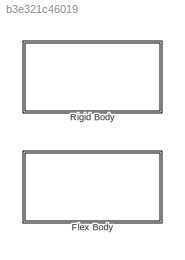
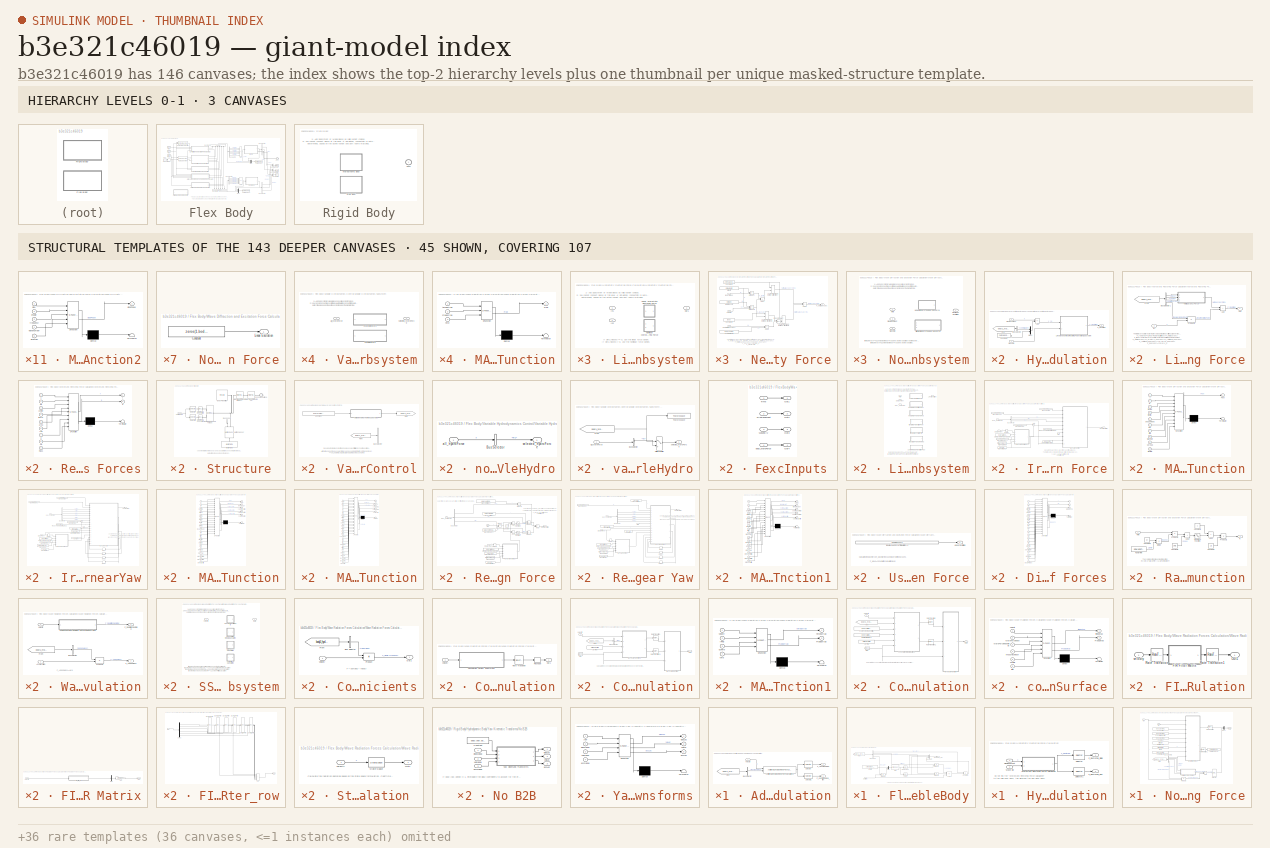
[diagram: thumbnail index - top-2 hierarchy levels (3 canvases) + 45 structural-template representatives of the remaining 143 canvases]
MODEL slx_b3e321c46019
KIND library
CONFIG AbsTol = auto
CONFIG EnableMultiTasking = off
CONFIG FixedStep = auto
CONFIG MaxStep = auto
CONFIG MinStep = auto
CONFIG RelTol = 1e-3
CONFIG SampleTimeConstraint = Unconstrained
CONFIG SolverName = VariableStepAuto
CONFIG StartTime = 0.0
CONFIG StopTime = 10.0
BLOCK [SubSystem] Flex Body
  Ports = [0, 0, 0, 0, 0, 0, 1]
  VariantControl = (default)
BLOCK [Sum] Flex Body/Add
  IconShape = rectangular
  Inputs = +-----
  Ports = [6, 1]
BLOCK [SubSystem] Flex Body/Additional Linear Damping Force Calculation
  Ports = [1, 2]
BLOCK [Reference] Flex Body/Additional Linear Damping Force Calculation/Additional Linear Damping Force Calculation1  REF=$bdroot/Rigid Body/Hydrodynamic Body/Additional Linear Damping Force Calculation
  Ports = [2, 1]
  SourceBlock = $bdroot/Rigid Body/Hydrodynamic Body/Additional Linear Damping Force Calculation
  SourceType = SubSystem
BLOCK [BusSelector] Flex Body/Additional Linear Damping Force Calculation/Bus Selector
  OutputSignals = linearDamping
  Ports = [1, 1]
BLOCK [Outport] Flex Body/Additional Linear Damping Force Calculation/F_LinearDamping
  PortDimensions = 6
BLOCK [Outport] Flex Body/Additional Linear Damping Force Calculation/F_LinearDamping_flex
  Port = 2
  PortDimensions = body.gbmDOF
BLOCK [From] Flex Body/Additional Linear Damping Force Calculation/From
  GotoTag = body1_hydroForce
  TagVisibility = global
BLOCK [Selector] Flex Body/Additional Linear Damping Force Calculation/Selector
  IndexOptions = Index vector (dialog)
  Indices = [1:6]
  InputPortWidth = body.dof
  OutputSizes = 1
  Ports = [1, 1]
BLOCK [Selector] Flex Body/Additional Linear Damping Force Calculation/Selector1
  IndexOptions = Index vector (dialog)
  Indices = [7:body.dofEnd]
  InputPortWidth = body.dof
  OutputSizes = 1
  Ports = [1, 1]
BLOCK [Inport] Flex Body/Additional Linear Damping Force Calculation/Velocity
BLOCK [Reference] Flex Body/B2B Subsystem  REF=$bdroot/Rigid Body/Hydrodynamic Body/B2B Subsystem
  Ports = [2, 2]
  SourceBlock = $bdroot/Rigid Body/Hydrodynamic Body/B2B Subsystem
  SourceType = SubSystem
BLOCK [BusCreator] Flex Body/Bus Creator
  DisplayOption = bar
  InheritFromInputs = on
  Inputs = 6
  NameLocation = right
  Ports = [6, 1]
BLOCK [BusCreator] Flex Body/Bus Creator3
  DisplayOption = bar
  InheritFromInputs = on
  Inputs = 6
  NameLocation = left
  Ports = [6, 1]
BLOCK [BusCreator] Flex Body/Bus Creator4
  DisplayOption = bar
  InheritFromInputs = on
  Inputs = 2
  Ports = [2, 1]
BLOCK [BusCreator] Flex Body/Bus Creator5
  DisplayOption = bar
  InheritFromInputs = on
  Inputs = 2
  Ports = [2, 1]
BLOCK [BusCreator] Flex Body/Bus Creator6
  DisplayOption = bar
  InheritFromInputs = on
  Inputs = 2
  Ports = [2, 1]
BLOCK [BusSelector] Flex Body/Bus Selector1
  OutputSignals = signal1,signal2,signal3,signal4,signal5,signal6
  Ports = [1, 6]
BLOCK [BusSelector] Flex Body/Bus Selector2
  OutputSignals = disp,vel,acc
  Ports = [1, 3]
BLOCK [BusSelector] Flex Body/Bus Selector3
  OutputSignals = signal1,signal2,signal3,signal4,signal5,signal6
  Ports = [1, 6]
BLOCK [BusSelector] Flex Body/Bus Selector4
  OutputSignals = signal1,signal2,signal3
  Ports = [1, 3]
BLOCK [PMIOPort] Flex Body/Conn
  Side = Right
BLOCK [SubSystem] Flex Body/FlexibleBody
  Ports = [1, 1]
BLOCK [Sum] Flex Body/FlexibleBody/Add
  IconShape = rectangular
  Inputs = --+
  Ports = [3, 1]
BLOCK [BusCreator] Flex Body/FlexibleBody/Bus Creator
  DisplayOption = bar
  InheritFromInputs = on
  Inputs = 3
  Ports = [3, 1]
BLOCK [BusSelector] Flex Body/FlexibleBody/Bus Selector
  OutputSignals = gbm.mass_ff_inv,gbm.stiffness,gbm.damping,gbm.mass_ff_inv
  Ports = [1, 4]
BLOCK [Inport] Flex Body/FlexibleBody/Excitation
BLOCK [From] Flex Body/FlexibleBody/From
  GotoTag = body1_hydroForce
  TagVisibility = global
BLOCK [StateSpace] Flex Body/FlexibleBody/GBM
  A = body.hydroForce.hf1.gbm.state_space.A
  B = body.hydroForce.hf1.gbm.state_space.B
  C = body.hydroForce.hf1.gbm.state_space.C
  D = body.hydroForce.hf1.gbm.state_space.D
  InitialCondition = 0
  Ports = [1, 1]
BLOCK [Mux] Flex Body/FlexibleBody/Mux
  DisplayOption = bar
  Inputs = 2
  Ports = [2, 1]
BLOCK [Product] Flex Body/FlexibleBody/Product1
  Multiplication = Matrix(*)
  Ports = [2, 1]
BLOCK [Product] Flex Body/FlexibleBody/Product2
  Multiplication = Matrix(*)
  Ports = [2, 1]
BLOCK [Product] Flex Body/FlexibleBody/Product4
  Multiplication = Matrix(*)
  Ports = [2, 1]
BLOCK [Outport] Flex Body/FlexibleBody/Response_Flex
BLOCK [Product] Flex Body/FlexibleBody/acceleration
  Multiplication = Matrix(*)
  Ports = [2, 1]
BLOCK [Selector] Flex Body/FlexibleBody/displacement
  IndexOptions = Index vector (dialog)
  Indices = [1:body.gbmDOF]
  InputPortWidth = body.gbmDOF*2
  OutputSizes = 1
  Ports = [1, 1]
BLOCK [Constant] Flex Body/FlexibleBody/unit matrix
  Value = zeros(body.gbmDOF,1)
BLOCK [Selector] Flex Body/FlexibleBody/velocity
  IndexOptions = Index vector (dialog)
  Indices = [body.gbmDOF+1:2*body.gbmDOF]
  InputPortWidth = 2*body.gbmDOF
  OutputSizes = 1
  Ports = [1, 1]
BLOCK [From] Flex Body/From
  GotoTag = disp1
  TagVisibility = global
BLOCK [From] Flex Body/From1
  GotoTag = vel1
  TagVisibility = global
BLOCK [From] Flex Body/From2
  GotoTag = acc1
  TagVisibility = global
BLOCK [Goto] Flex Body/Goto
  GotoTag = disp1
  TagVisibility = global
BLOCK [Goto] Flex Body/Goto1
  GotoTag = vel1
  TagVisibility = global
BLOCK [Goto] Flex Body/Goto2
  GotoTag = acc1
  TagVisibility = global
BLOCK [SubSystem] Flex Body/Hydrostatic Restoring Force Calculation
  Ports = [2, 2]
BLOCK [Inport] Flex Body/Hydrostatic Restoring Force Calculation/Displacement
  NameLocation = top
BLOCK [Outport] Flex Body/Hydrostatic Restoring Force Calculation/F_Restoring_Flex
  Port = 2
  PortDimensions = body.gbmDOF
BLOCK [Outport] Flex Body/Hydrostatic Restoring Force Calculation/F_Restoring_Rigid
  NameLocation = top
  PortDimensions = 6
BLOCK [SubSystem] Flex Body/Hydrostatic Restoring Force Calculation/Hydrostatic Restoring Force Calculation
  Ports = [2, 1]
BLOCK [Sum] Flex Body/Hydrostatic Restoring Force Calculation/Hydrostatic Restoring Force Calculation/Add
  IconShape = rectangular
  Inputs = +-
  Ports = [2, 1]
BLOCK [BusSelector] Flex Body/Hydrostatic Restoring Force Calculation/Hydrostatic Restoring Force Calculation/Bus Selector
  OutputSignals = centerGravity
  Ports = [1, 1]
BLOCK [Constant] Flex Body/Hydrostatic Restoring Force Calculation/Hydrostatic Restoring Force Calculation/Constant1
  Value = zeros(1,body.dof-3)
BLOCK [Inport] Flex Body/Hydrostatic Restoring Force Calculation/Hydrostatic Restoring Force Calculation/Displacement
BLOCK [Outport] Flex Body/Hydrostatic Restoring Force Calculation/Hydrostatic Restoring Force Calculation/F_Restoring
BLOCK [From] Flex Body/Hydrostatic Restoring Force Calculation/Hydrostatic Restoring Force Calculation/From
  GotoTag = body1_hydroForce
  TagVisibility = global
BLOCK [SubSystem] Flex Body/Hydrostatic Restoring Force Calculation/Hydrostatic Restoring Force Calculation/Linear and Nonlinear Restoring Force Variant Subsystem
  Ports = [2, 1]
  Variant = on
BLOCK [Inport] Flex Body/Hydrostatic Restoring Force Calculation/Hydrostatic Restoring Force Calculation/Linear and Nonlinear Restoring Force Variant Subsystem/In1
BLOCK [Inport] Flex Body/Hydrostatic Restoring Force Calculation/Hydrostatic Restoring Force Calculation/Linear and Nonlinear Restoring Force Variant Subsystem/In2
  Port = 2
BLOCK [SubSystem] Flex Body/Hydrostatic Restoring Force Calculation/Hydrostatic Restoring Force Calculation/Linear and Nonlinear Restoring Force Variant Subsystem/Linear Hydrostatic Restoring Force
  Ports = [1, 1]
  VariantControl = sv_b1_linearHydro
BLOCK [Sum] Flex Body/Hydrostatic Restoring Force Calculation/Hydrostatic Restoring Force Calculation/Linear and Nonlinear Restoring Force Variant Subsystem/Linear Hydrostatic Restoring Force/Add
  IconShape = rectangular
  Ports = [2, 1]
BLOCK [BusSelector] Flex Body/Hydrostatic Restoring Force Calculation/Hydrostatic Restoring Force Calculation/Linear and Nonlinear Restoring Force Variant Subsystem/Linear Hydrostatic Restoring Force/Bus Selector1
  OutputSignals = mass,volume,centerBuoyancy,linearHydroRestCoef
  Ports = [1, 4]
BLOCK [From] Flex Body/Hydrostatic Restoring Force Calculation/Hydrostatic Restoring Force Calculation/Linear and Nonlinear Restoring Force Variant Subsystem/Linear Hydrostatic Restoring Force/From
  GotoTag = body1_hydroForce
  TagVisibility = global
BLOCK [Inport] Flex Body/Hydrostatic Restoring Force Calculation/Hydrostatic Restoring Force Calculation/Linear and Nonlinear Restoring Force Variant Subsystem/Linear Hydrostatic Restoring Force/In1
BLOCK [SubSystem] Flex Body/Hydrostatic Restoring Force Calculation/Hydrostatic Restoring Force Calculation/Linear and Nonlinear Restoring Force Variant Subsystem/Linear Hydrostatic Restoring Force/Net Buoyancy Force
  Ports = [3, 1]
BLOCK [Sum] Flex Body/Hydrostatic Restoring Force Calculation/Hydrostatic Restoring Force Calculation/Linear and Nonlinear Restoring Force Variant Subsystem/Linear Hydrostatic Restoring Force/Net Buoyancy Force/Add1
  IconShape = rectangular
  Inputs = +-
  Ports = [2, 1]
BLOCK [Sum] Flex Body/Hydrostatic Restoring Force Calculation/Hydrostatic Restoring Force Calculation/Linear and Nonlinear Restoring Force Variant Subsystem/Linear Hydrostatic Restoring Force/Net Buoyancy Force/Add2
  IconShape = rectangular
  Ports = [2, 1]
BLOCK [Sum] Flex Body/Hydrostatic Restoring Force Calculation/Hydrostatic Restoring Force Calculation/Linear and Nonlinear Restoring Force Variant Subsystem/Linear Hydrostatic Restoring Force/Net Buoyancy Force/Add3
  IconShape = rectangular
  Inputs = +-
  Ports = [2, 1]
BLOCK [Assignment] Flex Body/Hydrostatic Restoring Force Calculation/Hydrostatic Restoring Force Calculation/Linear and Nonlinear Restoring Force Variant Subsystem/Linear Hydrostatic Restoring Force/Net Buoyancy Force/Assignment (Add Net Bouyancy Force to Z-Direction)
  IndexOptions = Index vector (dialog)
  Indices = 3
  OutputSizes = 1
  Ports = [2, 1]
BLOCK [Assignment] Flex Body/Hydrostatic Restoring Force Calculation/Hydrostatic Restoring Force Calculation/Linear and Nonlinear Restoring Force Variant Subsystem/Linear Hydrostatic Restoring Force/Net Buoyancy Force/Assignment (Add Net Bouyancy Force to Z-Direction)1
  IndexOptions = Index vector (dialog)
  Indices = 3
  OutputSizes = 1
  Ports = [2, 1]
BLOCK [Assignment] Flex Body/Hydrostatic Restoring Force Calculation/Hydrostatic Restoring Force Calculation/Linear and Nonlinear Restoring Force Variant Subsystem/Linear Hydrostatic Restoring Force/Net Buoyancy Force/Assignment (Add Net Bouyancy Force to Z-Direction)2
  IndexOptions = Index vector (dialog)
  Indices = 4:6
  OutputSizes = 1
  Ports = [2, 1]
BLOCK [Inport] Flex Body/Hydrostatic Restoring Force Calculation/Hydrostatic Restoring Force Calculation/Linear and Nonlinear Restoring Force Variant Subsystem/Linear Hydrostatic Restoring Force/Net Buoyancy Force/Body Mass
BLOCK [Inport] Flex Body/Hydrostatic Restoring Force Calculation/Hydrostatic Restoring Force Calculation/Linear and Nonlinear Restoring Force Variant Subsystem/Linear Hydrostatic Restoring Force/Net Buoyancy Force/Center of Buoyancy
  Port = 3
BLOCK [Constant] Flex Body/Hydrostatic Restoring Force Calculation/Hydrostatic Restoring Force Calculation/Linear and Nonlinear Restoring Force Variant Subsystem/Linear Hydrostatic Restoring Force/Net Buoyancy Force/Center of Gravity
  Value = body.centerGravity
BLOCK [Constant] Flex Body/Hydrostatic Restoring Force Calculation/Hydrostatic Restoring Force Calculation/Linear and Nonlinear Restoring Force Variant Subsystem/Linear Hydrostatic Restoring Force/Net Buoyancy Force/Constant1
  Value = zeros(1,body.dof)
BLOCK [Constant] Flex Body/Hydrostatic Restoring Force Calculation/Hydrostatic Restoring Force Calculation/Linear and Nonlinear Restoring Force Variant Subsystem/Linear Hydrostatic Restoring Force/Net Buoyancy Force/Constant2
  Value = [0 0 0]
BLOCK [Reference] Flex Body/Hydrostatic Restoring Force Calculation/Hydrostatic Restoring Force Calculation/Linear and Nonlinear Restoring Force Variant Subsystem/Linear Hydrostatic Restoring Force/Net Buoyancy Force/Cross Product  REF=vrlib/Utilities/Cross Product
  Ports = [2, 1]
  SourceBlock = vrlib/Utilities/Cross Product
  SourceType = Cross Product
BLOCK [Outport] Flex Body/Hydrostatic Restoring Force Calculation/Hydrostatic Restoring Force Calculation/Linear and Nonlinear Restoring Force Variant Subsystem/Linear Hydrostatic Restoring Force/Net Buoyancy Force/F_NetBuoyancy
BLOCK [Constant] Flex Body/Hydrostatic Restoring Force Calculation/Hydrostatic Restoring Force Calculation/Linear and Nonlinear Restoring Force Variant Subsystem/Linear Hydrostatic Restoring Force/Net Buoyancy Force/Gravity
  Value = simu.gravity
BLOCK [Product] Flex Body/Hydrostatic Restoring Force Calculation/Hydrostatic Restoring Force Calculation/Linear and Nonlinear Restoring Force Variant Subsystem/Linear Hydrostatic Restoring Force/Net Buoyancy Force/Product
  Ports = [2, 1]
BLOCK [Product] Flex Body/Hydrostatic Restoring Force Calculation/Hydrostatic Restoring Force Calculation/Linear and Nonlinear Restoring Force Variant Subsystem/Linear Hydrostatic Restoring Force/Net Buoyancy Force/Product1
  Inputs = 3
  Ports = [3, 1]
BLOCK [Inport] Flex Body/Hydrostatic Restoring Force Calculation/Hydrostatic Restoring Force Calculation/Linear and Nonlinear Restoring Force Variant Subsystem/Linear Hydrostatic Restoring Force/Net Buoyancy Force/Volume
  Port = 2
BLOCK [Constant] Flex Body/Hydrostatic Restoring Force Calculation/Hydrostatic Restoring Force Calculation/Linear and Nonlinear Restoring Force Variant Subsystem/Linear Hydrostatic Restoring Force/Net Buoyancy Force/Water Density
  Value = simu.rho
BLOCK [Outport] Flex Body/Hydrostatic Restoring Force Calculation/Hydrostatic Restoring Force Calculation/Linear and Nonlinear Restoring Force Variant Subsystem/Linear Hydrostatic Restoring Force/Out1
BLOCK [Product] Flex Body/Hydrostatic Restoring Force Calculation/Hydrostatic Restoring Force Calculation/Linear and Nonlinear Restoring Force Variant Subsystem/Linear Hydrostatic Restoring Force/Product2
  Multiplication = Matrix(*)
  Ports = [2, 1]
BLOCK [SubSystem] Flex Body/Hydrostatic Restoring Force Calculation/Hydrostatic Restoring Force Calculation/Linear and Nonlinear Restoring Force Variant Subsystem/Nonlinear Hydrostatic Restoring Force
  Ports = [2, 1]
  VariantControl = sv_b1_nonlinearHydro
BLOCK [Sum] Flex Body/Hydrostatic Restoring Force Calculation/Hydrostatic Restoring Force Calculation/Linear and Nonlinear Restoring Force Variant Subsystem/Nonlinear Hydrostatic Restoring Force/Add
  IconShape = rectangular
  Ports = [2, 1]
BLOCK [BusSelector] Flex Body/Hydrostatic Restoring Force Calculation/Hydrostatic Restoring Force Calculation/Linear and Nonlinear Restoring Force Variant Subsystem/Nonlinear Hydrostatic Restoring Force/Bus Selector1
  OutputSignals = storage.mass,volume,centerBuoyancy,linearHydroRestCoef
  Ports = [1, 4]
BLOCK [Constant] Flex Body/Hydrostatic Restoring Force Calculation/Hydrostatic Restoring Force Calculation/Linear and Nonlinear Restoring Force Variant Subsystem/Nonlinear Hydrostatic Restoring Force/Center of Gravity
  Value = body.centerGravity
BLOCK [From] Flex Body/Hydrostatic Restoring Force Calculation/Hydrostatic Restoring Force Calculation/Linear and Nonlinear Restoring Force Variant Subsystem/Nonlinear Hydrostatic Restoring Force/From
  GotoTag = body1_hydroForce
  TagVisibility = global
BLOCK [Constant] Flex Body/Hydrostatic Restoring Force Calculation/Hydrostatic Restoring Force Calculation/Linear and Nonlinear Restoring Force Variant Subsystem/Nonlinear Hydrostatic Restoring Force/Gravity
  Value = simu.gravity
BLOCK [Inport] Flex Body/Hydrostatic Restoring Force Calculation/Hydrostatic Restoring Force Calculation/Linear and Nonlinear Restoring Force Variant Subsystem/Nonlinear Hydrostatic Restoring Force/In1
BLOCK [Inport] Flex Body/Hydrostatic Restoring Force Calculation/Hydrostatic Restoring Force Calculation/Linear and Nonlinear Restoring Force Variant Subsystem/Nonlinear Hydrostatic Restoring Force/In2
  Port = 2
BLOCK [Mux] Flex Body/Hydrostatic Restoring Force Calculation/Hydrostatic Restoring Force Calculation/Linear and Nonlinear Restoring Force Variant Subsystem/Nonlinear Hydrostatic Restoring Force/Mux1
  DisplayOption = bar
  Inputs = 2
  Ports = [2, 1]
BLOCK [SubSystem] Flex Body/Hydrostatic Restoring Force Calculation/Hydrostatic Restoring Force Calculation/Linear and Nonlinear Restoring Force Variant Subsystem/Nonlinear Hydrostatic Restoring Force/Net Buoyancy Force
  Ports = [3, 1]
BLOCK [Sum] Flex Body/Hydrostatic Restoring Force Calculation/Hydrostatic Restoring Force Calculation/Linear and Nonlinear Restoring Force Variant Subsystem/Nonlinear Hydrostatic Restoring Force/Net Buoyancy Force/Add1
  IconShape = rectangular
  Inputs = +-
  Ports = [2, 1]
BLOCK [Sum] Flex Body/Hydrostatic Restoring Force Calculation/Hydrostatic Restoring Force Calculation/Linear and Nonlinear Restoring Force Variant Subsystem/Nonlinear Hydrostatic Restoring Force/Net Buoyancy Force/Add2
  IconShape = rectangular
  Ports = [2, 1]
BLOCK [Sum] Flex Body/Hydrostatic Restoring Force Calculation/Hydrostatic Restoring Force Calculation/Linear and Nonlinear Restoring Force Variant Subsystem/Nonlinear Hydrostatic Restoring Force/Net Buoyancy Force/Add3
  IconShape = rectangular
  Inputs = +-
  Ports = [2, 1]
BLOCK [Assignment] Flex Body/Hydrostatic Restoring Force Calculation/Hydrostatic Restoring Force Calculation/Linear and Nonlinear Restoring Force Variant Subsystem/Nonlinear Hydrostatic Restoring Force/Net Buoyancy Force/Assignment (Add Net Bouyancy Force to Z-Direction)
  IndexOptions = Index vector (dialog)
  Indices = 3
  OutputSizes = 1
  Ports = [2, 1]
BLOCK [Assignment] Flex Body/Hydrostatic Restoring Force Calculation/Hydrostatic Restoring Force Calculation/Linear and Nonlinear Restoring Force Variant Subsystem/Nonlinear Hydrostatic Restoring Force/Net Buoyancy Force/Assignment (Add Net Bouyancy Force to Z-Direction)1
  IndexOptions = Index vector (dialog)
  Indices = 3
  OutputSizes = 1
  Ports = [2, 1]
BLOCK [Assignment] Flex Body/Hydrostatic Restoring Force Calculation/Hydrostatic Restoring Force Calculation/Linear and Nonlinear Restoring Force Variant Subsystem/Nonlinear Hydrostatic Restoring Force/Net Buoyancy Force/Assignment (Add Net Bouyancy Force to Z-Direction)2
  IndexOptions = Index vector (dialog)
  Indices = 4:6
  OutputSizes = 1
  Ports = [2, 1]
BLOCK [Inport] Flex Body/Hydrostatic Restoring Force Calculation/Hydrostatic Restoring Force Calculation/Linear and Nonlinear Restoring Force Variant Subsystem/Nonlinear Hydrostatic Restoring Force/Net Buoyancy Force/Body Mass
BLOCK [Inport] Flex Body/Hydrostatic Restoring Force Calculation/Hydrostatic Restoring Force Calculation/Linear and Nonlinear Restoring Force Variant Subsystem/Nonlinear Hydrostatic Restoring Force/Net Buoyancy Force/Center of Buoyancy
  Port = 3
BLOCK [Constant] Flex Body/Hydrostatic Restoring Force Calculation/Hydrostatic Restoring Force Calculation/Linear and Nonlinear Restoring Force Variant Subsystem/Nonlinear Hydrostatic Restoring Force/Net Buoyancy Force/Center of Gravity
  Value = body.centerGravity
BLOCK [Constant] Flex Body/Hydrostatic Restoring Force Calculation/Hydrostatic Restoring Force Calculation/Linear and Nonlinear Restoring Force Variant Subsystem/Nonlinear Hydrostatic Restoring Force/Net Buoyancy Force/Constant1
  Value = zeros(1,body.dof)
BLOCK [Constant] Flex Body/Hydrostatic Restoring Force Calculation/Hydrostatic Restoring Force Calculation/Linear and Nonlinear Restoring Force Variant Subsystem/Nonlinear Hydrostatic Restoring Force/Net Buoyancy Force/Constant2
  Value = [0 0 0]
BLOCK [Reference] Flex Body/Hydrostatic Restoring Force Calculation/Hydrostatic Restoring Force Calculation/Linear and Nonlinear Restoring Force Variant Subsystem/Nonlinear Hydrostatic Restoring Force/Net Buoyancy Force/Cross Product  REF=vrlib/Utilities/Cross Product
  Ports = [2, 1]
  SourceBlock = vrlib/Utilities/Cross Product
  SourceType = Cross Product
BLOCK [Outport] Flex Body/Hydrostatic Restoring Force Calculation/Hydrostatic Restoring Force Calculation/Linear and Nonlinear Restoring Force Variant Subsystem/Nonlinear Hydrostatic Restoring Force/Net Buoyancy Force/F_NetBuoyancy
BLOCK [Constant] Flex Body/Hydrostatic Restoring Force Calculation/Hydrostatic Restoring Force Calculation/Linear and Nonlinear Restoring Force Variant Subsystem/Nonlinear Hydrostatic Restoring Force/Net Buoyancy Force/Gravity
  Value = simu.gravity
BLOCK [Product] Flex Body/Hydrostatic Restoring Force Calculation/Hydrostatic Restoring Force Calculation/Linear and Nonlinear Restoring Force Variant Subsystem/Nonlinear Hydrostatic Restoring Force/Net Buoyancy Force/Product
  Ports = [2, 1]
BLOCK [Product] Flex Body/Hydrostatic Restoring Force Calculation/Hydrostatic Restoring Force Calculation/Linear and Nonlinear Restoring Force Variant Subsystem/Nonlinear Hydrostatic Restoring Force/Net Buoyancy Force/Product1
  Inputs = 3
  Ports = [3, 1]
BLOCK [Inport] Flex Body/Hydrostatic Restoring Force Calculation/Hydrostatic Restoring Force Calculation/Linear and Nonlinear Restoring Force Variant Subsystem/Nonlinear Hydrostatic Restoring Force/Net Buoyancy Force/Volume
  Port = 2
BLOCK [Constant] Flex Body/Hydrostatic Restoring Force Calculation/Hydrostatic Restoring Force Calculation/Linear and Nonlinear Restoring Force Variant Subsystem/Nonlinear Hydrostatic Restoring Force/Net Buoyancy Force/Water Density
  Value = simu.rho
BLOCK [Outport] Flex Body/Hydrostatic Restoring Force Calculation/Hydrostatic Restoring Force Calculation/Linear and Nonlinear Restoring Force Variant Subsystem/Nonlinear Hydrostatic Restoring Force/Out1
BLOCK [Product] Flex Body/Hydrostatic Restoring Force Calculation/Hydrostatic Restoring Force Calculation/Linear and Nonlinear Restoring Force Variant Subsystem/Nonlinear Hydrostatic Restoring Force/Product2
  Multiplication = Matrix(*)
  Ports = [2, 1]
BLOCK [RateTransition] Flex Body/Hydrostatic Restoring Force Calculation/Hydrostatic Restoring Force Calculation/Linear and Nonlinear Restoring Force Variant Subsystem/Nonlinear Hydrostatic Restoring Force/Rate Transition
BLOCK [RateTransition] Flex Body/Hydrostatic Restoring Force Calculation/Hydrostatic Restoring Force Calculation/Linear and Nonlinear Restoring Force Variant Subsystem/Nonlinear Hydrostatic Restoring Force/Rate Transition1
BLOCK [SubSystem] Flex Body/Hydrostatic Restoring Force Calculation/Hydrostatic Restoring Force Calculation/Linear and Nonlinear Restoring Force Variant Subsystem/Nonlinear Hydrostatic Restoring Force/Restoring Forces
  ErrorFcn = Stateflow.Translate.translate
  PermitHierarchicalResolution = ExplicitOnly
  Ports = [9, 2]
  SFBlockType = MATLAB Function
  SystemSampleTime = simu.nonlinearDt
  TreatAsAtomicUnit = on
BLOCK [Demux] Flex Body/Hydrostatic Restoring Force Calculation/Hydrostatic Restoring Force Calculation/Linear and Nonlinear Restoring Force Variant Subsystem/Nonlinear Hydrostatic Restoring Force/Restoring Forces/ Demux 
  Outputs = 1
  Ports = [1, 1]
BLOCK [S-Function] Flex Body/Hydrostatic Restoring Force Calculation/Hydrostatic Restoring Force Calculation/Linear and Nonlinear Restoring Force Variant Subsystem/Nonlinear Hydrostatic Restoring Force/Restoring Forces/ SFunction 
  EnableBusSupport = off
  FunctionName = sf_sfun
  PortCounts = [9 3]
  Ports = [9, 3]
  SFcnIsStateOwnerBlock = off
  SFunctionDeploymentMode = off
  Tag = Stateflow S-Function 2
BLOCK [Terminator] Flex Body/Hydrostatic Restoring Force Calculation/Hydrostatic Restoring Force Calculation/Linear and Nonlinear Restoring Force Variant Subsystem/Nonlinear Hydrostatic Restoring Force/Restoring Forces/ Terminator 
BLOCK [Inport] Flex Body/Hydrostatic Restoring Force Calculation/Hydrostatic Restoring Force Calculation/Linear and Nonlinear Restoring Force Variant Subsystem/Nonlinear Hydrostatic Restoring Force/Restoring Forces/area
  Port = 5
BLOCK [Inport] Flex Body/Hydrostatic Restoring Force Calculation/Hydrostatic Restoring Force Calculation/Linear and Nonlinear Restoring Force Variant Subsystem/Nonlinear Hydrostatic Restoring Force/Restoring Forces/center
  Port = 3
BLOCK [Inport] Flex Body/Hydrostatic Restoring Force Calculation/Hydrostatic Restoring Force Calculation/Linear and Nonlinear Restoring Force Variant Subsystem/Nonlinear Hydrostatic Restoring Force/Restoring Forces/cg
  Port = 8
BLOCK [Inport] Flex Body/Hydrostatic Restoring Force Calculation/Hydrostatic Restoring Force Calculation/Linear and Nonlinear Restoring Force Variant Subsystem/Nonlinear Hydrostatic Restoring Force/Restoring Forces/elv
  Port = 2
BLOCK [Outport] Flex Body/Hydrostatic Restoring Force Calculation/Hydrostatic Restoring Force Calculation/Linear and Nonlinear Restoring Force Variant Subsystem/Nonlinear Hydrostatic Restoring Force/Restoring Forces/f
BLOCK [Inport] Flex Body/Hydrostatic Restoring Force Calculation/Hydrostatic Restoring Force Calculation/Linear and Nonlinear Restoring Force Variant Subsystem/Nonlinear Hydrostatic Restoring Force/Restoring Forces/g
  Port = 7
BLOCK [Inport] Flex Body/Hydrostatic Restoring Force Calculation/Hydrostatic Restoring Force Calculation/Linear and Nonlinear Restoring Force Variant Subsystem/Nonlinear Hydrostatic Restoring Force/Restoring Forces/mass
  Port = 9
BLOCK [Outport] Flex Body/Hydrostatic Restoring Force Calculation/Hydrostatic Restoring Force Calculation/Linear and Nonlinear Restoring Force Variant Subsystem/Nonlinear Hydrostatic Restoring Force/Restoring Forces/p
  Port = 2
BLOCK [Inport] Flex Body/Hydrostatic Restoring Force Calculation/Hydrostatic Restoring Force Calculation/Linear and Nonlinear Restoring Force Variant Subsystem/Nonlinear Hydrostatic Restoring Force/Restoring Forces/rho
  Port = 6
BLOCK [Inport] Flex Body/Hydrostatic Restoring Force Calculation/Hydrostatic Restoring Force Calculation/Linear and Nonlinear Restoring Force Variant Subsystem/Nonlinear Hydrostatic Restoring Force/Restoring Forces/tnorm
  Port = 4
BLOCK [Inport] Flex Body/Hydrostatic Restoring Force Calculation/Hydrostatic Restoring Force Calculation/Linear and Nonlinear Restoring Force Variant Subsystem/Nonlinear Hydrostatic Restoring Force/Restoring Forces/x
BLOCK [Constant] Flex Body/Hydrostatic Restoring Force Calculation/Hydrostatic Restoring Force Calculation/Linear and Nonlinear Restoring Force Variant Subsystem/Nonlinear Hydrostatic Restoring Force/STL areas
  Value = body.geometry.area
BLOCK [Constant] Flex Body/Hydrostatic Restoring Force Calculation/Hydrostatic Restoring Force Calculation/Linear and Nonlinear Restoring Force Variant Subsystem/Nonlinear Hydrostatic Restoring Force/STL centers
  Value = body.geometry.center
BLOCK [Constant] Flex Body/Hydrostatic Restoring Force Calculation/Hydrostatic Restoring Force Calculation/Linear and Nonlinear Restoring Force Variant Subsystem/Nonlinear Hydrostatic Restoring Force/STL normal vectors
  Value = body.geometry.norm
BLOCK [Selector] Flex Body/Hydrostatic Restoring Force Calculation/Hydrostatic Restoring Force Calculation/Linear and Nonlinear Restoring Force Variant Subsystem/Nonlinear Hydrostatic Restoring Force/Selector
  IndexOptions = Index vector (dialog)
  Indices = [7:body.dofEnd]
  InputPortWidth = body.dof
  OutputSizes = 1
  Ports = [1, 1]
BLOCK [ToWorkspace] Flex Body/Hydrostatic Restoring Force Calculation/Hydrostatic Restoring Force Calculation/Linear and Nonlinear Restoring Force Variant Subsystem/Nonlinear Hydrostatic Restoring Force/To Workspace1
  Decimation = round(simu.dtOut/simu.dt,0)
  MaxDataPoints = inf
  Ports = [1]
  SampleTime = -1
  SaveFormat = Structure With Time
  VariableName = body1_hspressure_out
BLOCK [Constant] Flex Body/Hydrostatic Restoring Force Calculation/Hydrostatic Restoring Force Calculation/Linear and Nonlinear Restoring Force Variant Subsystem/Nonlinear Hydrostatic Restoring Force/Water Density
  Value = simu.rho
BLOCK [Outport] Flex Body/Hydrostatic Restoring Force Calculation/Hydrostatic Restoring Force Calculation/Linear and Nonlinear Restoring Force Variant Subsystem/Out1
BLOCK [Mux] Flex Body/Hydrostatic Restoring Force Calculation/Hydrostatic Restoring Force Calculation/Mux1
  DisplayOption = bar
  Inputs = 2
  Ports = [2, 1]
BLOCK [Inport] Flex Body/Hydrostatic Restoring Force Calculation/Hydrostatic Restoring Force Calculation/Wave Elv
  Port = 2
BLOCK [Selector] Flex Body/Hydrostatic Restoring Force Calculation/Selector
  IndexOptions = Index vector (dialog)
  Indices = [1:6]
  InputPortWidth = body.dof
  OutputSizes = 1
  Ports = [1, 1]
BLOCK [Selector] Flex Body/Hydrostatic Restoring Force Calculation/Selector1
  IndexOptions = Index vector (dialog)
  Indices = [7:body.dofEnd]
  InputPortWidth = body.dof
  OutputSizes = 1
  Ports = [1, 1]
BLOCK [Inport] Flex Body/Hydrostatic Restoring Force Calculation/Wave Elv
  Port = 2
BLOCK [SubSystem] Flex Body/Morrison Element and Viscous Damping Force Calculation
  Ports = [4, 2]
BLOCK [Inport] Flex Body/Morrison Element and Viscous Damping Force Calculation/Acceleration
  Port = 2
BLOCK [BusSelector] Flex Body/Morrison Element and Viscous Damping Force Calculation/Bus Selector
  OutputSignals = quadDrag
  Ports = [1, 1]
BLOCK [Inport] Flex Body/Morrison Element and Viscous Damping Force Calculation/Displacement
  NameLocation = top
BLOCK [Outport] Flex Body/Morrison Element and Viscous Damping Force Calculation/F_FlexMorrisonAndViscous 
  Port = 2
  PortDimensions = body.gbmDOF
BLOCK [Outport] Flex Body/Morrison Element and Viscous Damping Force Calculation/F_MorrisonAndViscous
  PortDimensions = 6
BLOCK [From] Flex Body/Morrison Element and Viscous Damping Force Calculation/From
  GotoTag = body1_hydroForce
  TagVisibility = global
BLOCK [Reference] Flex Body/Morrison Element and Viscous Damping Force Calculation/Morison Element and Viscous Damping Force Calculation  REF=$bdroot/Rigid Body/Hydrodynamic Body/Morison Element and Viscous Damping Force Calculation
  Ports = [5, 1]
  SourceBlock = $bdroot/Rigid Body/Hydrodynamic Body/Morison Element and Viscous Damping Force Calculation
  SourceType = SubSystem
BLOCK [Selector] Flex Body/Morrison Element and Viscous Damping Force Calculation/Selector
  IndexOptions = Index vector (dialog)
  Indices = [1:6]
  InputPortWidth = body.dof
  OutputSizes = 1
  Ports = [1, 1]
BLOCK [Selector] Flex Body/Morrison Element and Viscous Damping Force Calculation/Selector1
  IndexOptions = Index vector (dialog)
  Indices = [7:body.dofEnd]
  InputPortWidth = body.dof
  OutputSizes = 1
  Ports = [1, 1]
BLOCK [Inport] Flex Body/Morrison Element and Viscous Damping Force Calculation/Time
  Port = 4
BLOCK [Inport] Flex Body/Morrison Element and Viscous Damping Force Calculation/Velocity
  Port = 3
BLOCK [Mux] Flex Body/Mux
  DisplayOption = bar
  Inputs = 3
  Ports = [3, 1]
BLOCK [Mux] Flex Body/Mux1
  DisplayOption = bar
  Inputs = 3
  Ports = [3, 1]
BLOCK [Reference] Flex Body/Nonlinear Wave Elevation  REF=$bdroot/Rigid Body/Hydrodynamic Body/Nonlinear Wave Elevation
  Ports = [2, 1]
  SourceBlock = $bdroot/Rigid Body/Hydrodynamic Body/Nonlinear Wave Elevation
  SourceType = SubSystem
BLOCK [SubSystem] Flex Body/Structure
  Ports = [1, 1, 0, 0, 0, 0, 1]
BLOCK [Reference] Flex Body/Structure/Body Properties  REF=sm_lib/Body Elements/File Solid
  Ports = [0, 0, 0, 0, 0, 0, 1]
  SourceBlock = sm_lib/Body Elements/File Solid
  SourceType = File Solid
BLOCK [PMIOPort] Flex Body/Structure/Conn Free Surface
  Side = Right
BLOCK [Reference] Flex Body/Structure/External Force and Torque  REF=sm_lib/Forces and
Torques/External Force
and Torque
  Ports = [0, 0, 0, 0, 0, 2, 1]
  SourceBlock = sm_lib/Forces and\nTorques/External Force\nand Torque
  SourceType = External Force\nand Torque
BLOCK [Reference] Flex Body/Structure/Motion Sensor  REF=$bdroot/Rigid Body/Hydrodynamic Body/Structure/Motion Sensor
  NameLocation = left
  Ports = [0, 1, 0, 0, 0, 1, 1]
  SourceBlock = $bdroot/Rigid Body/Hydrodynamic Body/Structure/Motion Sensor
  SourceType = SubSystem
BLOCK [Outport] Flex Body/Structure/Response
  NameLocation = left
BLOCK [Reference] Flex Body/Structure/Rigid Transform (Setup CG)  REF=sm_lib/Frames and
Transforms/Rigid
Transform
  Ports = [0, 0, 0, 0, 0, 1, 1]
  SourceBlock = sm_lib/Frames and\nTransforms/Rigid\nTransform
  SourceType = Rigid\nTransform
BLOCK [Reference] Flex Body/Structure/Rigid Transform (Setup Initial Disp)  REF=sm_lib/Frames and
Transforms/Rigid
Transform
  Ports = [0, 0, 0, 0, 0, 1, 1]
  SourceBlock = sm_lib/Frames and\nTransforms/Rigid\nTransform
  SourceType = Rigid\nTransform
BLOCK [Selector] Flex Body/Structure/Selector
  IndexOptions = Index vector (dialog)
  Indices = [1:3]
  InputPortWidth = 6
  OutputSizes = 1
  Ports = [1, 1]
BLOCK [Selector] Flex Body/Structure/Selector1
  IndexOptions = Index vector (dialog)
  Indices = [4:6]
  InputPortWidth = 6
  OutputSizes = 1
  Ports = [1, 1]
BLOCK [Reference] Flex Body/Structure/Simulink-PS Converter1  REF=nesl_utility/Simulink-PS
Converter
  Ports = [1, 0, 0, 0, 0, 0, 1]
  SourceBlock = nesl_utility/Simulink-PS\nConverter
  SourceType = Simulink-PS\nConverter
BLOCK [Reference] Flex Body/Structure/Simulink-PS Converter2  REF=nesl_utility/Simulink-PS
Converter
  Ports = [1, 0, 0, 0, 0, 0, 1]
  SourceBlock = nesl_utility/Simulink-PS\nConverter
  SourceType = Simulink-PS\nConverter
BLOCK [Inport] Flex Body/Structure/Total Force
BLOCK [Reference] Flex Body/Structure/World Frame  REF=sm_lib/Frames and
Transforms/World Frame
  NameLocation = right
  Ports = [0, 0, 0, 0, 0, 0, 1]
  SourceBlock = sm_lib/Frames and\nTransforms/World Frame
  SourceType = World Frame
BLOCK [Sum] Flex Body/Sum
  IconShape = rectangular
  Inputs = +-----
  Ports = [6, 1]
BLOCK [From] Flex Body/Time
  GotoTag = Clock
  TagVisibility = global
BLOCK [ToWorkspace] Flex Body/To Workspace
  MaxDataPoints = inf
  Ports = [1]
  SampleTime = simu.dtOut
  SaveFormat = Structure With Time
  VariableName = body1_out
BLOCK [ToWorkspace] Flex Body/To Workspace1
  MaxDataPoints = inf
  Ports = [1]
  SampleTime = simu.dtOut
  SaveFormat = Structure With Time
  VariableName = Flex_out
BLOCK [TransportDelay] Flex Body/Transport Delay
  DelayTime = 10e-8
  Ports = [1, 1]
BLOCK [SubSystem] Flex Body/Variable Hydrodynamics Control
  Ports = []
BLOCK [BusSelector] Flex Body/Variable Hydrodynamics Control/Bus Selector
  Commented = on
  OutputSignals = linearHydroRestCoef,storage,quadDrag,linearDamping,fExt,fExt.re,fExt.im,fExt.md,fAddedMass,fDamping,irkb,storage.mass,storage.inertia,storage.inertiaProducts,storage.fAddedMass,userDefinedFe,totDOF,fExt.dofGrd,fExt.dirGrd,fExt.wGrd,fExt.fEHRE,fExt.fEHIM,fExt.fEHMD
  Ports = [1, 23]
BLOCK [Constant] Flex Body/Variable Hydrodynamics Control/Constant
  OutDataTypeStr = Bus: bus_body1_hydroForce
  Value = body.hydroForce
  VectorParams1D = off
BLOCK [From] Flex Body/Variable Hydrodynamics Control/From
  Commented = on
  GotoTag = body1_hydroForce
BLOCK [Goto] Flex Body/Variable Hydrodynamics Control/Goto
  GotoTag = body1_hydroForce
  TagVisibility = global
BLOCK [SubSystem] Flex Body/Variable Hydrodynamics Control/Variable Hydrodynamics Subsystem
  Ports = [1, 1]
  Variant = on
  VariantControl = sv_b1_variableHydro
BLOCK [Inport] Flex Body/Variable Hydrodynamics Control/Variable Hydrodynamics Subsystem/all_hydroForce
BLOCK [SubSystem] Flex Body/Variable Hydrodynamics Control/Variable Hydrodynamics Subsystem/noVariableHydro
  Ports = [1, 1]
  VariantControl = sv_b1_noVariableHydro
BLOCK [BusSelector] Flex Body/Variable Hydrodynamics Control/Variable Hydrodynamics Subsystem/noVariableHydro/Bus Selector
  OutputSignals = hf1
  Ports = [1, 1]
BLOCK [Inport] Flex Body/Variable Hydrodynamics Control/Variable Hydrodynamics Subsystem/noVariableHydro/all_hydroForce
BLOCK [Outport] Flex Body/Variable Hydrodynamics Control/Variable Hydrodynamics Subsystem/noVariableHydro/selected_hydroForce
BLOCK [Outport] Flex Body/Variable Hydrodynamics Control/Variable Hydrodynamics Subsystem/selected_hydroForce
BLOCK [SubSystem] Flex Body/Variable Hydrodynamics Control/Variable Hydrodynamics Subsystem/variableHydro
  Ports = [1, 1]
  VariantControl = sv_b1_variableHydro
BLOCK [BusSelector] Flex Body/Variable Hydrodynamics Control/Variable Hydrodynamics Subsystem/variableHydro/Bus Selector
  OutputSignals = hf1
  Ports = [1, 1]
BLOCK [From] Flex Body/Variable Hydrodynamics Control/Variable Hydrodynamics Subsystem/variableHydro/From
  GotoTag = body1_hydroForceIndex
BLOCK [MultiPortSwitch] Flex Body/Variable Hydrodynamics Control/Variable Hydrodynamics Subsystem/variableHydro/Multiport Switch
  DataPortForDefault = Additional data port
  DiagnosticForDefault = Warning
  InputSameDT = off
  Inputs = 1
  LockScale = on
  OutDataTypeStr = Inherit: Same as first data input
  Ports = [2, 1]
  RndMeth = Round
  SaturateOnIntegerOverflow = off
BLOCK [ToWorkspace] Flex Body/Variable Hydrodynamics Control/Variable Hydrodynamics Subsystem/variableHydro/To Workspace
  MaxDataPoints = inf
  Ports = [1]
  SampleTime = simu.dtOut
  SaveFormat = Structure With Time
  VariableName = body1_hydroForceIndex
BLOCK [Inport] Flex Body/Variable Hydrodynamics Control/Variable Hydrodynamics Subsystem/variableHydro/all_hydroForce
BLOCK [Outport] Flex Body/Variable Hydrodynamics Control/Variable Hydrodynamics Subsystem/variableHydro/selected_hydroForce
BLOCK [SubSystem] Flex Body/Wave Diffraction and Excitation Force Calculation
  Ports = [3, 2]
BLOCK [Inport] Flex Body/Wave Diffraction and Excitation Force Calculation/Displacement
  Port = 2
BLOCK [Outport] Flex Body/Wave Diffraction and Excitation Force Calculation/F_Excitation_Flex
  Port = 2
  PortDimensions = body.gbmDOF
BLOCK [Outport] Flex Body/Wave Diffraction and Excitation Force Calculation/F_Excitation_Rigid
  NameLocation = top
  PortDimensions = 6
  VarSizeSig = No
BLOCK [Selector] Flex Body/Wave Diffraction and Excitation Force Calculation/Selector
  IndexOptions = Index vector (dialog)
  Indices = [1:6]
  InputPortWidth = body.dof
  OutputSizes = 1
  Ports = [1, 1]
BLOCK [Selector] Flex Body/Wave Diffraction and Excitation Force Calculation/Selector1
  IndexOptions = Index vector (dialog)
  Indices = [7:body.dofEnd]
  InputPortWidth = body.dof
  OutputSizes = 1
  Ports = [1, 1]
BLOCK [Inport] Flex Body/Wave Diffraction and Excitation Force Calculation/Time
BLOCK [SubSystem] Flex Body/Wave Diffraction and Excitation Force Calculation/Wave Diffraction and Excitation Force Calculation
  Ports = [3, 1]
BLOCK [Sum] Flex Body/Wave Diffraction and Excitation Force Calculation/Wave Diffraction and Excitation Force Calculation/Add
  IconShape = rectangular
  Ports = [2, 1]
BLOCK [Constant] Flex Body/Wave Diffraction and Excitation Force Calculation/Wave Diffraction and Excitation Force Calculation/Constant
BLOCK [Inport] Flex Body/Wave Diffraction and Excitation Force Calculation/Wave Diffraction and Excitation Force Calculation/Displacement
  Port = 2
BLOCK [Outport] Flex Body/Wave Diffraction and Excitation Force Calculation/Wave Diffraction and Excitation Force Calculation/F_Excitation
  PortDimensions = body.dof
  VarSizeSig = No
BLOCK [SubSystem] Flex Body/Wave Diffraction and Excitation Force Calculation/Wave Diffraction and Excitation Force Calculation/FexcInputs
  Ports = [4, 4]
BLOCK [Inport] Flex Body/Wave Diffraction and Excitation Force Calculation/Wave Diffraction and Excitation Force Calculation/FexcInputs/Displacement
  Port = 2
BLOCK [Outport] Flex Body/Wave Diffraction and Excitation Force Calculation/Wave Diffraction and Excitation Force Calculation/FexcInputs/Out1
BLOCK [Outport] Flex Body/Wave Diffraction and Excitation Force Calculation/Wave Diffraction and Excitation Force Calculation/FexcInputs/Out2
  Port = 2
BLOCK [Outport] Flex Body/Wave Diffraction and Excitation Force Calculation/Wave Diffraction and Excitation Force Calculation/FexcInputs/Out3
  Port = 3
BLOCK [Outport] Flex Body/Wave Diffraction and Excitation Force Calculation/Wave Diffraction and Excitation Force Calculation/FexcInputs/Out4
  Port = 4
BLOCK [Inport] Flex Body/Wave Diffraction and Excitation Force Calculation/Wave Diffraction and Excitation Force Calculation/FexcInputs/Time
BLOCK [Inport] Flex Body/Wave Diffraction and Excitation Force Calculation/Wave Diffraction and Excitation Force Calculation/FexcInputs/WaveElv
  Port = 3
BLOCK [Inport] Flex Body/Wave Diffraction and Excitation Force Calculation/Wave Diffraction and Excitation Force Calculation/FexcInputs/body_hydroForce
  Port = 4
BLOCK [From] Flex Body/Wave Diffraction and Excitation Force Calculation/Wave Diffraction and Excitation Force Calculation/From
  GotoTag = body1_hydroForce
  TagVisibility = global
BLOCK [RelationalOperator] Flex Body/Wave Diffraction and Excitation Force Calculation/Wave Diffraction and Excitation Force Calculation/Less Than
  InputSameDT = off
  Operator = <
  OutDataTypeStr = boolean
  Ports = [2, 1]
  RndMeth = Simplest
BLOCK [SubSystem] Flex Body/Wave Diffraction and Excitation Force Calculation/Wave Diffraction and Excitation Force Calculation/Linear Wave Excitation Force Variant Subsystem
  Ports = [3, 1]
  Variant = on
BLOCK [Inport] Flex Body/Wave Diffraction and Excitation Force Calculation/Wave Diffraction and Excitation Force Calculation/Linear Wave Excitation Force Variant Subsystem/Displacement
  Port = 2
BLOCK [SubSystem] Flex Body/Wave Diffraction and Excitation Force Calculation/Wave Diffraction and Excitation Force Calculation/Linear Wave Excitation Force Variant Subsystem/Irregular Wave Excitation Force
  Ports = [3, 1]
  VariantControl = sv_irregularWaves_b1
BLOCK [BusSelector] Flex Body/Wave Diffraction and Excitation Force Calculation/Wave Diffraction and Excitation Force Calculation/Linear Wave Excitation Force Variant Subsystem/Irregular Wave Excitation Force/Bus Selector
  OutputSignals = fExt.re,fExt.im,fExt.md
  Ports = [1, 3]
BLOCK [Inport] Flex Body/Wave Diffraction and Excitation Force Calculation/Wave Diffraction and Excitation Force Calculation/Linear Wave Excitation Force Variant Subsystem/Irregular Wave Excitation Force/Displacement
  Port = 2
BLOCK [Constant] Flex Body/Wave Diffraction and Excitation Force Calculation/Wave Diffraction and Excitation Force Calculation/Linear Wave Excitation Force Variant Subsystem/Irregular Wave Excitation Force/Displacement Phase Enable1
  Value = body.largeXYDisplacement.option
BLOCK [Constant] Flex Body/Wave Diffraction and Excitation Force Calculation/Wave Diffraction and Excitation Force Calculation/Linear Wave Excitation Force Variant Subsystem/Irregular Wave Excitation Force/Frequency Spacing Delta Omega
  Value = Nwave.dOmega
  VectorParams1D = off
BLOCK [Outport] Flex Body/Wave Diffraction and Excitation Force Calculation/Wave Diffraction and Excitation Force Calculation/Linear Wave Excitation Force Variant Subsystem/Irregular Wave Excitation Force/Linear Excitation
BLOCK [SubSystem] Flex Body/Wave Diffraction and Excitation Force Calculation/Wave Diffraction and Excitation Force Calculation/Linear Wave Excitation Force Variant Subsystem/Irregular Wave Excitation Force/MATLAB Function
  ErrorFcn = Stateflow.Translate.translate
  PermitHierarchicalResolution = ExplicitOnly
  Ports = [10, 1]
  SFBlockType = MATLAB Function
  TreatAsAtomicUnit = on
BLOCK [Demux] Flex Body/Wave Diffraction and Excitation Force Calculation/Wave Diffraction and Excitation Force Calculation/Linear Wave Excitation Force Variant Subsystem/Irregular Wave Excitation Force/MATLAB Function/ Demux 
  Outputs = 1
  Ports = [1, 1]
BLOCK [S-Function] Flex Body/Wave Diffraction and Excitation Force Calculation/Wave Diffraction and Excitation Force Calculation/Linear Wave Excitation Force Variant Subsystem/Irregular Wave Excitation Force/MATLAB Function/ SFunction 
  EnableBusSupport = off
  FunctionName = sf_sfun
  PortCounts = [10 2]
  Ports = [10, 2]
  SFcnIsStateOwnerBlock = off
  SFunctionDeploymentMode = off
  Tag = Stateflow S-Function 36
BLOCK [Terminator] Flex Body/Wave Diffraction and Excitation Force Calculation/Wave Diffraction and Excitation Force Calculation/Linear Wave Excitation Force Variant Subsystem/Irregular Wave Excitation Force/MATLAB Function/ Terminator 
BLOCK [Inport] Flex Body/Wave Diffraction and Excitation Force Calculation/Wave Diffraction and Excitation Force Calculation/Linear Wave Excitation Force Variant Subsystem/Irregular Wave Excitation Force/MATLAB Function/A
BLOCK [Outport] Flex Body/Wave Diffraction and Excitation Force Calculation/Wave Diffraction and Excitation Force Calculation/Linear Wave Excitation Force Variant Subsystem/Irregular Wave Excitation Force/MATLAB Function/Fext
BLOCK [Inport] Flex Body/Wave Diffraction and Excitation Force Calculation/Wave Diffraction and Excitation Force Calculation/Linear Wave Excitation Force Variant Subsystem/Irregular Wave Excitation Force/MATLAB Function/WaveDir
  Port = 8
BLOCK [Inport] Flex Body/Wave Diffraction and Excitation Force Calculation/Wave Diffraction and Excitation Force Calculation/Linear Wave Excitation Force Variant Subsystem/Irregular Wave Excitation Force/MATLAB Function/dw
  Port = 6
BLOCK [Inport] Flex Body/Wave Diffraction and Excitation Force Calculation/Wave Diffraction and Excitation Force Calculation/Linear Wave Excitation Force Variant Subsystem/Irregular Wave Excitation Force/MATLAB Function/fExtIM
  Port = 4
BLOCK [Inport] Flex Body/Wave Diffraction and Excitation Force Calculation/Wave Diffraction and Excitation Force Calculation/Linear Wave Excitation Force Variant Subsystem/Irregular Wave Excitation Force/MATLAB Function/fExtMD
  Port = 10
BLOCK [Inport] Flex Body/Wave Diffraction and Excitation Force Calculation/Wave Diffraction and Excitation Force Calculation/Linear Wave Excitation Force Variant Subsystem/Irregular Wave Excitation Force/MATLAB Function/fExtRE
  Port = 3
BLOCK [Inport] Flex Body/Wave Diffraction and Excitation Force Calculation/Wave Diffraction and Excitation Force Calculation/Linear Wave Excitation Force Variant Subsystem/Irregular Wave Excitation Force/MATLAB Function/phaseRand
  Port = 5
BLOCK [Inport] Flex Body/Wave Diffraction and Excitation Force Calculation/Wave Diffraction and Excitation Force Calculation/Linear Wave Excitation Force Variant Subsystem/Irregular Wave Excitation Force/MATLAB Function/spread
  Port = 9
BLOCK [Inport] Flex Body/Wave Diffraction and Excitation Force Calculation/Wave Diffraction and Excitation Force Calculation/Linear Wave Excitation Force Variant Subsystem/Irregular Wave Excitation Force/MATLAB Function/time
  Port = 7
BLOCK [Inport] Flex Body/Wave Diffraction and Excitation Force Calculation/Wave Diffraction and Excitation Force Calculation/Linear Wave Excitation Force Variant Subsystem/Irregular Wave Excitation Force/MATLAB Function/w
  Port = 2
BLOCK [SubSystem] Flex Body/Wave Diffraction and Excitation Force Calculation/Wave Diffraction and Excitation Force Calculation/Linear Wave Excitation Force Variant Subsystem/Irregular Wave Excitation Force/MATLAB Function2
  ErrorFcn = Stateflow.Translate.translate
  PermitHierarchicalResolution = ExplicitOnly
  Ports = [5, 1]
  SFBlockType = MATLAB Function
  TreatAsAtomicUnit = on
BLOCK [Demux] Flex Body/Wave Diffraction and Excitation Force Calculation/Wave Diffraction and Excitation Force Calculation/Linear Wave Excitation Force Variant Subsystem/Irregular Wave Excitation Force/MATLAB Function2/ Demux 
  Outputs = 1
  Ports = [1, 1]
BLOCK [S-Function] Flex Body/Wave Diffraction and Excitation Force Calculation/Wave Diffraction and Excitation Force Calculation/Linear Wave Excitation Force Variant Subsystem/Irregular Wave Excitation Force/MATLAB Function2/ SFunction 
  EnableBusSupport = off
  FunctionName = sf_sfun
  PortCounts = [5 2]
  Ports = [5, 2]
  SFcnIsStateOwnerBlock = off
  SFunctionDeploymentMode = off
  Tag = Stateflow S-Function 37
BLOCK [Terminator] Flex Body/Wave Diffraction and Excitation Force Calculation/Wave Diffraction and Excitation Force Calculation/Linear Wave Excitation Force Variant Subsystem/Irregular Wave Excitation Force/MATLAB Function2/ Terminator 
BLOCK [Inport] Flex Body/Wave Diffraction and Excitation Force Calculation/Wave Diffraction and Excitation Force Calculation/Linear Wave Excitation Force Variant Subsystem/Irregular Wave Excitation Force/MATLAB Function2/direction
  Port = 5
BLOCK [Inport] Flex Body/Wave Diffraction and Excitation Force Calculation/Wave Diffraction and Excitation Force Calculation/Linear Wave Excitation Force Variant Subsystem/Irregular Wave Excitation Force/MATLAB Function2/disp
BLOCK [Outport] Flex Body/Wave Diffraction and Excitation Force Calculation/Wave Diffraction and Excitation Force Calculation/Linear Wave Excitation Force Variant Subsystem/Irregular Wave Excitation Force/MATLAB Function2/dispPhase
BLOCK [Inport] Flex Body/Wave Diffraction and Excitation Force Calculation/Wave Diffraction and Excitation Force Calculation/Linear Wave Excitation Force Variant Subsystem/Irregular Wave Excitation Force/MATLAB Function2/enable
  Port = 2
BLOCK [Inport] Flex Body/Wave Diffraction and Excitation Force Calculation/Wave Diffraction and Excitation Force Calculation/Linear Wave Excitation Force Variant Subsystem/Irregular Wave Excitation Force/MATLAB Function2/frequency
  Port = 3
BLOCK [Inport] Flex Body/Wave Diffraction and Excitation Force Calculation/Wave Diffraction and Excitation Force Calculation/Linear Wave Excitation Force Variant Subsystem/Irregular Wave Excitation Force/MATLAB Function2/wavenumber
  Port = 4
BLOCK [Constant] Flex Body/Wave Diffraction and Excitation Force Calculation/Wave Diffraction and Excitation Force Calculation/Linear Wave Excitation Force Variant Subsystem/Irregular Wave Excitation Force/Random Phase
  Value = Nwave.phase
  VectorParams1D = off
BLOCK [Selector] Flex Body/Wave Diffraction and Excitation Force Calculation/Wave Diffraction and Excitation Force Calculation/Linear Wave Excitation Force Variant Subsystem/Irregular Wave Excitation Force/Selector
  IndexOptions = Index vector (dialog)
  Indices = [1 2]
  OutputSizes = 1
  Ports = [1, 1]
BLOCK [Sum] Flex Body/Wave Diffraction and Excitation Force Calculation/Wave Diffraction and Excitation Force Calculation/Linear Wave Excitation Force Variant Subsystem/Irregular Wave Excitation Force/Sum
  Inputs = |++
  Ports = [2, 1]
BLOCK [Inport] Flex Body/Wave Diffraction and Excitation Force Calculation/Wave Diffraction and Excitation Force Calculation/Linear Wave Excitation Force Variant Subsystem/Irregular Wave Excitation Force/Time
BLOCK [Constant] Flex Body/Wave Diffraction and Excitation Force Calculation/Wave Diffraction and Excitation Force Calculation/Linear Wave Excitation Force Variant Subsystem/Irregular Wave Excitation Force/Wave Frequency
  Value = Nwave.omega
  VectorParams1D = off
BLOCK [Constant] Flex Body/Wave Diffraction and Excitation Force Calculation/Wave Diffraction and Excitation Force Calculation/Linear Wave Excitation Force Variant Subsystem/Irregular Wave Excitation Force/Wave Frequency1
  Value = Nwave.omega
  VectorParams1D = off
BLOCK [Constant] Flex Body/Wave Diffraction and Excitation Force Calculation/Wave Diffraction and Excitation Force Calculation/Linear Wave Excitation Force Variant Subsystem/Irregular Wave Excitation Force/Wave Number1
  Value = Nwave.wavenumber
BLOCK [Constant] Flex Body/Wave Diffraction and Excitation Force Calculation/Wave Diffraction and Excitation Force Calculation/Linear Wave Excitation Force Variant Subsystem/Irregular Wave Excitation Force/Wave Spectrum
  Value = Nwave.amplitude
  VectorParams1D = off
BLOCK [Constant] Flex Body/Wave Diffraction and Excitation Force Calculation/Wave Diffraction and Excitation Force Calculation/Linear Wave Excitation Force Variant Subsystem/Irregular Wave Excitation Force/Wave direction spread
  Value = Nwave.spread
  VectorParams1D = off
BLOCK [Constant] Flex Body/Wave Diffraction and Excitation Force Calculation/Wave Diffraction and Excitation Force Calculation/Linear Wave Excitation Force Variant Subsystem/Irregular Wave Excitation Force/Wave direction1
  Value = Nwave.direction
  VectorParams1D = off
BLOCK [Inport] Flex Body/Wave Diffraction and Excitation Force Calculation/Wave Diffraction and Excitation Force Calculation/Linear Wave Excitation Force Variant Subsystem/Irregular Wave Excitation Force/body_hydroForce
  Port = 3
BLOCK [SubSystem] Flex Body/Wave Diffraction and Excitation Force Calculation/Wave Diffraction and Excitation Force Calculation/Linear Wave Excitation Force Variant Subsystem/Irregular Wave Full Direction
  Ports = [3, 1]
  VariantControl = sv_fullDirIrregularWaves_b1
BLOCK [BusSelector] Flex Body/Wave Diffraction and Excitation Force Calculation/Wave Diffraction and Excitation Force Calculation/Linear Wave Excitation Force Variant Subsystem/Irregular Wave Full Direction/Bus Selector
  OutputSignals = fExt.dofGrd,fExt.dirGrd,fExt.wGrd,fExt.qDofGrd,fExt.qWGrd,fExt.fEHRE,fExt.fEHIM,fExt.fEHMD
  Ports = [1, 8]
BLOCK [Constant] Flex Body/Wave Diffraction and Excitation Force Calculation/Wave Diffraction and Excitation Force Calculation/Linear Wave Excitation Force Variant Subsystem/Irregular Wave Full Direction/Constant
  Value = body.yaw.threshold
BLOCK [Constant] Flex Body/Wave Diffraction and Excitation Force Calculation/Wave Diffraction and Excitation Force Calculation/Linear Wave Excitation Force Variant Subsystem/Irregular Wave Full Direction/Constant1
  Value = body.yaw.option
BLOCK [Inport] Flex Body/Wave Diffraction and Excitation Force Calculation/Wave Diffraction and Excitation Force Calculation/Linear Wave Excitation Force Variant Subsystem/Irregular Wave Full Direction/Displacement
  Port = 2
BLOCK [Constant] Flex Body/Wave Diffraction and Excitation Force Calculation/Wave Diffraction and Excitation Force Calculation/Linear Wave Excitation Force Variant Subsystem/Irregular Wave Full Direction/Displacement Phase Enable1
  Value = body.largeXYDisplacement.option
BLOCK [Constant] Flex Body/Wave Diffraction and Excitation Force Calculation/Wave Diffraction and Excitation Force Calculation/Linear Wave Excitation Force Variant Subsystem/Irregular Wave Full Direction/Frequency Spacing Delta Omega
  Value = Nwave.dOmega
  VectorParams1D = off
BLOCK [Outport] Flex Body/Wave Diffraction and Excitation Force Calculation/Wave Diffraction and Excitation Force Calculation/Linear Wave Excitation Force Variant Subsystem/Irregular Wave Full Direction/Linear Excitation
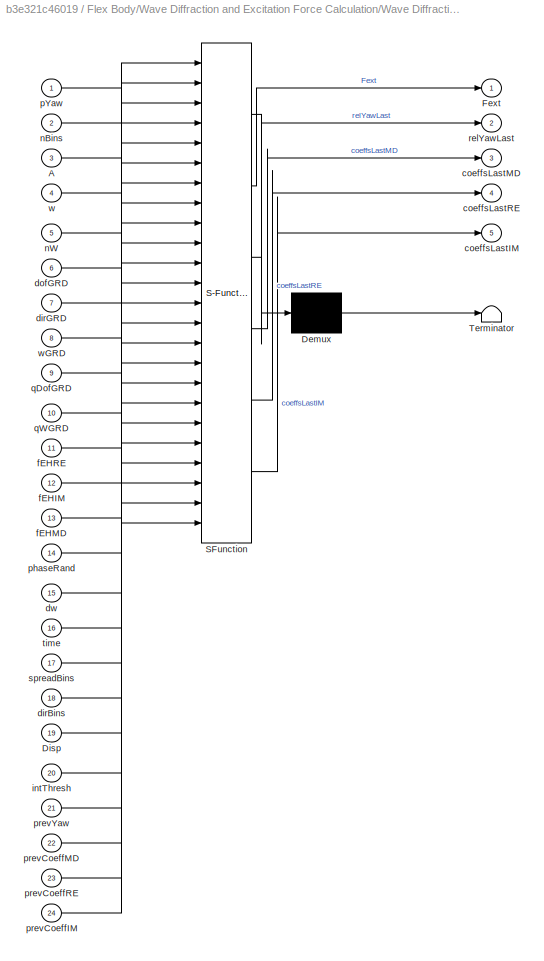
BLOCK [SubSystem] Flex Body/Wave Diffraction and Excitation Force Calculation/Wave Diffraction and Excitation Force Calculation/Linear Wave Excitation Force Variant Subsystem/Irregular Wave Full Direction/MATLAB Function
  ErrorFcn = Stateflow.Translate.translate
  PermitHierarchicalResolution = ExplicitOnly
  Ports = [24, 5]
  SFBlockType = MATLAB Function
  TreatAsAtomicUnit = on
BLOCK [Demux] Flex Body/Wave Diffraction and Excitation Force Calculation/Wave Diffraction and Excitation Force Calculation/Linear Wave Excitation Force Variant Subsystem/Irregular Wave Full Direction/MATLAB Function/ Demux 
  Outputs = 1
  Ports = [1, 1]
BLOCK [S-Function] Flex Body/Wave Diffraction and Excitation Force Calculation/Wave Diffraction and Excitation Force Calculation/Linear Wave Excitation Force Variant Subsystem/Irregular Wave Full Direction/MATLAB Function/ SFunction 
  EnableBusSupport = off
  FunctionName = sf_sfun
  PortCounts = [24 6]
  Ports = [24, 6]
  SFcnIsStateOwnerBlock = off
  SFunctionDeploymentMode = off
  Tag = Stateflow S-Function 32
BLOCK [Terminator] Flex Body/Wave Diffraction and Excitation Force Calculation/Wave Diffraction and Excitation Force Calculation/Linear Wave Excitation Force Variant Subsystem/Irregular Wave Full Direction/MATLAB Function/ Terminator 
BLOCK [Inport] Flex Body/Wave Diffraction and Excitation Force Calculation/Wave Diffraction and Excitation Force Calculation/Linear Wave Excitation Force Variant Subsystem/Irregular Wave Full Direction/MATLAB Function/A
  Port = 3
BLOCK [Inport] Flex Body/Wave Diffraction and Excitation Force Calculation/Wave Diffraction and Excitation Force Calculation/Linear Wave Excitation Force Variant Subsystem/Irregular Wave Full Direction/MATLAB Function/Disp
  Port = 19
BLOCK [Outport] Flex Body/Wave Diffraction and Excitation Force Calculation/Wave Diffraction and Excitation Force Calculation/Linear Wave Excitation Force Variant Subsystem/Irregular Wave Full Direction/MATLAB Function/Fext
BLOCK [Outport] Flex Body/Wave Diffraction and Excitation Force Calculation/Wave Diffraction and Excitation Force Calculation/Linear Wave Excitation Force Variant Subsystem/Irregular Wave Full Direction/MATLAB Function/coeffsLastIM
  Port = 5
BLOCK [Outport] Flex Body/Wave Diffraction and Excitation Force Calculation/Wave Diffraction and Excitation Force Calculation/Linear Wave Excitation Force Variant Subsystem/Irregular Wave Full Direction/MATLAB Function/coeffsLastMD
  Port = 3
BLOCK [Outport] Flex Body/Wave Diffraction and Excitation Force Calculation/Wave Diffraction and Excitation Force Calculation/Linear Wave Excitation Force Variant Subsystem/Irregular Wave Full Direction/MATLAB Function/coeffsLastRE
  Port = 4
BLOCK [Inport] Flex Body/Wave Diffraction and Excitation Force Calculation/Wave Diffraction and Excitation Force Calculation/Linear Wave Excitation Force Variant Subsystem/Irregular Wave Full Direction/MATLAB Function/dirBins
  Port = 18
BLOCK [Inport] Flex Body/Wave Diffraction and Excitation Force Calculation/Wave Diffraction and Excitation Force Calculation/Linear Wave Excitation Force Variant Subsystem/Irregular Wave Full Direction/MATLAB Function/dirGRD
  Port = 7
BLOCK [Inport] Flex Body/Wave Diffraction and Excitation Force Calculation/Wave Diffraction and Excitation Force Calculation/Linear Wave Excitation Force Variant Subsystem/Irregular Wave Full Direction/MATLAB Function/dofGRD
  Port = 6
BLOCK [Inport] Flex Body/Wave Diffraction and Excitation Force Calculation/Wave Diffraction and Excitation Force Calculation/Linear Wave Excitation Force Variant Subsystem/Irregular Wave Full Direction/MATLAB Function/dw
  Port = 15
BLOCK [Inport] Flex Body/Wave Diffraction and Excitation Force Calculation/Wave Diffraction and Excitation Force Calculation/Linear Wave Excitation Force Variant Subsystem/Irregular Wave Full Direction/MATLAB Function/fEHIM
  Port = 12
BLOCK [Inport] Flex Body/Wave Diffraction and Excitation Force Calculation/Wave Diffraction and Excitation Force Calculation/Linear Wave Excitation Force Variant Subsystem/Irregular Wave Full Direction/MATLAB Function/fEHMD
  Port = 13
BLOCK [Inport] Flex Body/Wave Diffraction and Excitation Force Calculation/Wave Diffraction and Excitation Force Calculation/Linear Wave Excitation Force Variant Subsystem/Irregular Wave Full Direction/MATLAB Function/fEHRE
  Port = 11
BLOCK [Inport] Flex Body/Wave Diffraction and Excitation Force Calculation/Wave Diffraction and Excitation Force Calculation/Linear Wave Excitation Force Variant Subsystem/Irregular Wave Full Direction/MATLAB Function/intThresh
  Port = 20
BLOCK [Inport] Flex Body/Wave Diffraction and Excitation Force Calculation/Wave Diffraction and Excitation Force Calculation/Linear Wave Excitation Force Variant Subsystem/Irregular Wave Full Direction/MATLAB Function/nBins
  Port = 2
BLOCK [Inport] Flex Body/Wave Diffraction and Excitation Force Calculation/Wave Diffraction and Excitation Force Calculation/Linear Wave Excitation Force Variant Subsystem/Irregular Wave Full Direction/MATLAB Function/nW
  Port = 5
BLOCK [Inport] Flex Body/Wave Diffraction and Excitation Force Calculation/Wave Diffraction and Excitation Force Calculation/Linear Wave Excitation Force Variant Subsystem/Irregular Wave Full Direction/MATLAB Function/pYaw
BLOCK [Inport] Flex Body/Wave Diffraction and Excitation Force Calculation/Wave Diffraction and Excitation Force Calculation/Linear Wave Excitation Force Variant Subsystem/Irregular Wave Full Direction/MATLAB Function/phaseRand
  Port = 14
BLOCK [Inport] Flex Body/Wave Diffraction and Excitation Force Calculation/Wave Diffraction and Excitation Force Calculation/Linear Wave Excitation Force Variant Subsystem/Irregular Wave Full Direction/MATLAB Function/prevCoeffIM
  Port = 24
BLOCK [Inport] Flex Body/Wave Diffraction and Excitation Force Calculation/Wave Diffraction and Excitation Force Calculation/Linear Wave Excitation Force Variant Subsystem/Irregular Wave Full Direction/MATLAB Function/prevCoeffMD
  Port = 22
BLOCK [Inport] Flex Body/Wave Diffraction and Excitation Force Calculation/Wave Diffraction and Excitation Force Calculation/Linear Wave Excitation Force Variant Subsystem/Irregular Wave Full Direction/MATLAB Function/prevCoeffRE
  Port = 23
BLOCK [Inport] Flex Body/Wave Diffraction and Excitation Force Calculation/Wave Diffraction and Excitation Force Calculation/Linear Wave Excitation Force Variant Subsystem/Irregular Wave Full Direction/MATLAB Function/prevYaw
  Port = 21
BLOCK [Inport] Flex Body/Wave Diffraction and Excitation Force Calculation/Wave Diffraction and Excitation Force Calculation/Linear Wave Excitation Force Variant Subsystem/Irregular Wave Full Direction/MATLAB Function/qDofGRD
  Port = 9
BLOCK [Inport] Flex Body/Wave Diffraction and Excitation Force Calculation/Wave Diffraction and Excitation Force Calculation/Linear Wave Excitation Force Variant Subsystem/Irregular Wave Full Direction/MATLAB Function/qWGRD
  Port = 10
BLOCK [Outport] Flex Body/Wave Diffraction and Excitation Force Calculation/Wave Diffraction and Excitation Force Calculation/Linear Wave Excitation Force Variant Subsystem/Irregular Wave Full Direction/MATLAB Function/relYawLast
  Port = 2
BLOCK [Inport] Flex Body/Wave Diffraction and Excitation Force Calculation/Wave Diffraction and Excitation Force Calculation/Linear Wave Excitation Force Variant Subsystem/Irregular Wave Full Direction/MATLAB Function/spreadBins
  Port = 17
BLOCK [Inport] Flex Body/Wave Diffraction and Excitation Force Calculation/Wave Diffraction and Excitation Force Calculation/Linear Wave Excitation Force Variant Subsystem/Irregular Wave Full Direction/MATLAB Function/time
  Port = 16
BLOCK [Inport] Flex Body/Wave Diffraction and Excitation Force Calculation/Wave Diffraction and Excitation Force Calculation/Linear Wave Excitation Force Variant Subsystem/Irregular Wave Full Direction/MATLAB Function/w
  Port = 4
BLOCK [Inport] Flex Body/Wave Diffraction and Excitation Force Calculation/Wave Diffraction and Excitation Force Calculation/Linear Wave Excitation Force Variant Subsystem/Irregular Wave Full Direction/MATLAB Function/wGRD
  Port = 8
BLOCK [SubSystem] Flex Body/Wave Diffraction and Excitation Force Calculation/Wave Diffraction and Excitation Force Calculation/Linear Wave Excitation Force Variant Subsystem/Irregular Wave Full Direction/MATLAB Function1
  ErrorFcn = Stateflow.Translate.translate
  PermitHierarchicalResolution = ExplicitOnly
  Ports = [5, 1]
  SFBlockType = MATLAB Function
  TreatAsAtomicUnit = on
BLOCK [Demux] Flex Body/Wave Diffraction and Excitation Force Calculation/Wave Diffraction and Excitation Force Calculation/Linear Wave Excitation Force Variant Subsystem/Irregular Wave Full Direction/MATLAB Function1/ Demux 
  Outputs = 1
  Ports = [1, 1]
BLOCK [S-Function] Flex Body/Wave Diffraction and Excitation Force Calculation/Wave Diffraction and Excitation Force Calculation/Linear Wave Excitation Force Variant Subsystem/Irregular Wave Full Direction/MATLAB Function1/ SFunction 
  EnableBusSupport = off
  FunctionName = sf_sfun
  PortCounts = [5 2]
  Ports = [5, 2]
  SFcnIsStateOwnerBlock = off
  SFunctionDeploymentMode = off
  Tag = Stateflow S-Function 33
BLOCK [Terminator] Flex Body/Wave Diffraction and Excitation Force Calculation/Wave Diffraction and Excitation Force Calculation/Linear Wave Excitation Force Variant Subsystem/Irregular Wave Full Direction/MATLAB Function1/ Terminator 
BLOCK [Inport] Flex Body/Wave Diffraction and Excitation Force Calculation/Wave Diffraction and Excitation Force Calculation/Linear Wave Excitation Force Variant Subsystem/Irregular Wave Full Direction/MATLAB Function1/disp
BLOCK [Outport] Flex Body/Wave Diffraction and Excitation Force Calculation/Wave Diffraction and Excitation Force Calculation/Linear Wave Excitation Force Variant Subsystem/Irregular Wave Full Direction/MATLAB Function1/dispPhase
BLOCK [Inport] Flex Body/Wave Diffraction and Excitation Force Calculation/Wave Diffraction and Excitation Force Calculation/Linear Wave Excitation Force Variant Subsystem/Irregular Wave Full Direction/MATLAB Function1/enable
  Port = 2
BLOCK [Inport] Flex Body/Wave Diffraction and Excitation Force Calculation/Wave Diffraction and Excitation Force Calculation/Linear Wave Excitation Force Variant Subsystem/Irregular Wave Full Direction/MATLAB Function1/frequency
  Port = 3
BLOCK [Inport] Flex Body/Wave Diffraction and Excitation Force Calculation/Wave Diffraction and Excitation Force Calculation/Linear Wave Excitation Force Variant Subsystem/Irregular Wave Full Direction/MATLAB Function1/nBins
  Port = 5
BLOCK [Inport] Flex Body/Wave Diffraction and Excitation Force Calculation/Wave Diffraction and Excitation Force Calculation/Linear Wave Excitation Force Variant Subsystem/Irregular Wave Full Direction/MATLAB Function1/wavenumber
  Port = 4
BLOCK [Memory] Flex Body/Wave Diffraction and Excitation Force Calculation/Wave Diffraction and Excitation Force Calculation/Linear Wave Excitation Force Variant Subsystem/Irregular Wave Full Direction/Memory
  InheritSampleTime = on
  LinearizeAsDelay = on
BLOCK [Memory] Flex Body/Wave Diffraction and Excitation Force Calculation/Wave Diffraction and Excitation Force Calculation/Linear Wave Excitation Force Variant Subsystem/Irregular Wave Full Direction/Memory1
  InheritSampleTime = on
  LinearizeAsDelay = on
BLOCK [Memory] Flex Body/Wave Diffraction and Excitation Force Calculation/Wave Diffraction and Excitation Force Calculation/Linear Wave Excitation Force Variant Subsystem/Irregular Wave Full Direction/Memory2
  InheritSampleTime = on
  LinearizeAsDelay = on
BLOCK [Memory] Flex Body/Wave Diffraction and Excitation Force Calculation/Wave Diffraction and Excitation Force Calculation/Linear Wave Excitation Force Variant Subsystem/Irregular Wave Full Direction/Memory3
  InheritSampleTime = on
  LinearizeAsDelay = on
BLOCK [Constant] Flex Body/Wave Diffraction and Excitation Force Calculation/Wave Diffraction and Excitation Force Calculation/Linear Wave Excitation Force Variant Subsystem/Irregular Wave Full Direction/Random Phase
  Value = Nwave.phase
  VectorParams1D = off
BLOCK [Selector] Flex Body/Wave Diffraction and Excitation Force Calculation/Wave Diffraction and Excitation Force Calculation/Linear Wave Excitation Force Variant Subsystem/Irregular Wave Full Direction/Selector
  IndexOptions = Index vector (dialog)
  Indices = [1 2]
  OutputSizes = 1
  Ports = [1, 1]
BLOCK [Selector] Flex Body/Wave Diffraction and Excitation Force Calculation/Wave Diffraction and Excitation Force Calculation/Linear Wave Excitation Force Variant Subsystem/Irregular Wave Full Direction/Selector1
  IndexOptions = Index vector (dialog)
  Indices = 1:6
  OutputSizes = 1
  Ports = [1, 1]
BLOCK [Sum] Flex Body/Wave Diffraction and Excitation Force Calculation/Wave Diffraction and Excitation Force Calculation/Linear Wave Excitation Force Variant Subsystem/Irregular Wave Full Direction/Sum
  Inputs = |++
  Ports = [2, 1]
BLOCK [Inport] Flex Body/Wave Diffraction and Excitation Force Calculation/Wave Diffraction and Excitation Force Calculation/Linear Wave Excitation Force Variant Subsystem/Irregular Wave Full Direction/Time
BLOCK [Math] Flex Body/Wave Diffraction and Excitation Force Calculation/Wave Diffraction and Excitation Force Calculation/Linear Wave Excitation Force Variant Subsystem/Irregular Wave Full Direction/Transpose1
  Operator = transpose
  Ports = [1, 1]
BLOCK [Constant] Flex Body/Wave Diffraction and Excitation Force Calculation/Wave Diffraction and Excitation Force Calculation/Linear Wave Excitation Force Variant Subsystem/Irregular Wave Full Direction/Wave Frequency
  Value = Nwave.omega
  VectorParams1D = off
BLOCK [Constant] Flex Body/Wave Diffraction and Excitation Force Calculation/Wave Diffraction and Excitation Force Calculation/Linear Wave Excitation Force Variant Subsystem/Irregular Wave Full Direction/Wave Frequency1
  Value = Nwave.omega
  VectorParams1D = off
BLOCK [Constant] Flex Body/Wave Diffraction and Excitation Force Calculation/Wave Diffraction and Excitation Force Calculation/Linear Wave Excitation Force Variant Subsystem/Irregular Wave Full Direction/Wave Frequency2
  Value = Nwave.freqDepDirection.nBins
  VectorParams1D = off
BLOCK [Constant] Flex Body/Wave Diffraction and Excitation Force Calculation/Wave Diffraction and Excitation Force Calculation/Linear Wave Excitation Force Variant Subsystem/Irregular Wave Full Direction/Wave Frequency3
  Value = length(Nwave.omega)
  VectorParams1D = off
BLOCK [Constant] Flex Body/Wave Diffraction and Excitation Force Calculation/Wave Diffraction and Excitation Force Calculation/Linear Wave Excitation Force Variant Subsystem/Irregular Wave Full Direction/Wave Number1
  Value = Nwave.wavenumber
BLOCK [Constant] Flex Body/Wave Diffraction and Excitation Force Calculation/Wave Diffraction and Excitation Force Calculation/Linear Wave Excitation Force Variant Subsystem/Irregular Wave Full Direction/Wave Spectrum
  Value = Nwave.amplitude
  VectorParams1D = off
BLOCK [Constant] Flex Body/Wave Diffraction and Excitation Force Calculation/Wave Diffraction and Excitation Force Calculation/Linear Wave Excitation Force Variant Subsystem/Irregular Wave Full Direction/Wave direction spread
  Value = Nwave.freqDepDirection.spreadWeights
  VectorParams1D = off
BLOCK [Constant] Flex Body/Wave Diffraction and Excitation Force Calculation/Wave Diffraction and Excitation Force Calculation/Linear Wave Excitation Force Variant Subsystem/Irregular Wave Full Direction/Wave direction spread1
  Value = Nwave.freqDepDirection.dirBins
  VectorParams1D = off
BLOCK [Constant] Flex Body/Wave Diffraction and Excitation Force Calculation/Wave Diffraction and Excitation Force Calculation/Linear Wave Excitation Force Variant Subsystem/Irregular Wave Full Direction/Wave direction1
  Value = Nwave.freqDepDirection.dirBins(1,:)
  VectorParams1D = off
BLOCK [Inport] Flex Body/Wave Diffraction and Excitation Force Calculation/Wave Diffraction and Excitation Force Calculation/Linear Wave Excitation Force Variant Subsystem/Irregular Wave Full Direction/body_hydroForce
  Port = 3
BLOCK [SubSystem] Flex Body/Wave Diffraction and Excitation Force Calculation/Wave Diffraction and Excitation Force Calculation/Linear Wave Excitation Force Variant Subsystem/Irregular Wave NonLinearYaw
  Ports = [3, 1]
  VariantControl = sv_irregularWavesYaw_b1
BLOCK [BusSelector] Flex Body/Wave Diffraction and Excitation Force Calculation/Wave Diffraction and Excitation Force Calculation/Linear Wave Excitation Force Variant Subsystem/Irregular Wave NonLinearYaw/Bus Selector
  OutputSignals = fExt.dofGrd,fExt.dirGrd,fExt.wGrd,fExt.fEHRE,fExt.fEHIM,fExt.fEHMD
  Ports = [1, 6]
BLOCK [Constant] Flex Body/Wave Diffraction and Excitation Force Calculation/Wave Diffraction and Excitation Force Calculation/Linear Wave Excitation Force Variant Subsystem/Irregular Wave NonLinearYaw/Constant
  Value = body.yaw.threshold
BLOCK [Inport] Flex Body/Wave Diffraction and Excitation Force Calculation/Wave Diffraction and Excitation Force Calculation/Linear Wave Excitation Force Variant Subsystem/Irregular Wave NonLinearYaw/Displacement
  Port = 2
BLOCK [Constant] Flex Body/Wave Diffraction and Excitation Force Calculation/Wave Diffraction and Excitation Force Calculation/Linear Wave Excitation Force Variant Subsystem/Irregular Wave NonLinearYaw/Displacement Phase Enable1
  Value = body.largeXYDisplacement.option
BLOCK [Constant] Flex Body/Wave Diffraction and Excitation Force Calculation/Wave Diffraction and Excitation Force Calculation/Linear Wave Excitation Force Variant Subsystem/Irregular Wave NonLinearYaw/Frequency Spacing Delta Omega
  Value = Nwave.dOmega
  VectorParams1D = off
BLOCK [Outport] Flex Body/Wave Diffraction and Excitation Force Calculation/Wave Diffraction and Excitation Force Calculation/Linear Wave Excitation Force Variant Subsystem/Irregular Wave NonLinearYaw/Linear Excitation
BLOCK [SubSystem] Flex Body/Wave Diffraction and Excitation Force Calculation/Wave Diffraction and Excitation Force Calculation/Linear Wave Excitation Force Variant Subsystem/Irregular Wave NonLinearYaw/MATLAB Function
  ErrorFcn = Stateflow.Translate.translate
  PermitHierarchicalResolution = ExplicitOnly
  Ports = [19, 5]
  SFBlockType = MATLAB Function
  TreatAsAtomicUnit = on
BLOCK [Demux] Flex Body/Wave Diffraction and Excitation Force Calculation/Wave Diffraction and Excitation Force Calculation/Linear Wave Excitation Force Variant Subsystem/Irregular Wave NonLinearYaw/MATLAB Function/ Demux 
  Outputs = 1
  Ports = [1, 1]
BLOCK [S-Function] Flex Body/Wave Diffraction and Excitation Force Calculation/Wave Diffraction and Excitation Force Calculation/Linear Wave Excitation Force Variant Subsystem/Irregular Wave NonLinearYaw/MATLAB Function/ SFunction 
  EnableBusSupport = off
  FunctionName = sf_sfun
  PortCounts = [19 6]
  Ports = [19, 6]
  SFcnIsStateOwnerBlock = off
  SFunctionDeploymentMode = off
  Tag = Stateflow S-Function 38
BLOCK [Terminator] Flex Body/Wave Diffraction and Excitation Force Calculation/Wave Diffraction and Excitation Force Calculation/Linear Wave Excitation Force Variant Subsystem/Irregular Wave NonLinearYaw/MATLAB Function/ Terminator 
BLOCK [Inport] Flex Body/Wave Diffraction and Excitation Force Calculation/Wave Diffraction and Excitation Force Calculation/Linear Wave Excitation Force Variant Subsystem/Irregular Wave NonLinearYaw/MATLAB Function/A
BLOCK [Inport] Flex Body/Wave Diffraction and Excitation Force Calculation/Wave Diffraction and Excitation Force Calculation/Linear Wave Excitation Force Variant Subsystem/Irregular Wave NonLinearYaw/MATLAB Function/Disp
  Port = 14
BLOCK [Outport] Flex Body/Wave Diffraction and Excitation Force Calculation/Wave Diffraction and Excitation Force Calculation/Linear Wave Excitation Force Variant Subsystem/Irregular Wave NonLinearYaw/MATLAB Function/Fext
BLOCK [Outport] Flex Body/Wave Diffraction and Excitation Force Calculation/Wave Diffraction and Excitation Force Calculation/Linear Wave Excitation Force Variant Subsystem/Irregular Wave NonLinearYaw/MATLAB Function/coeffsLastIM
  Port = 5
BLOCK [Outport] Flex Body/Wave Diffraction and Excitation Force Calculation/Wave Diffraction and Excitation Force Calculation/Linear Wave Excitation Force Variant Subsystem/Irregular Wave NonLinearYaw/MATLAB Function/coeffsLastMD
  Port = 3
BLOCK [Outport] Flex Body/Wave Diffraction and Excitation Force Calculation/Wave Diffraction and Excitation Force Calculation/Linear Wave Excitation Force Variant Subsystem/Irregular Wave NonLinearYaw/MATLAB Function/coeffsLastRE
  Port = 4
BLOCK [Inport] Flex Body/Wave Diffraction and Excitation Force Calculation/Wave Diffraction and Excitation Force Calculation/Linear Wave Excitation Force Variant Subsystem/Irregular Wave NonLinearYaw/MATLAB Function/dirGRD
  Port = 4
BLOCK [Inport] Flex Body/Wave Diffraction and Excitation Force Calculation/Wave Diffraction and Excitation Force Calculation/Linear Wave Excitation Force Variant Subsystem/Irregular Wave NonLinearYaw/MATLAB Function/direction
  Port = 12
BLOCK [Inport] Flex Body/Wave Diffraction and Excitation Force Calculation/Wave Diffraction and Excitation Force Calculation/Linear Wave Excitation Force Variant Subsystem/Irregular Wave NonLinearYaw/MATLAB Function/dofGRD
  Port = 3
BLOCK [Inport] Flex Body/Wave Diffraction and Excitation Force Calculation/Wave Diffraction and Excitation Force Calculation/Linear Wave Excitation Force Variant Subsystem/Irregular Wave NonLinearYaw/MATLAB Function/dw
  Port = 10
BLOCK [Inport] Flex Body/Wave Diffraction and Excitation Force Calculation/Wave Diffraction and Excitation Force Calculation/Linear Wave Excitation Force Variant Subsystem/Irregular Wave NonLinearYaw/MATLAB Function/fEHIM
  Port = 7
BLOCK [Inport] Flex Body/Wave Diffraction and Excitation Force Calculation/Wave Diffraction and Excitation Force Calculation/Linear Wave Excitation Force Variant Subsystem/Irregular Wave NonLinearYaw/MATLAB Function/fEHMD
  Port = 8
BLOCK [Inport] Flex Body/Wave Diffraction and Excitation Force Calculation/Wave Diffraction and Excitation Force Calculation/Linear Wave Excitation Force Variant Subsystem/Irregular Wave NonLinearYaw/MATLAB Function/fEHRE
  Port = 6
BLOCK [Inport] Flex Body/Wave Diffraction and Excitation Force Calculation/Wave Diffraction and Excitation Force Calculation/Linear Wave Excitation Force Variant Subsystem/Irregular Wave NonLinearYaw/MATLAB Function/intThresh
  Port = 15
BLOCK [Inport] Flex Body/Wave Diffraction and Excitation Force Calculation/Wave Diffraction and Excitation Force Calculation/Linear Wave Excitation Force Variant Subsystem/Irregular Wave NonLinearYaw/MATLAB Function/phaseRand
  Port = 9
BLOCK [Inport] Flex Body/Wave Diffraction and Excitation Force Calculation/Wave Diffraction and Excitation Force Calculation/Linear Wave Excitation Force Variant Subsystem/Irregular Wave NonLinearYaw/MATLAB Function/prevCoeffIM
  Port = 19
BLOCK [Inport] Flex Body/Wave Diffraction and Excitation Force Calculation/Wave Diffraction and Excitation Force Calculation/Linear Wave Excitation Force Variant Subsystem/Irregular Wave NonLinearYaw/MATLAB Function/prevCoeffMD
  Port = 17
BLOCK [Inport] Flex Body/Wave Diffraction and Excitation Force Calculation/Wave Diffraction and Excitation Force Calculation/Linear Wave Excitation Force Variant Subsystem/Irregular Wave NonLinearYaw/MATLAB Function/prevCoeffRE
  Port = 18
BLOCK [Inport] Flex Body/Wave Diffraction and Excitation Force Calculation/Wave Diffraction and Excitation Force Calculation/Linear Wave Excitation Force Variant Subsystem/Irregular Wave NonLinearYaw/MATLAB Function/prevYaw
  Port = 16
BLOCK [Outport] Flex Body/Wave Diffraction and Excitation Force Calculation/Wave Diffraction and Excitation Force Calculation/Linear Wave Excitation Force Variant Subsystem/Irregular Wave NonLinearYaw/MATLAB Function/relYawLast
  Port = 2
BLOCK [Inport] Flex Body/Wave Diffraction and Excitation Force Calculation/Wave Diffraction and Excitation Force Calculation/Linear Wave Excitation Force Variant Subsystem/Irregular Wave NonLinearYaw/MATLAB Function/spread
  Port = 13
BLOCK [Inport] Flex Body/Wave Diffraction and Excitation Force Calculation/Wave Diffraction and Excitation Force Calculation/Linear Wave Excitation Force Variant Subsystem/Irregular Wave NonLinearYaw/MATLAB Function/time
  Port = 11
BLOCK [Inport] Flex Body/Wave Diffraction and Excitation Force Calculation/Wave Diffraction and Excitation Force Calculation/Linear Wave Excitation Force Variant Subsystem/Irregular Wave NonLinearYaw/MATLAB Function/w
  Port = 2
BLOCK [Inport] Flex Body/Wave Diffraction and Excitation Force Calculation/Wave Diffraction and Excitation Force Calculation/Linear Wave Excitation Force Variant Subsystem/Irregular Wave NonLinearYaw/MATLAB Function/wGRD
  Port = 5
BLOCK [SubSystem] Flex Body/Wave Diffraction and Excitation Force Calculation/Wave Diffraction and Excitation Force Calculation/Linear Wave Excitation Force Variant Subsystem/Irregular Wave NonLinearYaw/MATLAB Function1
  ErrorFcn = Stateflow.Translate.translate
  PermitHierarchicalResolution = ExplicitOnly
  Ports = [5, 1]
  SFBlockType = MATLAB Function
  TreatAsAtomicUnit = on
BLOCK [Demux] Flex Body/Wave Diffraction and Excitation Force Calculation/Wave Diffraction and Excitation Force Calculation/Linear Wave Excitation Force Variant Subsystem/Irregular Wave NonLinearYaw/MATLAB Function1/ Demux 
  Outputs = 1
  Ports = [1, 1]
BLOCK [S-Function] Flex Body/Wave Diffraction and Excitation Force Calculation/Wave Diffraction and Excitation Force Calculation/Linear Wave Excitation Force Variant Subsystem/Irregular Wave NonLinearYaw/MATLAB Function1/ SFunction 
  EnableBusSupport = off
  FunctionName = sf_sfun
  PortCounts = [5 2]
  Ports = [5, 2]
  SFcnIsStateOwnerBlock = off
  SFunctionDeploymentMode = off
  Tag = Stateflow S-Function 39
BLOCK [Terminator] Flex Body/Wave Diffraction and Excitation Force Calculation/Wave Diffraction and Excitation Force Calculation/Linear Wave Excitation Force Variant Subsystem/Irregular Wave NonLinearYaw/MATLAB Function1/ Terminator 
BLOCK [Inport] Flex Body/Wave Diffraction and Excitation Force Calculation/Wave Diffraction and Excitation Force Calculation/Linear Wave Excitation Force Variant Subsystem/Irregular Wave NonLinearYaw/MATLAB Function1/direction
  Port = 5
BLOCK [Inport] Flex Body/Wave Diffraction and Excitation Force Calculation/Wave Diffraction and Excitation Force Calculation/Linear Wave Excitation Force Variant Subsystem/Irregular Wave NonLinearYaw/MATLAB Function1/disp
BLOCK [Outport] Flex Body/Wave Diffraction and Excitation Force Calculation/Wave Diffraction and Excitation Force Calculation/Linear Wave Excitation Force Variant Subsystem/Irregular Wave NonLinearYaw/MATLAB Function1/dispPhase
BLOCK [Inport] Flex Body/Wave Diffraction and Excitation Force Calculation/Wave Diffraction and Excitation Force Calculation/Linear Wave Excitation Force Variant Subsystem/Irregular Wave NonLinearYaw/MATLAB Function1/enable
  Port = 2
BLOCK [Inport] Flex Body/Wave Diffraction and Excitation Force Calculation/Wave Diffraction and Excitation Force Calculation/Linear Wave Excitation Force Variant Subsystem/Irregular Wave NonLinearYaw/MATLAB Function1/frequency
  Port = 3
BLOCK [Inport] Flex Body/Wave Diffraction and Excitation Force Calculation/Wave Diffraction and Excitation Force Calculation/Linear Wave Excitation Force Variant Subsystem/Irregular Wave NonLinearYaw/MATLAB Function1/wavenumber
  Port = 4
BLOCK [Memory] Flex Body/Wave Diffraction and Excitation Force Calculation/Wave Diffraction and Excitation Force Calculation/Linear Wave Excitation Force Variant Subsystem/Irregular Wave NonLinearYaw/Memory
  InheritSampleTime = on
  LinearizeAsDelay = on
BLOCK [Memory] Flex Body/Wave Diffraction and Excitation Force Calculation/Wave Diffraction and Excitation Force Calculation/Linear Wave Excitation Force Variant Subsystem/Irregular Wave NonLinearYaw/Memory1
  InheritSampleTime = on
  LinearizeAsDelay = on
BLOCK [Memory] Flex Body/Wave Diffraction and Excitation Force Calculation/Wave Diffraction and Excitation Force Calculation/Linear Wave Excitation Force Variant Subsystem/Irregular Wave NonLinearYaw/Memory2
  InheritSampleTime = on
  LinearizeAsDelay = on
BLOCK [Memory] Flex Body/Wave Diffraction and Excitation Force Calculation/Wave Diffraction and Excitation Force Calculation/Linear Wave Excitation Force Variant Subsystem/Irregular Wave NonLinearYaw/Memory3
  InheritSampleTime = on
  LinearizeAsDelay = on
BLOCK [Constant] Flex Body/Wave Diffraction and Excitation Force Calculation/Wave Diffraction and Excitation Force Calculation/Linear Wave Excitation Force Variant Subsystem/Irregular Wave NonLinearYaw/Random Phase
  Value = Nwave.phase
  VectorParams1D = off
BLOCK [Selector] Flex Body/Wave Diffraction and Excitation Force Calculation/Wave Diffraction and Excitation Force Calculation/Linear Wave Excitation Force Variant Subsystem/Irregular Wave NonLinearYaw/Selector
  IndexOptions = Index vector (dialog)
  Indices = [1 2]
  OutputSizes = 1
  Ports = [1, 1]
BLOCK [Sum] Flex Body/Wave Diffraction and Excitation Force Calculation/Wave Diffraction and Excitation Force Calculation/Linear Wave Excitation Force Variant Subsystem/Irregular Wave NonLinearYaw/Sum
  Inputs = |++
  Ports = [2, 1]
BLOCK [Inport] Flex Body/Wave Diffraction and Excitation Force Calculation/Wave Diffraction and Excitation Force Calculation/Linear Wave Excitation Force Variant Subsystem/Irregular Wave NonLinearYaw/Time
BLOCK [Constant] Flex Body/Wave Diffraction and Excitation Force Calculation/Wave Diffraction and Excitation Force Calculation/Linear Wave Excitation Force Variant Subsystem/Irregular Wave NonLinearYaw/Wave Frequency
  Value = Nwave.omega
  VectorParams1D = off
BLOCK [Constant] Flex Body/Wave Diffraction and Excitation Force Calculation/Wave Diffraction and Excitation Force Calculation/Linear Wave Excitation Force Variant Subsystem/Irregular Wave NonLinearYaw/Wave Frequency1
  Value = Nwave.omega
  VectorParams1D = off
BLOCK [Constant] Flex Body/Wave Diffraction and Excitation Force Calculation/Wave Diffraction and Excitation Force Calculation/Linear Wave Excitation Force Variant Subsystem/Irregular Wave NonLinearYaw/Wave Number1
  Value = Nwave.wavenumber
BLOCK [Constant] Flex Body/Wave Diffraction and Excitation Force Calculation/Wave Diffraction and Excitation Force Calculation/Linear Wave Excitation Force Variant Subsystem/Irregular Wave NonLinearYaw/Wave Spectrum
  Value = Nwave.amplitude
  VectorParams1D = off
BLOCK [Constant] Flex Body/Wave Diffraction and Excitation Force Calculation/Wave Diffraction and Excitation Force Calculation/Linear Wave Excitation Force Variant Subsystem/Irregular Wave NonLinearYaw/Wave direction
  Value = wrapTo180(Nwave.direction)
  VectorParams1D = off
BLOCK [Constant] Flex Body/Wave Diffraction and Excitation Force Calculation/Wave Diffraction and Excitation Force Calculation/Linear Wave Excitation Force Variant Subsystem/Irregular Wave NonLinearYaw/Wave direction spread
  Value = Nwave.spread
  VectorParams1D = off
BLOCK [Constant] Flex Body/Wave Diffraction and Excitation Force Calculation/Wave Diffraction and Excitation Force Calculation/Linear Wave Excitation Force Variant Subsystem/Irregular Wave NonLinearYaw/Wave direction1
  Value = Nwave.direction
  VectorParams1D = off
BLOCK [Inport] Flex Body/Wave Diffraction and Excitation Force Calculation/Wave Diffraction and Excitation Force Calculation/Linear Wave Excitation Force Variant Subsystem/Irregular Wave NonLinearYaw/body_hydroForce
  Port = 3
BLOCK [Outport] Flex Body/Wave Diffraction and Excitation Force Calculation/Wave Diffraction and Excitation Force Calculation/Linear Wave Excitation Force Variant Subsystem/Linear Excitation
BLOCK [SubSystem] Flex Body/Wave Diffraction and Excitation Force Calculation/Wave Diffraction and Excitation Force Calculation/Linear Wave Excitation Force Variant Subsystem/No Wave Excitation Force
  Ports = [0, 1]
  VariantControl = sv_noWave
BLOCK [Constant] Flex Body/Wave Diffraction and Excitation Force Calculation/Wave Diffraction and Excitation Force Calculation/Linear Wave Excitation Force Variant Subsystem/No Wave Excitation Force/Constant
  Value = zeros(1,body.dof)
BLOCK [Outport] Flex Body/Wave Diffraction and Excitation Force Calculation/Wave Diffraction and Excitation Force Calculation/Linear Wave Excitation Force Variant Subsystem/No Wave Excitation Force/Linear Excitation
BLOCK [SubSystem] Flex Body/Wave Diffraction and Excitation Force Calculation/Wave Diffraction and Excitation Force Calculation/Linear Wave Excitation Force Variant Subsystem/Regular Wave Excitation Force
  Ports = [3, 1]
  VariantControl = sv_regularWaves_b1
BLOCK [Sum] Flex Body/Wave Diffraction and Excitation Force Calculation/Wave Diffraction and Excitation Force Calculation/Linear Wave Excitation Force Variant Subsystem/Regular Wave Excitation Force/Add
  IconShape = rectangular
  Inputs = +++
  Ports = [3, 1]
BLOCK [Sum] Flex Body/Wave Diffraction and Excitation Force Calculation/Wave Diffraction and Excitation Force Calculation/Linear Wave Excitation Force Variant Subsystem/Regular Wave Excitation Force/Add1
  IconShape = rectangular
  Inputs = ++-
  Ports = [3, 1]
BLOCK [Sum] Flex Body/Wave Diffraction and Excitation Force Calculation/Wave Diffraction and Excitation Force Calculation/Linear Wave Excitation Force Variant Subsystem/Regular Wave Excitation Force/Add2
  IconShape = rectangular
  Ports = [2, 1]
BLOCK [BusSelector] Flex Body/Wave Diffraction and Excitation Force Calculation/Wave Diffraction and Excitation Force Calculation/Linear Wave Excitation Force Variant Subsystem/Regular Wave Excitation Force/Bus Selector
  OutputSignals = fExt.md,fExt.re,fExt.im
  Ports = [1, 3]
BLOCK [Constant] Flex Body/Wave Diffraction and Excitation Force Calculation/Wave Diffraction and Excitation Force Calculation/Linear Wave Excitation Force Variant Subsystem/Regular Wave Excitation Force/Constant
  Value = pi/2
BLOCK [Inport] Flex Body/Wave Diffraction and Excitation Force Calculation/Wave Diffraction and Excitation Force Calculation/Linear Wave Excitation Force Variant Subsystem/Regular Wave Excitation Force/Displacement
  Port = 2
BLOCK [Constant] Flex Body/Wave Diffraction and Excitation Force Calculation/Wave Diffraction and Excitation Force Calculation/Linear Wave Excitation Force Variant Subsystem/Regular Wave Excitation Force/Displacement Phase Enable1
  Value = body.largeXYDisplacement.option
BLOCK [Outport] Flex Body/Wave Diffraction and Excitation Force Calculation/Wave Diffraction and Excitation Force Calculation/Linear Wave Excitation Force Variant Subsystem/Regular Wave Excitation Force/Linear Excitation
BLOCK [SubSystem] Flex Body/Wave Diffraction and Excitation Force Calculation/Wave Diffraction and Excitation Force Calculation/Linear Wave Excitation Force Variant Subsystem/Regular Wave Excitation Force/MATLAB Function1
  ErrorFcn = Stateflow.Translate.translate
  PermitHierarchicalResolution = ExplicitOnly
  Ports = [5, 1]
  SFBlockType = MATLAB Function
  TreatAsAtomicUnit = on
BLOCK [Demux] Flex Body/Wave Diffraction and Excitation Force Calculation/Wave Diffraction and Excitation Force Calculation/Linear Wave Excitation Force Variant Subsystem/Regular Wave Excitation Force/MATLAB Function1/ Demux 
  Outputs = 1
  Ports = [1, 1]
BLOCK [S-Function] Flex Body/Wave Diffraction and Excitation Force Calculation/Wave Diffraction and Excitation Force Calculation/Linear Wave Excitation Force Variant Subsystem/Regular Wave Excitation Force/MATLAB Function1/ SFunction 
  EnableBusSupport = off
  FunctionName = sf_sfun
  PortCounts = [5 2]
  Ports = [5, 2]
  SFcnIsStateOwnerBlock = off
  SFunctionDeploymentMode = off
  Tag = Stateflow S-Function 17
BLOCK [Terminator] Flex Body/Wave Diffraction and Excitation Force Calculation/Wave Diffraction and Excitation Force Calculation/Linear Wave Excitation Force Variant Subsystem/Regular Wave Excitation Force/MATLAB Function1/ Terminator 
BLOCK [Inport] Flex Body/Wave Diffraction and Excitation Force Calculation/Wave Diffraction and Excitation Force Calculation/Linear Wave Excitation Force Variant Subsystem/Regular Wave Excitation Force/MATLAB Function1/direction
  Port = 5
BLOCK [Inport] Flex Body/Wave Diffraction and Excitation Force Calculation/Wave Diffraction and Excitation Force Calculation/Linear Wave Excitation Force Variant Subsystem/Regular Wave Excitation Force/MATLAB Function1/disp
BLOCK [Outport] Flex Body/Wave Diffraction and Excitation Force Calculation/Wave Diffraction and Excitation Force Calculation/Linear Wave Excitation Force Variant Subsystem/Regular Wave Excitation Force/MATLAB Function1/dispPhase
BLOCK [Inport] Flex Body/Wave Diffraction and Excitation Force Calculation/Wave Diffraction and Excitation Force Calculation/Linear Wave Excitation Force Variant Subsystem/Regular Wave Excitation Force/MATLAB Function1/enable
  Port = 2
BLOCK [Inport] Flex Body/Wave Diffraction and Excitation Force Calculation/Wave Diffraction and Excitation Force Calculation/Linear Wave Excitation Force Variant Subsystem/Regular Wave Excitation Force/MATLAB Function1/frequency
  Port = 3
BLOCK [Inport] Flex Body/Wave Diffraction and Excitation Force Calculation/Wave Diffraction and Excitation Force Calculation/Linear Wave Excitation Force Variant Subsystem/Regular Wave Excitation Force/MATLAB Function1/wavenumber
  Port = 4
BLOCK [Product] Flex Body/Wave Diffraction and Excitation Force Calculation/Wave Diffraction and Excitation Force Calculation/Linear Wave Excitation Force Variant Subsystem/Regular Wave Excitation Force/Product
  Ports = [2, 1]
BLOCK [Product] Flex Body/Wave Diffraction and Excitation Force Calculation/Wave Diffraction and Excitation Force Calculation/Linear Wave Excitation Force Variant Subsystem/Regular Wave Excitation Force/Product1
  Inputs = 3
  Ports = [3, 1]
BLOCK [Product] Flex Body/Wave Diffraction and Excitation Force Calculation/Wave Diffraction and Excitation Force Calculation/Linear Wave Excitation Force Variant Subsystem/Regular Wave Excitation Force/Product2
  Inputs = 3
  Ports = [3, 1]
BLOCK [Product] Flex Body/Wave Diffraction and Excitation Force Calculation/Wave Diffraction and Excitation Force Calculation/Linear Wave Excitation Force Variant Subsystem/Regular Wave Excitation Force/Product3
  Ports = [2, 1]
BLOCK [Selector] Flex Body/Wave Diffraction and Excitation Force Calculation/Wave Diffraction and Excitation Force Calculation/Linear Wave Excitation Force Variant Subsystem/Regular Wave Excitation Force/Selector
  IndexOptions = Index vector (dialog)
  Indices = [1 2]
  OutputSizes = 1
  Ports = [1, 1]
BLOCK [Sin] Flex Body/Wave Diffraction and Excitation Force Calculation/Wave Diffraction and Excitation Force Calculation/Linear Wave Excitation Force Variant Subsystem/Regular Wave Excitation Force/Sine Wave Function
  Ports = [1, 1]
  SampleTime = 0
  TimeSource = Use external signal
BLOCK [Sin] Flex Body/Wave Diffraction and Excitation Force Calculation/Wave Diffraction and Excitation Force Calculation/Linear Wave Excitation Force Variant Subsystem/Regular Wave Excitation Force/Sine Wave Function1
  Ports = [1, 1]
  SampleTime = 0
  TimeSource = Use external signal
BLOCK [Inport] Flex Body/Wave Diffraction and Excitation Force Calculation/Wave Diffraction and Excitation Force Calculation/Linear Wave Excitation Force Variant Subsystem/Regular Wave Excitation Force/Time
BLOCK [Constant] Flex Body/Wave Diffraction and Excitation Force Calculation/Wave Diffraction and Excitation Force Calculation/Linear Wave Excitation Force Variant Subsystem/Regular Wave Excitation Force/Wave Amplitude
  Value = Nwave.amplitude(1,:)
BLOCK [Constant] Flex Body/Wave Diffraction and Excitation Force Calculation/Wave Diffraction and Excitation Force Calculation/Linear Wave Excitation Force Variant Subsystem/Regular Wave Excitation Force/Wave Amplitude1
  Value = Nwave.amplitude(1,:).*Nwave.amplitude(1,:)
BLOCK [Constant] Flex Body/Wave Diffraction and Excitation Force Calculation/Wave Diffraction and Excitation Force Calculation/Linear Wave Excitation Force Variant Subsystem/Regular Wave Excitation Force/Wave Frequency
  Value = Nwave.omega(1,:)
BLOCK [Constant] Flex Body/Wave Diffraction and Excitation Force Calculation/Wave Diffraction and Excitation Force Calculation/Linear Wave Excitation Force Variant Subsystem/Regular Wave Excitation Force/Wave Frequency1
  Value = Nwave.omega
  VectorParams1D = off
BLOCK [Constant] Flex Body/Wave Diffraction and Excitation Force Calculation/Wave Diffraction and Excitation Force Calculation/Linear Wave Excitation Force Variant Subsystem/Regular Wave Excitation Force/Wave Number
  Value = Nwave.wavenumber
BLOCK [Constant] Flex Body/Wave Diffraction and Excitation Force Calculation/Wave Diffraction and Excitation Force Calculation/Linear Wave Excitation Force Variant Subsystem/Regular Wave Excitation Force/Wave direction
  Value = Nwave.direction
  VectorParams1D = off
BLOCK [Inport] Flex Body/Wave Diffraction and Excitation Force Calculation/Wave Diffraction and Excitation Force Calculation/Linear Wave Excitation Force Variant Subsystem/Regular Wave Excitation Force/body_hydroForce
  Port = 3
BLOCK [SubSystem] Flex Body/Wave Diffraction and Excitation Force Calculation/Wave Diffraction and Excitation Force Calculation/Linear Wave Excitation Force Variant Subsystem/Regular Wave NonLinear Yaw
  Ports = [3, 1]
  VariantControl = sv_regularWavesYaw_b1
BLOCK [BusSelector] Flex Body/Wave Diffraction and Excitation Force Calculation/Wave Diffraction and Excitation Force Calculation/Linear Wave Excitation Force Variant Subsystem/Regular Wave NonLinear Yaw/Bus Selector
  OutputSignals = fExt.dofGrd,fExt.dirGrd,fExt.fEHRE,fExt.fEHIM,fExt.fEHMD
  Ports = [1, 5]
BLOCK [Constant] Flex Body/Wave Diffraction and Excitation Force Calculation/Wave Diffraction and Excitation Force Calculation/Linear Wave Excitation Force Variant Subsystem/Regular Wave NonLinear Yaw/Constant
  Value = body.yaw.threshold
BLOCK [Inport] Flex Body/Wave Diffraction and Excitation Force Calculation/Wave Diffraction and Excitation Force Calculation/Linear Wave Excitation Force Variant Subsystem/Regular Wave NonLinear Yaw/Displacement
  Port = 2
BLOCK [Constant] Flex Body/Wave Diffraction and Excitation Force Calculation/Wave Diffraction and Excitation Force Calculation/Linear Wave Excitation Force Variant Subsystem/Regular Wave NonLinear Yaw/Displacement Phase Enable1
  Value = body.largeXYDisplacement.option
BLOCK [Outport] Flex Body/Wave Diffraction and Excitation Force Calculation/Wave Diffraction and Excitation Force Calculation/Linear Wave Excitation Force Variant Subsystem/Regular Wave NonLinear Yaw/Linear Excitation
BLOCK [SubSystem] Flex Body/Wave Diffraction and Excitation Force Calculation/Wave Diffraction and Excitation Force Calculation/Linear Wave Excitation Force Variant Subsystem/Regular Wave NonLinear Yaw/MATLAB Function1
  ErrorFcn = Stateflow.Translate.translate
  PermitHierarchicalResolution = ExplicitOnly
  Ports = [16, 5]
  SFBlockType = MATLAB Function
  TreatAsAtomicUnit = on
BLOCK [Demux] Flex Body/Wave Diffraction and Excitation Force Calculation/Wave Diffraction and Excitation Force Calculation/Linear Wave Excitation Force Variant Subsystem/Regular Wave NonLinear Yaw/MATLAB Function1/ Demux 
  Outputs = 1
  Ports = [1, 1]
BLOCK [S-Function] Flex Body/Wave Diffraction and Excitation Force Calculation/Wave Diffraction and Excitation Force Calculation/Linear Wave Excitation Force Variant Subsystem/Regular Wave NonLinear Yaw/MATLAB Function1/ SFunction 
  EnableBusSupport = off
  FunctionName = sf_sfun
  PortCounts = [16 6]
  Ports = [16, 6]
  SFcnIsStateOwnerBlock = off
  SFunctionDeploymentMode = off
  Tag = Stateflow S-Function 34
BLOCK [Terminator] Flex Body/Wave Diffraction and Excitation Force Calculation/Wave Diffraction and Excitation Force Calculation/Linear Wave Excitation Force Variant Subsystem/Regular Wave NonLinear Yaw/MATLAB Function1/ Terminator 
BLOCK [Inport] Flex Body/Wave Diffraction and Excitation Force Calculation/Wave Diffraction and Excitation Force Calculation/Linear Wave Excitation Force Variant Subsystem/Regular Wave NonLinear Yaw/MATLAB Function1/A
BLOCK [Inport] Flex Body/Wave Diffraction and Excitation Force Calculation/Wave Diffraction and Excitation Force Calculation/Linear Wave Excitation Force Variant Subsystem/Regular Wave NonLinear Yaw/MATLAB Function1/Disp
  Port = 10
BLOCK [Outport] Flex Body/Wave Diffraction and Excitation Force Calculation/Wave Diffraction and Excitation Force Calculation/Linear Wave Excitation Force Variant Subsystem/Regular Wave NonLinear Yaw/MATLAB Function1/Fext
BLOCK [Inport] Flex Body/Wave Diffraction and Excitation Force Calculation/Wave Diffraction and Excitation Force Calculation/Linear Wave Excitation Force Variant Subsystem/Regular Wave NonLinear Yaw/MATLAB Function1/WaveDir
  Port = 9
BLOCK [Outport] Flex Body/Wave Diffraction and Excitation Force Calculation/Wave Diffraction and Excitation Force Calculation/Linear Wave Excitation Force Variant Subsystem/Regular Wave NonLinear Yaw/MATLAB Function1/coeffsLastIM
  Port = 5
BLOCK [Outport] Flex Body/Wave Diffraction and Excitation Force Calculation/Wave Diffraction and Excitation Force Calculation/Linear Wave Excitation Force Variant Subsystem/Regular Wave NonLinear Yaw/MATLAB Function1/coeffsLastMD
  Port = 3
BLOCK [Outport] Flex Body/Wave Diffraction and Excitation Force Calculation/Wave Diffraction and Excitation Force Calculation/Linear Wave Excitation Force Variant Subsystem/Regular Wave NonLinear Yaw/MATLAB Function1/coeffsLastRE
  Port = 4
BLOCK [Inport] Flex Body/Wave Diffraction and Excitation Force Calculation/Wave Diffraction and Excitation Force Calculation/Linear Wave Excitation Force Variant Subsystem/Regular Wave NonLinear Yaw/MATLAB Function1/dirGRD
  Port = 4
BLOCK [Inport] Flex Body/Wave Diffraction and Excitation Force Calculation/Wave Diffraction and Excitation Force Calculation/Linear Wave Excitation Force Variant Subsystem/Regular Wave NonLinear Yaw/MATLAB Function1/dofGRD
  Port = 3
BLOCK [Inport] Flex Body/Wave Diffraction and Excitation Force Calculation/Wave Diffraction and Excitation Force Calculation/Linear Wave Excitation Force Variant Subsystem/Regular Wave NonLinear Yaw/MATLAB Function1/fEHIM
  Port = 6
BLOCK [Inport] Flex Body/Wave Diffraction and Excitation Force Calculation/Wave Diffraction and Excitation Force Calculation/Linear Wave Excitation Force Variant Subsystem/Regular Wave NonLinear Yaw/MATLAB Function1/fEHMD
  Port = 7
BLOCK [Inport] Flex Body/Wave Diffraction and Excitation Force Calculation/Wave Diffraction and Excitation Force Calculation/Linear Wave Excitation Force Variant Subsystem/Regular Wave NonLinear Yaw/MATLAB Function1/fEHRE
  Port = 5
BLOCK [Inport] Flex Body/Wave Diffraction and Excitation Force Calculation/Wave Diffraction and Excitation Force Calculation/Linear Wave Excitation Force Variant Subsystem/Regular Wave NonLinear Yaw/MATLAB Function1/intThresh
  Port = 11
BLOCK [Inport] Flex Body/Wave Diffraction and Excitation Force Calculation/Wave Diffraction and Excitation Force Calculation/Linear Wave Excitation Force Variant Subsystem/Regular Wave NonLinear Yaw/MATLAB Function1/phase
  Port = 12
BLOCK [Inport] Flex Body/Wave Diffraction and Excitation Force Calculation/Wave Diffraction and Excitation Force Calculation/Linear Wave Excitation Force Variant Subsystem/Regular Wave NonLinear Yaw/MATLAB Function1/prevCoeffIM
  Port = 16
BLOCK [Inport] Flex Body/Wave Diffraction and Excitation Force Calculation/Wave Diffraction and Excitation Force Calculation/Linear Wave Excitation Force Variant Subsystem/Regular Wave NonLinear Yaw/MATLAB Function1/prevCoeffMD
  Port = 14
BLOCK [Inport] Flex Body/Wave Diffraction and Excitation Force Calculation/Wave Diffraction and Excitation Force Calculation/Linear Wave Excitation Force Variant Subsystem/Regular Wave NonLinear Yaw/MATLAB Function1/prevCoeffRE
  Port = 15
BLOCK [Inport] Flex Body/Wave Diffraction and Excitation Force Calculation/Wave Diffraction and Excitation Force Calculation/Linear Wave Excitation Force Variant Subsystem/Regular Wave NonLinear Yaw/MATLAB Function1/prevYaw
  Port = 13
BLOCK [Outport] Flex Body/Wave Diffraction and Excitation Force Calculation/Wave Diffraction and Excitation Force Calculation/Linear Wave Excitation Force Variant Subsystem/Regular Wave NonLinear Yaw/MATLAB Function1/relYawLast
  Port = 2
BLOCK [Inport] Flex Body/Wave Diffraction and Excitation Force Calculation/Wave Diffraction and Excitation Force Calculation/Linear Wave Excitation Force Variant Subsystem/Regular Wave NonLinear Yaw/MATLAB Function1/time
  Port = 8
BLOCK [Inport] Flex Body/Wave Diffraction and Excitation Force Calculation/Wave Diffraction and Excitation Force Calculation/Linear Wave Excitation Force Variant Subsystem/Regular Wave NonLinear Yaw/MATLAB Function1/w
  Port = 2
BLOCK [SubSystem] Flex Body/Wave Diffraction and Excitation Force Calculation/Wave Diffraction and Excitation Force Calculation/Linear Wave Excitation Force Variant Subsystem/Regular Wave NonLinear Yaw/MATLAB Function3
  ErrorFcn = Stateflow.Translate.translate
  PermitHierarchicalResolution = ExplicitOnly
  Ports = [5, 1]
  SFBlockType = MATLAB Function
  TreatAsAtomicUnit = on
BLOCK [Demux] Flex Body/Wave Diffraction and Excitation Force Calculation/Wave Diffraction and Excitation Force Calculation/Linear Wave Excitation Force Variant Subsystem/Regular Wave NonLinear Yaw/MATLAB Function3/ Demux 
  Outputs = 1
  Ports = [1, 1]
BLOCK [S-Function] Flex Body/Wave Diffraction and Excitation Force Calculation/Wave Diffraction and Excitation Force Calculation/Linear Wave Excitation Force Variant Subsystem/Regular Wave NonLinear Yaw/MATLAB Function3/ SFunction 
  EnableBusSupport = off
  FunctionName = sf_sfun
  PortCounts = [5 2]
  Ports = [5, 2]
  SFcnIsStateOwnerBlock = off
  SFunctionDeploymentMode = off
  Tag = Stateflow S-Function 35
BLOCK [Terminator] Flex Body/Wave Diffraction and Excitation Force Calculation/Wave Diffraction and Excitation Force Calculation/Linear Wave Excitation Force Variant Subsystem/Regular Wave NonLinear Yaw/MATLAB Function3/ Terminator 
BLOCK [Inport] Flex Body/Wave Diffraction and Excitation Force Calculation/Wave Diffraction and Excitation Force Calculation/Linear Wave Excitation Force Variant Subsystem/Regular Wave NonLinear Yaw/MATLAB Function3/direction
  Port = 5
BLOCK [Inport] Flex Body/Wave Diffraction and Excitation Force Calculation/Wave Diffraction and Excitation Force Calculation/Linear Wave Excitation Force Variant Subsystem/Regular Wave NonLinear Yaw/MATLAB Function3/disp
BLOCK [Outport] Flex Body/Wave Diffraction and Excitation Force Calculation/Wave Diffraction and Excitation Force Calculation/Linear Wave Excitation Force Variant Subsystem/Regular Wave NonLinear Yaw/MATLAB Function3/dispPhase
BLOCK [Inport] Flex Body/Wave Diffraction and Excitation Force Calculation/Wave Diffraction and Excitation Force Calculation/Linear Wave Excitation Force Variant Subsystem/Regular Wave NonLinear Yaw/MATLAB Function3/enable
  Port = 2
BLOCK [Inport] Flex Body/Wave Diffraction and Excitation Force Calculation/Wave Diffraction and Excitation Force Calculation/Linear Wave Excitation Force Variant Subsystem/Regular Wave NonLinear Yaw/MATLAB Function3/frequency
  Port = 3
BLOCK [Inport] Flex Body/Wave Diffraction and Excitation Force Calculation/Wave Diffraction and Excitation Force Calculation/Linear Wave Excitation Force Variant Subsystem/Regular Wave NonLinear Yaw/MATLAB Function3/wavenumber
  Port = 4
BLOCK [Memory] Flex Body/Wave Diffraction and Excitation Force Calculation/Wave Diffraction and Excitation Force Calculation/Linear Wave Excitation Force Variant Subsystem/Regular Wave NonLinear Yaw/Memory
  InheritSampleTime = on
  LinearizeAsDelay = on
BLOCK [Memory] Flex Body/Wave Diffraction and Excitation Force Calculation/Wave Diffraction and Excitation Force Calculation/Linear Wave Excitation Force Variant Subsystem/Regular Wave NonLinear Yaw/Memory1
  InheritSampleTime = on
  LinearizeAsDelay = on
BLOCK [Memory] Flex Body/Wave Diffraction and Excitation Force Calculation/Wave Diffraction and Excitation Force Calculation/Linear Wave Excitation Force Variant Subsystem/Regular Wave NonLinear Yaw/Memory2
  InheritSampleTime = on
  LinearizeAsDelay = on
BLOCK [Memory] Flex Body/Wave Diffraction and Excitation Force Calculation/Wave Diffraction and Excitation Force Calculation/Linear Wave Excitation Force Variant Subsystem/Regular Wave NonLinear Yaw/Memory3
  InheritSampleTime = on
  LinearizeAsDelay = on
BLOCK [Selector] Flex Body/Wave Diffraction and Excitation Force Calculation/Wave Diffraction and Excitation Force Calculation/Linear Wave Excitation Force Variant Subsystem/Regular Wave NonLinear Yaw/Selector
  IndexOptions = Index vector (dialog)
  Indices = [1 2]
  OutputSizes = 1
  Ports = [1, 1]
BLOCK [Inport] Flex Body/Wave Diffraction and Excitation Force Calculation/Wave Diffraction and Excitation Force Calculation/Linear Wave Excitation Force Variant Subsystem/Regular Wave NonLinear Yaw/Time
BLOCK [Constant] Flex Body/Wave Diffraction and Excitation Force Calculation/Wave Diffraction and Excitation Force Calculation/Linear Wave Excitation Force Variant Subsystem/Regular Wave NonLinear Yaw/Wave Amplitude
  Value = Nwave.amplitude(1,:)
BLOCK [Constant] Flex Body/Wave Diffraction and Excitation Force Calculation/Wave Diffraction and Excitation Force Calculation/Linear Wave Excitation Force Variant Subsystem/Regular Wave NonLinear Yaw/Wave Frequency
  Value = Nwave.omega(1,:)
BLOCK [Constant] Flex Body/Wave Diffraction and Excitation Force Calculation/Wave Diffraction and Excitation Force Calculation/Linear Wave Excitation Force Variant Subsystem/Regular Wave NonLinear Yaw/Wave Frequency1
  Value = Nwave.omega
  VectorParams1D = off
BLOCK [Constant] Flex Body/Wave Diffraction and Excitation Force Calculation/Wave Diffraction and Excitation Force Calculation/Linear Wave Excitation Force Variant Subsystem/Regular Wave NonLinear Yaw/Wave Number1
  Value = Nwave.wavenumber
BLOCK [Constant] Flex Body/Wave Diffraction and Excitation Force Calculation/Wave Diffraction and Excitation Force Calculation/Linear Wave Excitation Force Variant Subsystem/Regular Wave NonLinear Yaw/Wave direction
  Value = wrapTo180(Nwave.direction)
  VectorParams1D = off
BLOCK [Constant] Flex Body/Wave Diffraction and Excitation Force Calculation/Wave Diffraction and Excitation Force Calculation/Linear Wave Excitation Force Variant Subsystem/Regular Wave NonLinear Yaw/Wave direction1
  Value = Nwave.direction
  VectorParams1D = off
BLOCK [Inport] Flex Body/Wave Diffraction and Excitation Force Calculation/Wave Diffraction and Excitation Force Calculation/Linear Wave Excitation Force Variant Subsystem/Regular Wave NonLinear Yaw/body_hydroForce
  Port = 3
BLOCK [Inport] Flex Body/Wave Diffraction and Excitation Force Calculation/Wave Diffraction and Excitation Force Calculation/Linear Wave Excitation Force Variant Subsystem/Time
BLOCK [SubSystem] Flex Body/Wave Diffraction and Excitation Force Calculation/Wave Diffraction and Excitation Force Calculation/Linear Wave Excitation Force Variant Subsystem/User Defined Wave Excitation Force
  Ports = [0, 1]
  VariantControl = sv_udfWaves
BLOCK [FromWorkspace] Flex Body/Wave Diffraction and Excitation Force Calculation/Wave Diffraction and Excitation Force Calculation/Linear Wave Excitation Force Variant Subsystem/User Defined Wave Excitation Force/InputWaveForceTimeHistory1
  VariableName = [Nwave.waveAmpTime(:,1),body.hydroForce.hf1.userDefinedFe]
BLOCK [Outport] Flex Body/Wave Diffraction and Excitation Force Calculation/Wave Diffraction and Excitation Force Calculation/Linear Wave Excitation Force Variant Subsystem/User Defined Wave Excitation Force/Linear Excitation
BLOCK [Inport] Flex Body/Wave Diffraction and Excitation Force Calculation/Wave Diffraction and Excitation Force Calculation/Linear Wave Excitation Force Variant Subsystem/body_hydroForce
  Port = 3
BLOCK [SubSystem] Flex Body/Wave Diffraction and Excitation Force Calculation/Wave Diffraction and Excitation Force Calculation/Nonlinear FK Force Variant Subsystem
  Ports = [3, 1]
  Variant = on
BLOCK [Inport] Flex Body/Wave Diffraction and Excitation Force Calculation/Wave Diffraction and Excitation Force Calculation/Nonlinear FK Force Variant Subsystem/Displacement
  Port = 2
BLOCK [SubSystem] Flex Body/Wave Diffraction and Excitation Force Calculation/Wave Diffraction and Excitation Force Calculation/Nonlinear FK Force Variant Subsystem/No Nonlinear FroudeKrylov Force
  Ports = [0, 1]
  VariantControl = sv_b1_linearHydro
BLOCK [Constant] Flex Body/Wave Diffraction and Excitation Force Calculation/Wave Diffraction and Excitation Force Calculation/Nonlinear FK Force Variant Subsystem/No Nonlinear FroudeKrylov Force/Constant
  Value = zeros(1,body.dof)
BLOCK [Outport] Flex Body/Wave Diffraction and Excitation Force Calculation/Wave Diffraction and Excitation Force Calculation/Nonlinear FK Force Variant Subsystem/No Nonlinear FroudeKrylov Force/Nonlinear Excitation
BLOCK [Outport] Flex Body/Wave Diffraction and Excitation Force Calculation/Wave Diffraction and Excitation Force Calculation/Nonlinear FK Force Variant Subsystem/Nonlinear Excitation
BLOCK [Inport] Flex Body/Wave Diffraction and Excitation Force Calculation/Wave Diffraction and Excitation Force Calculation/Nonlinear FK Force Variant Subsystem/Time
BLOCK [Inport] Flex Body/Wave Diffraction and Excitation Force Calculation/Wave Diffraction and Excitation Force Calculation/Nonlinear FK Force Variant Subsystem/WaveElv
  Port = 3
BLOCK [SubSystem] Flex Body/Wave Diffraction and Excitation Force Calculation/Wave Diffraction and Excitation Force Calculation/Nonlinear FK Force Variant Subsystem/With Nonlinear FroudeKrylov Force
  Ports = [3, 1]
  SystemSampleTime = simu.nonlinearDt
  TreatAsAtomicUnit = on
  VariantControl = sv_b1_nonlinearHydro
BLOCK [Sum] Flex Body/Wave Diffraction and Excitation Force Calculation/Wave Diffraction and Excitation Force Calculation/Nonlinear FK Force Variant Subsystem/With Nonlinear FroudeKrylov Force/Add
  IconShape = rectangular
  Inputs = +-
  Ports = [2, 1]
BLOCK [Constant] Flex Body/Wave Diffraction and Excitation Force Calculation/Wave Diffraction and Excitation Force Calculation/Nonlinear FK Force Variant Subsystem/With Nonlinear FroudeKrylov Force/Center of Gravity
  Value = body.hydroData.properties.centerGravity
BLOCK [Constant] Flex Body/Wave Diffraction and Excitation Force Calculation/Wave Diffraction and Excitation Force Calculation/Nonlinear FK Force Variant Subsystem/With Nonlinear FroudeKrylov Force/Center of Gravity1
  Value = body.hydroData(1).properties.centerGravity
BLOCK [Constant] Flex Body/Wave Diffraction and Excitation Force Calculation/Wave Diffraction and Excitation Force Calculation/Nonlinear FK Force Variant Subsystem/With Nonlinear FroudeKrylov Force/Constant
  Value = zeros(1,body.dof-body.gbmDOF-3)
BLOCK [Constant] Flex Body/Wave Diffraction and Excitation Force Calculation/Wave Diffraction and Excitation Force Calculation/Nonlinear FK Force Variant Subsystem/With Nonlinear FroudeKrylov Force/Constant1
  Value = zeros(body.gbmDOF,1)
BLOCK [Constant] Flex Body/Wave Diffraction and Excitation Force Calculation/Wave Diffraction and Excitation Force Calculation/Nonlinear FK Force Variant Subsystem/With Nonlinear FroudeKrylov Force/Deep Water Flag
  Value = waves.deepWater
BLOCK [SubSystem] Flex Body/Wave Diffraction and Excitation Force Calculation/Wave Diffraction and Excitation Force Calculation/Nonlinear FK Force Variant Subsystem/With Nonlinear FroudeKrylov Force/Diffraction and Excitation Forces
  ErrorFcn = Stateflow.Translate.translate
  PermitHierarchicalResolution = ExplicitOnly
  Ports = [19, 3]
  SFBlockType = MATLAB Function
  TreatAsAtomicUnit = on
BLOCK [Demux] Flex Body/Wave Diffraction and Excitation Force Calculation/Wave Diffraction and Excitation Force Calculation/Nonlinear FK Force Variant Subsystem/With Nonlinear FroudeKrylov Force/Diffraction and Excitation Forces/ Demux 
  Outputs = 1
  Ports = [1, 1]
BLOCK [S-Function] Flex Body/Wave Diffraction and Excitation Force Calculation/Wave Diffraction and Excitation Force Calculation/Nonlinear FK Force Variant Subsystem/With Nonlinear FroudeKrylov Force/Diffraction and Excitation Forces/ SFunction 
  EnableBusSupport = off
  FunctionName = sf_sfun
  PortCounts = [19 4]
  Ports = [19, 4]
  SFcnIsStateOwnerBlock = off
  SFunctionDeploymentMode = off
  Tag = Stateflow S-Function 22
BLOCK [Terminator] Flex Body/Wave Diffraction and Excitation Force Calculation/Wave Diffraction and Excitation Force Calculation/Nonlinear FK Force Variant Subsystem/With Nonlinear FroudeKrylov Force/Diffraction and Excitation Forces/ Terminator 
BLOCK [Inport] Flex Body/Wave Diffraction and Excitation Force Calculation/Wave Diffraction and Excitation Force Calculation/Nonlinear FK Force Variant Subsystem/With Nonlinear FroudeKrylov Force/Diffraction and Excitation Forces/AH
  Port = 11
BLOCK [Inport] Flex Body/Wave Diffraction and Excitation Force Calculation/Wave Diffraction and Excitation Force Calculation/Nonlinear FK Force Variant Subsystem/With Nonlinear FroudeKrylov Force/Diffraction and Excitation Forces/area
  Port = 7
BLOCK [Inport] Flex Body/Wave Diffraction and Excitation Force Calculation/Wave Diffraction and Excitation Force Calculation/Nonlinear FK Force Variant Subsystem/With Nonlinear FroudeKrylov Force/Diffraction and Excitation Forces/center
  Port = 5
BLOCK [Inport] Flex Body/Wave Diffraction and Excitation Force Calculation/Wave Diffraction and Excitation Force Calculation/Nonlinear FK Force Variant Subsystem/With Nonlinear FroudeKrylov Force/Diffraction and Excitation Forces/cg
  Port = 10
BLOCK [Inport] Flex Body/Wave Diffraction and Excitation Force Calculation/Wave Diffraction and Excitation Force Calculation/Nonlinear FK Force Variant Subsystem/With Nonlinear FroudeKrylov Force/Diffraction and Excitation Forces/deepWater
  Port = 15
BLOCK [Inport] Flex Body/Wave Diffraction and Excitation Force Calculation/Wave Diffraction and Excitation Force Calculation/Nonlinear FK Force Variant Subsystem/With Nonlinear FroudeKrylov Force/Diffraction and Excitation Forces/direction
  Port = 3
BLOCK [Inport] Flex Body/Wave Diffraction and Excitation Force Calculation/Wave Diffraction and Excitation Force Calculation/Nonlinear FK Force Variant Subsystem/With Nonlinear FroudeKrylov Force/Diffraction and Excitation Forces/dw
  Port = 13
BLOCK [Inport] Flex Body/Wave Diffraction and Excitation Force Calculation/Wave Diffraction and Excitation Force Calculation/Nonlinear FK Force Variant Subsystem/With Nonlinear FroudeKrylov Force/Diffraction and Excitation Forces/elv
  Port = 2
BLOCK [Outport] Flex Body/Wave Diffraction and Excitation Force Calculation/Wave Diffraction and Excitation Force Calculation/Nonlinear FK Force Variant Subsystem/With Nonlinear FroudeKrylov Force/Diffraction and Excitation Forces/f
BLOCK [Inport] Flex Body/Wave Diffraction and Excitation Force Calculation/Wave Diffraction and Excitation Force Calculation/Nonlinear FK Force Variant Subsystem/With Nonlinear FroudeKrylov Force/Diffraction and Excitation Forces/g
  Port = 9
BLOCK [Inport] Flex Body/Wave Diffraction and Excitation Force Calculation/Wave Diffraction and Excitation Force Calculation/Nonlinear FK Force Variant Subsystem/With Nonlinear FroudeKrylov Force/Diffraction and Excitation Forces/k
  Port = 16
BLOCK [Inport] Flex Body/Wave Diffraction and Excitation Force Calculation/Wave Diffraction and Excitation Force Calculation/Nonlinear FK Force Variant Subsystem/With Nonlinear FroudeKrylov Force/Diffraction and Excitation Forces/phaseRand
  Port = 19
BLOCK [Inport] Flex Body/Wave Diffraction and Excitation Force Calculation/Wave Diffraction and Excitation Force Calculation/Nonlinear FK Force Variant Subsystem/With Nonlinear FroudeKrylov Force/Diffraction and Excitation Forces/rho
  Port = 8
BLOCK [Inport] Flex Body/Wave Diffraction and Excitation Force Calculation/Wave Diffraction and Excitation Force Calculation/Nonlinear FK Force Variant Subsystem/With Nonlinear FroudeKrylov Force/Diffraction and Excitation Forces/spread
  Port = 4
BLOCK [Inport] Flex Body/Wave Diffraction and Excitation Force Calculation/Wave Diffraction and Excitation Force Calculation/Nonlinear FK Force Variant Subsystem/With Nonlinear FroudeKrylov Force/Diffraction and Excitation Forces/t
  Port = 18
BLOCK [Inport] Flex Body/Wave Diffraction and Excitation Force Calculation/Wave Diffraction and Excitation Force Calculation/Nonlinear FK Force Variant Subsystem/With Nonlinear FroudeKrylov Force/Diffraction and Excitation Forces/tnorm
  Port = 6
BLOCK [Inport] Flex Body/Wave Diffraction and Excitation Force Calculation/Wave Diffraction and Excitation Force Calculation/Nonlinear FK Force Variant Subsystem/With Nonlinear FroudeKrylov Force/Diffraction and Excitation Forces/typeNum
  Port = 17
BLOCK [Inport] Flex Body/Wave Diffraction and Excitation Force Calculation/Wave Diffraction and Excitation Force Calculation/Nonlinear FK Force Variant Subsystem/With Nonlinear FroudeKrylov Force/Diffraction and Excitation Forces/w
  Port = 12
BLOCK [Inport] Flex Body/Wave Diffraction and Excitation Force Calculation/Wave Diffraction and Excitation Force Calculation/Nonlinear FK Force Variant Subsystem/With Nonlinear FroudeKrylov Force/Diffraction and Excitation Forces/wDepth
  Port = 14
BLOCK [Outport] Flex Body/Wave Diffraction and Excitation Force Calculation/Wave Diffraction and Excitation Force Calculation/Nonlinear FK Force Variant Subsystem/With Nonlinear FroudeKrylov Force/Diffraction and Excitation Forces/wp
  Port = 2
BLOCK [Outport] Flex Body/Wave Diffraction and Excitation Force Calculation/Wave Diffraction and Excitation Force Calculation/Nonlinear FK Force Variant Subsystem/With Nonlinear FroudeKrylov Force/Diffraction and Excitation Forces/wpMeanFS
  Port = 3
BLOCK [Inport] Flex Body/Wave Diffraction and Excitation Force Calculation/Wave Diffraction and Excitation Force Calculation/Nonlinear FK Force Variant Subsystem/With Nonlinear FroudeKrylov Force/Diffraction and Excitation Forces/x
BLOCK [Inport] Flex Body/Wave Diffraction and Excitation Force Calculation/Wave Diffraction and Excitation Force Calculation/Nonlinear FK Force Variant Subsystem/With Nonlinear FroudeKrylov Force/Displacement
  Port = 2
BLOCK [Constant] Flex Body/Wave Diffraction and Excitation Force Calculation/Wave Diffraction and Excitation Force Calculation/Nonlinear FK Force Variant Subsystem/With Nonlinear FroudeKrylov Force/Frequency Spacing
  Value = waves.dOmega
BLOCK [Constant] Flex Body/Wave Diffraction and Excitation Force Calculation/Wave Diffraction and Excitation Force Calculation/Nonlinear FK Force Variant Subsystem/With Nonlinear FroudeKrylov Force/Gravity
  Value = simu.gravity
BLOCK [Mux] Flex Body/Wave Diffraction and Excitation Force Calculation/Wave Diffraction and Excitation Force Calculation/Nonlinear FK Force Variant Subsystem/With Nonlinear FroudeKrylov Force/Mux
  DisplayOption = bar
  Inputs = 2
  Ports = [2, 1]
BLOCK [Mux] Flex Body/Wave Diffraction and Excitation Force Calculation/Wave Diffraction and Excitation Force Calculation/Nonlinear FK Force Variant Subsystem/With Nonlinear FroudeKrylov Force/Mux1
  DisplayOption = bar
  Inputs = 2
  Ports = [2, 1]
BLOCK [Outport] Flex Body/Wave Diffraction and Excitation Force Calculation/Wave Diffraction and Excitation Force Calculation/Nonlinear FK Force Variant Subsystem/With Nonlinear FroudeKrylov Force/Nonlinear Excitation
BLOCK [Constant] Flex Body/Wave Diffraction and Excitation Force Calculation/Wave Diffraction and Excitation Force Calculation/Nonlinear FK Force Variant Subsystem/With Nonlinear FroudeKrylov Force/STL Areas
  Value = body.geometry.area
BLOCK [Constant] Flex Body/Wave Diffraction and Excitation Force Calculation/Wave Diffraction and Excitation Force Calculation/Nonlinear FK Force Variant Subsystem/With Nonlinear FroudeKrylov Force/STL Centers
  Value = body.geometry.center
BLOCK [Constant] Flex Body/Wave Diffraction and Excitation Force Calculation/Wave Diffraction and Excitation Force Calculation/Nonlinear FK Force Variant Subsystem/With Nonlinear FroudeKrylov Force/STL Normal Vectors
  Value = body.geometry.norm
BLOCK [Selector] Flex Body/Wave Diffraction and Excitation Force Calculation/Wave Diffraction and Excitation Force Calculation/Nonlinear FK Force Variant Subsystem/With Nonlinear FroudeKrylov Force/Selector
  IndexOptions = Index vector (dialog)
  Indices = [1:6]
  InputPortWidth = body.dof
  OutputSizes = 1
  Ports = [1, 1]
BLOCK [Inport] Flex Body/Wave Diffraction and Excitation Force Calculation/Wave Diffraction and Excitation Force Calculation/Nonlinear FK Force Variant Subsystem/With Nonlinear FroudeKrylov Force/Time
BLOCK [ToWorkspace] Flex Body/Wave Diffraction and Excitation Force Calculation/Wave Diffraction and Excitation Force Calculation/Nonlinear FK Force Variant Subsystem/With Nonlinear FroudeKrylov Force/To Workspace
  Decimation = round(simu.dtOut/simu.dt,0)
  MaxDataPoints = inf
  Ports = [1]
  SampleTime = -1
  SaveFormat = Structure With Time
  VariableName = body1_wavenonlinearpressure_out
BLOCK [ToWorkspace] Flex Body/Wave Diffraction and Excitation Force Calculation/Wave Diffraction and Excitation Force Calculation/Nonlinear FK Force Variant Subsystem/With Nonlinear FroudeKrylov Force/To Workspace1
  Decimation = round(simu.dtOut/simu.dt,0)
  MaxDataPoints = inf
  Ports = [1]
  SampleTime = -1
  SaveFormat = Structure With Time
  VariableName = body1_wavelinearpressure_out
BLOCK [Constant] Flex Body/Wave Diffraction and Excitation Force Calculation/Wave Diffraction and Excitation Force Calculation/Nonlinear FK Force Variant Subsystem/With Nonlinear FroudeKrylov Force/Water Density
  Value = simu.rho
BLOCK [Constant] Flex Body/Wave Diffraction and Excitation Force Calculation/Wave Diffraction and Excitation Force Calculation/Nonlinear FK Force Variant Subsystem/With Nonlinear FroudeKrylov Force/Water Depth
  Value = waves.waterDepth
BLOCK [Constant] Flex Body/Wave Diffraction and Excitation Force Calculation/Wave Diffraction and Excitation Force Calculation/Nonlinear FK Force Variant Subsystem/With Nonlinear FroudeKrylov Force/Wave Amplitude
  Value = waves.amplitude
BLOCK [Constant] Flex Body/Wave Diffraction and Excitation Force Calculation/Wave Diffraction and Excitation Force Calculation/Nonlinear FK Force Variant Subsystem/With Nonlinear FroudeKrylov Force/Wave Direction
  Value = waves.direction
BLOCK [Constant] Flex Body/Wave Diffraction and Excitation Force Calculation/Wave Diffraction and Excitation Force Calculation/Nonlinear FK Force Variant Subsystem/With Nonlinear FroudeKrylov Force/Wave Frequency
  Value = waves.omega
BLOCK [Constant] Flex Body/Wave Diffraction and Excitation Force Calculation/Wave Diffraction and Excitation Force Calculation/Nonlinear FK Force Variant Subsystem/With Nonlinear FroudeKrylov Force/Wave Number
  Value = waves.wavenumber
BLOCK [Constant] Flex Body/Wave Diffraction and Excitation Force Calculation/Wave Diffraction and Excitation Force Calculation/Nonlinear FK Force Variant Subsystem/With Nonlinear FroudeKrylov Force/Wave Random Phase
  Value = waves.phase
BLOCK [Constant] Flex Body/Wave Diffraction and Excitation Force Calculation/Wave Diffraction and Excitation Force Calculation/Nonlinear FK Force Variant Subsystem/With Nonlinear FroudeKrylov Force/Wave Spread
  Value = waves.spread
BLOCK [Constant] Flex Body/Wave Diffraction and Excitation Force Calculation/Wave Diffraction and Excitation Force Calculation/Nonlinear FK Force Variant Subsystem/With Nonlinear FroudeKrylov Force/Wave Type Number
  Value = waves.typeNum
BLOCK [Inport] Flex Body/Wave Diffraction and Excitation Force Calculation/Wave Diffraction and Excitation Force Calculation/Nonlinear FK Force Variant Subsystem/With Nonlinear FroudeKrylov Force/WaveElv
  Port = 3
BLOCK [Product] Flex Body/Wave Diffraction and Excitation Force Calculation/Wave Diffraction and Excitation Force Calculation/Product
  Ports = [2, 1]
BLOCK [Constant] Flex Body/Wave Diffraction and Excitation Force Calculation/Wave Diffraction and Excitation Force Calculation/Ramp Function Time
  Value = simu.rampTime
BLOCK [SubSystem] Flex Body/Wave Diffraction and Excitation Force Calculation/Wave Diffraction and Excitation Force Calculation/Ramp function
  Ports = [1, 1]
BLOCK [Sum] Flex Body/Wave Diffraction and Excitation Force Calculation/Wave Diffraction and Excitation Force Calculation/Ramp function/Add1
  IconShape = rectangular
  Ports = [2, 1]
BLOCK [Sum] Flex Body/Wave Diffraction and Excitation Force Calculation/Wave Diffraction and Excitation Force Calculation/Ramp function/Add2
  IconShape = rectangular
  Ports = [2, 1]
BLOCK [Constant] Flex Body/Wave Diffraction and Excitation Force Calculation/Wave Diffraction and Excitation Force Calculation/Ramp function/Constant1
  Value = 1/2
BLOCK [Constant] Flex Body/Wave Diffraction and Excitation Force Calculation/Wave Diffraction and Excitation Force Calculation/Ramp function/Constant2
BLOCK [Constant] Flex Body/Wave Diffraction and Excitation Force Calculation/Wave Diffraction and Excitation Force Calculation/Ramp function/Constant3
  Value = 3*pi/2
BLOCK [Constant] Flex Body/Wave Diffraction and Excitation Force Calculation/Wave Diffraction and Excitation Force Calculation/Ramp function/Constant4
  Value = pi
BLOCK [Product] Flex Body/Wave Diffraction and Excitation Force Calculation/Wave Diffraction and Excitation Force Calculation/Ramp function/Divide
  Inputs = */
  Ports = [2, 1]
BLOCK [Product] Flex Body/Wave Diffraction and Excitation Force Calculation/Wave Diffraction and Excitation Force Calculation/Ramp function/Product1
  Ports = [2, 1]
BLOCK [Product] Flex Body/Wave Diffraction and Excitation Force Calculation/Wave Diffraction and Excitation Force Calculation/Ramp function/Product2
  Ports = [2, 1]
BLOCK [Outport] Flex Body/Wave Diffraction and Excitation Force Calculation/Wave Diffraction and Excitation Force Calculation/Ramp function/R
BLOCK [Constant] Flex Body/Wave Diffraction and Excitation Force Calculation/Wave Diffraction and Excitation Force Calculation/Ramp function/Ramp Time
  Value = simu.rampTime
BLOCK [Sin] Flex Body/Wave Diffraction and Excitation Force Calculation/Wave Diffraction and Excitation Force Calculation/Ramp function/Sine Wave Function
  Ports = [1, 1]
  SampleTime = 0
  TimeSource = Use external signal
BLOCK [Inport] Flex Body/Wave Diffraction and Excitation Force Calculation/Wave Diffraction and Excitation Force Calculation/Ramp function/Time
BLOCK [Switch] Flex Body/Wave Diffraction and Excitation Force Calculation/Wave Diffraction and Excitation Force Calculation/Switch
  Criteria = u2 ~= 0
  InputSameDT = off
  SaturateOnIntegerOverflow = off
BLOCK [Inport] Flex Body/Wave Diffraction and Excitation Force Calculation/Wave Diffraction and Excitation Force Calculation/Time
BLOCK [Inport] Flex Body/Wave Diffraction and Excitation Force Calculation/Wave Diffraction and Excitation Force Calculation/WaveElv
  Port = 3
BLOCK [Inport] Flex Body/Wave Diffraction and Excitation Force Calculation/WaveElv
  Port = 3
BLOCK [SubSystem] Flex Body/Wave Radiation Forces Calculation
  Ports = [2, 4]
BLOCK [Inport] Flex Body/Wave Radiation Forces Calculation/Acceleration
  Port = 2
BLOCK [Outport] Flex Body/Wave Radiation Forces Calculation/F_AddedMass_Flex
  Port = 4
  PortDimensions = body.gbmDOF
BLOCK [Outport] Flex Body/Wave Radiation Forces Calculation/F_AddedMass_Rigid
  Port = 3
  PortDimensions = 6
BLOCK [Outport] Flex Body/Wave Radiation Forces Calculation/F_RadiationDamping_Flex
  Port = 2
  PortDimensions = body.gbmDOF
BLOCK [Outport] Flex Body/Wave Radiation Forces Calculation/F_RadiationDamping_Rigid
  PortDimensions = 6
BLOCK [Selector] Flex Body/Wave Radiation Forces Calculation/Selector
  IndexOptions = Index vector (dialog)
  Indices = [1:6]
  InputPortWidth = body.dof
  OutputSizes = 1
  Ports = [1, 1]
BLOCK [Selector] Flex Body/Wave Radiation Forces Calculation/Selector1
  IndexOptions = Index vector (dialog)
  Indices = [7:body.dofEnd]
  InputPortWidth = body.dof
  OutputSizes = 1
  Ports = [1, 1]
BLOCK [Selector] Flex Body/Wave Radiation Forces Calculation/Selector2
  IndexOptions = Index vector (dialog)
  Indices = [1:6]
  InputPortWidth = body.dof
  OutputSizes = 1
  Ports = [1, 1]
BLOCK [Selector] Flex Body/Wave Radiation Forces Calculation/Selector3
  IndexOptions = Index vector (dialog)
  Indices = [7:body.dofEnd]
  InputPortWidth = body.dof
  OutputSizes = 1
  Ports = [1, 1]
BLOCK [Inport] Flex Body/Wave Radiation Forces Calculation/Velocity
BLOCK [SubSystem] Flex Body/Wave Radiation Forces Calculation/Wave Radiation Forces Calculation
  AncestorBlock = WECSim_Lib_Body_Elements/Rigid Body/Hydrodynamic Body/Wave Radiation Forces Calculation
  Ports = [2, 2]
BLOCK [Inport] Flex Body/Wave Radiation Forces Calculation/Wave Radiation Forces Calculation/Acceleration
  Port = 2
BLOCK [BusSelector] Flex Body/Wave Radiation Forces Calculation/Wave Radiation Forces Calculation/Bus Selector
  OutputSignals = fAddedMass
  Ports = [1, 1]
BLOCK [Outport] Flex Body/Wave Radiation Forces Calculation/Wave Radiation Forces Calculation/F_AddedMass
  Port = 2
BLOCK [Outport] Flex Body/Wave Radiation Forces Calculation/Wave Radiation Forces Calculation/F_RadiationDamping
BLOCK [From] Flex Body/Wave Radiation Forces Calculation/Wave Radiation Forces Calculation/From
  GotoTag = body1_hydroForce
  TagVisibility = global
BLOCK [Product] Flex Body/Wave Radiation Forces Calculation/Wave Radiation Forces Calculation/Product1
  Multiplication = Matrix(*)
  Ports = [2, 1]
BLOCK [SubSystem] Flex Body/Wave Radiation Forces Calculation/Wave Radiation Forces Calculation/SS CI and Constant-Damping-CoeVariant Subsystem
  Ports = [1, 1]
  Variant = on
BLOCK [SubSystem] Flex Body/Wave Radiation Forces Calculation/Wave Radiation Forces Calculation/SS CI and Constant-Damping-CoeVariant Subsystem/Constant Coefficients
  Ports = [1, 1]
  VariantControl = sv_constantCoeff
BLOCK [BusSelector] Flex Body/Wave Radiation Forces Calculation/Wave Radiation Forces Calculation/SS CI and Constant-Damping-CoeVariant Subsystem/Constant Coefficients/Bus Selector
  OutputSignals = fDamping
  Ports = [1, 1]
BLOCK [From] Flex Body/Wave Radiation Forces Calculation/Wave Radiation Forces Calculation/SS CI and Constant-Damping-CoeVariant Subsystem/Constant Coefficients/From
  GotoTag = body1_hydroForce
  TagVisibility = global
BLOCK [Outport] Flex Body/Wave Radiation Forces Calculation/Wave Radiation Forces Calculation/SS CI and Constant-Damping-CoeVariant Subsystem/Constant Coefficients/Out1
BLOCK [Product] Flex Body/Wave Radiation Forces Calculation/Wave Radiation Forces Calculation/SS CI and Constant-Damping-CoeVariant Subsystem/Constant Coefficients/Product
  Multiplication = Matrix(*)
  Ports = [2, 1]
BLOCK [Inport] Flex Body/Wave Radiation Forces Calculation/Wave Radiation Forces Calculation/SS CI and Constant-Damping-CoeVariant Subsystem/Constant Coefficients/velocity
BLOCK [SubSystem] Flex Body/Wave Radiation Forces Calculation/Wave Radiation Forces Calculation/SS CI and Constant-Damping-CoeVariant Subsystem/Convolution Integral Calculation
  Ports = [1, 1]
  VariantControl = sv_convolution
BLOCK [SubSystem] Flex Body/Wave Radiation Forces Calculation/Wave Radiation Forces Calculation/SS CI and Constant-Damping-CoeVariant Subsystem/Convolution Integral Calculation/Convolution Variant Subsystem
  Ports = [1, 1]
  Variant = on
  VariantControl = Subsystem
BLOCK [SubSystem] Flex Body/Wave Radiation Forces Calculation/Wave Radiation Forces Calculation/SS CI and Constant-Damping-CoeVariant Subsystem/Convolution Integral Calculation/Convolution Variant Subsystem/Convolution Integral Calculation
  Ports = [1, 1]
  VariantControl = sv_b1_noVariableHydro
BLOCK [BusSelector] Flex Body/Wave Radiation Forces Calculation/Wave Radiation Forces Calculation/SS CI and Constant-Damping-CoeVariant Subsystem/Convolution Integral Calculation/Convolution Variant Subsystem/Convolution Integral Calculation/Bus Selector
  OutputSignals = irkb
  Ports = [1, 1]
BLOCK [Outport] Flex Body/Wave Radiation Forces Calculation/Wave Radiation Forces Calculation/SS CI and Constant-Damping-CoeVariant Subsystem/Convolution Integral Calculation/Convolution Variant Subsystem/Convolution Integral Calculation/Frad
BLOCK [From] Flex Body/Wave Radiation Forces Calculation/Wave Radiation Forces Calculation/SS CI and Constant-Damping-CoeVariant Subsystem/Convolution Integral Calculation/Convolution Variant Subsystem/Convolution Integral Calculation/From
  GotoTag = body1_hydroForce
  TagVisibility = global
BLOCK [SubSystem] Flex Body/Wave Radiation Forces Calculation/Wave Radiation Forces Calculation/SS CI and Constant-Damping-CoeVariant Subsystem/Convolution Integral Calculation/Convolution Variant Subsystem/Convolution Integral Calculation/MATLAB Function
  ErrorFcn = Stateflow.Translate.translate
  PermitHierarchicalResolution = ExplicitOnly
  Ports = [3, 1]
  SFBlockType = MATLAB Function
  TreatAsAtomicUnit = on
BLOCK [Demux] Flex Body/Wave Radiation Forces Calculation/Wave Radiation Forces Calculation/SS CI and Constant-Damping-CoeVariant Subsystem/Convolution Integral Calculation/Convolution Variant Subsystem/Convolution Integral Calculation/MATLAB Function/ Demux 
  Outputs = 1
  Ports = [1, 1]
BLOCK [S-Function] Flex Body/Wave Radiation Forces Calculation/Wave Radiation Forces Calculation/SS CI and Constant-Damping-CoeVariant Subsystem/Convolution Integral Calculation/Convolution Variant Subsystem/Convolution Integral Calculation/MATLAB Function/ SFunction 
  EnableBusSupport = off
  FunctionName = sf_sfun
  PortCounts = [3 2]
  Ports = [3, 2]
  SFcnIsStateOwnerBlock = off
  SFunctionDeploymentMode = off
  Tag = Stateflow S-Function 11
BLOCK [Terminator] Flex Body/Wave Radiation Forces Calculation/Wave Radiation Forces Calculation/SS CI and Constant-Damping-CoeVariant Subsystem/Convolution Integral Calculation/Convolution Variant Subsystem/Convolution Integral Calculation/MATLAB Function/ Terminator 
BLOCK [Outport] Flex Body/Wave Radiation Forces Calculation/Wave Radiation Forces Calculation/SS CI and Constant-Damping-CoeVariant Subsystem/Convolution Integral Calculation/Convolution Variant Subsystem/Convolution Integral Calculation/MATLAB Function/Frad
BLOCK [Inport] Flex Body/Wave Radiation Forces Calculation/Wave Radiation Forces Calculation/SS CI and Constant-Damping-CoeVariant Subsystem/Convolution Integral Calculation/Convolution Variant Subsystem/Convolution Integral Calculation/MATLAB Function/FradExtrap
  Port = 2
BLOCK [Inport] Flex Body/Wave Radiation Forces Calculation/Wave Radiation Forces Calculation/SS CI and Constant-Damping-CoeVariant Subsystem/Convolution Integral Calculation/Convolution Variant Subsystem/Convolution Integral Calculation/MATLAB Function/time
  Port = 3
BLOCK [Inport] Flex Body/Wave Radiation Forces Calculation/Wave Radiation Forces Calculation/SS CI and Constant-Damping-CoeVariant Subsystem/Convolution Integral Calculation/Convolution Variant Subsystem/Convolution Integral Calculation/MATLAB Function/timeExtrap
BLOCK [SubSystem] Flex Body/Wave Radiation Forces Calculation/Wave Radiation Forces Calculation/SS CI and Constant-Damping-CoeVariant Subsystem/Convolution Integral Calculation/Convolution Variant Subsystem/Convolution Integral Calculation/MATLAB Function1
  ErrorFcn = Stateflow.Translate.translate
  PermitHierarchicalResolution = ExplicitOnly
  Ports = [4, 2]
  SFBlockType = MATLAB Function
  SystemSampleTime = simu.cicDt
  TreatAsAtomicUnit = on
BLOCK [Demux] Flex Body/Wave Radiation Forces Calculation/Wave Radiation Forces Calculation/SS CI and Constant-Damping-CoeVariant Subsystem/Convolution Integral Calculation/Convolution Variant Subsystem/Convolution Integral Calculation/MATLAB Function1/ Demux 
  Outputs = 1
  Ports = [1, 1]
BLOCK [S-Function] Flex Body/Wave Radiation Forces Calculation/Wave Radiation Forces Calculation/SS CI and Constant-Damping-CoeVariant Subsystem/Convolution Integral Calculation/Convolution Variant Subsystem/Convolution Integral Calculation/MATLAB Function1/ SFunction 
  EnableBusSupport = off
  FunctionName = sf_sfun
  PortCounts = [4 3]
  Ports = [4, 3]
  SFcnIsStateOwnerBlock = off
  SFunctionDeploymentMode = off
  Tag = Stateflow S-Function 25
BLOCK [Terminator] Flex Body/Wave Radiation Forces Calculation/Wave Radiation Forces Calculation/SS CI and Constant-Damping-CoeVariant Subsystem/Convolution Integral Calculation/Convolution Variant Subsystem/Convolution Integral Calculation/MATLAB Function1/ Terminator 
BLOCK [Outport] Flex Body/Wave Radiation Forces Calculation/Wave Radiation Forces Calculation/SS CI and Constant-Damping-CoeVariant Subsystem/Convolution Integral Calculation/Convolution Variant Subsystem/Convolution Integral Calculation/MATLAB Function1/FradExtrap
  Port = 2
BLOCK [Inport] Flex Body/Wave Radiation Forces Calculation/Wave Radiation Forces Calculation/SS CI and Constant-Damping-CoeVariant Subsystem/Convolution Integral Calculation/Convolution Variant Subsystem/Convolution Integral Calculation/MATLAB Function1/IRKB
  Port = 2
BLOCK [Inport] Flex Body/Wave Radiation Forces Calculation/Wave Radiation Forces Calculation/SS CI and Constant-Damping-CoeVariant Subsystem/Convolution Integral Calculation/Convolution Variant Subsystem/Convolution Integral Calculation/MATLAB Function1/cicTime
  Port = 3
BLOCK [Inport] Flex Body/Wave Radiation Forces Calculation/Wave Radiation Forces Calculation/SS CI and Constant-Damping-CoeVariant Subsystem/Convolution Integral Calculation/Convolution Variant Subsystem/Convolution Integral Calculation/MATLAB Function1/time
  Port = 4
BLOCK [Outport] Flex Body/Wave Radiation Forces Calculation/Wave Radiation Forces Calculation/SS CI and Constant-Damping-CoeVariant Subsystem/Convolution Integral Calculation/Convolution Variant Subsystem/Convolution Integral Calculation/MATLAB Function1/timeExtrap
BLOCK [Inport] Flex Body/Wave Radiation Forces Calculation/Wave Radiation Forces Calculation/SS CI and Constant-Damping-CoeVariant Subsystem/Convolution Integral Calculation/Convolution Variant Subsystem/Convolution Integral Calculation/MATLAB Function1/velocity
BLOCK [RateTransition] Flex Body/Wave Radiation Forces Calculation/Wave Radiation Forces Calculation/SS CI and Constant-Damping-CoeVariant Subsystem/Convolution Integral Calculation/Convolution Variant Subsystem/Convolution Integral Calculation/Rate Transition
  InitialCondition = simu.cicDt*[-1 -2 -3]
BLOCK [RateTransition] Flex Body/Wave Radiation Forces Calculation/Wave Radiation Forces Calculation/SS CI and Constant-Damping-CoeVariant Subsystem/Convolution Integral Calculation/Convolution Variant Subsystem/Convolution Integral Calculation/Rate Transition1
BLOCK [From] Flex Body/Wave Radiation Forces Calculation/Wave Radiation Forces Calculation/SS CI and Constant-Damping-CoeVariant Subsystem/Convolution Integral Calculation/Convolution Variant Subsystem/Convolution Integral Calculation/Time
  GotoTag = Clock
  TagVisibility = global
BLOCK [Constant] Flex Body/Wave Radiation Forces Calculation/Wave Radiation Forces Calculation/SS CI and Constant-Damping-CoeVariant Subsystem/Convolution Integral Calculation/Convolution Variant Subsystem/Convolution Integral Calculation/cicTime
  Value = simu.cicTime
BLOCK [Inport] Flex Body/Wave Radiation Forces Calculation/Wave Radiation Forces Calculation/SS CI and Constant-Damping-CoeVariant Subsystem/Convolution Integral Calculation/Convolution Variant Subsystem/Convolution Integral Calculation/velocity
BLOCK [SubSystem] Flex Body/Wave Radiation Forces Calculation/Wave Radiation Forces Calculation/SS CI and Constant-Damping-CoeVariant Subsystem/Convolution Integral Calculation/Convolution Variant Subsystem/Convolution Integral Surface Calculation
  Ports = [1, 1]
  VariantControl = sv_b1_variableHydro
BLOCK [Outport] Flex Body/Wave Radiation Forces Calculation/Wave Radiation Forces Calculation/SS CI and Constant-Damping-CoeVariant Subsystem/Convolution Integral Calculation/Convolution Variant Subsystem/Convolution Integral Surface Calculation/Frad
BLOCK [From] Flex Body/Wave Radiation Forces Calculation/Wave Radiation Forces Calculation/SS CI and Constant-Damping-CoeVariant Subsystem/Convolution Integral Calculation/Convolution Variant Subsystem/Convolution Integral Surface Calculation/From
  GotoTag = body1_hydroForce
  TagVisibility = global
BLOCK [SubSystem] Flex Body/Wave Radiation Forces Calculation/Wave Radiation Forces Calculation/SS CI and Constant-Damping-CoeVariant Subsystem/Convolution Integral Calculation/Convolution Variant Subsystem/Convolution Integral Surface Calculation/MATLAB Function
  ErrorFcn = Stateflow.Translate.translate
  PermitHierarchicalResolution = ExplicitOnly
  Ports = [3, 1]
  SFBlockType = MATLAB Function
  TreatAsAtomicUnit = on
BLOCK [Demux] Flex Body/Wave Radiation Forces Calculation/Wave Radiation Forces Calculation/SS CI and Constant-Damping-CoeVariant Subsystem/Convolution Integral Calculation/Convolution Variant Subsystem/Convolution Integral Surface Calculation/MATLAB Function/ Demux 
  Outputs = 1
  Ports = [1, 1]
BLOCK [S-Function] Flex Body/Wave Radiation Forces Calculation/Wave Radiation Forces Calculation/SS CI and Constant-Damping-CoeVariant Subsystem/Convolution Integral Calculation/Convolution Variant Subsystem/Convolution Integral Surface Calculation/MATLAB Function/ SFunction 
  EnableBusSupport = off
  FunctionName = sf_sfun
  PortCounts = [3 2]
  Ports = [3, 2]
  SFcnIsStateOwnerBlock = off
  SFunctionDeploymentMode = off
  Tag = Stateflow S-Function 26
BLOCK [Terminator] Flex Body/Wave Radiation Forces Calculation/Wave Radiation Forces Calculation/SS CI and Constant-Damping-CoeVariant Subsystem/Convolution Integral Calculation/Convolution Variant Subsystem/Convolution Integral Surface Calculation/MATLAB Function/ Terminator 
BLOCK [Outport] Flex Body/Wave Radiation Forces Calculation/Wave Radiation Forces Calculation/SS CI and Constant-Damping-CoeVariant Subsystem/Convolution Integral Calculation/Convolution Variant Subsystem/Convolution Integral Surface Calculation/MATLAB Function/Frad
BLOCK [Inport] Flex Body/Wave Radiation Forces Calculation/Wave Radiation Forces Calculation/SS CI and Constant-Damping-CoeVariant Subsystem/Convolution Integral Calculation/Convolution Variant Subsystem/Convolution Integral Surface Calculation/MATLAB Function/FradExtrap
  Port = 2
BLOCK [Inport] Flex Body/Wave Radiation Forces Calculation/Wave Radiation Forces Calculation/SS CI and Constant-Damping-CoeVariant Subsystem/Convolution Integral Calculation/Convolution Variant Subsystem/Convolution Integral Surface Calculation/MATLAB Function/time
  Port = 3
BLOCK [Inport] Flex Body/Wave Radiation Forces Calculation/Wave Radiation Forces Calculation/SS CI and Constant-Damping-CoeVariant Subsystem/Convolution Integral Calculation/Convolution Variant Subsystem/Convolution Integral Surface Calculation/MATLAB Function/timeExtrap
BLOCK [RateTransition] Flex Body/Wave Radiation Forces Calculation/Wave Radiation Forces Calculation/SS CI and Constant-Damping-CoeVariant Subsystem/Convolution Integral Calculation/Convolution Variant Subsystem/Convolution Integral Surface Calculation/Rate Transition
  InitialCondition = simu.cicDt*[-1 -2 -3]
BLOCK [RateTransition] Flex Body/Wave Radiation Forces Calculation/Wave Radiation Forces Calculation/SS CI and Constant-Damping-CoeVariant Subsystem/Convolution Integral Calculation/Convolution Variant Subsystem/Convolution Integral Surface Calculation/Rate Transition1
BLOCK [From] Flex Body/Wave Radiation Forces Calculation/Wave Radiation Forces Calculation/SS CI and Constant-Damping-CoeVariant Subsystem/Convolution Integral Calculation/Convolution Variant Subsystem/Convolution Integral Surface Calculation/Time
  GotoTag = Clock
  TagVisibility = global
BLOCK [Constant] Flex Body/Wave Radiation Forces Calculation/Wave Radiation Forces Calculation/SS CI and Constant-Damping-CoeVariant Subsystem/Convolution Integral Calculation/Convolution Variant Subsystem/Convolution Integral Surface Calculation/cicTime
  Value = simu.cicTime
BLOCK [SubSystem] Flex Body/Wave Radiation Forces Calculation/Wave Radiation Forces Calculation/SS CI and Constant-Damping-CoeVariant Subsystem/Convolution Integral Calculation/Convolution Variant Subsystem/Convolution Integral Surface Calculation/convolutionIntegralSurface
  ErrorFcn = Stateflow.Translate.translate
  PermitHierarchicalResolution = ExplicitOnly
  Ports = [6, 2]
  SFBlockType = MATLAB Function
  SystemSampleTime = simu.cicDt
  TreatAsAtomicUnit = on
BLOCK [Demux] Flex Body/Wave Radiation Forces Calculation/Wave Radiation Forces Calculation/SS CI and Constant-Damping-CoeVariant Subsystem/Convolution Integral Calculation/Convolution Variant Subsystem/Convolution Integral Surface Calculation/convolutionIntegralSurface/ Demux 
  Outputs = 1
  Ports = [1, 1]
BLOCK [S-Function] Flex Body/Wave Radiation Forces Calculation/Wave Radiation Forces Calculation/SS CI and Constant-Damping-CoeVariant Subsystem/Convolution Integral Calculation/Convolution Variant Subsystem/Convolution Integral Surface Calculation/convolutionIntegralSurface/ SFunction 
  EnableBusSupport = off
  FunctionName = sf_sfun
  PortCounts = [6 3]
  Ports = [6, 3]
  SFcnIsStateOwnerBlock = off
  SFunctionDeploymentMode = off
  Tag = Stateflow S-Function 27
BLOCK [Terminator] Flex Body/Wave Radiation Forces Calculation/Wave Radiation Forces Calculation/SS CI and Constant-Damping-CoeVariant Subsystem/Convolution Integral Calculation/Convolution Variant Subsystem/Convolution Integral Surface Calculation/convolutionIntegralSurface/ Terminator 
BLOCK [Outport] Flex Body/Wave Radiation Forces Calculation/Wave Radiation Forces Calculation/SS CI and Constant-Damping-CoeVariant Subsystem/Convolution Integral Calculation/Convolution Variant Subsystem/Convolution Integral Surface Calculation/convolutionIntegralSurface/FradExtrap
  Port = 2
BLOCK [Inport] Flex Body/Wave Radiation Forces Calculation/Wave Radiation Forces Calculation/SS CI and Constant-Damping-CoeVariant Subsystem/Convolution Integral Calculation/Convolution Variant Subsystem/Convolution Integral Surface Calculation/convolutionIntegralSurface/cicTime
  Port = 5
BLOCK [Inport] Flex Body/Wave Radiation Forces Calculation/Wave Radiation Forces Calculation/SS CI and Constant-Damping-CoeVariant Subsystem/Convolution Integral Calculation/Convolution Variant Subsystem/Convolution Integral Surface Calculation/convolutionIntegralSurface/hydroForceIndex
  Port = 2
BLOCK [Inport] Flex Body/Wave Radiation Forces Calculation/Wave Radiation Forces Calculation/SS CI and Constant-Damping-CoeVariant Subsystem/Convolution Integral Calculation/Convolution Variant Subsystem/Convolution Integral Surface Calculation/convolutionIntegralSurface/hydroForceIndexInitial
  Port = 3
BLOCK [Inport] Flex Body/Wave Radiation Forces Calculation/Wave Radiation Forces Calculation/SS CI and Constant-Damping-CoeVariant Subsystem/Convolution Integral Calculation/Convolution Variant Subsystem/Convolution Integral Surface Calculation/convolutionIntegralSurface/irkbSurfaceInput
  Port = 4
BLOCK [Inport] Flex Body/Wave Radiation Forces Calculation/Wave Radiation Forces Calculation/SS CI and Constant-Damping-CoeVariant Subsystem/Convolution Integral Calculation/Convolution Variant Subsystem/Convolution Integral Surface Calculation/convolutionIntegralSurface/time
  Port = 6
BLOCK [Outport] Flex Body/Wave Radiation Forces Calculation/Wave Radiation Forces Calculation/SS CI and Constant-Damping-CoeVariant Subsystem/Convolution Integral Calculation/Convolution Variant Subsystem/Convolution Integral Surface Calculation/convolutionIntegralSurface/timeExtrap
BLOCK [Inport] Flex Body/Wave Radiation Forces Calculation/Wave Radiation Forces Calculation/SS CI and Constant-Damping-CoeVariant Subsystem/Convolution Integral Calculation/Convolution Variant Subsystem/Convolution Integral Surface Calculation/convolutionIntegralSurface/velocity
BLOCK [Constant] Flex Body/Wave Radiation Forces Calculation/Wave Radiation Forces Calculation/SS CI and Constant-Damping-CoeVariant Subsystem/Convolution Integral Calculation/Convolution Variant Subsystem/Convolution Integral Surface Calculation/hydroForceIndexInitial
  Value = body.variableHydro.hydroForceIndexInitial
BLOCK [Constant] Flex Body/Wave Radiation Forces Calculation/Wave Radiation Forces Calculation/SS CI and Constant-Damping-CoeVariant Subsystem/Convolution Integral Calculation/Convolution Variant Subsystem/Convolution Integral Surface Calculation/radiationIrfSurface
  Value = body.variableHydro.radiationIrfSurface
BLOCK [Inport] Flex Body/Wave Radiation Forces Calculation/Wave Radiation Forces Calculation/SS CI and Constant-Damping-CoeVariant Subsystem/Convolution Integral Calculation/Convolution Variant Subsystem/Convolution Integral Surface Calculation/velocity
BLOCK [Outport] Flex Body/Wave Radiation Forces Calculation/Wave Radiation Forces Calculation/SS CI and Constant-Damping-CoeVariant Subsystem/Convolution Integral Calculation/Convolution Variant Subsystem/Frad
BLOCK [Inport] Flex Body/Wave Radiation Forces Calculation/Wave Radiation Forces Calculation/SS CI and Constant-Damping-CoeVariant Subsystem/Convolution Integral Calculation/Convolution Variant Subsystem/velocity
BLOCK [Outport] Flex Body/Wave Radiation Forces Calculation/Wave Radiation Forces Calculation/SS CI and Constant-Damping-CoeVariant Subsystem/Convolution Integral Calculation/Out1
BLOCK [RateTransition] Flex Body/Wave Radiation Forces Calculation/Wave Radiation Forces Calculation/SS CI and Constant-Damping-CoeVariant Subsystem/Convolution Integral Calculation/Rate Transition
BLOCK [Reshape] Flex Body/Wave Radiation Forces Calculation/Wave Radiation Forces Calculation/SS CI and Constant-Damping-CoeVariant Subsystem/Convolution Integral Calculation/Reshape
  Ports = [1, 1]
BLOCK [Inport] Flex Body/Wave Radiation Forces Calculation/Wave Radiation Forces Calculation/SS CI and Constant-Damping-CoeVariant Subsystem/Convolution Integral Calculation/velocity
BLOCK [SubSystem] Flex Body/Wave Radiation Forces Calculation/Wave Radiation Forces Calculation/SS CI and Constant-Damping-CoeVariant Subsystem/FIR Filter Calculation
  Ports = [1, 1]
  VariantControl = sv_FIR
BLOCK [SubSystem] Flex Body/Wave Radiation Forces Calculation/Wave Radiation Forces Calculation/SS CI and Constant-Damping-CoeVariant Subsystem/FIR Filter Calculation/FIR Filter Matrix
  Ports = [1, 1]
BLOCK [SubSystem] Flex Body/Wave Radiation Forces Calculation/Wave Radiation Forces Calculation/SS CI and Constant-Damping-CoeVariant Subsystem/FIR Filter Calculation/FIR Filter Matrix/FIR_filter_row
  Ports = [1, 1]
BLOCK [Sum] Flex Body/Wave Radiation Forces Calculation/Wave Radiation Forces Calculation/SS CI and Constant-Damping-CoeVariant Subsystem/FIR Filter Calculation/FIR Filter Matrix/FIR_filter_row/Add
  IconShape = rectangular
  Inputs = ++++++
  Ports = [6, 1]
BLOCK [Demux] Flex Body/Wave Radiation Forces Calculation/Wave Radiation Forces Calculation/SS CI and Constant-Damping-CoeVariant Subsystem/FIR Filter Calculation/FIR Filter Matrix/FIR_filter_row/Demux
  AttributesFormatString = %<Outputs>
  Outputs = 6
  Ports = [1, 6]
BLOCK [DiscreteFir] Flex Body/Wave Radiation Forces Calculation/Wave Radiation Forces Calculation/SS CI and Constant-Damping-CoeVariant Subsystem/FIR Filter Calculation/FIR Filter Matrix/FIR_filter_row/Discrete FIR Filter
  Coefficients = transpose(squeeze(body.hydroForce.hf1.irkb(:,1,1)))
  InputPortMap = u0
  OutputPortMap = o0
  Ports = [1, 1]
BLOCK [DiscreteFir] Flex Body/Wave Radiation Forces Calculation/Wave Radiation Forces Calculation/SS CI and Constant-Damping-CoeVariant Subsystem/FIR Filter Calculation/FIR Filter Matrix/FIR_filter_row/Discrete FIR Filter 2
  Coefficients = transpose(squeeze(body.hydroForce.hf1.irkb(:,1,2)))
  InputPortMap = u0
  OutputPortMap = o0
  Ports = [1, 1]
BLOCK [DiscreteFir] Flex Body/Wave Radiation Forces Calculation/Wave Radiation Forces Calculation/SS CI and Constant-Damping-CoeVariant Subsystem/FIR Filter Calculation/FIR Filter Matrix/FIR_filter_row/Discrete FIR Filter 3
  Coefficients = transpose(squeeze(body.hydroForce.hf1.irkb(:,1,3)))
  InputPortMap = u0
  OutputPortMap = o0
  Ports = [1, 1]
BLOCK [DiscreteFir] Flex Body/Wave Radiation Forces Calculation/Wave Radiation Forces Calculation/SS CI and Constant-Damping-CoeVariant Subsystem/FIR Filter Calculation/FIR Filter Matrix/FIR_filter_row/Discrete FIR Filter 4
  Coefficients = transpose(squeeze(body.hydroForce.hf1.irkb(:,1,4)))
  InputPortMap = u0
  OutputPortMap = o0
  Ports = [1, 1]
BLOCK [DiscreteFir] Flex Body/Wave Radiation Forces Calculation/Wave Radiation Forces Calculation/SS CI and Constant-Damping-CoeVariant Subsystem/FIR Filter Calculation/FIR Filter Matrix/FIR_filter_row/Discrete FIR Filter 5
  Coefficients = transpose(squeeze(body.hydroForce.hf1.irkb(:,1,5)))
  InputPortMap = u0
  OutputPortMap = o0
  Ports = [1, 1]
BLOCK [DiscreteFir] Flex Body/Wave Radiation Forces Calculation/Wave Radiation Forces Calculation/SS CI and Constant-Damping-CoeVariant Subsystem/FIR Filter Calculation/FIR Filter Matrix/FIR_filter_row/Discrete FIR Filter 6
  Coefficients = transpose(squeeze(body.hydroForce.hf1.irkb(:,1,6)))
  InputPortMap = u0
  OutputPortMap = o0
  Ports = [1, 1]
BLOCK [Inport] Flex Body/Wave Radiation Forces Calculation/Wave Radiation Forces Calculation/SS CI and Constant-Damping-CoeVariant Subsystem/FIR Filter Calculation/FIR Filter Matrix/FIR_filter_row/In1
BLOCK [Outport] Flex Body/Wave Radiation Forces Calculation/Wave Radiation Forces Calculation/SS CI and Constant-Damping-CoeVariant Subsystem/FIR Filter Calculation/FIR Filter Matrix/FIR_filter_row/Out1
BLOCK [Gain] Flex Body/Wave Radiation Forces Calculation/Wave Radiation Forces Calculation/SS CI and Constant-Damping-CoeVariant Subsystem/FIR Filter Calculation/FIR Filter Matrix/Gain
  Gain = simu.cicDt
BLOCK [Mux] Flex Body/Wave Radiation Forces Calculation/Wave Radiation Forces Calculation/SS CI and Constant-Damping-CoeVariant Subsystem/FIR Filter Calculation/FIR Filter Matrix/Mux
  DisplayOption = bar
  Inputs = 1
  Ports = [1, 1]
BLOCK [Outport] Flex Body/Wave Radiation Forces Calculation/Wave Radiation Forces Calculation/SS CI and Constant-Damping-CoeVariant Subsystem/FIR Filter Calculation/FIR Filter Matrix/Out1
BLOCK [Inport] Flex Body/Wave Radiation Forces Calculation/Wave Radiation Forces Calculation/SS CI and Constant-Damping-CoeVariant Subsystem/FIR Filter Calculation/FIR Filter Matrix/velocity
BLOCK [Outport] Flex Body/Wave Radiation Forces Calculation/Wave Radiation Forces Calculation/SS CI and Constant-Damping-CoeVariant Subsystem/FIR Filter Calculation/Out1
BLOCK [RateTransition] Flex Body/Wave Radiation Forces Calculation/Wave Radiation Forces Calculation/SS CI and Constant-Damping-CoeVariant Subsystem/FIR Filter Calculation/Rate Transition
  OutPortSampleTime = simu.cicDt
BLOCK [RateTransition] Flex Body/Wave Radiation Forces Calculation/Wave Radiation Forces Calculation/SS CI and Constant-Damping-CoeVariant Subsystem/FIR Filter Calculation/Rate Transition1
  OutPortSampleTime = simu.cicDt
BLOCK [Inport] Flex Body/Wave Radiation Forces Calculation/Wave Radiation Forces Calculation/SS CI and Constant-Damping-CoeVariant Subsystem/FIR Filter Calculation/velocity
BLOCK [Outport] Flex Body/Wave Radiation Forces Calculation/Wave Radiation Forces Calculation/SS CI and Constant-Damping-CoeVariant Subsystem/Out1
BLOCK [SubSystem] Flex Body/Wave Radiation Forces Calculation/Wave Radiation Forces Calculation/SS CI and Constant-Damping-CoeVariant Subsystem/State-Space Calculation 
  Ports = [1, 1]
  VariantControl = sv_stateSpace
BLOCK [Outport] Flex Body/Wave Radiation Forces Calculation/Wave Radiation Forces Calculation/SS CI and Constant-Damping-CoeVariant Subsystem/State-Space Calculation /Out1
BLOCK [StateSpace] Flex Body/Wave Radiation Forces Calculation/Wave Radiation Forces Calculation/SS CI and Constant-Damping-CoeVariant Subsystem/State-Space Calculation /State-Space
  A = body.hydroForce.hf1.ssRadf.A
  B = body.hydroForce.hf1.ssRadf.B
  C = body.hydroForce.hf1.ssRadf.C
  D = body.hydroForce.hf1.ssRadf.D
  InitialCondition = 0
  Ports = [1, 1]
BLOCK [Inport] Flex Body/Wave Radiation Forces Calculation/Wave Radiation Forces Calculation/SS CI and Constant-Damping-CoeVariant Subsystem/State-Space Calculation /velocity
BLOCK [Inport] Flex Body/Wave Radiation Forces Calculation/Wave Radiation Forces Calculation/SS CI and Constant-Damping-CoeVariant Subsystem/velocity
BLOCK [Inport] Flex Body/Wave Radiation Forces Calculation/Wave Radiation Forces Calculation/Velocity
BLOCK [SubSystem] Rigid Body
  AllowZeroVariantControls = on
  AttributesFormatString = %<body>
  Ports = [0, 0, 0, 0, 0, 0, 1]
  Variant = on
BLOCK [PMIOPort] Rigid Body/Conn
  Side = Right
BLOCK [SubSystem] Rigid Body/Drag Body
  Ports = [0, 0, 0, 0, 0, 0, 1]
  VariantControl = sv_b1_dragBody
BLOCK [Reference] Rigid Body/Drag Body/Additional Linear Damping Force Calculation  REF=$bdroot/Rigid Body/Hydrodynamic Body/Additional Linear Damping Force Calculation
  Ports = [2, 1]
  SourceBlock = $bdroot/Rigid Body/Hydrodynamic Body/Additional Linear Damping Force Calculation
  SourceType = SubSystem
BLOCK [BusCreator] Rigid Body/Drag Body/Bus Creator2
  DisplayOption = bar
  InheritFromInputs = on
  Inputs = 6
  Ports = [6, 1]
BLOCK [BusSelector] Rigid Body/Drag Body/Bus Selector3
  OutputSignals = F_Excitation,F_RadiationDamping,F_AddedMass,F_Restoring,F_MorrisonAndViscous,F_LinearDamping
  Ports = [1, 6]
BLOCK [BusSelector] Rigid Body/Drag Body/Bus Selector4
  OutputSignals = disp,vel,acc
  Ports = [1, 3]
BLOCK [Constant] Rigid Body/Drag Body/Center of Buoyancy
  Value = body.centerBuoyancy
BLOCK [PMIOPort] Rigid Body/Drag Body/Conn
  Side = Right
BLOCK [Constant] Rigid Body/Drag Body/Constant
  Value = [0 0 0 0 0 0]
BLOCK [Constant] Rigid Body/Drag Body/Constant1
  Value = [0 0 0 0 0 0]
BLOCK [Constant] Rigid Body/Drag Body/Constant2
  Value = [0 0 0 0 0 0]
BLOCK [From] Rigid Body/Drag Body/From
  GotoTag = disp1
  TagVisibility = global
BLOCK [From] Rigid Body/Drag Body/From1
  GotoTag = vel1
  TagVisibility = global
BLOCK [From] Rigid Body/Drag Body/From2
  GotoTag = acc1
  TagVisibility = global
BLOCK [Goto] Rigid Body/Drag Body/Goto
  GotoTag = disp1
  TagVisibility = global
BLOCK [Goto] Rigid Body/Drag Body/Goto1
  GotoTag = vel1
  TagVisibility = global
BLOCK [Goto] Rigid Body/Drag Body/Goto2
  GotoTag = acc1
  TagVisibility = global
BLOCK [Constant] Rigid Body/Drag Body/Mass
  Value = body.mass
BLOCK [Reference] Rigid Body/Drag Body/Morison Element and Viscous Damping Force Calculation  REF=$bdroot/Rigid Body/Hydrodynamic Body/Morison Element and Viscous Damping Force Calculation
  Ports = [5, 1]
  SourceBlock = $bdroot/Rigid Body/Hydrodynamic Body/Morison Element and Viscous Damping Force Calculation
  SourceType = SubSystem
BLOCK [Mux] Rigid Body/Drag Body/Mux
  DisplayOption = bar
  Inputs = 3
  Ports = [3, 1]
BLOCK [Reference] Rigid Body/Drag Body/Net Buoyancy Force  REF=$bdroot/Rigid Body/Hydrodynamic Body/Hydrostatic Restoring Force Calculation/Linear and Nonlinear Restoring Force Variant Subsystem/Linear Hydrostatic Restoring Force/Net Buoyancy Force
  Ports = [3, 1]
  SourceBlock = $bdroot/Rigid Body/Hydrodynamic Body/Hydrostatic Restoring Force Calculation/Linear and Nonlinear Restoring Force Variant Subsystem/Linear Hydrostatic Restoring Force/Net Buoyancy Force
  SourceType = SubSystem
BLOCK [SubSystem] Rigid Body/Drag Body/Structure
  Ports = [1, 1, 0, 0, 0, 0, 1]
BLOCK [Reference] Rigid Body/Drag Body/Structure/Body Properties  REF=sm_lib/Body Elements/File Solid
  Ports = [0, 0, 0, 0, 0, 0, 1]
  SourceBlock = sm_lib/Body Elements/File Solid
  SourceType = File Solid
BLOCK [PMIOPort] Rigid Body/Drag Body/Structure/Conn Free Surface
  Side = Right
BLOCK [Reference] Rigid Body/Drag Body/Structure/External Force and Torque  REF=sm_lib/Forces and
Torques/External Force
and Torque
  Ports = [0, 0, 0, 0, 0, 2, 1]
  SourceBlock = sm_lib/Forces and\nTorques/External Force\nand Torque
  SourceType = External Force\nand Torque
BLOCK [Reference] Rigid Body/Drag Body/Structure/Motion Sensor  REF=$bdroot/Rigid Body/Hydrodynamic Body/Structure/Motion Sensor
  NameLocation = left
  Ports = [0, 1, 0, 0, 0, 1, 1]
  SourceBlock = $bdroot/Rigid Body/Hydrodynamic Body/Structure/Motion Sensor
  SourceType = SubSystem
BLOCK [Outport] Rigid Body/Drag Body/Structure/Response
  NameLocation = left
BLOCK [Reference] Rigid Body/Drag Body/Structure/Rigid Transform (Setup CG)  REF=sm_lib/Frames and
Transforms/Rigid
Transform
  Ports = [0, 0, 0, 0, 0, 1, 1]
  SourceBlock = sm_lib/Frames and\nTransforms/Rigid\nTransform
  SourceType = Rigid\nTransform
BLOCK [Reference] Rigid Body/Drag Body/Structure/Rigid Transform (Setup Initial Disp)  REF=sm_lib/Frames and
Transforms/Rigid
Transform
  Ports = [0, 0, 0, 0, 0, 1, 1]
  SourceBlock = sm_lib/Frames and\nTransforms/Rigid\nTransform
  SourceType = Rigid\nTransform
BLOCK [Selector] Rigid Body/Drag Body/Structure/Selector
  IndexOptions = Index vector (dialog)
  Indices = [1:3]
  InputPortWidth = 6
  OutputSizes = 1
  Ports = [1, 1]
BLOCK [Selector] Rigid Body/Drag Body/Structure/Selector1
  IndexOptions = Index vector (dialog)
  Indices = [4:6]
  InputPortWidth = 6
  OutputSizes = 1
  Ports = [1, 1]
BLOCK [Reference] Rigid Body/Drag Body/Structure/Simulink-PS Converter1  REF=nesl_utility/Simulink-PS
Converter
  Ports = [1, 0, 0, 0, 0, 0, 1]
  SourceBlock = nesl_utility/Simulink-PS\nConverter
  SourceType = Simulink-PS\nConverter
BLOCK [Reference] Rigid Body/Drag Body/Structure/Simulink-PS Converter2  REF=nesl_utility/Simulink-PS
Converter
  Ports = [1, 0, 0, 0, 0, 0, 1]
  SourceBlock = nesl_utility/Simulink-PS\nConverter
  SourceType = Simulink-PS\nConverter
BLOCK [Inport] Rigid Body/Drag Body/Structure/Total Force
BLOCK [Reference] Rigid Body/Drag Body/Structure/World Frame  REF=sm_lib/Frames and
Transforms/World Frame
  NameLocation = right
  Ports = [0, 0, 0, 0, 0, 0, 1]
  SourceBlock = sm_lib/Frames and\nTransforms/World Frame
  SourceType = World Frame
BLOCK [Sum] Rigid Body/Drag Body/Sum1
  IconShape = rectangular
  Inputs = +-----
  Ports = [6, 1]
BLOCK [From] Rigid Body/Drag Body/Time
  GotoTag = Clock
  TagVisibility = global
BLOCK [ToWorkspace] Rigid Body/Drag Body/To Workspace
  MaxDataPoints = inf
  Ports = [1]
  SampleTime = simu.dtOut
  SaveFormat = Structure With Time
  VariableName = body1_out
BLOCK [TransportDelay] Rigid Body/Drag Body/Transport Delay
  DelayTime = 10e-8
  Ports = [1, 1]
BLOCK [Constant] Rigid Body/Drag Body/Volume
  Value = body.volume
BLOCK [Constant] Rigid Body/Drag Body/linearDamping
  Value = body.hydroForce.hf1.linearDamping
BLOCK [Constant] Rigid Body/Drag Body/quadDrag
  Value = body.hydroForce.hf1.quadDrag
BLOCK [SubSystem] Rigid Body/Hydrodynamic Body
  Ports = [0, 0, 0, 0, 0, 0, 1]
  VariantControl = sv_b1_hydroBody
BLOCK [SubSystem] Rigid Body/Hydrodynamic Body/Additional Linear Damping Force Calculation
  Ports = [2, 1]
BLOCK [Outport] Rigid Body/Hydrodynamic Body/Additional Linear Damping Force Calculation/F_LinearDamping
BLOCK [Product] Rigid Body/Hydrodynamic Body/Additional Linear Damping Force Calculation/Product1
  Multiplication = Matrix(*)
  Ports = [2, 1]
BLOCK [Inport] Rigid Body/Hydrodynamic Body/Additional Linear Damping Force Calculation/Velocity
BLOCK [Inport] Rigid Body/Hydrodynamic Body/Additional Linear Damping Force Calculation/linearDamping
  Port = 2
BLOCK [SubSystem] Rigid Body/Hydrodynamic Body/B2B Subsystem
  Ports = [2, 2]
  Variant = on
BLOCK [SubSystem] Rigid Body/Hydrodynamic Body/B2B Subsystem/B2B
  Ports = [0, 2]
  VariantControl = sv_B2B
BLOCK [SubSystem] Rigid Body/Hydrodynamic Body/B2B Subsystem/B2B/CrossCoupling
  Ports = [0, 2]
BLOCK [Mux] Rigid Body/Hydrodynamic Body/B2B Subsystem/B2B/CrossCoupling/Mux1
  DisplayOption = bar
  Inputs = 2
  Ports = [2, 1]
BLOCK [Mux] Rigid Body/Hydrodynamic Body/B2B Subsystem/B2B/CrossCoupling/Mux2
  DisplayOption = bar
  Inputs = 2
  Ports = [2, 1]
BLOCK [TransportDelay] Rigid Body/Hydrodynamic Body/B2B Subsystem/B2B/CrossCoupling/Transport Delay1
  DelayTime = 10e-8
  Ports = [1, 1]
BLOCK [TransportDelay] Rigid Body/Hydrodynamic Body/B2B Subsystem/B2B/CrossCoupling/Transport Delay2
  DelayTime = 1e-07
  Ports = [1, 1]
BLOCK [Outport] Rigid Body/Hydrodynamic Body/B2B Subsystem/B2B/CrossCoupling/acc
  Port = 2
BLOCK [From] Rigid Body/Hydrodynamic Body/B2B Subsystem/B2B/CrossCoupling/acc1
  GotoTag = acc1
  TagVisibility = global
BLOCK [From] Rigid Body/Hydrodynamic Body/B2B Subsystem/B2B/CrossCoupling/acc2
  GotoTag = acc2
BLOCK [Outport] Rigid Body/Hydrodynamic Body/B2B Subsystem/B2B/CrossCoupling/vel
BLOCK [From] Rigid Body/Hydrodynamic Body/B2B Subsystem/B2B/CrossCoupling/vel1
  GotoTag = vel1
  TagVisibility = global
BLOCK [From] Rigid Body/Hydrodynamic Body/B2B Subsystem/B2B/CrossCoupling/vel2
  GotoTag = vel2
BLOCK [Outport] Rigid Body/Hydrodynamic Body/B2B Subsystem/B2B/acc
  Port = 2
BLOCK [Outport] Rigid Body/Hydrodynamic Body/B2B Subsystem/B2B/vel
BLOCK [Outport] Rigid Body/Hydrodynamic Body/B2B Subsystem/acc
  Port = 2
BLOCK [Inport] Rigid Body/Hydrodynamic Body/B2B Subsystem/acc_in
  Port = 2
BLOCK [SubSystem] Rigid Body/Hydrodynamic Body/B2B Subsystem/noB2B
  Ports = [2, 2]
  VariantControl = sv_noB2B
BLOCK [Outport] Rigid Body/Hydrodynamic Body/B2B Subsystem/noB2B/acc
  Port = 2
BLOCK [Inport] Rigid Body/Hydrodynamic Body/B2B Subsystem/noB2B/acc_in
  Port = 2
BLOCK [Outport] Rigid Body/Hydrodynamic Body/B2B Subsystem/noB2B/vel
BLOCK [Inport] Rigid Body/Hydrodynamic Body/B2B Subsystem/noB2B/vel_in
BLOCK [Outport] Rigid Body/Hydrodynamic Body/B2B Subsystem/vel
BLOCK [Inport] Rigid Body/Hydrodynamic Body/B2B Subsystem/vel_in
BLOCK [BusCreator] Rigid Body/Hydrodynamic Body/Bus Creator
  DisplayOption = bar
  InheritFromInputs = on
  Inputs = 6
  Ports = [6, 1]
BLOCK [BusSelector] Rigid Body/Hydrodynamic Body/Bus Selector
  OutputSignals = quadDrag,linearDamping
  Ports = [1, 2]
BLOCK [BusSelector] Rigid Body/Hydrodynamic Body/Bus Selector1
  OutputSignals = F_Excitation,F_RadiationDamping,F_AddedMass,F_Restoring,F_MorisonAndViscous,F_LinearDamping
  Ports = [1, 6]
BLOCK [BusSelector] Rigid Body/Hydrodynamic Body/Bus Selector2
  OutputSignals = disp,vel,acc
  Ports = [1, 3]
BLOCK [PMIOPort] Rigid Body/Hydrodynamic Body/Conn
  Side = Right
BLOCK [From] Rigid Body/Hydrodynamic Body/From
  GotoTag = disp1
  TagVisibility = global
BLOCK [From] Rigid Body/Hydrodynamic Body/From1
  GotoTag = vel1
  TagVisibility = global
BLOCK [From] Rigid Body/Hydrodynamic Body/From2
  GotoTag = acc1
  TagVisibility = global
BLOCK [From] Rigid Body/Hydrodynamic Body/From3
  GotoTag = body1_hydroForce
  TagVisibility = global
BLOCK [Goto] Rigid Body/Hydrodynamic Body/Goto
  GotoTag = disp1
  TagVisibility = global
BLOCK [Goto] Rigid Body/Hydrodynamic Body/Goto1
  GotoTag = vel1
  TagVisibility = global
BLOCK [Goto] Rigid Body/Hydrodynamic Body/Goto2
  GotoTag = acc1
  TagVisibility = global
BLOCK [Goto] Rigid Body/Hydrodynamic Body/Goto3
  GotoTag = b1_f_excitation
  TagVisibility = global
BLOCK [Goto] Rigid Body/Hydrodynamic Body/Goto4
  GotoTag = b1_f_total
  TagVisibility = global
BLOCK [SubSystem] Rigid Body/Hydrodynamic Body/Hydrostatic Restoring Force Calculation
  Ports = [2, 1]
BLOCK [Sum] Rigid Body/Hydrodynamic Body/Hydrostatic Restoring Force Calculation/Add
  IconShape = rectangular
  Inputs = +-
  Ports = [2, 1]
BLOCK [BusSelector] Rigid Body/Hydrodynamic Body/Hydrostatic Restoring Force Calculation/Bus Selector
  OutputSignals = centerGravity
  Ports = [1, 1]
BLOCK [Constant] Rigid Body/Hydrodynamic Body/Hydrostatic Restoring Force Calculation/Constant
  Value = zeros(1,body.dof-3)
BLOCK [Inport] Rigid Body/Hydrodynamic Body/Hydrostatic Restoring Force Calculation/Displacement
BLOCK [Outport] Rigid Body/Hydrodynamic Body/Hydrostatic Restoring Force Calculation/F_Restoring
BLOCK [From] Rigid Body/Hydrodynamic Body/Hydrostatic Restoring Force Calculation/From
  GotoTag = body1_hydroForce
  TagVisibility = global
BLOCK [SubSystem] Rigid Body/Hydrodynamic Body/Hydrostatic Restoring Force Calculation/Linear and Nonlinear Restoring Force Variant Subsystem
  Ports = [2, 1]
  Variant = on
BLOCK [Inport] Rigid Body/Hydrodynamic Body/Hydrostatic Restoring Force Calculation/Linear and Nonlinear Restoring Force Variant Subsystem/In1
BLOCK [Inport] Rigid Body/Hydrodynamic Body/Hydrostatic Restoring Force Calculation/Linear and Nonlinear Restoring Force Variant Subsystem/In2
  Port = 2
BLOCK [SubSystem] Rigid Body/Hydrodynamic Body/Hydrostatic Restoring Force Calculation/Linear and Nonlinear Restoring Force Variant Subsystem/Linear Hydrostatic Restoring Force
  Ports = [1, 1]
  VariantControl = sv_b1_linearHydro
BLOCK [Sum] Rigid Body/Hydrodynamic Body/Hydrostatic Restoring Force Calculation/Linear and Nonlinear Restoring Force Variant Subsystem/Linear Hydrostatic Restoring Force/Add
  IconShape = rectangular
  Ports = [2, 1]
BLOCK [BusSelector] Rigid Body/Hydrodynamic Body/Hydrostatic Restoring Force Calculation/Linear and Nonlinear Restoring Force Variant Subsystem/Linear Hydrostatic Restoring Force/Bus Selector
  OutputSignals = mass,volume,centerBuoyancy,linearHydroRestCoef
  Ports = [1, 4]
BLOCK [From] Rigid Body/Hydrodynamic Body/Hydrostatic Restoring Force Calculation/Linear and Nonlinear Restoring Force Variant Subsystem/Linear Hydrostatic Restoring Force/From
  GotoTag = body1_hydroForce
  TagVisibility = global
BLOCK [Inport] Rigid Body/Hydrodynamic Body/Hydrostatic Restoring Force Calculation/Linear and Nonlinear Restoring Force Variant Subsystem/Linear Hydrostatic Restoring Force/In1
BLOCK [SubSystem] Rigid Body/Hydrodynamic Body/Hydrostatic Restoring Force Calculation/Linear and Nonlinear Restoring Force Variant Subsystem/Linear Hydrostatic Restoring Force/Net Buoyancy Force
  Ports = [3, 1]
BLOCK [Sum] Rigid Body/Hydrodynamic Body/Hydrostatic Restoring Force Calculation/Linear and Nonlinear Restoring Force Variant Subsystem/Linear Hydrostatic Restoring Force/Net Buoyancy Force/Add1
  IconShape = rectangular
  Inputs = +-
  Ports = [2, 1]
BLOCK [Sum] Rigid Body/Hydrodynamic Body/Hydrostatic Restoring Force Calculation/Linear and Nonlinear Restoring Force Variant Subsystem/Linear Hydrostatic Restoring Force/Net Buoyancy Force/Add2
  IconShape = rectangular
  Ports = [2, 1]
BLOCK [Sum] Rigid Body/Hydrodynamic Body/Hydrostatic Restoring Force Calculation/Linear and Nonlinear Restoring Force Variant Subsystem/Linear Hydrostatic Restoring Force/Net Buoyancy Force/Add3
  IconShape = rectangular
  Inputs = +-
  Ports = [2, 1]
BLOCK [Assignment] Rigid Body/Hydrodynamic Body/Hydrostatic Restoring Force Calculation/Linear and Nonlinear Restoring Force Variant Subsystem/Linear Hydrostatic Restoring Force/Net Buoyancy Force/Assignment (Add Net Bouyancy Force to Z-Direction)
  IndexOptions = Index vector (dialog)
  Indices = 3
  OutputSizes = 1
  Ports = [2, 1]
BLOCK [Assignment] Rigid Body/Hydrodynamic Body/Hydrostatic Restoring Force Calculation/Linear and Nonlinear Restoring Force Variant Subsystem/Linear Hydrostatic Restoring Force/Net Buoyancy Force/Assignment (Add Net Bouyancy Force to Z-Direction)1
  IndexOptions = Index vector (dialog)
  Indices = 3
  OutputSizes = 1
  Ports = [2, 1]
BLOCK [Assignment] Rigid Body/Hydrodynamic Body/Hydrostatic Restoring Force Calculation/Linear and Nonlinear Restoring Force Variant Subsystem/Linear Hydrostatic Restoring Force/Net Buoyancy Force/Assignment (Add Net Bouyancy Force to Z-Direction)2
  IndexOptions = Index vector (dialog)
  Indices = 4:6
  OutputSizes = 1
  Ports = [2, 1]
BLOCK [Inport] Rigid Body/Hydrodynamic Body/Hydrostatic Restoring Force Calculation/Linear and Nonlinear Restoring Force Variant Subsystem/Linear Hydrostatic Restoring Force/Net Buoyancy Force/Body Mass
BLOCK [Inport] Rigid Body/Hydrodynamic Body/Hydrostatic Restoring Force Calculation/Linear and Nonlinear Restoring Force Variant Subsystem/Linear Hydrostatic Restoring Force/Net Buoyancy Force/Center of Buoyancy
  Port = 3
BLOCK [Constant] Rigid Body/Hydrodynamic Body/Hydrostatic Restoring Force Calculation/Linear and Nonlinear Restoring Force Variant Subsystem/Linear Hydrostatic Restoring Force/Net Buoyancy Force/Center of Gravity
  Value = body.centerGravity
BLOCK [Constant] Rigid Body/Hydrodynamic Body/Hydrostatic Restoring Force Calculation/Linear and Nonlinear Restoring Force Variant Subsystem/Linear Hydrostatic Restoring Force/Net Buoyancy Force/Constant1
  Value = zeros(1,body.dof)
BLOCK [Constant] Rigid Body/Hydrodynamic Body/Hydrostatic Restoring Force Calculation/Linear and Nonlinear Restoring Force Variant Subsystem/Linear Hydrostatic Restoring Force/Net Buoyancy Force/Constant2
  Value = [0 0 0]
BLOCK [Reference] Rigid Body/Hydrodynamic Body/Hydrostatic Restoring Force Calculation/Linear and Nonlinear Restoring Force Variant Subsystem/Linear Hydrostatic Restoring Force/Net Buoyancy Force/Cross Product  REF=vrlib/Utilities/Cross Product
  Ports = [2, 1]
  SourceBlock = vrlib/Utilities/Cross Product
  SourceType = Cross Product
BLOCK [Outport] Rigid Body/Hydrodynamic Body/Hydrostatic Restoring Force Calculation/Linear and Nonlinear Restoring Force Variant Subsystem/Linear Hydrostatic Restoring Force/Net Buoyancy Force/F_NetBuoyancy
BLOCK [Constant] Rigid Body/Hydrodynamic Body/Hydrostatic Restoring Force Calculation/Linear and Nonlinear Restoring Force Variant Subsystem/Linear Hydrostatic Restoring Force/Net Buoyancy Force/Gravity
  Value = simu.gravity
BLOCK [Product] Rigid Body/Hydrodynamic Body/Hydrostatic Restoring Force Calculation/Linear and Nonlinear Restoring Force Variant Subsystem/Linear Hydrostatic Restoring Force/Net Buoyancy Force/Product
  Ports = [2, 1]
BLOCK [Product] Rigid Body/Hydrodynamic Body/Hydrostatic Restoring Force Calculation/Linear and Nonlinear Restoring Force Variant Subsystem/Linear Hydrostatic Restoring Force/Net Buoyancy Force/Product1
  Inputs = 3
  Ports = [3, 1]
BLOCK [Inport] Rigid Body/Hydrodynamic Body/Hydrostatic Restoring Force Calculation/Linear and Nonlinear Restoring Force Variant Subsystem/Linear Hydrostatic Restoring Force/Net Buoyancy Force/Volume
  Port = 2
BLOCK [Constant] Rigid Body/Hydrodynamic Body/Hydrostatic Restoring Force Calculation/Linear and Nonlinear Restoring Force Variant Subsystem/Linear Hydrostatic Restoring Force/Net Buoyancy Force/Water Density
  Value = simu.rho
BLOCK [Outport] Rigid Body/Hydrodynamic Body/Hydrostatic Restoring Force Calculation/Linear and Nonlinear Restoring Force Variant Subsystem/Linear Hydrostatic Restoring Force/Out1
BLOCK [Product] Rigid Body/Hydrodynamic Body/Hydrostatic Restoring Force Calculation/Linear and Nonlinear Restoring Force Variant Subsystem/Linear Hydrostatic Restoring Force/Product2
  Multiplication = Matrix(*)
  Ports = [2, 1]
BLOCK [SubSystem] Rigid Body/Hydrodynamic Body/Hydrostatic Restoring Force Calculation/Linear and Nonlinear Restoring Force Variant Subsystem/Nonlinear Hydrostatic Restoring Force
  Ports = [2, 1]
  VariantControl = sv_b1_nonlinearHydro
BLOCK [BusSelector] Rigid Body/Hydrodynamic Body/Hydrostatic Restoring Force Calculation/Linear and Nonlinear Restoring Force Variant Subsystem/Nonlinear Hydrostatic Restoring Force/Bus Selector
  OutputSignals = mass
  Ports = [1, 1]
BLOCK [Constant] Rigid Body/Hydrodynamic Body/Hydrostatic Restoring Force Calculation/Linear and Nonlinear Restoring Force Variant Subsystem/Nonlinear Hydrostatic Restoring Force/Center of Gravity
  Value = body.centerGravity
BLOCK [From] Rigid Body/Hydrodynamic Body/Hydrostatic Restoring Force Calculation/Linear and Nonlinear Restoring Force Variant Subsystem/Nonlinear Hydrostatic Restoring Force/From
  GotoTag = body1_hydroForce
  TagVisibility = global
BLOCK [Constant] Rigid Body/Hydrodynamic Body/Hydrostatic Restoring Force Calculation/Linear and Nonlinear Restoring Force Variant Subsystem/Nonlinear Hydrostatic Restoring Force/Gravity2
  Value = simu.gravity
BLOCK [Inport] Rigid Body/Hydrodynamic Body/Hydrostatic Restoring Force Calculation/Linear and Nonlinear Restoring Force Variant Subsystem/Nonlinear Hydrostatic Restoring Force/In1
BLOCK [Inport] Rigid Body/Hydrodynamic Body/Hydrostatic Restoring Force Calculation/Linear and Nonlinear Restoring Force Variant Subsystem/Nonlinear Hydrostatic Restoring Force/In2
  Port = 2
BLOCK [Outport] Rigid Body/Hydrodynamic Body/Hydrostatic Restoring Force Calculation/Linear and Nonlinear Restoring Force Variant Subsystem/Nonlinear Hydrostatic Restoring Force/Out1
BLOCK [RateTransition] Rigid Body/Hydrodynamic Body/Hydrostatic Restoring Force Calculation/Linear and Nonlinear Restoring Force Variant Subsystem/Nonlinear Hydrostatic Restoring Force/Rate Transition
BLOCK [RateTransition] Rigid Body/Hydrodynamic Body/Hydrostatic Restoring Force Calculation/Linear and Nonlinear Restoring Force Variant Subsystem/Nonlinear Hydrostatic Restoring Force/Rate Transition1
BLOCK [SubSystem] Rigid Body/Hydrodynamic Body/Hydrostatic Restoring Force Calculation/Linear and Nonlinear Restoring Force Variant Subsystem/Nonlinear Hydrostatic Restoring Force/Restoring Forces
  ErrorFcn = Stateflow.Translate.translate
  PermitHierarchicalResolution = ExplicitOnly
  Ports = [9, 2]
  SFBlockType = MATLAB Function
  SystemSampleTime = simu.nonlinearDt
  TreatAsAtomicUnit = on
BLOCK [Demux] Rigid Body/Hydrodynamic Body/Hydrostatic Restoring Force Calculation/Linear and Nonlinear Restoring Force Variant Subsystem/Nonlinear Hydrostatic Restoring Force/Restoring Forces/ Demux 
  Outputs = 1
  Ports = [1, 1]
BLOCK [S-Function] Rigid Body/Hydrodynamic Body/Hydrostatic Restoring Force Calculation/Linear and Nonlinear Restoring Force Variant Subsystem/Nonlinear Hydrostatic Restoring Force/Restoring Forces/ SFunction 
  EnableBusSupport = off
  FunctionName = sf_sfun
  PortCounts = [9 3]
  Ports = [9, 3]
  SFcnIsStateOwnerBlock = off
  SFunctionDeploymentMode = off
  Tag = Stateflow S-Function 1
BLOCK [Terminator] Rigid Body/Hydrodynamic Body/Hydrostatic Restoring Force Calculation/Linear and Nonlinear Restoring Force Variant Subsystem/Nonlinear Hydrostatic Restoring Force/Restoring Forces/ Terminator 
BLOCK [Inport] Rigid Body/Hydrodynamic Body/Hydrostatic Restoring Force Calculation/Linear and Nonlinear Restoring Force Variant Subsystem/Nonlinear Hydrostatic Restoring Force/Restoring Forces/area
  Port = 5
BLOCK [Inport] Rigid Body/Hydrodynamic Body/Hydrostatic Restoring Force Calculation/Linear and Nonlinear Restoring Force Variant Subsystem/Nonlinear Hydrostatic Restoring Force/Restoring Forces/center
  Port = 3
BLOCK [Inport] Rigid Body/Hydrodynamic Body/Hydrostatic Restoring Force Calculation/Linear and Nonlinear Restoring Force Variant Subsystem/Nonlinear Hydrostatic Restoring Force/Restoring Forces/cg
  Port = 8
BLOCK [Inport] Rigid Body/Hydrodynamic Body/Hydrostatic Restoring Force Calculation/Linear and Nonlinear Restoring Force Variant Subsystem/Nonlinear Hydrostatic Restoring Force/Restoring Forces/elv
  Port = 2
BLOCK [Outport] Rigid Body/Hydrodynamic Body/Hydrostatic Restoring Force Calculation/Linear and Nonlinear Restoring Force Variant Subsystem/Nonlinear Hydrostatic Restoring Force/Restoring Forces/f
BLOCK [Inport] Rigid Body/Hydrodynamic Body/Hydrostatic Restoring Force Calculation/Linear and Nonlinear Restoring Force Variant Subsystem/Nonlinear Hydrostatic Restoring Force/Restoring Forces/g
  Port = 7
BLOCK [Inport] Rigid Body/Hydrodynamic Body/Hydrostatic Restoring Force Calculation/Linear and Nonlinear Restoring Force Variant Subsystem/Nonlinear Hydrostatic Restoring Force/Restoring Forces/mass
  Port = 9
BLOCK [Outport] Rigid Body/Hydrodynamic Body/Hydrostatic Restoring Force Calculation/Linear and Nonlinear Restoring Force Variant Subsystem/Nonlinear Hydrostatic Restoring Force/Restoring Forces/p
  Port = 2
BLOCK [Inport] Rigid Body/Hydrodynamic Body/Hydrostatic Restoring Force Calculation/Linear and Nonlinear Restoring Force Variant Subsystem/Nonlinear Hydrostatic Restoring Force/Restoring Forces/rho
  Port = 6
BLOCK [Inport] Rigid Body/Hydrodynamic Body/Hydrostatic Restoring Force Calculation/Linear and Nonlinear Restoring Force Variant Subsystem/Nonlinear Hydrostatic Restoring Force/Restoring Forces/tnorm
  Port = 4
BLOCK [Inport] Rigid Body/Hydrodynamic Body/Hydrostatic Restoring Force Calculation/Linear and Nonlinear Restoring Force Variant Subsystem/Nonlinear Hydrostatic Restoring Force/Restoring Forces/x
BLOCK [Constant] Rigid Body/Hydrodynamic Body/Hydrostatic Restoring Force Calculation/Linear and Nonlinear Restoring Force Variant Subsystem/Nonlinear Hydrostatic Restoring Force/STL areas
  Value = body.geometry.area
BLOCK [Constant] Rigid Body/Hydrodynamic Body/Hydrostatic Restoring Force Calculation/Linear and Nonlinear Restoring Force Variant Subsystem/Nonlinear Hydrostatic Restoring Force/STL centers
  Value = body.geometry.center
BLOCK [Constant] Rigid Body/Hydrodynamic Body/Hydrostatic Restoring Force Calculation/Linear and Nonlinear Restoring Force Variant Subsystem/Nonlinear Hydrostatic Restoring Force/STL normal vectors
  Value = body.geometry.norm
BLOCK [ToWorkspace] Rigid Body/Hydrodynamic Body/Hydrostatic Restoring Force Calculation/Linear and Nonlinear Restoring Force Variant Subsystem/Nonlinear Hydrostatic Restoring Force/To Workspace1
  Decimation = round(simu.dtOut/simu.dt,0)
  MaxDataPoints = inf
  Ports = [1]
  SampleTime = -1
  SaveFormat = Structure With Time
  VariableName = body1_hspressure_out
BLOCK [Constant] Rigid Body/Hydrodynamic Body/Hydrostatic Restoring Force Calculation/Linear and Nonlinear Restoring Force Variant Subsystem/Nonlinear Hydrostatic Restoring Force/Water Density1
  Value = simu.rho
BLOCK [Outport] Rigid Body/Hydrodynamic Body/Hydrostatic Restoring Force Calculation/Linear and Nonlinear Restoring Force Variant Subsystem/Out1
BLOCK [Mux] Rigid Body/Hydrodynamic Body/Hydrostatic Restoring Force Calculation/Mux
  DisplayOption = bar
  Inputs = 2
  Ports = [2, 1]
BLOCK [Inport] Rigid Body/Hydrodynamic Body/Hydrostatic Restoring Force Calculation/Wave Elv
  Port = 2
BLOCK [SubSystem] Rigid Body/Hydrodynamic Body/Morison Element and Viscous Damping Force Calculation
  Ports = [5, 1]
BLOCK [Abs] Rigid Body/Hydrodynamic Body/Morison Element and Viscous Damping Force Calculation/Abs1
  SaturateOnIntegerOverflow = off
BLOCK [Inport] Rigid Body/Hydrodynamic Body/Morison Element and Viscous Damping Force Calculation/Acceleration
  Port = 2
BLOCK [Inport] Rigid Body/Hydrodynamic Body/Morison Element and Viscous Damping Force Calculation/Displacement
  NameLocation = top
BLOCK [Outport] Rigid Body/Hydrodynamic Body/Morison Element and Viscous Damping Force Calculation/F_MorisonAndViscous
BLOCK [SubSystem] Rigid Body/Hydrodynamic Body/Morison Element and Viscous Damping Force Calculation/Morison Element Variant Subsystem
  Ports = [4, 1]
  Variant = on
BLOCK [SubSystem] Rigid Body/Hydrodynamic Body/Morison Element and Viscous Damping Force Calculation/Morison Element Variant Subsystem/Morison Element Off
  Ports = [0, 1]
  VariantControl = sv_b1_MEOff
BLOCK [Constant] Rigid Body/Hydrodynamic Body/Morison Element and Viscous Damping Force Calculation/Morison Element Variant Subsystem/Morison Element Off/Constant
  Value = zeros(1,body.dof)
BLOCK [Outport] Rigid Body/Hydrodynamic Body/Morison Element and Viscous Damping Force Calculation/Morison Element Variant Subsystem/Morison Element Off/morison_force
BLOCK [SubSystem] Rigid Body/Hydrodynamic Body/Morison Element and Viscous Damping Force Calculation/Morison Element Variant Subsystem/Morison Element On
  Ports = [4, 1]
  Variant = on
  VariantControl = sv_b1_MEOn
BLOCK [SubSystem] Rigid Body/Hydrodynamic Body/Morison Element and Viscous Damping Force Calculation/Morison Element Variant Subsystem/Morison Element On/Irregular Wave Morison Force
  Ports = [4, 1]
  SystemSampleTime = simu.morisonDt
  TreatAsAtomicUnit = on
  VariantControl = sv_irregularWaves_b1
BLOCK [Constant] Rigid Body/Hydrodynamic Body/Morison Element and Viscous Damping Force Calculation/Morison Element Variant Subsystem/Morison Element On/Irregular Wave Morison Force/Area
  Value = body.morisonElement.area
  VectorParams1D = off
BLOCK [Constant] Rigid Body/Hydrodynamic Body/Morison Element and Viscous Damping Force Calculation/Morison Element Variant Subsystem/Morison Element On/Irregular Wave Morison Force/Ca
  Value = body.morisonElement.ca
  VectorParams1D = off
BLOCK [Constant] Rigid Body/Hydrodynamic Body/Morison Element and Viscous Damping Force Calculation/Morison Element Variant Subsystem/Morison Element On/Irregular Wave Morison Force/Cd
  Value = body.morisonElement.cd
  VectorParams1D = off
BLOCK [Constant] Rigid Body/Hydrodynamic Body/Morison Element and Viscous Damping Force Calculation/Morison Element Variant Subsystem/Morison Element On/Irregular Wave Morison Force/Current Depth
  Value = waves.current.depth
BLOCK [Constant] Rigid Body/Hydrodynamic Body/Morison Element and Viscous Damping Force Calculation/Morison Element Variant Subsystem/Morison Element On/Irregular Wave Morison Force/Current Direction
  Value = waves.current.direction
BLOCK [Constant] Rigid Body/Hydrodynamic Body/Morison Element and Viscous Damping Force Calculation/Morison Element Variant Subsystem/Morison Element On/Irregular Wave Morison Force/Current Option
  Value = waves.current.option
BLOCK [Constant] Rigid Body/Hydrodynamic Body/Morison Element and Viscous Damping Force Calculation/Morison Element Variant Subsystem/Morison Element On/Irregular Wave Morison Force/Current Speed
  Value = waves.current.speed
BLOCK [Constant] Rigid Body/Hydrodynamic Body/Morison Element and Viscous Damping Force Calculation/Morison Element Variant Subsystem/Morison Element On/Irregular Wave Morison Force/Density
  Value = simu.rho
BLOCK [Constant] Rigid Body/Hydrodynamic Body/Morison Element and Viscous Damping Force Calculation/Morison Element Variant Subsystem/Morison Element On/Irregular Wave Morison Force/Gravity
  Value = simu.gravity
BLOCK [SubSystem] Rigid Body/Hydrodynamic Body/Morison Element and Viscous Damping Force Calculation/Morison Element Variant Subsystem/Morison Element On/Irregular Wave Morison Force/MATLAB Function
  ErrorFcn = Stateflow.Translate.translate
  PermitHierarchicalResolution = ExplicitOnly
  Ports = [26, 1]
  SFBlockType = MATLAB Function
  TreatAsAtomicUnit = on
BLOCK [Demux] Rigid Body/Hydrodynamic Body/Morison Element and Viscous Damping Force Calculation/Morison Element Variant Subsystem/Morison Element On/Irregular Wave Morison Force/MATLAB Function/ Demux 
  Outputs = 1
  Ports = [1, 1]
BLOCK [S-Function] Rigid Body/Hydrodynamic Body/Morison Element and Viscous Damping Force Calculation/Morison Element Variant Subsystem/Morison Element On/Irregular Wave Morison Force/MATLAB Function/ SFunction 
  EnableBusSupport = off
  FunctionName = sf_sfun
  PortCounts = [26 2]
  Ports = [26, 2]
  SFcnIsStateOwnerBlock = off
  SFunctionDeploymentMode = off
  Tag = Stateflow S-Function 5
BLOCK [Terminator] Rigid Body/Hydrodynamic Body/Morison Element and Viscous Damping Force Calculation/Morison Element Variant Subsystem/Morison Element On/Irregular Wave Morison Force/MATLAB Function/ Terminator 
BLOCK [Inport] Rigid Body/Hydrodynamic Body/Morison Element and Viscous Damping Force Calculation/Morison Element Variant Subsystem/Morison Element On/Irregular Wave Morison Force/MATLAB Function/A
  Port = 17
BLOCK [Inport] Rigid Body/Hydrodynamic Body/Morison Element and Viscous Damping Force Calculation/Morison Element Variant Subsystem/Morison Element On/Irregular Wave Morison Force/MATLAB Function/Accel
  Port = 4
BLOCK [Inport] Rigid Body/Hydrodynamic Body/Morison Element and Viscous Damping Force Calculation/Morison Element Variant Subsystem/Morison Element On/Irregular Wave Morison Force/MATLAB Function/Area
  Port = 6
BLOCK [Inport] Rigid Body/Hydrodynamic Body/Morison Element and Viscous Damping Force Calculation/Morison Element Variant Subsystem/Morison Element On/Irregular Wave Morison Force/MATLAB Function/Ca
  Port = 9
BLOCK [Inport] Rigid Body/Hydrodynamic Body/Morison Element and Viscous Damping Force Calculation/Morison Element Variant Subsystem/Morison Element On/Irregular Wave Morison Force/MATLAB Function/Cd
  Port = 7
BLOCK [Inport] Rigid Body/Hydrodynamic Body/Morison Element and Viscous Damping Force Calculation/Morison Element Variant Subsystem/Morison Element On/Irregular Wave Morison Force/MATLAB Function/Disp
  Port = 5
BLOCK [Inport] Rigid Body/Hydrodynamic Body/Morison Element and Viscous Damping Force Calculation/Morison Element Variant Subsystem/Morison Element On/Irregular Wave Morison Force/MATLAB Function/Time
  Port = 10
BLOCK [Inport] Rigid Body/Hydrodynamic Body/Morison Element and Viscous Damping Force Calculation/Morison Element Variant Subsystem/Morison Element On/Irregular Wave Morison Force/MATLAB Function/Vel
  Port = 3
BLOCK [Inport] Rigid Body/Hydrodynamic Body/Morison Element and Viscous Damping Force Calculation/Morison Element Variant Subsystem/Morison Element On/Irregular Wave Morison Force/MATLAB Function/Vol
  Port = 8
BLOCK [Inport] Rigid Body/Hydrodynamic Body/Morison Element and Viscous Damping Force Calculation/Morison Element Variant Subsystem/Morison Element On/Irregular Wave Morison Force/MATLAB Function/currentDepth
  Port = 24
BLOCK [Inport] Rigid Body/Hydrodynamic Body/Morison Element and Viscous Damping Force Calculation/Morison Element Variant Subsystem/Morison Element On/Irregular Wave Morison Force/MATLAB Function/currentDirection
  Port = 23
BLOCK [Inport] Rigid Body/Hydrodynamic Body/Morison Element and Viscous Damping Force Calculation/Morison Element Variant Subsystem/Morison Element On/Irregular Wave Morison Force/MATLAB Function/currentOption
  Port = 25
BLOCK [Inport] Rigid Body/Hydrodynamic Body/Morison Element and Viscous Damping Force Calculation/Morison Element Variant Subsystem/Morison Element On/Irregular Wave Morison Force/MATLAB Function/currentSpeed
  Port = 22
BLOCK [Inport] Rigid Body/Hydrodynamic Body/Morison Element and Viscous Damping Force Calculation/Morison Element Variant Subsystem/Morison Element On/Irregular Wave Morison Force/MATLAB Function/dw
  Port = 21
BLOCK [Outport] Rigid Body/Hydrodynamic Body/Morison Element and Viscous Damping Force Calculation/Morison Element Variant Subsystem/Morison Element On/Irregular Wave Morison Force/MATLAB Function/f
BLOCK [Inport] Rigid Body/Hydrodynamic Body/Morison Element and Viscous Damping Force Calculation/Morison Element Variant Subsystem/Morison Element On/Irregular Wave Morison Force/MATLAB Function/g
  Port = 19
BLOCK [Inport] Rigid Body/Hydrodynamic Body/Morison Element and Viscous Damping Force Calculation/Morison Element Variant Subsystem/Morison Element On/Irregular Wave Morison Force/MATLAB Function/k
  Port = 15
BLOCK [Inport] Rigid Body/Hydrodynamic Body/Morison Element and Viscous Damping Force Calculation/Morison Element Variant Subsystem/Morison Element On/Irregular Wave Morison Force/MATLAB Function/r
  Port = 2
BLOCK [Inport] Rigid Body/Hydrodynamic Body/Morison Element and Viscous Damping Force Calculation/Morison Element Variant Subsystem/Morison Element On/Irregular Wave Morison Force/MATLAB Function/rampTime
  Port = 18
BLOCK [Inport] Rigid Body/Hydrodynamic Body/Morison Element and Viscous Damping Force Calculation/Morison Element Variant Subsystem/Morison Element On/Irregular Wave Morison Force/MATLAB Function/randPhase
  Port = 20
BLOCK [Inport] Rigid Body/Hydrodynamic Body/Morison Element and Viscous Damping Force Calculation/Morison Element Variant Subsystem/Morison Element On/Irregular Wave Morison Force/MATLAB Function/rho
  Port = 11
BLOCK [Inport] Rigid Body/Hydrodynamic Body/Morison Element and Viscous Damping Force Calculation/Morison Element Variant Subsystem/Morison Element On/Irregular Wave Morison Force/MATLAB Function/simuMorison
  Port = 26
BLOCK [Inport] Rigid Body/Hydrodynamic Body/Morison Element and Viscous Damping Force Calculation/Morison Element Variant Subsystem/Morison Element On/Irregular Wave Morison Force/MATLAB Function/w
  Port = 16
BLOCK [Inport] Rigid Body/Hydrodynamic Body/Morison Element and Viscous Damping Force Calculation/Morison Element Variant Subsystem/Morison Element On/Irregular Wave Morison Force/MATLAB Function/waterDepth
  Port = 14
BLOCK [Inport] Rigid Body/Hydrodynamic Body/Morison Element and Viscous Damping Force Calculation/Morison Element Variant Subsystem/Morison Element On/Irregular Wave Morison Force/MATLAB Function/waveDir
  Port = 12
BLOCK [Inport] Rigid Body/Hydrodynamic Body/Morison Element and Viscous Damping Force Calculation/Morison Element Variant Subsystem/Morison Element On/Irregular Wave Morison Force/MATLAB Function/waveSpread
  Port = 13
BLOCK [Inport] Rigid Body/Hydrodynamic Body/Morison Element and Viscous Damping Force Calculation/Morison Element Variant Subsystem/Morison Element On/Irregular Wave Morison Force/MATLAB Function/z
BLOCK [Constant] Rigid Body/Hydrodynamic Body/Morison Element and Viscous Damping Force Calculation/Morison Element Variant Subsystem/Morison Element On/Irregular Wave Morison Force/Morison Element Option
  Value = body.morisonElement.option
BLOCK [Constant] Rigid Body/Hydrodynamic Body/Morison Element and Viscous Damping Force Calculation/Morison Element Variant Subsystem/Morison Element On/Irregular Wave Morison Force/Ramp Function Time
  Value = simu.rampTime
BLOCK [Constant] Rigid Body/Hydrodynamic Body/Morison Element and Viscous Damping Force Calculation/Morison Element Variant Subsystem/Morison Element On/Irregular Wave Morison Force/RandomPhaseAngle
  Value = waves.phase
  VectorParams1D = off
BLOCK [Constant] Rigid Body/Hydrodynamic Body/Morison Element and Viscous Damping Force Calculation/Morison Element Variant Subsystem/Morison Element On/Irregular Wave Morison Force/Volume
  Value = body.morisonElement.VME
  VectorParams1D = off
BLOCK [Constant] Rigid Body/Hydrodynamic Body/Morison Element and Viscous Damping Force Calculation/Morison Element Variant Subsystem/Morison Element On/Irregular Wave Morison Force/WaterDepth
  Value = waves.waterDepth
BLOCK [Constant] Rigid Body/Hydrodynamic Body/Morison Element and Viscous Damping Force Calculation/Morison Element Variant Subsystem/Morison Element On/Irregular Wave Morison Force/WaveAmp
  Value = waves.amplitude
BLOCK [Constant] Rigid Body/Hydrodynamic Body/Morison Element and Viscous Damping Force Calculation/Morison Element Variant Subsystem/Morison Element On/Irregular Wave Morison Force/WaveFreq
  Value = waves.omega
BLOCK [Constant] Rigid Body/Hydrodynamic Body/Morison Element and Viscous Damping Force Calculation/Morison Element Variant Subsystem/Morison Element On/Irregular Wave Morison Force/WaveHeading
  Value = waves.direction
BLOCK [Constant] Rigid Body/Hydrodynamic Body/Morison Element and Viscous Damping Force Calculation/Morison Element Variant Subsystem/Morison Element On/Irregular Wave Morison Force/WaveNumber
  Value = waves.wavenumber
BLOCK [Constant] Rigid Body/Hydrodynamic Body/Morison Element and Viscous Damping Force Calculation/Morison Element Variant Subsystem/Morison Element On/Irregular Wave Morison Force/WaveSpread
  Value = waves.spread
BLOCK [Inport] Rigid Body/Hydrodynamic Body/Morison Element and Viscous Damping Force Calculation/Morison Element Variant Subsystem/Morison Element On/Irregular Wave Morison Force/acceleration
  Port = 3
BLOCK [Inport] Rigid Body/Hydrodynamic Body/Morison Element and Viscous Damping Force Calculation/Morison Element Variant Subsystem/Morison Element On/Irregular Wave Morison Force/displacement
BLOCK [Constant] Rigid Body/Hydrodynamic Body/Morison Element and Viscous Damping Force Calculation/Morison Element Variant Subsystem/Morison Element On/Irregular Wave Morison Force/dw
  Value = waves.dOmega
  VectorParams1D = off
BLOCK [Outport] Rigid Body/Hydrodynamic Body/Morison Element and Viscous Damping Force Calculation/Morison Element Variant Subsystem/Morison Element On/Irregular Wave Morison Force/morison_force
BLOCK [Constant] Rigid Body/Hydrodynamic Body/Morison Element and Viscous Damping Force Calculation/Morison Element Variant Subsystem/Morison Element On/Irregular Wave Morison Force/r_{g}
  Value = body.morisonElement.rgME
  VectorParams1D = off
BLOCK [Inport] Rigid Body/Hydrodynamic Body/Morison Element and Viscous Damping Force Calculation/Morison Element Variant Subsystem/Morison Element On/Irregular Wave Morison Force/time
  Port = 4
BLOCK [Inport] Rigid Body/Hydrodynamic Body/Morison Element and Viscous Damping Force Calculation/Morison Element Variant Subsystem/Morison Element On/Irregular Wave Morison Force/velocity
  Port = 2
BLOCK [Constant] Rigid Body/Hydrodynamic Body/Morison Element and Viscous Damping Force Calculation/Morison Element Variant Subsystem/Morison Element On/Irregular Wave Morison Force/z
  Value = body.morisonElement.z
  VectorParams1D = off
BLOCK [SubSystem] Rigid Body/Hydrodynamic Body/Morison Element and Viscous Damping Force Calculation/Morison Element Variant Subsystem/Morison Element On/No Wave Morison Force
  Ports = [4, 1]
  VariantControl = sv_noWave
BLOCK [Constant] Rigid Body/Hydrodynamic Body/Morison Element and Viscous Damping Force Calculation/Morison Element Variant Subsystem/Morison Element On/No Wave Morison Force/Area
  Value = body.morisonElement.area
  VectorParams1D = off
BLOCK [Constant] Rigid Body/Hydrodynamic Body/Morison Element and Viscous Damping Force Calculation/Morison Element Variant Subsystem/Morison Element On/No Wave Morison Force/Ca
  Value = body.morisonElement.ca
  VectorParams1D = off
BLOCK [Constant] Rigid Body/Hydrodynamic Body/Morison Element and Viscous Damping Force Calculation/Morison Element Variant Subsystem/Morison Element On/No Wave Morison Force/Cd
  Value = body.morisonElement.cd
  VectorParams1D = off
BLOCK [Constant] Rigid Body/Hydrodynamic Body/Morison Element and Viscous Damping Force Calculation/Morison Element Variant Subsystem/Morison Element On/No Wave Morison Force/Current Depth
  Value = waves.current.depth
BLOCK [Constant] Rigid Body/Hydrodynamic Body/Morison Element and Viscous Damping Force Calculation/Morison Element Variant Subsystem/Morison Element On/No Wave Morison Force/Current Direction
  Value = waves.current.direction
BLOCK [Constant] Rigid Body/Hydrodynamic Body/Morison Element and Viscous Damping Force Calculation/Morison Element Variant Subsystem/Morison Element On/No Wave Morison Force/Current Option
  Value = waves.current.option
BLOCK [Constant] Rigid Body/Hydrodynamic Body/Morison Element and Viscous Damping Force Calculation/Morison Element Variant Subsystem/Morison Element On/No Wave Morison Force/Current Speed
  Value = waves.current.speed
BLOCK [Constant] Rigid Body/Hydrodynamic Body/Morison Element and Viscous Damping Force Calculation/Morison Element Variant Subsystem/Morison Element On/No Wave Morison Force/Density
  Value = simu.rho
BLOCK [Constant] Rigid Body/Hydrodynamic Body/Morison Element and Viscous Damping Force Calculation/Morison Element Variant Subsystem/Morison Element On/No Wave Morison Force/Morison Element Option
  Value = body.morisonElement.option
BLOCK [SubSystem] Rigid Body/Hydrodynamic Body/Morison Element and Viscous Damping Force Calculation/Morison Element Variant Subsystem/Morison Element On/No Wave Morison Force/MorisonElement(s)
  ErrorFcn = Stateflow.Translate.translate
  PermitHierarchicalResolution = ExplicitOnly
  Ports = [17, 1]
  SFBlockType = MATLAB Function
  TreatAsAtomicUnit = on
BLOCK [Demux] Rigid Body/Hydrodynamic Body/Morison Element and Viscous Damping Force Calculation/Morison Element Variant Subsystem/Morison Element On/No Wave Morison Force/MorisonElement(s)/ Demux 
  Outputs = 1
  Ports = [1, 1]
BLOCK [S-Function] Rigid Body/Hydrodynamic Body/Morison Element and Viscous Damping Force Calculation/Morison Element Variant Subsystem/Morison Element On/No Wave Morison Force/MorisonElement(s)/ SFunction 
  EnableBusSupport = off
  FunctionName = sf_sfun
  PortCounts = [17 2]
  Ports = [17, 2]
  SFcnIsStateOwnerBlock = off
  SFunctionDeploymentMode = off
  Tag = Stateflow S-Function 4
BLOCK [Terminator] Rigid Body/Hydrodynamic Body/Morison Element and Viscous Damping Force Calculation/Morison Element Variant Subsystem/Morison Element On/No Wave Morison Force/MorisonElement(s)/ Terminator 
BLOCK [Inport] Rigid Body/Hydrodynamic Body/Morison Element and Viscous Damping Force Calculation/Morison Element Variant Subsystem/Morison Element On/No Wave Morison Force/MorisonElement(s)/Accel
  Port = 4
BLOCK [Inport] Rigid Body/Hydrodynamic Body/Morison Element and Viscous Damping Force Calculation/Morison Element Variant Subsystem/Morison Element On/No Wave Morison Force/MorisonElement(s)/Area
  Port = 6
BLOCK [Inport] Rigid Body/Hydrodynamic Body/Morison Element and Viscous Damping Force Calculation/Morison Element Variant Subsystem/Morison Element On/No Wave Morison Force/MorisonElement(s)/Ca
  Port = 9
BLOCK [Inport] Rigid Body/Hydrodynamic Body/Morison Element and Viscous Damping Force Calculation/Morison Element Variant Subsystem/Morison Element On/No Wave Morison Force/MorisonElement(s)/Cd
  Port = 7
BLOCK [Inport] Rigid Body/Hydrodynamic Body/Morison Element and Viscous Damping Force Calculation/Morison Element Variant Subsystem/Morison Element On/No Wave Morison Force/MorisonElement(s)/Disp
  Port = 5
BLOCK [Inport] Rigid Body/Hydrodynamic Body/Morison Element and Viscous Damping Force Calculation/Morison Element Variant Subsystem/Morison Element On/No Wave Morison Force/MorisonElement(s)/Time
  Port = 10
BLOCK [Inport] Rigid Body/Hydrodynamic Body/Morison Element and Viscous Damping Force Calculation/Morison Element Variant Subsystem/Morison Element On/No Wave Morison Force/MorisonElement(s)/Vel
  Port = 3
BLOCK [Inport] Rigid Body/Hydrodynamic Body/Morison Element and Viscous Damping Force Calculation/Morison Element Variant Subsystem/Morison Element On/No Wave Morison Force/MorisonElement(s)/Vol
  Port = 8
BLOCK [Inport] Rigid Body/Hydrodynamic Body/Morison Element and Viscous Damping Force Calculation/Morison Element Variant Subsystem/Morison Element On/No Wave Morison Force/MorisonElement(s)/bodyMorison
  Port = 17
BLOCK [Inport] Rigid Body/Hydrodynamic Body/Morison Element and Viscous Damping Force Calculation/Morison Element Variant Subsystem/Morison Element On/No Wave Morison Force/MorisonElement(s)/currentDepth
  Port = 15
BLOCK [Inport] Rigid Body/Hydrodynamic Body/Morison Element and Viscous Damping Force Calculation/Morison Element Variant Subsystem/Morison Element On/No Wave Morison Force/MorisonElement(s)/currentDirection
  Port = 14
BLOCK [Inport] Rigid Body/Hydrodynamic Body/Morison Element and Viscous Damping Force Calculation/Morison Element Variant Subsystem/Morison Element On/No Wave Morison Force/MorisonElement(s)/currentOption
  Port = 16
BLOCK [Inport] Rigid Body/Hydrodynamic Body/Morison Element and Viscous Damping Force Calculation/Morison Element Variant Subsystem/Morison Element On/No Wave Morison Force/MorisonElement(s)/currentSpeed
  Port = 13
BLOCK [Outport] Rigid Body/Hydrodynamic Body/Morison Element and Viscous Damping Force Calculation/Morison Element Variant Subsystem/Morison Element On/No Wave Morison Force/MorisonElement(s)/f
BLOCK [Inport] Rigid Body/Hydrodynamic Body/Morison Element and Viscous Damping Force Calculation/Morison Element Variant Subsystem/Morison Element On/No Wave Morison Force/MorisonElement(s)/r
  Port = 2
BLOCK [Inport] Rigid Body/Hydrodynamic Body/Morison Element and Viscous Damping Force Calculation/Morison Element Variant Subsystem/Morison Element On/No Wave Morison Force/MorisonElement(s)/rampTime
  Port = 12
BLOCK [Inport] Rigid Body/Hydrodynamic Body/Morison Element and Viscous Damping Force Calculation/Morison Element Variant Subsystem/Morison Element On/No Wave Morison Force/MorisonElement(s)/rho
  Port = 11
BLOCK [Inport] Rigid Body/Hydrodynamic Body/Morison Element and Viscous Damping Force Calculation/Morison Element Variant Subsystem/Morison Element On/No Wave Morison Force/MorisonElement(s)/z
BLOCK [Constant] Rigid Body/Hydrodynamic Body/Morison Element and Viscous Damping Force Calculation/Morison Element Variant Subsystem/Morison Element On/No Wave Morison Force/Ramp Function Time
  Value = simu.rampTime
BLOCK [Constant] Rigid Body/Hydrodynamic Body/Morison Element and Viscous Damping Force Calculation/Morison Element Variant Subsystem/Morison Element On/No Wave Morison Force/Volume
  Value = body.morisonElement.VME
  VectorParams1D = off
BLOCK [Inport] Rigid Body/Hydrodynamic Body/Morison Element and Viscous Damping Force Calculation/Morison Element Variant Subsystem/Morison Element On/No Wave Morison Force/acceleration
  Port = 3
BLOCK [Inport] Rigid Body/Hydrodynamic Body/Morison Element and Viscous Damping Force Calculation/Morison Element Variant Subsystem/Morison Element On/No Wave Morison Force/displacement
BLOCK [Outport] Rigid Body/Hydrodynamic Body/Morison Element and Viscous Damping Force Calculation/Morison Element Variant Subsystem/Morison Element On/No Wave Morison Force/morison_force
BLOCK [Constant] Rigid Body/Hydrodynamic Body/Morison Element and Viscous Damping Force Calculation/Morison Element Variant Subsystem/Morison Element On/No Wave Morison Force/r_{g}
  Value = body.morisonElement.rgME
  VectorParams1D = off
BLOCK [Inport] Rigid Body/Hydrodynamic Body/Morison Element and Viscous Damping Force Calculation/Morison Element Variant Subsystem/Morison Element On/No Wave Morison Force/time
  Port = 4
BLOCK [Inport] Rigid Body/Hydrodynamic Body/Morison Element and Viscous Damping Force Calculation/Morison Element Variant Subsystem/Morison Element On/No Wave Morison Force/velocity
  Port = 2
BLOCK [Constant] Rigid Body/Hydrodynamic Body/Morison Element and Viscous Damping Force Calculation/Morison Element Variant Subsystem/Morison Element On/No Wave Morison Force/z
  Value = body.morisonElement.z
  VectorParams1D = off
BLOCK [SubSystem] Rigid Body/Hydrodynamic Body/Morison Element and Viscous Damping Force Calculation/Morison Element Variant Subsystem/Morison Element On/Regular Wave Morison Force
  Ports = [4, 1]
  SystemSampleTime = simu.morisonDt
  TreatAsAtomicUnit = on
  VariantControl = sv_regularWaves_b1
BLOCK [Constant] Rigid Body/Hydrodynamic Body/Morison Element and Viscous Damping Force Calculation/Morison Element Variant Subsystem/Morison Element On/Regular Wave Morison Force/Area
  Value = body.morisonElement.area
  VectorParams1D = off
BLOCK [Constant] Rigid Body/Hydrodynamic Body/Morison Element and Viscous Damping Force Calculation/Morison Element Variant Subsystem/Morison Element On/Regular Wave Morison Force/Ca
  Value = body.morisonElement.ca
  VectorParams1D = off
BLOCK [Constant] Rigid Body/Hydrodynamic Body/Morison Element and Viscous Damping Force Calculation/Morison Element Variant Subsystem/Morison Element On/Regular Wave Morison Force/Cd
  Value = body.morisonElement.cd
  VectorParams1D = off
BLOCK [Constant] Rigid Body/Hydrodynamic Body/Morison Element and Viscous Damping Force Calculation/Morison Element Variant Subsystem/Morison Element On/Regular Wave Morison Force/Current Depth
  Value = waves.current.depth
BLOCK [Constant] Rigid Body/Hydrodynamic Body/Morison Element and Viscous Damping Force Calculation/Morison Element Variant Subsystem/Morison Element On/Regular Wave Morison Force/Current Direction
  Value = waves.current.direction
BLOCK [Constant] Rigid Body/Hydrodynamic Body/Morison Element and Viscous Damping Force Calculation/Morison Element Variant Subsystem/Morison Element On/Regular Wave Morison Force/Current Option
  Value = waves.current.option
BLOCK [Constant] Rigid Body/Hydrodynamic Body/Morison Element and Viscous Damping Force Calculation/Morison Element Variant Subsystem/Morison Element On/Regular Wave Morison Force/Current Speed
  Value = waves.current.speed
BLOCK [Constant] Rigid Body/Hydrodynamic Body/Morison Element and Viscous Damping Force Calculation/Morison Element Variant Subsystem/Morison Element On/Regular Wave Morison Force/Density
  Value = simu.rho
BLOCK [Constant] Rigid Body/Hydrodynamic Body/Morison Element and Viscous Damping Force Calculation/Morison Element Variant Subsystem/Morison Element On/Regular Wave Morison Force/Gravity
  Value = simu.gravity
BLOCK [SubSystem] Rigid Body/Hydrodynamic Body/Morison Element and Viscous Damping Force Calculation/Morison Element Variant Subsystem/Morison Element On/Regular Wave Morison Force/MATLAB Function
  ErrorFcn = Stateflow.Translate.translate
  PermitHierarchicalResolution = ExplicitOnly
  Ports = [23, 1]
  SFBlockType = MATLAB Function
  TreatAsAtomicUnit = on
BLOCK [Demux] Rigid Body/Hydrodynamic Body/Morison Element and Viscous Damping Force Calculation/Morison Element Variant Subsystem/Morison Element On/Regular Wave Morison Force/MATLAB Function/ Demux 
  Outputs = 1
  Ports = [1, 1]
BLOCK [S-Function] Rigid Body/Hydrodynamic Body/Morison Element and Viscous Damping Force Calculation/Morison Element Variant Subsystem/Morison Element On/Regular Wave Morison Force/MATLAB Function/ SFunction 
  EnableBusSupport = off
  FunctionName = sf_sfun
  PortCounts = [23 2]
  Ports = [23, 2]
  SFcnIsStateOwnerBlock = off
  SFunctionDeploymentMode = off
  Tag = Stateflow S-Function 24
BLOCK [Terminator] Rigid Body/Hydrodynamic Body/Morison Element and Viscous Damping Force Calculation/Morison Element Variant Subsystem/Morison Element On/Regular Wave Morison Force/MATLAB Function/ Terminator 
BLOCK [Inport] Rigid Body/Hydrodynamic Body/Morison Element and Viscous Damping Force Calculation/Morison Element Variant Subsystem/Morison Element On/Regular Wave Morison Force/MATLAB Function/A
  Port = 16
BLOCK [Inport] Rigid Body/Hydrodynamic Body/Morison Element and Viscous Damping Force Calculation/Morison Element Variant Subsystem/Morison Element On/Regular Wave Morison Force/MATLAB Function/Accel
  Port = 4
BLOCK [Inport] Rigid Body/Hydrodynamic Body/Morison Element and Viscous Damping Force Calculation/Morison Element Variant Subsystem/Morison Element On/Regular Wave Morison Force/MATLAB Function/Area
  Port = 6
BLOCK [Inport] Rigid Body/Hydrodynamic Body/Morison Element and Viscous Damping Force Calculation/Morison Element Variant Subsystem/Morison Element On/Regular Wave Morison Force/MATLAB Function/Ca
  Port = 9
BLOCK [Inport] Rigid Body/Hydrodynamic Body/Morison Element and Viscous Damping Force Calculation/Morison Element Variant Subsystem/Morison Element On/Regular Wave Morison Force/MATLAB Function/Cd
  Port = 7
BLOCK [Inport] Rigid Body/Hydrodynamic Body/Morison Element and Viscous Damping Force Calculation/Morison Element Variant Subsystem/Morison Element On/Regular Wave Morison Force/MATLAB Function/Disp
  Port = 5
BLOCK [Inport] Rigid Body/Hydrodynamic Body/Morison Element and Viscous Damping Force Calculation/Morison Element Variant Subsystem/Morison Element On/Regular Wave Morison Force/MATLAB Function/Time
  Port = 10
BLOCK [Inport] Rigid Body/Hydrodynamic Body/Morison Element and Viscous Damping Force Calculation/Morison Element Variant Subsystem/Morison Element On/Regular Wave Morison Force/MATLAB Function/Vel
  Port = 3
BLOCK [Inport] Rigid Body/Hydrodynamic Body/Morison Element and Viscous Damping Force Calculation/Morison Element Variant Subsystem/Morison Element On/Regular Wave Morison Force/MATLAB Function/Vol
  Port = 8
BLOCK [Inport] Rigid Body/Hydrodynamic Body/Morison Element and Viscous Damping Force Calculation/Morison Element Variant Subsystem/Morison Element On/Regular Wave Morison Force/MATLAB Function/currentDepth
  Port = 21
BLOCK [Inport] Rigid Body/Hydrodynamic Body/Morison Element and Viscous Damping Force Calculation/Morison Element Variant Subsystem/Morison Element On/Regular Wave Morison Force/MATLAB Function/currentDirection
  Port = 20
BLOCK [Inport] Rigid Body/Hydrodynamic Body/Morison Element and Viscous Damping Force Calculation/Morison Element Variant Subsystem/Morison Element On/Regular Wave Morison Force/MATLAB Function/currentOption
  Port = 22
BLOCK [Inport] Rigid Body/Hydrodynamic Body/Morison Element and Viscous Damping Force Calculation/Morison Element Variant Subsystem/Morison Element On/Regular Wave Morison Force/MATLAB Function/currentSpeed
  Port = 19
BLOCK [Outport] Rigid Body/Hydrodynamic Body/Morison Element and Viscous Damping Force Calculation/Morison Element Variant Subsystem/Morison Element On/Regular Wave Morison Force/MATLAB Function/f
BLOCK [Inport] Rigid Body/Hydrodynamic Body/Morison Element and Viscous Damping Force Calculation/Morison Element Variant Subsystem/Morison Element On/Regular Wave Morison Force/MATLAB Function/g
  Port = 18
BLOCK [Inport] Rigid Body/Hydrodynamic Body/Morison Element and Viscous Damping Force Calculation/Morison Element Variant Subsystem/Morison Element On/Regular Wave Morison Force/MATLAB Function/k
  Port = 14
BLOCK [Inport] Rigid Body/Hydrodynamic Body/Morison Element and Viscous Damping Force Calculation/Morison Element Variant Subsystem/Morison Element On/Regular Wave Morison Force/MATLAB Function/r
  Port = 2
BLOCK [Inport] Rigid Body/Hydrodynamic Body/Morison Element and Viscous Damping Force Calculation/Morison Element Variant Subsystem/Morison Element On/Regular Wave Morison Force/MATLAB Function/rampTime
  Port = 17
BLOCK [Inport] Rigid Body/Hydrodynamic Body/Morison Element and Viscous Damping Force Calculation/Morison Element Variant Subsystem/Morison Element On/Regular Wave Morison Force/MATLAB Function/rho
  Port = 11
BLOCK [Inport] Rigid Body/Hydrodynamic Body/Morison Element and Viscous Damping Force Calculation/Morison Element Variant Subsystem/Morison Element On/Regular Wave Morison Force/MATLAB Function/simuMorison
  Port = 23
BLOCK [Inport] Rigid Body/Hydrodynamic Body/Morison Element and Viscous Damping Force Calculation/Morison Element Variant Subsystem/Morison Element On/Regular Wave Morison Force/MATLAB Function/w
  Port = 15
BLOCK [Inport] Rigid Body/Hydrodynamic Body/Morison Element and Viscous Damping Force Calculation/Morison Element Variant Subsystem/Morison Element On/Regular Wave Morison Force/MATLAB Function/waterDepth
  Port = 13
BLOCK [Inport] Rigid Body/Hydrodynamic Body/Morison Element and Viscous Damping Force Calculation/Morison Element Variant Subsystem/Morison Element On/Regular Wave Morison Force/MATLAB Function/waveDir
  Port = 12
BLOCK [Inport] Rigid Body/Hydrodynamic Body/Morison Element and Viscous Damping Force Calculation/Morison Element Variant Subsystem/Morison Element On/Regular Wave Morison Force/MATLAB Function/z
BLOCK [Constant] Rigid Body/Hydrodynamic Body/Morison Element and Viscous Damping Force Calculation/Morison Element Variant Subsystem/Morison Element On/Regular Wave Morison Force/Morison Element Option
  Value = body.morisonElement.option
BLOCK [Constant] Rigid Body/Hydrodynamic Body/Morison Element and Viscous Damping Force Calculation/Morison Element Variant Subsystem/Morison Element On/Regular Wave Morison Force/Ramp Function Time
  Value = simu.rampTime
BLOCK [Constant] Rigid Body/Hydrodynamic Body/Morison Element and Viscous Damping Force Calculation/Morison Element Variant Subsystem/Morison Element On/Regular Wave Morison Force/Volume
  Value = body.morisonElement.VME
  VectorParams1D = off
BLOCK [Constant] Rigid Body/Hydrodynamic Body/Morison Element and Viscous Damping Force Calculation/Morison Element Variant Subsystem/Morison Element On/Regular Wave Morison Force/WaterDepth
  Value = waves.waterDepth
BLOCK [Constant] Rigid Body/Hydrodynamic Body/Morison Element and Viscous Damping Force Calculation/Morison Element Variant Subsystem/Morison Element On/Regular Wave Morison Force/WaveAmp
  Value = waves.amplitude
BLOCK [Constant] Rigid Body/Hydrodynamic Body/Morison Element and Viscous Damping Force Calculation/Morison Element Variant Subsystem/Morison Element On/Regular Wave Morison Force/WaveFreq
  Value = waves.omega
BLOCK [Constant] Rigid Body/Hydrodynamic Body/Morison Element and Viscous Damping Force Calculation/Morison Element Variant Subsystem/Morison Element On/Regular Wave Morison Force/WaveHeading
  Value = waves.direction
BLOCK [Constant] Rigid Body/Hydrodynamic Body/Morison Element and Viscous Damping Force Calculation/Morison Element Variant Subsystem/Morison Element On/Regular Wave Morison Force/WaveNumber
  Value = waves.wavenumber
BLOCK [Inport] Rigid Body/Hydrodynamic Body/Morison Element and Viscous Damping Force Calculation/Morison Element Variant Subsystem/Morison Element On/Regular Wave Morison Force/acceleration
  Port = 3
BLOCK [Inport] Rigid Body/Hydrodynamic Body/Morison Element and Viscous Damping Force Calculation/Morison Element Variant Subsystem/Morison Element On/Regular Wave Morison Force/displacement
BLOCK [Outport] Rigid Body/Hydrodynamic Body/Morison Element and Viscous Damping Force Calculation/Morison Element Variant Subsystem/Morison Element On/Regular Wave Morison Force/morison_force
BLOCK [Constant] Rigid Body/Hydrodynamic Body/Morison Element and Viscous Damping Force Calculation/Morison Element Variant Subsystem/Morison Element On/Regular Wave Morison Force/r_{g}
  Value = body.morisonElement.rgME
  VectorParams1D = off
BLOCK [Inport] Rigid Body/Hydrodynamic Body/Morison Element and Viscous Damping Force Calculation/Morison Element Variant Subsystem/Morison Element On/Regular Wave Morison Force/time
  Port = 4
BLOCK [Inport] Rigid Body/Hydrodynamic Body/Morison Element and Viscous Damping Force Calculation/Morison Element Variant Subsystem/Morison Element On/Regular Wave Morison Force/velocity
  Port = 2
BLOCK [Constant] Rigid Body/Hydrodynamic Body/Morison Element and Viscous Damping Force Calculation/Morison Element Variant Subsystem/Morison Element On/Regular Wave Morison Force/z
  Value = body.morisonElement.z
  VectorParams1D = off
BLOCK [Inport] Rigid Body/Hydrodynamic Body/Morison Element and Viscous Damping Force Calculation/Morison Element Variant Subsystem/Morison Element On/acceleration
  Port = 3
BLOCK [Inport] Rigid Body/Hydrodynamic Body/Morison Element and Viscous Damping Force Calculation/Morison Element Variant Subsystem/Morison Element On/displacement
BLOCK [Outport] Rigid Body/Hydrodynamic Body/Morison Element and Viscous Damping Force Calculation/Morison Element Variant Subsystem/Morison Element On/morison_force
BLOCK [Inport] Rigid Body/Hydrodynamic Body/Morison Element and Viscous Damping Force Calculation/Morison Element Variant Subsystem/Morison Element On/time
  Port = 4
BLOCK [Inport] Rigid Body/Hydrodynamic Body/Morison Element and Viscous Damping Force Calculation/Morison Element Variant Subsystem/Morison Element On/velocity
  Port = 2
BLOCK [Inport] Rigid Body/Hydrodynamic Body/Morison Element and Viscous Damping Force Calculation/Morison Element Variant Subsystem/acceleration
  Port = 3
BLOCK [Inport] Rigid Body/Hydrodynamic Body/Morison Element and Viscous Damping Force Calculation/Morison Element Variant Subsystem/displacement
BLOCK [Outport] Rigid Body/Hydrodynamic Body/Morison Element and Viscous Damping Force Calculation/Morison Element Variant Subsystem/morison_force
BLOCK [Inport] Rigid Body/Hydrodynamic Body/Morison Element and Viscous Damping Force Calculation/Morison Element Variant Subsystem/time
  Port = 4
BLOCK [Inport] Rigid Body/Hydrodynamic Body/Morison Element and Viscous Damping Force Calculation/Morison Element Variant Subsystem/velocity
  Port = 2
BLOCK [Product] Rigid Body/Hydrodynamic Body/Morison Element and Viscous Damping Force Calculation/Product
  Ports = [2, 1]
BLOCK [Product] Rigid Body/Hydrodynamic Body/Morison Element and Viscous Damping Force Calculation/Product1
  Multiplication = Matrix(*)
  Ports = [2, 1]
BLOCK [Inport] Rigid Body/Hydrodynamic Body/Morison Element and Viscous Damping Force Calculation/Time
  Port = 4
BLOCK [TransportDelay] Rigid Body/Hydrodynamic Body/Morison Element and Viscous Damping Force Calculation/Transport Delay
  DelayTime = 10e-8
  Ports = [1, 1]
BLOCK [Inport] Rigid Body/Hydrodynamic Body/Morison Element and Viscous Damping Force Calculation/Velocity
  Port = 3
BLOCK [Sum] Rigid Body/Hydrodynamic Body/Morison Element and Viscous Damping Force Calculation/VisSum 
  IconShape = rectangular
  Inputs = +-
  Ports = [2, 1]
BLOCK [Inport] Rigid Body/Hydrodynamic Body/Morison Element and Viscous Damping Force Calculation/quadDrag
  Port = 5
BLOCK [Mux] Rigid Body/Hydrodynamic Body/Mux
  DisplayOption = bar
  Inputs = 3
  Ports = [3, 1]
BLOCK [SubSystem] Rigid Body/Hydrodynamic Body/Nonlinear Wave Elevation
  Ports = [2, 1]
  SystemSampleTime = simu.nonlinearDt
  TreatAsAtomicUnit = on
BLOCK [Sum] Rigid Body/Hydrodynamic Body/Nonlinear Wave Elevation/Add
  IconShape = rectangular
  Inputs = +-
  Ports = [2, 1]
BLOCK [Constant] Rigid Body/Hydrodynamic Body/Nonlinear Wave Elevation/Center of Gravity
  Value = body.centerGravity
BLOCK [Constant] Rigid Body/Hydrodynamic Body/Nonlinear Wave Elevation/Constant
  Value = zeros(1,body.dof-3)
BLOCK [Inport] Rigid Body/Hydrodynamic Body/Nonlinear Wave Elevation/Displacement
BLOCK [SubSystem] Rigid Body/Hydrodynamic Body/Nonlinear Wave Elevation/Linear or Instantaneous Free Surface
  Ports = [2, 1]
  Variant = on
BLOCK [Inport] Rigid Body/Hydrodynamic Body/Nonlinear Wave Elevation/Linear or Instantaneous Free Surface/In1
BLOCK [Inport] Rigid Body/Hydrodynamic Body/Nonlinear Wave Elevation/Linear or Instantaneous Free Surface/In2
  Port = 2
BLOCK [SubSystem] Rigid Body/Hydrodynamic Body/Nonlinear Wave Elevation/Linear or Instantaneous Free Surface/Instantaneous Water Free Surface
  Ports = [2, 1]
  VariantControl = sv_b1_instFS
BLOCK [Constant] Rigid Body/Hydrodynamic Body/Nonlinear Wave Elevation/Linear or Instantaneous Free Surface/Instantaneous Water Free Surface/Center of Gravity
  Value = body.centerGravity
BLOCK [Constant] Rigid Body/Hydrodynamic Body/Nonlinear Wave Elevation/Linear or Instantaneous Free Surface/Instantaneous Water Free Surface/Frequency Spacing
  Value = waves.dOmega
BLOCK [Inport] Rigid Body/Hydrodynamic Body/Nonlinear Wave Elevation/Linear or Instantaneous Free Surface/Instantaneous Water Free Surface/In1
BLOCK [Inport] Rigid Body/Hydrodynamic Body/Nonlinear Wave Elevation/Linear or Instantaneous Free Surface/Instantaneous Water Free Surface/In2
  Port = 2
BLOCK [SubSystem] Rigid Body/Hydrodynamic Body/Nonlinear Wave Elevation/Linear or Instantaneous Free Surface/Instantaneous Water Free Surface/Instantaneous FS
  ErrorFcn = Stateflow.Translate.translate
  PermitHierarchicalResolution = ExplicitOnly
  Ports = [13, 1]
  SFBlockType = MATLAB Function
  TreatAsAtomicUnit = on
BLOCK [Demux] Rigid Body/Hydrodynamic Body/Nonlinear Wave Elevation/Linear or Instantaneous Free Surface/Instantaneous Water Free Surface/Instantaneous FS/ Demux 
  Outputs = 1
  Ports = [1, 1]
BLOCK [S-Function] Rigid Body/Hydrodynamic Body/Nonlinear Wave Elevation/Linear or Instantaneous Free Surface/Instantaneous Water Free Surface/Instantaneous FS/ SFunction 
  EnableBusSupport = off
  FunctionName = sf_sfun
  PortCounts = [13 2]
  Ports = [13, 2]
  SFcnIsStateOwnerBlock = off
  SFunctionDeploymentMode = off
  Tag = Stateflow S-Function 12
BLOCK [Terminator] Rigid Body/Hydrodynamic Body/Nonlinear Wave Elevation/Linear or Instantaneous Free Surface/Instantaneous Water Free Surface/Instantaneous FS/ Terminator 
BLOCK [Inport] Rigid Body/Hydrodynamic Body/Nonlinear Wave Elevation/Linear or Instantaneous Free Surface/Instantaneous Water Free Surface/Instantaneous FS/AH
  Port = 4
BLOCK [Inport] Rigid Body/Hydrodynamic Body/Nonlinear Wave Elevation/Linear or Instantaneous Free Surface/Instantaneous Water Free Surface/Instantaneous FS/center
  Port = 2
BLOCK [Inport] Rigid Body/Hydrodynamic Body/Nonlinear Wave Elevation/Linear or Instantaneous Free Surface/Instantaneous Water Free Surface/Instantaneous FS/cg
  Port = 3
BLOCK [Inport] Rigid Body/Hydrodynamic Body/Nonlinear Wave Elevation/Linear or Instantaneous Free Surface/Instantaneous Water Free Surface/Instantaneous FS/dw
  Port = 6
BLOCK [Outport] Rigid Body/Hydrodynamic Body/Nonlinear Wave Elevation/Linear or Instantaneous Free Surface/Instantaneous Water Free Surface/Instantaneous FS/f
BLOCK [Inport] Rigid Body/Hydrodynamic Body/Nonlinear Wave Elevation/Linear or Instantaneous Free Surface/Instantaneous Water Free Surface/Instantaneous FS/k
  Port = 7
BLOCK [Inport] Rigid Body/Hydrodynamic Body/Nonlinear Wave Elevation/Linear or Instantaneous Free Surface/Instantaneous Water Free Surface/Instantaneous FS/phaseRand
  Port = 11
BLOCK [Inport] Rigid Body/Hydrodynamic Body/Nonlinear Wave Elevation/Linear or Instantaneous Free Surface/Instantaneous Water Free Surface/Instantaneous FS/rampT
  Port = 10
BLOCK [Inport] Rigid Body/Hydrodynamic Body/Nonlinear Wave Elevation/Linear or Instantaneous Free Surface/Instantaneous Water Free Surface/Instantaneous FS/spread
  Port = 13
BLOCK [Inport] Rigid Body/Hydrodynamic Body/Nonlinear Wave Elevation/Linear or Instantaneous Free Surface/Instantaneous Water Free Surface/Instantaneous FS/t
  Port = 9
BLOCK [Inport] Rigid Body/Hydrodynamic Body/Nonlinear Wave Elevation/Linear or Instantaneous Free Surface/Instantaneous Water Free Surface/Instantaneous FS/typeNum
  Port = 8
BLOCK [Inport] Rigid Body/Hydrodynamic Body/Nonlinear Wave Elevation/Linear or Instantaneous Free Surface/Instantaneous Water Free Surface/Instantaneous FS/w
  Port = 5
BLOCK [Inport] Rigid Body/Hydrodynamic Body/Nonlinear Wave Elevation/Linear or Instantaneous Free Surface/Instantaneous Water Free Surface/Instantaneous FS/waveDir
  Port = 12
BLOCK [Inport] Rigid Body/Hydrodynamic Body/Nonlinear Wave Elevation/Linear or Instantaneous Free Surface/Instantaneous Water Free Surface/Instantaneous FS/x
BLOCK [Outport] Rigid Body/Hydrodynamic Body/Nonlinear Wave Elevation/Linear or Instantaneous Free Surface/Instantaneous Water Free Surface/Out1
BLOCK [Constant] Rigid Body/Hydrodynamic Body/Nonlinear Wave Elevation/Linear or Instantaneous Free Surface/Instantaneous Water Free Surface/Ramp Time
  Value = simu.rampTime
BLOCK [Constant] Rigid Body/Hydrodynamic Body/Nonlinear Wave Elevation/Linear or Instantaneous Free Surface/Instantaneous Water Free Surface/STL Centers
  Value = body.geometry.center
BLOCK [Constant] Rigid Body/Hydrodynamic Body/Nonlinear Wave Elevation/Linear or Instantaneous Free Surface/Instantaneous Water Free Surface/Wave Amplitude
  Value = waves.amplitude
BLOCK [Constant] Rigid Body/Hydrodynamic Body/Nonlinear Wave Elevation/Linear or Instantaneous Free Surface/Instantaneous Water Free Surface/Wave Direction
  Value = waves.direction
BLOCK [Constant] Rigid Body/Hydrodynamic Body/Nonlinear Wave Elevation/Linear or Instantaneous Free Surface/Instantaneous Water Free Surface/Wave Frequency
  Value = waves.omega
BLOCK [Constant] Rigid Body/Hydrodynamic Body/Nonlinear Wave Elevation/Linear or Instantaneous Free Surface/Instantaneous Water Free Surface/Wave Number
  Value = waves.wavenumber
BLOCK [Constant] Rigid Body/Hydrodynamic Body/Nonlinear Wave Elevation/Linear or Instantaneous Free Surface/Instantaneous Water Free Surface/Wave Random Phase
  Value = waves.phase
BLOCK [Constant] Rigid Body/Hydrodynamic Body/Nonlinear Wave Elevation/Linear or Instantaneous Free Surface/Instantaneous Water Free Surface/Wave Spread
  Value = waves.spread
BLOCK [Constant] Rigid Body/Hydrodynamic Body/Nonlinear Wave Elevation/Linear or Instantaneous Free Surface/Instantaneous Water Free Surface/Wave Type Number
  Value = waves.typeNum
BLOCK [SubSystem] Rigid Body/Hydrodynamic Body/Nonlinear Wave Elevation/Linear or Instantaneous Free Surface/Mean Water Free Surface
  Ports = [0, 1]
  VariantControl = sv_b1_meanFS
BLOCK [Outport] Rigid Body/Hydrodynamic Body/Nonlinear Wave Elevation/Linear or Instantaneous Free Surface/Mean Water Free Surface/Out1
BLOCK [Constant] Rigid Body/Hydrodynamic Body/Nonlinear Wave Elevation/Linear or Instantaneous Free Surface/Mean Water Free Surface/zero
  Value = 0
BLOCK [Outport] Rigid Body/Hydrodynamic Body/Nonlinear Wave Elevation/Linear or Instantaneous Free Surface/Out1
BLOCK [Mux] Rigid Body/Hydrodynamic Body/Nonlinear Wave Elevation/Mux
  DisplayOption = bar
  Inputs = 2
  Ports = [2, 1]
BLOCK [Inport] Rigid Body/Hydrodynamic Body/Nonlinear Wave Elevation/Time
  Port = 2
BLOCK [Outport] Rigid Body/Hydrodynamic Body/Nonlinear Wave Elevation/Wave Elevation
BLOCK [SubSystem] Rigid Body/Hydrodynamic Body/Structure
  Ports = [1, 1, 0, 0, 0, 0, 1]
BLOCK [Reference] Rigid Body/Hydrodynamic Body/Structure/Body Properties  REF=sm_lib/Body Elements/File Solid
  Ports = [0, 0, 0, 0, 0, 0, 1]
  SourceBlock = sm_lib/Body Elements/File Solid
  SourceType = File Solid
BLOCK [PMIOPort] Rigid Body/Hydrodynamic Body/Structure/Conn Free Surface
  Side = Right
BLOCK [Reference] Rigid Body/Hydrodynamic Body/Structure/External Force and Torque  REF=sm_lib/Forces and
Torques/External Force
and Torque
  Ports = [0, 0, 0, 0, 0, 2, 1]
  SourceBlock = sm_lib/Forces and\nTorques/External Force\nand Torque
  SourceType = External Force\nand Torque
BLOCK [SubSystem] Rigid Body/Hydrodynamic Body/Structure/Motion Sensor
  NameLocation = left
  Ports = [0, 1, 0, 0, 0, 1, 1]
BLOCK [PMIOPort] Rigid Body/Hydrodynamic Body/Structure/Motion Sensor/B
  Port = 2
  Side = Left
BLOCK [BusCreator] Rigid Body/Hydrodynamic Body/Structure/Motion Sensor/Bus Creator
  DisplayOption = bar
  InheritFromInputs = on
  Inputs = 3
  Ports = [3, 1]
BLOCK [PMIOPort] Rigid Body/Hydrodynamic Body/Structure/Motion Sensor/F
  Side = Right
BLOCK [Mux] Rigid Body/Hydrodynamic Body/Structure/Motion Sensor/Mux
  DisplayOption = bar
  Ports = [4, 1]
BLOCK [Mux] Rigid Body/Hydrodynamic Body/Structure/Motion Sensor/Mux1
  DisplayOption = bar
  Inputs = 6
  Ports = [6, 1]
BLOCK [Mux] Rigid Body/Hydrodynamic Body/Structure/Motion Sensor/Mux2
  DisplayOption = bar
  Inputs = 6
  Ports = [6, 1]
BLOCK [Reference] Rigid Body/Hydrodynamic Body/Structure/Motion Sensor/PS-Simulink Converter  REF=nesl_utility/PS-Simulink
Converter
  Ports = [0, 1, 0, 0, 0, 1]
  SourceBlock = nesl_utility/PS-Simulink\nConverter
  SourceType = PS-Simulink\nConverter
BLOCK [Reference] Rigid Body/Hydrodynamic Body/Structure/Motion Sensor/PS-Simulink Converter1  REF=nesl_utility/PS-Simulink
Converter
  Ports = [0, 1, 0, 0, 0, 1]
  SourceBlock = nesl_utility/PS-Simulink\nConverter
  SourceType = PS-Simulink\nConverter
BLOCK [Reference] Rigid Body/Hydrodynamic Body/Structure/Motion Sensor/PS-Simulink Converter10  REF=nesl_utility/PS-Simulink
Converter
  Ports = [0, 1, 0, 0, 0, 1]
  SourceBlock = nesl_utility/PS-Simulink\nConverter
  SourceType = PS-Simulink\nConverter
BLOCK [Reference] Rigid Body/Hydrodynamic Body/Structure/Motion Sensor/PS-Simulink Converter11  REF=nesl_utility/PS-Simulink
Converter
  Ports = [0, 1, 0, 0, 0, 1]
  SourceBlock = nesl_utility/PS-Simulink\nConverter
  SourceType = PS-Simulink\nConverter
BLOCK [Reference] Rigid Body/Hydrodynamic Body/Structure/Motion Sensor/PS-Simulink Converter12  REF=nesl_utility/PS-Simulink
Converter
  Ports = [0, 1, 0, 0, 0, 1]
  SourceBlock = nesl_utility/PS-Simulink\nConverter
  SourceType = PS-Simulink\nConverter
BLOCK [Reference] Rigid Body/Hydrodynamic Body/Structure/Motion Sensor/PS-Simulink Converter13  REF=nesl_utility/PS-Simulink
Converter
  Ports = [0, 1, 0, 0, 0, 1]
  SourceBlock = nesl_utility/PS-Simulink\nConverter
  SourceType = PS-Simulink\nConverter
BLOCK [Reference] Rigid Body/Hydrodynamic Body/Structure/Motion Sensor/PS-Simulink Converter14  REF=nesl_utility/PS-Simulink
Converter
  Ports = [0, 1, 0, 0, 0, 1]
  SourceBlock = nesl_utility/PS-Simulink\nConverter
  SourceType = PS-Simulink\nConverter
BLOCK [Reference] Rigid Body/Hydrodynamic Body/Structure/Motion Sensor/PS-Simulink Converter15  REF=nesl_utility/PS-Simulink
Converter
  Ports = [0, 1, 0, 0, 0, 1]
  SourceBlock = nesl_utility/PS-Simulink\nConverter
  SourceType = PS-Simulink\nConverter
BLOCK [Reference] Rigid Body/Hydrodynamic Body/Structure/Motion Sensor/PS-Simulink Converter2  REF=nesl_utility/PS-Simulink
Converter
  Ports = [0, 1, 0, 0, 0, 1]
  SourceBlock = nesl_utility/PS-Simulink\nConverter
  SourceType = PS-Simulink\nConverter
BLOCK [Reference] Rigid Body/Hydrodynamic Body/Structure/Motion Sensor/PS-Simulink Converter3  REF=nesl_utility/PS-Simulink
Converter
  Ports = [0, 1, 0, 0, 0, 1]
  SourceBlock = nesl_utility/PS-Simulink\nConverter
  SourceType = PS-Simulink\nConverter
BLOCK [Reference] Rigid Body/Hydrodynamic Body/Structure/Motion Sensor/PS-Simulink Converter4  REF=nesl_utility/PS-Simulink
Converter
  Ports = [0, 1, 0, 0, 0, 1]
  SourceBlock = nesl_utility/PS-Simulink\nConverter
  SourceType = PS-Simulink\nConverter
BLOCK [Reference] Rigid Body/Hydrodynamic Body/Structure/Motion Sensor/PS-Simulink Converter5  REF=nesl_utility/PS-Simulink
Converter
  Ports = [0, 1, 0, 0, 0, 1]
  SourceBlock = nesl_utility/PS-Simulink\nConverter
  SourceType = PS-Simulink\nConverter
BLOCK [Reference] Rigid Body/Hydrodynamic Body/Structure/Motion Sensor/PS-Simulink Converter6  REF=nesl_utility/PS-Simulink
Converter
  Ports = [0, 1, 0, 0, 0, 1]
  SourceBlock = nesl_utility/PS-Simulink\nConverter
  SourceType = PS-Simulink\nConverter
BLOCK [Reference] Rigid Body/Hydrodynamic Body/Structure/Motion Sensor/PS-Simulink Converter7  REF=nesl_utility/PS-Simulink
Converter
  Ports = [0, 1, 0, 0, 0, 1]
  SourceBlock = nesl_utility/PS-Simulink\nConverter
  SourceType = PS-Simulink\nConverter
BLOCK [Reference] Rigid Body/Hydrodynamic Body/Structure/Motion Sensor/PS-Simulink Converter8  REF=nesl_utility/PS-Simulink
Converter
  Ports = [0, 1, 0, 0, 0, 1]
  SourceBlock = nesl_utility/PS-Simulink\nConverter
  SourceType = PS-Simulink\nConverter
BLOCK [Reference] Rigid Body/Hydrodynamic Body/Structure/Motion Sensor/PS-Simulink Converter9  REF=nesl_utility/PS-Simulink
Converter
  Ports = [0, 1, 0, 0, 0, 1]
  SourceBlock = nesl_utility/PS-Simulink\nConverter
  SourceType = PS-Simulink\nConverter
BLOCK [Outport] Rigid Body/Hydrodynamic Body/Structure/Motion Sensor/Response
BLOCK [Reference] Rigid Body/Hydrodynamic Body/Structure/Motion Sensor/Transform Sensor  REF=sm_lib/Frames and
Transforms/Transform
Sensor
  Ports = [0, 0, 0, 0, 0, 1, 17]
  SourceBlock = sm_lib/Frames and\nTransforms/Transform\nSensor
  SourceType = Transform\nSensor
BLOCK [SubSystem] Rigid Body/Hydrodynamic Body/Structure/Motion Sensor/quaternion2EulXYZ
  ErrorFcn = Stateflow.Translate.translate
  PermitHierarchicalResolution = ExplicitOnly
  Ports = [1, 1]
  SFBlockType = MATLAB Function
  TreatAsAtomicUnit = on
BLOCK [Demux] Rigid Body/Hydrodynamic Body/Structure/Motion Sensor/quaternion2EulXYZ/ Demux 
  Outputs = 1
  Ports = [1, 1]
BLOCK [S-Function] Rigid Body/Hydrodynamic Body/Structure/Motion Sensor/quaternion2EulXYZ/ SFunction 
  EnableBusSupport = off
  FunctionName = sf_sfun
  PortCounts = [1 2]
  Ports = [1, 2]
  SFcnIsStateOwnerBlock = off
  SFunctionDeploymentMode = off
  Tag = Stateflow S-Function 13
BLOCK [Terminator] Rigid Body/Hydrodynamic Body/Structure/Motion Sensor/quaternion2EulXYZ/ Terminator 
BLOCK [Outport] Rigid Body/Hydrodynamic Body/Structure/Motion Sensor/quaternion2EulXYZ/E
BLOCK [Inport] Rigid Body/Hydrodynamic Body/Structure/Motion Sensor/quaternion2EulXYZ/Q
BLOCK [Outport] Rigid Body/Hydrodynamic Body/Structure/Response
  NameLocation = left
BLOCK [Reference] Rigid Body/Hydrodynamic Body/Structure/Rigid Transform (Setup CG)  REF=sm_lib/Frames and
Transforms/Rigid
Transform
  Ports = [0, 0, 0, 0, 0, 1, 1]
  SourceBlock = sm_lib/Frames and\nTransforms/Rigid\nTransform
  SourceType = Rigid\nTransform
BLOCK [Reference] Rigid Body/Hydrodynamic Body/Structure/Rigid Transform (Setup Initial Disp)  REF=sm_lib/Frames and
Transforms/Rigid
Transform
  Ports = [0, 0, 0, 0, 0, 1, 1]
  SourceBlock = sm_lib/Frames and\nTransforms/Rigid\nTransform
  SourceType = Rigid\nTransform
BLOCK [Selector] Rigid Body/Hydrodynamic Body/Structure/Selector
  IndexOptions = Index vector (dialog)
  Indices = [1:3]
  InputPortWidth = 6
  OutputSizes = 1
  Ports = [1, 1]
BLOCK [Selector] Rigid Body/Hydrodynamic Body/Structure/Selector1
  IndexOptions = Index vector (dialog)
  Indices = [4:6]
  InputPortWidth = 6
  OutputSizes = 1
  Ports = [1, 1]
BLOCK [Reference] Rigid Body/Hydrodynamic Body/Structure/Simulink-PS Converter1  REF=nesl_utility/Simulink-PS
Converter
  Ports = [1, 0, 0, 0, 0, 0, 1]
  SourceBlock = nesl_utility/Simulink-PS\nConverter
  SourceType = Simulink-PS\nConverter
BLOCK [Reference] Rigid Body/Hydrodynamic Body/Structure/Simulink-PS Converter2  REF=nesl_utility/Simulink-PS
Converter
  Ports = [1, 0, 0, 0, 0, 0, 1]
  SourceBlock = nesl_utility/Simulink-PS\nConverter
  SourceType = Simulink-PS\nConverter
BLOCK [Inport] Rigid Body/Hydrodynamic Body/Structure/Total Force
BLOCK [Reference] Rigid Body/Hydrodynamic Body/Structure/World Frame  REF=sm_lib/Frames and
Transforms/World Frame
  NameLocation = right
  Ports = [0, 0, 0, 0, 0, 0, 1]
  SourceBlock = sm_lib/Frames and\nTransforms/World Frame
  SourceType = World Frame
BLOCK [Sum] Rigid Body/Hydrodynamic Body/Sum
  IconShape = rectangular
  Inputs = +-----
  Ports = [6, 1]
BLOCK [From] Rigid Body/Hydrodynamic Body/Time
  GotoTag = Clock
  TagVisibility = global
BLOCK [ToWorkspace] Rigid Body/Hydrodynamic Body/To Workspace
  MaxDataPoints = inf
  Ports = [1]
  SampleTime = simu.dtOut
  SaveFormat = Structure With Time
  VariableName = body1_out
BLOCK [TransportDelay] Rigid Body/Hydrodynamic Body/Transport Delay
  DelayTime = 10e-8
  Ports = [1, 1]
BLOCK [SubSystem] Rigid Body/Hydrodynamic Body/Variable Hydrodynamics Control
  Ports = []
BLOCK [BusSelector] Rigid Body/Hydrodynamic Body/Variable Hydrodynamics Control/Bus Selector
  Commented = on
  OutputSignals = linearHydroRestCoef,storage,quadDrag,linearDamping,fExt,fExt.re,fExt.im,fExt.md,fAddedMass,fDamping,irkb,storage.mass,storage.inertia,storage.inertiaProducts,storage.fAddedMass,userDefinedFe,totDOF,fExt.dofGrd,fExt.dirGrd,fExt.wGrd,fExt.fEHRE,fExt.fEHIM,fExt.fEHMD
  Ports = [1, 23]
BLOCK [Constant] Rigid Body/Hydrodynamic Body/Variable Hydrodynamics Control/Constant
  OutDataTypeStr = Bus: bus_body1_hydroForce
  Value = body.hydroForce
  VectorParams1D = off
BLOCK [From] Rigid Body/Hydrodynamic Body/Variable Hydrodynamics Control/From
  Commented = on
  GotoTag = body1_hydroForce
BLOCK [Goto] Rigid Body/Hydrodynamic Body/Variable Hydrodynamics Control/Goto
  GotoTag = body1_hydroForce
  TagVisibility = global
BLOCK [SubSystem] Rigid Body/Hydrodynamic Body/Variable Hydrodynamics Control/Variable Hydrodynamics Subsystem
  Ports = [1, 1]
  Variant = on
  VariantControl = sv_b1_variableHydro
BLOCK [Inport] Rigid Body/Hydrodynamic Body/Variable Hydrodynamics Control/Variable Hydrodynamics Subsystem/all_hydroForce
BLOCK [SubSystem] Rigid Body/Hydrodynamic Body/Variable Hydrodynamics Control/Variable Hydrodynamics Subsystem/noVariableHydro
  Ports = [1, 1]
  VariantControl = sv_b1_noVariableHydro
BLOCK [BusSelector] Rigid Body/Hydrodynamic Body/Variable Hydrodynamics Control/Variable Hydrodynamics Subsystem/noVariableHydro/Bus Selector
  OutputSignals = hf1
  Ports = [1, 1]
BLOCK [Inport] Rigid Body/Hydrodynamic Body/Variable Hydrodynamics Control/Variable Hydrodynamics Subsystem/noVariableHydro/all_hydroForce
BLOCK [Outport] Rigid Body/Hydrodynamic Body/Variable Hydrodynamics Control/Variable Hydrodynamics Subsystem/noVariableHydro/selected_hydroForce
BLOCK [Outport] Rigid Body/Hydrodynamic Body/Variable Hydrodynamics Control/Variable Hydrodynamics Subsystem/selected_hydroForce
BLOCK [SubSystem] Rigid Body/Hydrodynamic Body/Variable Hydrodynamics Control/Variable Hydrodynamics Subsystem/variableHydro
  Ports = [1, 1]
  VariantControl = sv_b1_variableHydro
BLOCK [BusSelector] Rigid Body/Hydrodynamic Body/Variable Hydrodynamics Control/Variable Hydrodynamics Subsystem/variableHydro/Bus Selector
  OutputSignals = hf1
  Ports = [1, 1]
BLOCK [From] Rigid Body/Hydrodynamic Body/Variable Hydrodynamics Control/Variable Hydrodynamics Subsystem/variableHydro/From
  GotoTag = body1_hydroForceIndex
BLOCK [MultiPortSwitch] Rigid Body/Hydrodynamic Body/Variable Hydrodynamics Control/Variable Hydrodynamics Subsystem/variableHydro/Multiport Switch
  DataPortForDefault = Additional data port
  DiagnosticForDefault = Warning
  InputSameDT = off
  Inputs = 1
  LockScale = on
  OutDataTypeStr = Inherit: Same as first data input
  Ports = [2, 1]
  RndMeth = Round
  SaturateOnIntegerOverflow = off
BLOCK [ToWorkspace] Rigid Body/Hydrodynamic Body/Variable Hydrodynamics Control/Variable Hydrodynamics Subsystem/variableHydro/To Workspace
  MaxDataPoints = inf
  Ports = [1]
  SampleTime = simu.dtOut
  SaveFormat = Structure With Time
  VariableName = body1_hydroForceIndex
BLOCK [Inport] Rigid Body/Hydrodynamic Body/Variable Hydrodynamics Control/Variable Hydrodynamics Subsystem/variableHydro/all_hydroForce
BLOCK [Outport] Rigid Body/Hydrodynamic Body/Variable Hydrodynamics Control/Variable Hydrodynamics Subsystem/variableHydro/selected_hydroForce
BLOCK [SubSystem] Rigid Body/Hydrodynamic Body/Wave Diffraction and Excitation Force Calculation
  Ports = [3, 1]
BLOCK [Sum] Rigid Body/Hydrodynamic Body/Wave Diffraction and Excitation Force Calculation/Add
  IconShape = rectangular
  Inputs = +++
  Ports = [3, 1]
BLOCK [Constant] Rigid Body/Hydrodynamic Body/Wave Diffraction and Excitation Force Calculation/Constant
BLOCK [Inport] Rigid Body/Hydrodynamic Body/Wave Diffraction and Excitation Force Calculation/Displacement
  Port = 2
BLOCK [Outport] Rigid Body/Hydrodynamic Body/Wave Diffraction and Excitation Force Calculation/F_Excitation
  PortDimensions = body.dof
  VarSizeSig = No
BLOCK [SubSystem] Rigid Body/Hydrodynamic Body/Wave Diffraction and Excitation Force Calculation/FexcInputs
  Ports = [4, 4]
BLOCK [Inport] Rigid Body/Hydrodynamic Body/Wave Diffraction and Excitation Force Calculation/FexcInputs/Displacement
  Port = 2
BLOCK [Outport] Rigid Body/Hydrodynamic Body/Wave Diffraction and Excitation Force Calculation/FexcInputs/Out1
BLOCK [Outport] Rigid Body/Hydrodynamic Body/Wave Diffraction and Excitation Force Calculation/FexcInputs/Out2
  Port = 2
BLOCK [Outport] Rigid Body/Hydrodynamic Body/Wave Diffraction and Excitation Force Calculation/FexcInputs/Out3
  Port = 3
BLOCK [Outport] Rigid Body/Hydrodynamic Body/Wave Diffraction and Excitation Force Calculation/FexcInputs/Out4
  Port = 4
BLOCK [Inport] Rigid Body/Hydrodynamic Body/Wave Diffraction and Excitation Force Calculation/FexcInputs/Time
BLOCK [Inport] Rigid Body/Hydrodynamic Body/Wave Diffraction and Excitation Force Calculation/FexcInputs/WaveElv
  Port = 3
BLOCK [Inport] Rigid Body/Hydrodynamic Body/Wave Diffraction and Excitation Force Calculation/FexcInputs/body_hydroForce
  Port = 4
BLOCK [From] Rigid Body/Hydrodynamic Body/Wave Diffraction and Excitation Force Calculation/From
  GotoTag = body1_hydroForce
  TagVisibility = global
BLOCK [RelationalOperator] Rigid Body/Hydrodynamic Body/Wave Diffraction and Excitation Force Calculation/Less Than
  InputSameDT = off
  Operator = <
  OutDataTypeStr = boolean
  Ports = [2, 1]
  RndMeth = Simplest
BLOCK [SubSystem] Rigid Body/Hydrodynamic Body/Wave Diffraction and Excitation Force Calculation/Linear Wave Excitation Force Variant Subsystem
  Ports = [3, 1]
  Variant = on
  VariantControl = sv_irregularWavesNonLinYaw_b1
BLOCK [Inport] Rigid Body/Hydrodynamic Body/Wave Diffraction and Excitation Force Calculation/Linear Wave Excitation Force Variant Subsystem/Displacement
  Port = 2
BLOCK [SubSystem] Rigid Body/Hydrodynamic Body/Wave Diffraction and Excitation Force Calculation/Linear Wave Excitation Force Variant Subsystem/Irregular Wave Excitation Force
  Ports = [3, 1]
  VariantControl = sv_irregularWaves_b1
BLOCK [BusSelector] Rigid Body/Hydrodynamic Body/Wave Diffraction and Excitation Force Calculation/Linear Wave Excitation Force Variant Subsystem/Irregular Wave Excitation Force/Bus Selector
  OutputSignals = fExt.re,fExt.im,fExt.md
  Ports = [1, 3]
BLOCK [Inport] Rigid Body/Hydrodynamic Body/Wave Diffraction and Excitation Force Calculation/Linear Wave Excitation Force Variant Subsystem/Irregular Wave Excitation Force/Displacement
  Port = 2
BLOCK [Constant] Rigid Body/Hydrodynamic Body/Wave Diffraction and Excitation Force Calculation/Linear Wave Excitation Force Variant Subsystem/Irregular Wave Excitation Force/Displacement Phase Enable1
  Value = body.largeXYDisplacement.option
BLOCK [Constant] Rigid Body/Hydrodynamic Body/Wave Diffraction and Excitation Force Calculation/Linear Wave Excitation Force Variant Subsystem/Irregular Wave Excitation Force/Frequency Spacing Delta Omega
  Value = Nwave.dOmega
  VectorParams1D = off
BLOCK [Outport] Rigid Body/Hydrodynamic Body/Wave Diffraction and Excitation Force Calculation/Linear Wave Excitation Force Variant Subsystem/Irregular Wave Excitation Force/Linear Excitation
BLOCK [SubSystem] Rigid Body/Hydrodynamic Body/Wave Diffraction and Excitation Force Calculation/Linear Wave Excitation Force Variant Subsystem/Irregular Wave Excitation Force/MATLAB Function
  ErrorFcn = Stateflow.Translate.translate
  PermitHierarchicalResolution = ExplicitOnly
  Ports = [10, 1]
  SFBlockType = MATLAB Function
  TreatAsAtomicUnit = on
BLOCK [Demux] Rigid Body/Hydrodynamic Body/Wave Diffraction and Excitation Force Calculation/Linear Wave Excitation Force Variant Subsystem/Irregular Wave Excitation Force/MATLAB Function/ Demux 
  Outputs = 1
  Ports = [1, 1]
BLOCK [S-Function] Rigid Body/Hydrodynamic Body/Wave Diffraction and Excitation Force Calculation/Linear Wave Excitation Force Variant Subsystem/Irregular Wave Excitation Force/MATLAB Function/ SFunction 
  EnableBusSupport = off
  FunctionName = sf_sfun
  PortCounts = [10 2]
  Ports = [10, 2]
  SFcnIsStateOwnerBlock = off
  SFunctionDeploymentMode = off
  Tag = Stateflow S-Function 14
BLOCK [Terminator] Rigid Body/Hydrodynamic Body/Wave Diffraction and Excitation Force Calculation/Linear Wave Excitation Force Variant Subsystem/Irregular Wave Excitation Force/MATLAB Function/ Terminator 
BLOCK [Inport] Rigid Body/Hydrodynamic Body/Wave Diffraction and Excitation Force Calculation/Linear Wave Excitation Force Variant Subsystem/Irregular Wave Excitation Force/MATLAB Function/A
BLOCK [Outport] Rigid Body/Hydrodynamic Body/Wave Diffraction and Excitation Force Calculation/Linear Wave Excitation Force Variant Subsystem/Irregular Wave Excitation Force/MATLAB Function/Fext
BLOCK [Inport] Rigid Body/Hydrodynamic Body/Wave Diffraction and Excitation Force Calculation/Linear Wave Excitation Force Variant Subsystem/Irregular Wave Excitation Force/MATLAB Function/WaveDir
  Port = 8
BLOCK [Inport] Rigid Body/Hydrodynamic Body/Wave Diffraction and Excitation Force Calculation/Linear Wave Excitation Force Variant Subsystem/Irregular Wave Excitation Force/MATLAB Function/dw
  Port = 6
BLOCK [Inport] Rigid Body/Hydrodynamic Body/Wave Diffraction and Excitation Force Calculation/Linear Wave Excitation Force Variant Subsystem/Irregular Wave Excitation Force/MATLAB Function/fExtIM
  Port = 4
BLOCK [Inport] Rigid Body/Hydrodynamic Body/Wave Diffraction and Excitation Force Calculation/Linear Wave Excitation Force Variant Subsystem/Irregular Wave Excitation Force/MATLAB Function/fExtMD
  Port = 10
BLOCK [Inport] Rigid Body/Hydrodynamic Body/Wave Diffraction and Excitation Force Calculation/Linear Wave Excitation Force Variant Subsystem/Irregular Wave Excitation Force/MATLAB Function/fExtRE
  Port = 3
BLOCK [Inport] Rigid Body/Hydrodynamic Body/Wave Diffraction and Excitation Force Calculation/Linear Wave Excitation Force Variant Subsystem/Irregular Wave Excitation Force/MATLAB Function/phaseRand
  Port = 5
BLOCK [Inport] Rigid Body/Hydrodynamic Body/Wave Diffraction and Excitation Force Calculation/Linear Wave Excitation Force Variant Subsystem/Irregular Wave Excitation Force/MATLAB Function/spread
  Port = 9
BLOCK [Inport] Rigid Body/Hydrodynamic Body/Wave Diffraction and Excitation Force Calculation/Linear Wave Excitation Force Variant Subsystem/Irregular Wave Excitation Force/MATLAB Function/time
  Port = 7
BLOCK [Inport] Rigid Body/Hydrodynamic Body/Wave Diffraction and Excitation Force Calculation/Linear Wave Excitation Force Variant Subsystem/Irregular Wave Excitation Force/MATLAB Function/w
  Port = 2
BLOCK [SubSystem] Rigid Body/Hydrodynamic Body/Wave Diffraction and Excitation Force Calculation/Linear Wave Excitation Force Variant Subsystem/Irregular Wave Excitation Force/MATLAB Function2
  ErrorFcn = Stateflow.Translate.translate
  PermitHierarchicalResolution = ExplicitOnly
  Ports = [5, 1]
  SFBlockType = MATLAB Function
  TreatAsAtomicUnit = on
BLOCK [Demux] Rigid Body/Hydrodynamic Body/Wave Diffraction and Excitation Force Calculation/Linear Wave Excitation Force Variant Subsystem/Irregular Wave Excitation Force/MATLAB Function2/ Demux 
  Outputs = 1
  Ports = [1, 1]
BLOCK [S-Function] Rigid Body/Hydrodynamic Body/Wave Diffraction and Excitation Force Calculation/Linear Wave Excitation Force Variant Subsystem/Irregular Wave Excitation Force/MATLAB Function2/ SFunction 
  EnableBusSupport = off
  FunctionName = sf_sfun
  PortCounts = [5 2]
  Ports = [5, 2]
  SFcnIsStateOwnerBlock = off
  SFunctionDeploymentMode = off
  Tag = Stateflow S-Function 6
BLOCK [Terminator] Rigid Body/Hydrodynamic Body/Wave Diffraction and Excitation Force Calculation/Linear Wave Excitation Force Variant Subsystem/Irregular Wave Excitation Force/MATLAB Function2/ Terminator 
BLOCK [Inport] Rigid Body/Hydrodynamic Body/Wave Diffraction and Excitation Force Calculation/Linear Wave Excitation Force Variant Subsystem/Irregular Wave Excitation Force/MATLAB Function2/direction
  Port = 5
BLOCK [Inport] Rigid Body/Hydrodynamic Body/Wave Diffraction and Excitation Force Calculation/Linear Wave Excitation Force Variant Subsystem/Irregular Wave Excitation Force/MATLAB Function2/disp
BLOCK [Outport] Rigid Body/Hydrodynamic Body/Wave Diffraction and Excitation Force Calculation/Linear Wave Excitation Force Variant Subsystem/Irregular Wave Excitation Force/MATLAB Function2/dispPhase
BLOCK [Inport] Rigid Body/Hydrodynamic Body/Wave Diffraction and Excitation Force Calculation/Linear Wave Excitation Force Variant Subsystem/Irregular Wave Excitation Force/MATLAB Function2/enable
  Port = 2
BLOCK [Inport] Rigid Body/Hydrodynamic Body/Wave Diffraction and Excitation Force Calculation/Linear Wave Excitation Force Variant Subsystem/Irregular Wave Excitation Force/MATLAB Function2/frequency
  Port = 3
BLOCK [Inport] Rigid Body/Hydrodynamic Body/Wave Diffraction and Excitation Force Calculation/Linear Wave Excitation Force Variant Subsystem/Irregular Wave Excitation Force/MATLAB Function2/wavenumber
  Port = 4
BLOCK [Constant] Rigid Body/Hydrodynamic Body/Wave Diffraction and Excitation Force Calculation/Linear Wave Excitation Force Variant Subsystem/Irregular Wave Excitation Force/Random Phase
  Value = Nwave.phase
  VectorParams1D = off
BLOCK [Selector] Rigid Body/Hydrodynamic Body/Wave Diffraction and Excitation Force Calculation/Linear Wave Excitation Force Variant Subsystem/Irregular Wave Excitation Force/Selector
  IndexOptions = Index vector (dialog)
  Indices = [1 2]
  OutputSizes = 1
  Ports = [1, 1]
BLOCK [Sum] Rigid Body/Hydrodynamic Body/Wave Diffraction and Excitation Force Calculation/Linear Wave Excitation Force Variant Subsystem/Irregular Wave Excitation Force/Sum
  Inputs = |++
  Ports = [2, 1]
BLOCK [Inport] Rigid Body/Hydrodynamic Body/Wave Diffraction and Excitation Force Calculation/Linear Wave Excitation Force Variant Subsystem/Irregular Wave Excitation Force/Time
BLOCK [Constant] Rigid Body/Hydrodynamic Body/Wave Diffraction and Excitation Force Calculation/Linear Wave Excitation Force Variant Subsystem/Irregular Wave Excitation Force/Wave Frequency
  Value = Nwave.omega
  VectorParams1D = off
BLOCK [Constant] Rigid Body/Hydrodynamic Body/Wave Diffraction and Excitation Force Calculation/Linear Wave Excitation Force Variant Subsystem/Irregular Wave Excitation Force/Wave Frequency1
  Value = Nwave.omega
  VectorParams1D = off
BLOCK [Constant] Rigid Body/Hydrodynamic Body/Wave Diffraction and Excitation Force Calculation/Linear Wave Excitation Force Variant Subsystem/Irregular Wave Excitation Force/Wave Number1
  Value = Nwave.wavenumber
BLOCK [Constant] Rigid Body/Hydrodynamic Body/Wave Diffraction and Excitation Force Calculation/Linear Wave Excitation Force Variant Subsystem/Irregular Wave Excitation Force/Wave Spectrum
  Value = Nwave.amplitude
  VectorParams1D = off
BLOCK [Constant] Rigid Body/Hydrodynamic Body/Wave Diffraction and Excitation Force Calculation/Linear Wave Excitation Force Variant Subsystem/Irregular Wave Excitation Force/Wave direction spread
  Value = Nwave.spread
  VectorParams1D = off
BLOCK [Constant] Rigid Body/Hydrodynamic Body/Wave Diffraction and Excitation Force Calculation/Linear Wave Excitation Force Variant Subsystem/Irregular Wave Excitation Force/Wave direction1
  Value = Nwave.direction
  VectorParams1D = off
BLOCK [Inport] Rigid Body/Hydrodynamic Body/Wave Diffraction and Excitation Force Calculation/Linear Wave Excitation Force Variant Subsystem/Irregular Wave Excitation Force/body_hydroForce
  Port = 3
BLOCK [SubSystem] Rigid Body/Hydrodynamic Body/Wave Diffraction and Excitation Force Calculation/Linear Wave Excitation Force Variant Subsystem/Irregular Wave Full Direction
  Ports = [3, 1]
  VariantControl = sv_fullDirIrregularWaves_b1
BLOCK [BusSelector] Rigid Body/Hydrodynamic Body/Wave Diffraction and Excitation Force Calculation/Linear Wave Excitation Force Variant Subsystem/Irregular Wave Full Direction/Bus Selector
  OutputSignals = fExt.dofGrd,fExt.dirGrd,fExt.wGrd,fExt.qDofGrd,fExt.qWGrd,fExt.fEHRE,fExt.fEHIM,fExt.fEHMD
  Ports = [1, 8]
BLOCK [Constant] Rigid Body/Hydrodynamic Body/Wave Diffraction and Excitation Force Calculation/Linear Wave Excitation Force Variant Subsystem/Irregular Wave Full Direction/Constant
  Value = body.yaw.threshold
BLOCK [Constant] Rigid Body/Hydrodynamic Body/Wave Diffraction and Excitation Force Calculation/Linear Wave Excitation Force Variant Subsystem/Irregular Wave Full Direction/Constant1
  Value = body.yaw.option
BLOCK [Inport] Rigid Body/Hydrodynamic Body/Wave Diffraction and Excitation Force Calculation/Linear Wave Excitation Force Variant Subsystem/Irregular Wave Full Direction/Displacement
  Port = 2
BLOCK [Constant] Rigid Body/Hydrodynamic Body/Wave Diffraction and Excitation Force Calculation/Linear Wave Excitation Force Variant Subsystem/Irregular Wave Full Direction/Displacement Phase Enable1
  Value = body.largeXYDisplacement.option
BLOCK [Constant] Rigid Body/Hydrodynamic Body/Wave Diffraction and Excitation Force Calculation/Linear Wave Excitation Force Variant Subsystem/Irregular Wave Full Direction/Frequency Spacing Delta Omega
  Value = Nwave.dOmega
  VectorParams1D = off
BLOCK [Outport] Rigid Body/Hydrodynamic Body/Wave Diffraction and Excitation Force Calculation/Linear Wave Excitation Force Variant Subsystem/Irregular Wave Full Direction/Linear Excitation
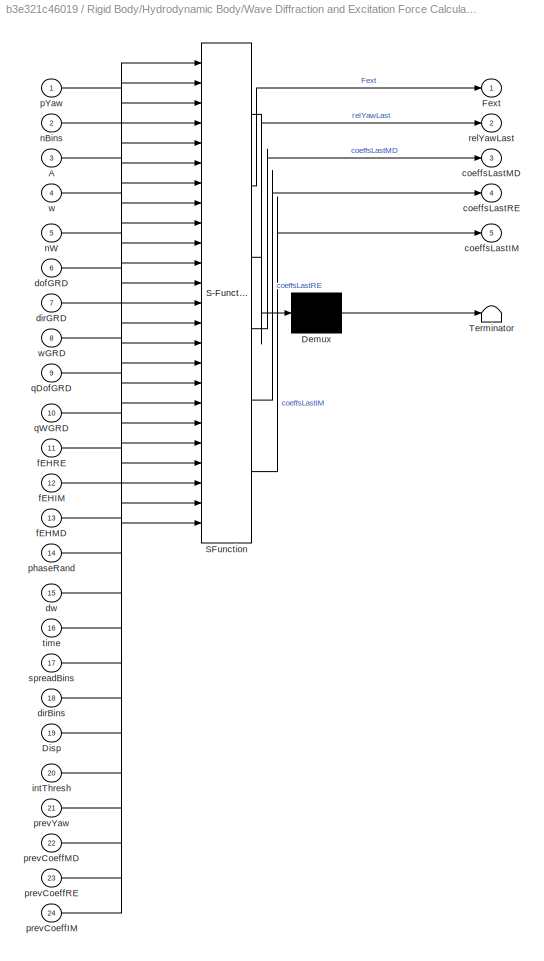
BLOCK [SubSystem] Rigid Body/Hydrodynamic Body/Wave Diffraction and Excitation Force Calculation/Linear Wave Excitation Force Variant Subsystem/Irregular Wave Full Direction/MATLAB Function
  ErrorFcn = Stateflow.Translate.translate
  PermitHierarchicalResolution = ExplicitOnly
  Ports = [24, 5]
  SFBlockType = MATLAB Function
  TreatAsAtomicUnit = on
BLOCK [Demux] Rigid Body/Hydrodynamic Body/Wave Diffraction and Excitation Force Calculation/Linear Wave Excitation Force Variant Subsystem/Irregular Wave Full Direction/MATLAB Function/ Demux 
  Outputs = 1
  Ports = [1, 1]
BLOCK [S-Function] Rigid Body/Hydrodynamic Body/Wave Diffraction and Excitation Force Calculation/Linear Wave Excitation Force Variant Subsystem/Irregular Wave Full Direction/MATLAB Function/ SFunction 
  EnableBusSupport = off
  FunctionName = sf_sfun
  PortCounts = [24 6]
  Ports = [24, 6]
  SFcnIsStateOwnerBlock = off
  SFunctionDeploymentMode = off
  Tag = Stateflow S-Function 30
BLOCK [Terminator] Rigid Body/Hydrodynamic Body/Wave Diffraction and Excitation Force Calculation/Linear Wave Excitation Force Variant Subsystem/Irregular Wave Full Direction/MATLAB Function/ Terminator 
BLOCK [Inport] Rigid Body/Hydrodynamic Body/Wave Diffraction and Excitation Force Calculation/Linear Wave Excitation Force Variant Subsystem/Irregular Wave Full Direction/MATLAB Function/A
  Port = 3
BLOCK [Inport] Rigid Body/Hydrodynamic Body/Wave Diffraction and Excitation Force Calculation/Linear Wave Excitation Force Variant Subsystem/Irregular Wave Full Direction/MATLAB Function/Disp
  Port = 19
BLOCK [Outport] Rigid Body/Hydrodynamic Body/Wave Diffraction and Excitation Force Calculation/Linear Wave Excitation Force Variant Subsystem/Irregular Wave Full Direction/MATLAB Function/Fext
BLOCK [Outport] Rigid Body/Hydrodynamic Body/Wave Diffraction and Excitation Force Calculation/Linear Wave Excitation Force Variant Subsystem/Irregular Wave Full Direction/MATLAB Function/coeffsLastIM
  Port = 5
BLOCK [Outport] Rigid Body/Hydrodynamic Body/Wave Diffraction and Excitation Force Calculation/Linear Wave Excitation Force Variant Subsystem/Irregular Wave Full Direction/MATLAB Function/coeffsLastMD
  Port = 3
BLOCK [Outport] Rigid Body/Hydrodynamic Body/Wave Diffraction and Excitation Force Calculation/Linear Wave Excitation Force Variant Subsystem/Irregular Wave Full Direction/MATLAB Function/coeffsLastRE
  Port = 4
BLOCK [Inport] Rigid Body/Hydrodynamic Body/Wave Diffraction and Excitation Force Calculation/Linear Wave Excitation Force Variant Subsystem/Irregular Wave Full Direction/MATLAB Function/dirBins
  Port = 18
BLOCK [Inport] Rigid Body/Hydrodynamic Body/Wave Diffraction and Excitation Force Calculation/Linear Wave Excitation Force Variant Subsystem/Irregular Wave Full Direction/MATLAB Function/dirGRD
  Port = 7
BLOCK [Inport] Rigid Body/Hydrodynamic Body/Wave Diffraction and Excitation Force Calculation/Linear Wave Excitation Force Variant Subsystem/Irregular Wave Full Direction/MATLAB Function/dofGRD
  Port = 6
BLOCK [Inport] Rigid Body/Hydrodynamic Body/Wave Diffraction and Excitation Force Calculation/Linear Wave Excitation Force Variant Subsystem/Irregular Wave Full Direction/MATLAB Function/dw
  Port = 15
BLOCK [Inport] Rigid Body/Hydrodynamic Body/Wave Diffraction and Excitation Force Calculation/Linear Wave Excitation Force Variant Subsystem/Irregular Wave Full Direction/MATLAB Function/fEHIM
  Port = 12
BLOCK [Inport] Rigid Body/Hydrodynamic Body/Wave Diffraction and Excitation Force Calculation/Linear Wave Excitation Force Variant Subsystem/Irregular Wave Full Direction/MATLAB Function/fEHMD
  Port = 13
BLOCK [Inport] Rigid Body/Hydrodynamic Body/Wave Diffraction and Excitation Force Calculation/Linear Wave Excitation Force Variant Subsystem/Irregular Wave Full Direction/MATLAB Function/fEHRE
  Port = 11
BLOCK [Inport] Rigid Body/Hydrodynamic Body/Wave Diffraction and Excitation Force Calculation/Linear Wave Excitation Force Variant Subsystem/Irregular Wave Full Direction/MATLAB Function/intThresh
  Port = 20
BLOCK [Inport] Rigid Body/Hydrodynamic Body/Wave Diffraction and Excitation Force Calculation/Linear Wave Excitation Force Variant Subsystem/Irregular Wave Full Direction/MATLAB Function/nBins
  Port = 2
BLOCK [Inport] Rigid Body/Hydrodynamic Body/Wave Diffraction and Excitation Force Calculation/Linear Wave Excitation Force Variant Subsystem/Irregular Wave Full Direction/MATLAB Function/nW
  Port = 5
BLOCK [Inport] Rigid Body/Hydrodynamic Body/Wave Diffraction and Excitation Force Calculation/Linear Wave Excitation Force Variant Subsystem/Irregular Wave Full Direction/MATLAB Function/pYaw
BLOCK [Inport] Rigid Body/Hydrodynamic Body/Wave Diffraction and Excitation Force Calculation/Linear Wave Excitation Force Variant Subsystem/Irregular Wave Full Direction/MATLAB Function/phaseRand
  Port = 14
BLOCK [Inport] Rigid Body/Hydrodynamic Body/Wave Diffraction and Excitation Force Calculation/Linear Wave Excitation Force Variant Subsystem/Irregular Wave Full Direction/MATLAB Function/prevCoeffIM
  Port = 24
BLOCK [Inport] Rigid Body/Hydrodynamic Body/Wave Diffraction and Excitation Force Calculation/Linear Wave Excitation Force Variant Subsystem/Irregular Wave Full Direction/MATLAB Function/prevCoeffMD
  Port = 22
BLOCK [Inport] Rigid Body/Hydrodynamic Body/Wave Diffraction and Excitation Force Calculation/Linear Wave Excitation Force Variant Subsystem/Irregular Wave Full Direction/MATLAB Function/prevCoeffRE
  Port = 23
BLOCK [Inport] Rigid Body/Hydrodynamic Body/Wave Diffraction and Excitation Force Calculation/Linear Wave Excitation Force Variant Subsystem/Irregular Wave Full Direction/MATLAB Function/prevYaw
  Port = 21
BLOCK [Inport] Rigid Body/Hydrodynamic Body/Wave Diffraction and Excitation Force Calculation/Linear Wave Excitation Force Variant Subsystem/Irregular Wave Full Direction/MATLAB Function/qDofGRD
  Port = 9
BLOCK [Inport] Rigid Body/Hydrodynamic Body/Wave Diffraction and Excitation Force Calculation/Linear Wave Excitation Force Variant Subsystem/Irregular Wave Full Direction/MATLAB Function/qWGRD
  Port = 10
BLOCK [Outport] Rigid Body/Hydrodynamic Body/Wave Diffraction and Excitation Force Calculation/Linear Wave Excitation Force Variant Subsystem/Irregular Wave Full Direction/MATLAB Function/relYawLast
  Port = 2
BLOCK [Inport] Rigid Body/Hydrodynamic Body/Wave Diffraction and Excitation Force Calculation/Linear Wave Excitation Force Variant Subsystem/Irregular Wave Full Direction/MATLAB Function/spreadBins
  Port = 17
BLOCK [Inport] Rigid Body/Hydrodynamic Body/Wave Diffraction and Excitation Force Calculation/Linear Wave Excitation Force Variant Subsystem/Irregular Wave Full Direction/MATLAB Function/time
  Port = 16
BLOCK [Inport] Rigid Body/Hydrodynamic Body/Wave Diffraction and Excitation Force Calculation/Linear Wave Excitation Force Variant Subsystem/Irregular Wave Full Direction/MATLAB Function/w
  Port = 4
BLOCK [Inport] Rigid Body/Hydrodynamic Body/Wave Diffraction and Excitation Force Calculation/Linear Wave Excitation Force Variant Subsystem/Irregular Wave Full Direction/MATLAB Function/wGRD
  Port = 8
BLOCK [SubSystem] Rigid Body/Hydrodynamic Body/Wave Diffraction and Excitation Force Calculation/Linear Wave Excitation Force Variant Subsystem/Irregular Wave Full Direction/MATLAB Function1
  ErrorFcn = Stateflow.Translate.translate
  PermitHierarchicalResolution = ExplicitOnly
  Ports = [5, 1]
  SFBlockType = MATLAB Function
  TreatAsAtomicUnit = on
BLOCK [Demux] Rigid Body/Hydrodynamic Body/Wave Diffraction and Excitation Force Calculation/Linear Wave Excitation Force Variant Subsystem/Irregular Wave Full Direction/MATLAB Function1/ Demux 
  Outputs = 1
  Ports = [1, 1]
BLOCK [S-Function] Rigid Body/Hydrodynamic Body/Wave Diffraction and Excitation Force Calculation/Linear Wave Excitation Force Variant Subsystem/Irregular Wave Full Direction/MATLAB Function1/ SFunction 
  EnableBusSupport = off
  FunctionName = sf_sfun
  PortCounts = [5 2]
  Ports = [5, 2]
  SFcnIsStateOwnerBlock = off
  SFunctionDeploymentMode = off
  Tag = Stateflow S-Function 31
BLOCK [Terminator] Rigid Body/Hydrodynamic Body/Wave Diffraction and Excitation Force Calculation/Linear Wave Excitation Force Variant Subsystem/Irregular Wave Full Direction/MATLAB Function1/ Terminator 
BLOCK [Inport] Rigid Body/Hydrodynamic Body/Wave Diffraction and Excitation Force Calculation/Linear Wave Excitation Force Variant Subsystem/Irregular Wave Full Direction/MATLAB Function1/disp
BLOCK [Outport] Rigid Body/Hydrodynamic Body/Wave Diffraction and Excitation Force Calculation/Linear Wave Excitation Force Variant Subsystem/Irregular Wave Full Direction/MATLAB Function1/dispPhase
BLOCK [Inport] Rigid Body/Hydrodynamic Body/Wave Diffraction and Excitation Force Calculation/Linear Wave Excitation Force Variant Subsystem/Irregular Wave Full Direction/MATLAB Function1/enable
  Port = 2
BLOCK [Inport] Rigid Body/Hydrodynamic Body/Wave Diffraction and Excitation Force Calculation/Linear Wave Excitation Force Variant Subsystem/Irregular Wave Full Direction/MATLAB Function1/frequency
  Port = 3
BLOCK [Inport] Rigid Body/Hydrodynamic Body/Wave Diffraction and Excitation Force Calculation/Linear Wave Excitation Force Variant Subsystem/Irregular Wave Full Direction/MATLAB Function1/nBins
  Port = 5
BLOCK [Inport] Rigid Body/Hydrodynamic Body/Wave Diffraction and Excitation Force Calculation/Linear Wave Excitation Force Variant Subsystem/Irregular Wave Full Direction/MATLAB Function1/wavenumber
  Port = 4
BLOCK [Memory] Rigid Body/Hydrodynamic Body/Wave Diffraction and Excitation Force Calculation/Linear Wave Excitation Force Variant Subsystem/Irregular Wave Full Direction/Memory
  InheritSampleTime = on
  InitialCondition = zeros(Nwave.freqDepDirection.nBins,length(Nwave.omega),6)
  LinearizeAsDelay = on
BLOCK [Memory] Rigid Body/Hydrodynamic Body/Wave Diffraction and Excitation Force Calculation/Linear Wave Excitation Force Variant Subsystem/Irregular Wave Full Direction/Memory1
  InheritSampleTime = on
  InitialCondition = zeros(Nwave.freqDepDirection.nBins,length(Nwave.omega),6)
  LinearizeAsDelay = on
BLOCK [Memory] Rigid Body/Hydrodynamic Body/Wave Diffraction and Excitation Force Calculation/Linear Wave Excitation Force Variant Subsystem/Irregular Wave Full Direction/Memory2
  InheritSampleTime = on
  InitialCondition = zeros(Nwave.freqDepDirection.nBins,length(Nwave.omega),6)
  LinearizeAsDelay = on
BLOCK [Memory] Rigid Body/Hydrodynamic Body/Wave Diffraction and Excitation Force Calculation/Linear Wave Excitation Force Variant Subsystem/Irregular Wave Full Direction/Memory3
  InheritSampleTime = on
  InitialCondition = zeros(length(Nwave.omega),Nwave.freqDepDirection.nBins)
  LinearizeAsDelay = on
BLOCK [Constant] Rigid Body/Hydrodynamic Body/Wave Diffraction and Excitation Force Calculation/Linear Wave Excitation Force Variant Subsystem/Irregular Wave Full Direction/Random Phase
  Value = Nwave.phase
  VectorParams1D = off
BLOCK [Selector] Rigid Body/Hydrodynamic Body/Wave Diffraction and Excitation Force Calculation/Linear Wave Excitation Force Variant Subsystem/Irregular Wave Full Direction/Selector
  IndexOptions = Index vector (dialog)
  Indices = [1 2]
  OutputSizes = 1
  Ports = [1, 1]
BLOCK [Sum] Rigid Body/Hydrodynamic Body/Wave Diffraction and Excitation Force Calculation/Linear Wave Excitation Force Variant Subsystem/Irregular Wave Full Direction/Sum
  Inputs = |++
  Ports = [2, 1]
BLOCK [Inport] Rigid Body/Hydrodynamic Body/Wave Diffraction and Excitation Force Calculation/Linear Wave Excitation Force Variant Subsystem/Irregular Wave Full Direction/Time
BLOCK [Math] Rigid Body/Hydrodynamic Body/Wave Diffraction and Excitation Force Calculation/Linear Wave Excitation Force Variant Subsystem/Irregular Wave Full Direction/Transpose1
  Operator = transpose
  Ports = [1, 1]
BLOCK [Constant] Rigid Body/Hydrodynamic Body/Wave Diffraction and Excitation Force Calculation/Linear Wave Excitation Force Variant Subsystem/Irregular Wave Full Direction/Wave Frequency
  Value = Nwave.omega
  VectorParams1D = off
BLOCK [Constant] Rigid Body/Hydrodynamic Body/Wave Diffraction and Excitation Force Calculation/Linear Wave Excitation Force Variant Subsystem/Irregular Wave Full Direction/Wave Frequency1
  Value = Nwave.omega
  VectorParams1D = off
BLOCK [Constant] Rigid Body/Hydrodynamic Body/Wave Diffraction and Excitation Force Calculation/Linear Wave Excitation Force Variant Subsystem/Irregular Wave Full Direction/Wave Frequency2
  Value = Nwave.freqDepDirection.nBins
  VectorParams1D = off
BLOCK [Constant] Rigid Body/Hydrodynamic Body/Wave Diffraction and Excitation Force Calculation/Linear Wave Excitation Force Variant Subsystem/Irregular Wave Full Direction/Wave Frequency3
  Value = length(Nwave.omega)
  VectorParams1D = off
BLOCK [Constant] Rigid Body/Hydrodynamic Body/Wave Diffraction and Excitation Force Calculation/Linear Wave Excitation Force Variant Subsystem/Irregular Wave Full Direction/Wave Number1
  Value = Nwave.wavenumber
BLOCK [Constant] Rigid Body/Hydrodynamic Body/Wave Diffraction and Excitation Force Calculation/Linear Wave Excitation Force Variant Subsystem/Irregular Wave Full Direction/Wave Spectrum
  Value = Nwave.amplitude
  VectorParams1D = off
BLOCK [Constant] Rigid Body/Hydrodynamic Body/Wave Diffraction and Excitation Force Calculation/Linear Wave Excitation Force Variant Subsystem/Irregular Wave Full Direction/Wave direction spread
  Value = Nwave.freqDepDirection.spreadWeights
  VectorParams1D = off
BLOCK [Constant] Rigid Body/Hydrodynamic Body/Wave Diffraction and Excitation Force Calculation/Linear Wave Excitation Force Variant Subsystem/Irregular Wave Full Direction/Wave direction spread1
  Value = Nwave.freqDepDirection.dirBins
  VectorParams1D = off
BLOCK [Constant] Rigid Body/Hydrodynamic Body/Wave Diffraction and Excitation Force Calculation/Linear Wave Excitation Force Variant Subsystem/Irregular Wave Full Direction/Wave direction1
  Value = Nwave.freqDepDirection.dirBins(1,:)
  VectorParams1D = off
BLOCK [Inport] Rigid Body/Hydrodynamic Body/Wave Diffraction and Excitation Force Calculation/Linear Wave Excitation Force Variant Subsystem/Irregular Wave Full Direction/body_hydroForce
  Port = 3
BLOCK [SubSystem] Rigid Body/Hydrodynamic Body/Wave Diffraction and Excitation Force Calculation/Linear Wave Excitation Force Variant Subsystem/Irregular Wave NonLinearYaw
  Ports = [3, 1]
  VariantControl = sv_irregularWavesYaw_b1
BLOCK [BusSelector] Rigid Body/Hydrodynamic Body/Wave Diffraction and Excitation Force Calculation/Linear Wave Excitation Force Variant Subsystem/Irregular Wave NonLinearYaw/Bus Selector
  OutputSignals = fExt.dofGrd,fExt.dirGrd,fExt.wGrd,fExt.fEHRE,fExt.fEHIM,fExt.fEHMD
  Ports = [1, 6]
BLOCK [Constant] Rigid Body/Hydrodynamic Body/Wave Diffraction and Excitation Force Calculation/Linear Wave Excitation Force Variant Subsystem/Irregular Wave NonLinearYaw/Constant
  Value = body.yaw.threshold
BLOCK [Inport] Rigid Body/Hydrodynamic Body/Wave Diffraction and Excitation Force Calculation/Linear Wave Excitation Force Variant Subsystem/Irregular Wave NonLinearYaw/Displacement
  Port = 2
BLOCK [Constant] Rigid Body/Hydrodynamic Body/Wave Diffraction and Excitation Force Calculation/Linear Wave Excitation Force Variant Subsystem/Irregular Wave NonLinearYaw/Displacement Phase Enable1
  Value = body.largeXYDisplacement.option
BLOCK [Constant] Rigid Body/Hydrodynamic Body/Wave Diffraction and Excitation Force Calculation/Linear Wave Excitation Force Variant Subsystem/Irregular Wave NonLinearYaw/Frequency Spacing Delta Omega
  Value = Nwave.dOmega
  VectorParams1D = off
BLOCK [Outport] Rigid Body/Hydrodynamic Body/Wave Diffraction and Excitation Force Calculation/Linear Wave Excitation Force Variant Subsystem/Irregular Wave NonLinearYaw/Linear Excitation
BLOCK [SubSystem] Rigid Body/Hydrodynamic Body/Wave Diffraction and Excitation Force Calculation/Linear Wave Excitation Force Variant Subsystem/Irregular Wave NonLinearYaw/MATLAB Function
  ErrorFcn = Stateflow.Translate.translate
  PermitHierarchicalResolution = ExplicitOnly
  Ports = [19, 5]
  SFBlockType = MATLAB Function
  TreatAsAtomicUnit = on
BLOCK [Demux] Rigid Body/Hydrodynamic Body/Wave Diffraction and Excitation Force Calculation/Linear Wave Excitation Force Variant Subsystem/Irregular Wave NonLinearYaw/MATLAB Function/ Demux 
  Outputs = 1
  Ports = [1, 1]
BLOCK [S-Function] Rigid Body/Hydrodynamic Body/Wave Diffraction and Excitation Force Calculation/Linear Wave Excitation Force Variant Subsystem/Irregular Wave NonLinearYaw/MATLAB Function/ SFunction 
  EnableBusSupport = off
  FunctionName = sf_sfun
  PortCounts = [19 6]
  Ports = [19, 6]
  SFcnIsStateOwnerBlock = off
  SFunctionDeploymentMode = off
  Tag = Stateflow S-Function 3
BLOCK [Terminator] Rigid Body/Hydrodynamic Body/Wave Diffraction and Excitation Force Calculation/Linear Wave Excitation Force Variant Subsystem/Irregular Wave NonLinearYaw/MATLAB Function/ Terminator 
BLOCK [Inport] Rigid Body/Hydrodynamic Body/Wave Diffraction and Excitation Force Calculation/Linear Wave Excitation Force Variant Subsystem/Irregular Wave NonLinearYaw/MATLAB Function/A
BLOCK [Inport] Rigid Body/Hydrodynamic Body/Wave Diffraction and Excitation Force Calculation/Linear Wave Excitation Force Variant Subsystem/Irregular Wave NonLinearYaw/MATLAB Function/Disp
  Port = 14
BLOCK [Outport] Rigid Body/Hydrodynamic Body/Wave Diffraction and Excitation Force Calculation/Linear Wave Excitation Force Variant Subsystem/Irregular Wave NonLinearYaw/MATLAB Function/Fext
BLOCK [Outport] Rigid Body/Hydrodynamic Body/Wave Diffraction and Excitation Force Calculation/Linear Wave Excitation Force Variant Subsystem/Irregular Wave NonLinearYaw/MATLAB Function/coeffsLastIM
  Port = 5
BLOCK [Outport] Rigid Body/Hydrodynamic Body/Wave Diffraction and Excitation Force Calculation/Linear Wave Excitation Force Variant Subsystem/Irregular Wave NonLinearYaw/MATLAB Function/coeffsLastMD
  Port = 3
BLOCK [Outport] Rigid Body/Hydrodynamic Body/Wave Diffraction and Excitation Force Calculation/Linear Wave Excitation Force Variant Subsystem/Irregular Wave NonLinearYaw/MATLAB Function/coeffsLastRE
  Port = 4
BLOCK [Inport] Rigid Body/Hydrodynamic Body/Wave Diffraction and Excitation Force Calculation/Linear Wave Excitation Force Variant Subsystem/Irregular Wave NonLinearYaw/MATLAB Function/dirGRD
  Port = 4
BLOCK [Inport] Rigid Body/Hydrodynamic Body/Wave Diffraction and Excitation Force Calculation/Linear Wave Excitation Force Variant Subsystem/Irregular Wave NonLinearYaw/MATLAB Function/direction
  Port = 12
BLOCK [Inport] Rigid Body/Hydrodynamic Body/Wave Diffraction and Excitation Force Calculation/Linear Wave Excitation Force Variant Subsystem/Irregular Wave NonLinearYaw/MATLAB Function/dofGRD
  Port = 3
BLOCK [Inport] Rigid Body/Hydrodynamic Body/Wave Diffraction and Excitation Force Calculation/Linear Wave Excitation Force Variant Subsystem/Irregular Wave NonLinearYaw/MATLAB Function/dw
  Port = 10
BLOCK [Inport] Rigid Body/Hydrodynamic Body/Wave Diffraction and Excitation Force Calculation/Linear Wave Excitation Force Variant Subsystem/Irregular Wave NonLinearYaw/MATLAB Function/fEHIM
  Port = 7
BLOCK [Inport] Rigid Body/Hydrodynamic Body/Wave Diffraction and Excitation Force Calculation/Linear Wave Excitation Force Variant Subsystem/Irregular Wave NonLinearYaw/MATLAB Function/fEHMD
  Port = 8
BLOCK [Inport] Rigid Body/Hydrodynamic Body/Wave Diffraction and Excitation Force Calculation/Linear Wave Excitation Force Variant Subsystem/Irregular Wave NonLinearYaw/MATLAB Function/fEHRE
  Port = 6
BLOCK [Inport] Rigid Body/Hydrodynamic Body/Wave Diffraction and Excitation Force Calculation/Linear Wave Excitation Force Variant Subsystem/Irregular Wave NonLinearYaw/MATLAB Function/intThresh
  Port = 15
BLOCK [Inport] Rigid Body/Hydrodynamic Body/Wave Diffraction and Excitation Force Calculation/Linear Wave Excitation Force Variant Subsystem/Irregular Wave NonLinearYaw/MATLAB Function/phaseRand
  Port = 9
BLOCK [Inport] Rigid Body/Hydrodynamic Body/Wave Diffraction and Excitation Force Calculation/Linear Wave Excitation Force Variant Subsystem/Irregular Wave NonLinearYaw/MATLAB Function/prevCoeffIM
  Port = 19
BLOCK [Inport] Rigid Body/Hydrodynamic Body/Wave Diffraction and Excitation Force Calculation/Linear Wave Excitation Force Variant Subsystem/Irregular Wave NonLinearYaw/MATLAB Function/prevCoeffMD
  Port = 17
BLOCK [Inport] Rigid Body/Hydrodynamic Body/Wave Diffraction and Excitation Force Calculation/Linear Wave Excitation Force Variant Subsystem/Irregular Wave NonLinearYaw/MATLAB Function/prevCoeffRE
  Port = 18
BLOCK [Inport] Rigid Body/Hydrodynamic Body/Wave Diffraction and Excitation Force Calculation/Linear Wave Excitation Force Variant Subsystem/Irregular Wave NonLinearYaw/MATLAB Function/prevYaw
  Port = 16
BLOCK [Outport] Rigid Body/Hydrodynamic Body/Wave Diffraction and Excitation Force Calculation/Linear Wave Excitation Force Variant Subsystem/Irregular Wave NonLinearYaw/MATLAB Function/relYawLast
  Port = 2
BLOCK [Inport] Rigid Body/Hydrodynamic Body/Wave Diffraction and Excitation Force Calculation/Linear Wave Excitation Force Variant Subsystem/Irregular Wave NonLinearYaw/MATLAB Function/spread
  Port = 13
BLOCK [Inport] Rigid Body/Hydrodynamic Body/Wave Diffraction and Excitation Force Calculation/Linear Wave Excitation Force Variant Subsystem/Irregular Wave NonLinearYaw/MATLAB Function/time
  Port = 11
BLOCK [Inport] Rigid Body/Hydrodynamic Body/Wave Diffraction and Excitation Force Calculation/Linear Wave Excitation Force Variant Subsystem/Irregular Wave NonLinearYaw/MATLAB Function/w
  Port = 2
BLOCK [Inport] Rigid Body/Hydrodynamic Body/Wave Diffraction and Excitation Force Calculation/Linear Wave Excitation Force Variant Subsystem/Irregular Wave NonLinearYaw/MATLAB Function/wGRD
  Port = 5
BLOCK [SubSystem] Rigid Body/Hydrodynamic Body/Wave Diffraction and Excitation Force Calculation/Linear Wave Excitation Force Variant Subsystem/Irregular Wave NonLinearYaw/MATLAB Function1
  ErrorFcn = Stateflow.Translate.translate
  PermitHierarchicalResolution = ExplicitOnly
  Ports = [5, 1]
  SFBlockType = MATLAB Function
  TreatAsAtomicUnit = on
BLOCK [Demux] Rigid Body/Hydrodynamic Body/Wave Diffraction and Excitation Force Calculation/Linear Wave Excitation Force Variant Subsystem/Irregular Wave NonLinearYaw/MATLAB Function1/ Demux 
  Outputs = 1
  Ports = [1, 1]
BLOCK [S-Function] Rigid Body/Hydrodynamic Body/Wave Diffraction and Excitation Force Calculation/Linear Wave Excitation Force Variant Subsystem/Irregular Wave NonLinearYaw/MATLAB Function1/ SFunction 
  EnableBusSupport = off
  FunctionName = sf_sfun
  PortCounts = [5 2]
  Ports = [5, 2]
  SFcnIsStateOwnerBlock = off
  SFunctionDeploymentMode = off
  Tag = Stateflow S-Function 28
BLOCK [Terminator] Rigid Body/Hydrodynamic Body/Wave Diffraction and Excitation Force Calculation/Linear Wave Excitation Force Variant Subsystem/Irregular Wave NonLinearYaw/MATLAB Function1/ Terminator 
BLOCK [Inport] Rigid Body/Hydrodynamic Body/Wave Diffraction and Excitation Force Calculation/Linear Wave Excitation Force Variant Subsystem/Irregular Wave NonLinearYaw/MATLAB Function1/direction
  Port = 5
BLOCK [Inport] Rigid Body/Hydrodynamic Body/Wave Diffraction and Excitation Force Calculation/Linear Wave Excitation Force Variant Subsystem/Irregular Wave NonLinearYaw/MATLAB Function1/disp
BLOCK [Outport] Rigid Body/Hydrodynamic Body/Wave Diffraction and Excitation Force Calculation/Linear Wave Excitation Force Variant Subsystem/Irregular Wave NonLinearYaw/MATLAB Function1/dispPhase
BLOCK [Inport] Rigid Body/Hydrodynamic Body/Wave Diffraction and Excitation Force Calculation/Linear Wave Excitation Force Variant Subsystem/Irregular Wave NonLinearYaw/MATLAB Function1/enable
  Port = 2
BLOCK [Inport] Rigid Body/Hydrodynamic Body/Wave Diffraction and Excitation Force Calculation/Linear Wave Excitation Force Variant Subsystem/Irregular Wave NonLinearYaw/MATLAB Function1/frequency
  Port = 3
BLOCK [Inport] Rigid Body/Hydrodynamic Body/Wave Diffraction and Excitation Force Calculation/Linear Wave Excitation Force Variant Subsystem/Irregular Wave NonLinearYaw/MATLAB Function1/wavenumber
  Port = 4
BLOCK [Memory] Rigid Body/Hydrodynamic Body/Wave Diffraction and Excitation Force Calculation/Linear Wave Excitation Force Variant Subsystem/Irregular Wave NonLinearYaw/Memory
  InheritSampleTime = on
  LinearizeAsDelay = on
BLOCK [Memory] Rigid Body/Hydrodynamic Body/Wave Diffraction and Excitation Force Calculation/Linear Wave Excitation Force Variant Subsystem/Irregular Wave NonLinearYaw/Memory1
  InheritSampleTime = on
  LinearizeAsDelay = on
BLOCK [Memory] Rigid Body/Hydrodynamic Body/Wave Diffraction and Excitation Force Calculation/Linear Wave Excitation Force Variant Subsystem/Irregular Wave NonLinearYaw/Memory2
  InheritSampleTime = on
  LinearizeAsDelay = on
BLOCK [Memory] Rigid Body/Hydrodynamic Body/Wave Diffraction and Excitation Force Calculation/Linear Wave Excitation Force Variant Subsystem/Irregular Wave NonLinearYaw/Memory3
  InheritSampleTime = on
  LinearizeAsDelay = on
BLOCK [Constant] Rigid Body/Hydrodynamic Body/Wave Diffraction and Excitation Force Calculation/Linear Wave Excitation Force Variant Subsystem/Irregular Wave NonLinearYaw/Random Phase
  Value = Nwave.phase
  VectorParams1D = off
BLOCK [Selector] Rigid Body/Hydrodynamic Body/Wave Diffraction and Excitation Force Calculation/Linear Wave Excitation Force Variant Subsystem/Irregular Wave NonLinearYaw/Selector
  IndexOptions = Index vector (dialog)
  Indices = [1 2]
  OutputSizes = 1
  Ports = [1, 1]
BLOCK [Sum] Rigid Body/Hydrodynamic Body/Wave Diffraction and Excitation Force Calculation/Linear Wave Excitation Force Variant Subsystem/Irregular Wave NonLinearYaw/Sum
  Inputs = |++
  Ports = [2, 1]
BLOCK [Inport] Rigid Body/Hydrodynamic Body/Wave Diffraction and Excitation Force Calculation/Linear Wave Excitation Force Variant Subsystem/Irregular Wave NonLinearYaw/Time
BLOCK [Constant] Rigid Body/Hydrodynamic Body/Wave Diffraction and Excitation Force Calculation/Linear Wave Excitation Force Variant Subsystem/Irregular Wave NonLinearYaw/Wave Frequency
  Value = Nwave.omega
  VectorParams1D = off
BLOCK [Constant] Rigid Body/Hydrodynamic Body/Wave Diffraction and Excitation Force Calculation/Linear Wave Excitation Force Variant Subsystem/Irregular Wave NonLinearYaw/Wave Frequency1
  Value = Nwave.omega
  VectorParams1D = off
BLOCK [Constant] Rigid Body/Hydrodynamic Body/Wave Diffraction and Excitation Force Calculation/Linear Wave Excitation Force Variant Subsystem/Irregular Wave NonLinearYaw/Wave Number1
  Value = Nwave.wavenumber
BLOCK [Constant] Rigid Body/Hydrodynamic Body/Wave Diffraction and Excitation Force Calculation/Linear Wave Excitation Force Variant Subsystem/Irregular Wave NonLinearYaw/Wave Spectrum
  Value = Nwave.amplitude
  VectorParams1D = off
BLOCK [Constant] Rigid Body/Hydrodynamic Body/Wave Diffraction and Excitation Force Calculation/Linear Wave Excitation Force Variant Subsystem/Irregular Wave NonLinearYaw/Wave direction
  Value = wrapTo180(Nwave.direction)
  VectorParams1D = off
BLOCK [Constant] Rigid Body/Hydrodynamic Body/Wave Diffraction and Excitation Force Calculation/Linear Wave Excitation Force Variant Subsystem/Irregular Wave NonLinearYaw/Wave direction spread
  Value = Nwave.spread
  VectorParams1D = off
BLOCK [Constant] Rigid Body/Hydrodynamic Body/Wave Diffraction and Excitation Force Calculation/Linear Wave Excitation Force Variant Subsystem/Irregular Wave NonLinearYaw/Wave direction1
  Value = Nwave.direction
  VectorParams1D = off
BLOCK [Inport] Rigid Body/Hydrodynamic Body/Wave Diffraction and Excitation Force Calculation/Linear Wave Excitation Force Variant Subsystem/Irregular Wave NonLinearYaw/body_hydroForce
  Port = 3
BLOCK [Outport] Rigid Body/Hydrodynamic Body/Wave Diffraction and Excitation Force Calculation/Linear Wave Excitation Force Variant Subsystem/Linear Excitation
BLOCK [SubSystem] Rigid Body/Hydrodynamic Body/Wave Diffraction and Excitation Force Calculation/Linear Wave Excitation Force Variant Subsystem/No Wave Excitation Force
  Ports = [0, 1]
  VariantControl = sv_noWave
BLOCK [Constant] Rigid Body/Hydrodynamic Body/Wave Diffraction and Excitation Force Calculation/Linear Wave Excitation Force Variant Subsystem/No Wave Excitation Force/Constant
  Value = zeros(1,body.dof)
BLOCK [Outport] Rigid Body/Hydrodynamic Body/Wave Diffraction and Excitation Force Calculation/Linear Wave Excitation Force Variant Subsystem/No Wave Excitation Force/Linear Excitation
BLOCK [SubSystem] Rigid Body/Hydrodynamic Body/Wave Diffraction and Excitation Force Calculation/Linear Wave Excitation Force Variant Subsystem/Regular Wave Excitation Force
  Ports = [3, 1]
  VariantControl = sv_regularWaves_b1
BLOCK [Sum] Rigid Body/Hydrodynamic Body/Wave Diffraction and Excitation Force Calculation/Linear Wave Excitation Force Variant Subsystem/Regular Wave Excitation Force/Add
  IconShape = rectangular
  Inputs = +++
  Ports = [3, 1]
BLOCK [Sum] Rigid Body/Hydrodynamic Body/Wave Diffraction and Excitation Force Calculation/Linear Wave Excitation Force Variant Subsystem/Regular Wave Excitation Force/Add1
  IconShape = rectangular
  Inputs = ++-
  Ports = [3, 1]
BLOCK [Sum] Rigid Body/Hydrodynamic Body/Wave Diffraction and Excitation Force Calculation/Linear Wave Excitation Force Variant Subsystem/Regular Wave Excitation Force/Add2
  IconShape = rectangular
  Ports = [2, 1]
BLOCK [BusSelector] Rigid Body/Hydrodynamic Body/Wave Diffraction and Excitation Force Calculation/Linear Wave Excitation Force Variant Subsystem/Regular Wave Excitation Force/Bus Selector
  OutputSignals = fExt.md,fExt.re,fExt.im
  Ports = [1, 3]
BLOCK [Constant] Rigid Body/Hydrodynamic Body/Wave Diffraction and Excitation Force Calculation/Linear Wave Excitation Force Variant Subsystem/Regular Wave Excitation Force/Constant
  Value = pi/2
BLOCK [Inport] Rigid Body/Hydrodynamic Body/Wave Diffraction and Excitation Force Calculation/Linear Wave Excitation Force Variant Subsystem/Regular Wave Excitation Force/Displacement
  Port = 2
BLOCK [Constant] Rigid Body/Hydrodynamic Body/Wave Diffraction and Excitation Force Calculation/Linear Wave Excitation Force Variant Subsystem/Regular Wave Excitation Force/Displacement Phase Enable1
  Value = body.largeXYDisplacement.option
BLOCK [Outport] Rigid Body/Hydrodynamic Body/Wave Diffraction and Excitation Force Calculation/Linear Wave Excitation Force Variant Subsystem/Regular Wave Excitation Force/Linear Excitation
BLOCK [SubSystem] Rigid Body/Hydrodynamic Body/Wave Diffraction and Excitation Force Calculation/Linear Wave Excitation Force Variant Subsystem/Regular Wave Excitation Force/MATLAB Function1
  ErrorFcn = Stateflow.Translate.translate
  PermitHierarchicalResolution = ExplicitOnly
  Ports = [5, 1]
  SFBlockType = MATLAB Function
  TreatAsAtomicUnit = on
BLOCK [Demux] Rigid Body/Hydrodynamic Body/Wave Diffraction and Excitation Force Calculation/Linear Wave Excitation Force Variant Subsystem/Regular Wave Excitation Force/MATLAB Function1/ Demux 
  Outputs = 1
  Ports = [1, 1]
BLOCK [S-Function] Rigid Body/Hydrodynamic Body/Wave Diffraction and Excitation Force Calculation/Linear Wave Excitation Force Variant Subsystem/Regular Wave Excitation Force/MATLAB Function1/ SFunction 
  EnableBusSupport = off
  FunctionName = sf_sfun
  PortCounts = [5 2]
  Ports = [5, 2]
  SFcnIsStateOwnerBlock = off
  SFunctionDeploymentMode = off
  Tag = Stateflow S-Function 9
BLOCK [Terminator] Rigid Body/Hydrodynamic Body/Wave Diffraction and Excitation Force Calculation/Linear Wave Excitation Force Variant Subsystem/Regular Wave Excitation Force/MATLAB Function1/ Terminator 
BLOCK [Inport] Rigid Body/Hydrodynamic Body/Wave Diffraction and Excitation Force Calculation/Linear Wave Excitation Force Variant Subsystem/Regular Wave Excitation Force/MATLAB Function1/direction
  Port = 5
BLOCK [Inport] Rigid Body/Hydrodynamic Body/Wave Diffraction and Excitation Force Calculation/Linear Wave Excitation Force Variant Subsystem/Regular Wave Excitation Force/MATLAB Function1/disp
BLOCK [Outport] Rigid Body/Hydrodynamic Body/Wave Diffraction and Excitation Force Calculation/Linear Wave Excitation Force Variant Subsystem/Regular Wave Excitation Force/MATLAB Function1/dispPhase
BLOCK [Inport] Rigid Body/Hydrodynamic Body/Wave Diffraction and Excitation Force Calculation/Linear Wave Excitation Force Variant Subsystem/Regular Wave Excitation Force/MATLAB Function1/enable
  Port = 2
BLOCK [Inport] Rigid Body/Hydrodynamic Body/Wave Diffraction and Excitation Force Calculation/Linear Wave Excitation Force Variant Subsystem/Regular Wave Excitation Force/MATLAB Function1/frequency
  Port = 3
BLOCK [Inport] Rigid Body/Hydrodynamic Body/Wave Diffraction and Excitation Force Calculation/Linear Wave Excitation Force Variant Subsystem/Regular Wave Excitation Force/MATLAB Function1/wavenumber
  Port = 4
BLOCK [Product] Rigid Body/Hydrodynamic Body/Wave Diffraction and Excitation Force Calculation/Linear Wave Excitation Force Variant Subsystem/Regular Wave Excitation Force/Product
  Ports = [2, 1]
BLOCK [Product] Rigid Body/Hydrodynamic Body/Wave Diffraction and Excitation Force Calculation/Linear Wave Excitation Force Variant Subsystem/Regular Wave Excitation Force/Product1
  Inputs = 3
  Ports = [3, 1]
BLOCK [Product] Rigid Body/Hydrodynamic Body/Wave Diffraction and Excitation Force Calculation/Linear Wave Excitation Force Variant Subsystem/Regular Wave Excitation Force/Product2
  Inputs = 3
  Ports = [3, 1]
BLOCK [Product] Rigid Body/Hydrodynamic Body/Wave Diffraction and Excitation Force Calculation/Linear Wave Excitation Force Variant Subsystem/Regular Wave Excitation Force/Product3
  Ports = [2, 1]
BLOCK [Selector] Rigid Body/Hydrodynamic Body/Wave Diffraction and Excitation Force Calculation/Linear Wave Excitation Force Variant Subsystem/Regular Wave Excitation Force/Selector
  IndexOptions = Index vector (dialog)
  Indices = [1 2]
  OutputSizes = 1
  Ports = [1, 1]
BLOCK [Sin] Rigid Body/Hydrodynamic Body/Wave Diffraction and Excitation Force Calculation/Linear Wave Excitation Force Variant Subsystem/Regular Wave Excitation Force/Sine Wave Function
  Ports = [1, 1]
  SampleTime = 0
  TimeSource = Use external signal
BLOCK [Sin] Rigid Body/Hydrodynamic Body/Wave Diffraction and Excitation Force Calculation/Linear Wave Excitation Force Variant Subsystem/Regular Wave Excitation Force/Sine Wave Function1
  Ports = [1, 1]
  SampleTime = 0
  TimeSource = Use external signal
BLOCK [Inport] Rigid Body/Hydrodynamic Body/Wave Diffraction and Excitation Force Calculation/Linear Wave Excitation Force Variant Subsystem/Regular Wave Excitation Force/Time
BLOCK [Constant] Rigid Body/Hydrodynamic Body/Wave Diffraction and Excitation Force Calculation/Linear Wave Excitation Force Variant Subsystem/Regular Wave Excitation Force/Wave Amplitude
  Value = Nwave.amplitude(1,:)
BLOCK [Constant] Rigid Body/Hydrodynamic Body/Wave Diffraction and Excitation Force Calculation/Linear Wave Excitation Force Variant Subsystem/Regular Wave Excitation Force/Wave Amplitude1
  Value = Nwave.amplitude(1,:).*Nwave.amplitude(1,:)
BLOCK [Constant] Rigid Body/Hydrodynamic Body/Wave Diffraction and Excitation Force Calculation/Linear Wave Excitation Force Variant Subsystem/Regular Wave Excitation Force/Wave Frequency
  Value = Nwave.omega(1,:)
BLOCK [Constant] Rigid Body/Hydrodynamic Body/Wave Diffraction and Excitation Force Calculation/Linear Wave Excitation Force Variant Subsystem/Regular Wave Excitation Force/Wave Frequency1
  Value = Nwave.omega
  VectorParams1D = off
BLOCK [Constant] Rigid Body/Hydrodynamic Body/Wave Diffraction and Excitation Force Calculation/Linear Wave Excitation Force Variant Subsystem/Regular Wave Excitation Force/Wave Number
  Value = Nwave.wavenumber
BLOCK [Constant] Rigid Body/Hydrodynamic Body/Wave Diffraction and Excitation Force Calculation/Linear Wave Excitation Force Variant Subsystem/Regular Wave Excitation Force/Wave direction
  Value = Nwave.direction
  VectorParams1D = off
BLOCK [Inport] Rigid Body/Hydrodynamic Body/Wave Diffraction and Excitation Force Calculation/Linear Wave Excitation Force Variant Subsystem/Regular Wave Excitation Force/body_hydroForce
  Port = 3
BLOCK [SubSystem] Rigid Body/Hydrodynamic Body/Wave Diffraction and Excitation Force Calculation/Linear Wave Excitation Force Variant Subsystem/Regular Wave NonLinear Yaw
  Ports = [3, 1]
  VariantControl = sv_regularWavesYaw_b1
BLOCK [BusSelector] Rigid Body/Hydrodynamic Body/Wave Diffraction and Excitation Force Calculation/Linear Wave Excitation Force Variant Subsystem/Regular Wave NonLinear Yaw/Bus Selector
  OutputSignals = fExt.dofGrd,fExt.dirGrd,fExt.fEHRE,fExt.fEHIM,fExt.fEHMD
  Ports = [1, 5]
BLOCK [Constant] Rigid Body/Hydrodynamic Body/Wave Diffraction and Excitation Force Calculation/Linear Wave Excitation Force Variant Subsystem/Regular Wave NonLinear Yaw/Constant
  Value = body.yaw.threshold
BLOCK [Inport] Rigid Body/Hydrodynamic Body/Wave Diffraction and Excitation Force Calculation/Linear Wave Excitation Force Variant Subsystem/Regular Wave NonLinear Yaw/Displacement
  Port = 2
BLOCK [Constant] Rigid Body/Hydrodynamic Body/Wave Diffraction and Excitation Force Calculation/Linear Wave Excitation Force Variant Subsystem/Regular Wave NonLinear Yaw/Displacement Phase Enable1
  Value = body.largeXYDisplacement.option
BLOCK [Outport] Rigid Body/Hydrodynamic Body/Wave Diffraction and Excitation Force Calculation/Linear Wave Excitation Force Variant Subsystem/Regular Wave NonLinear Yaw/Linear Excitation
BLOCK [SubSystem] Rigid Body/Hydrodynamic Body/Wave Diffraction and Excitation Force Calculation/Linear Wave Excitation Force Variant Subsystem/Regular Wave NonLinear Yaw/MATLAB Function1
  ErrorFcn = Stateflow.Translate.translate
  PermitHierarchicalResolution = ExplicitOnly
  Ports = [16, 5]
  SFBlockType = MATLAB Function
  TreatAsAtomicUnit = on
BLOCK [Demux] Rigid Body/Hydrodynamic Body/Wave Diffraction and Excitation Force Calculation/Linear Wave Excitation Force Variant Subsystem/Regular Wave NonLinear Yaw/MATLAB Function1/ Demux 
  Outputs = 1
  Ports = [1, 1]
BLOCK [S-Function] Rigid Body/Hydrodynamic Body/Wave Diffraction and Excitation Force Calculation/Linear Wave Excitation Force Variant Subsystem/Regular Wave NonLinear Yaw/MATLAB Function1/ SFunction 
  EnableBusSupport = off
  FunctionName = sf_sfun
  PortCounts = [16 6]
  Ports = [16, 6]
  SFcnIsStateOwnerBlock = off
  SFunctionDeploymentMode = off
  Tag = Stateflow S-Function 19
BLOCK [Terminator] Rigid Body/Hydrodynamic Body/Wave Diffraction and Excitation Force Calculation/Linear Wave Excitation Force Variant Subsystem/Regular Wave NonLinear Yaw/MATLAB Function1/ Terminator 
BLOCK [Inport] Rigid Body/Hydrodynamic Body/Wave Diffraction and Excitation Force Calculation/Linear Wave Excitation Force Variant Subsystem/Regular Wave NonLinear Yaw/MATLAB Function1/A
BLOCK [Inport] Rigid Body/Hydrodynamic Body/Wave Diffraction and Excitation Force Calculation/Linear Wave Excitation Force Variant Subsystem/Regular Wave NonLinear Yaw/MATLAB Function1/Disp
  Port = 10
BLOCK [Outport] Rigid Body/Hydrodynamic Body/Wave Diffraction and Excitation Force Calculation/Linear Wave Excitation Force Variant Subsystem/Regular Wave NonLinear Yaw/MATLAB Function1/Fext
BLOCK [Inport] Rigid Body/Hydrodynamic Body/Wave Diffraction and Excitation Force Calculation/Linear Wave Excitation Force Variant Subsystem/Regular Wave NonLinear Yaw/MATLAB Function1/WaveDir
  Port = 9
BLOCK [Outport] Rigid Body/Hydrodynamic Body/Wave Diffraction and Excitation Force Calculation/Linear Wave Excitation Force Variant Subsystem/Regular Wave NonLinear Yaw/MATLAB Function1/coeffsLastIM
  Port = 5
BLOCK [Outport] Rigid Body/Hydrodynamic Body/Wave Diffraction and Excitation Force Calculation/Linear Wave Excitation Force Variant Subsystem/Regular Wave NonLinear Yaw/MATLAB Function1/coeffsLastMD
  Port = 3
BLOCK [Outport] Rigid Body/Hydrodynamic Body/Wave Diffraction and Excitation Force Calculation/Linear Wave Excitation Force Variant Subsystem/Regular Wave NonLinear Yaw/MATLAB Function1/coeffsLastRE
  Port = 4
BLOCK [Inport] Rigid Body/Hydrodynamic Body/Wave Diffraction and Excitation Force Calculation/Linear Wave Excitation Force Variant Subsystem/Regular Wave NonLinear Yaw/MATLAB Function1/dirGRD
  Port = 4
BLOCK [Inport] Rigid Body/Hydrodynamic Body/Wave Diffraction and Excitation Force Calculation/Linear Wave Excitation Force Variant Subsystem/Regular Wave NonLinear Yaw/MATLAB Function1/dofGRD
  Port = 3
BLOCK [Inport] Rigid Body/Hydrodynamic Body/Wave Diffraction and Excitation Force Calculation/Linear Wave Excitation Force Variant Subsystem/Regular Wave NonLinear Yaw/MATLAB Function1/fEHIM
  Port = 6
BLOCK [Inport] Rigid Body/Hydrodynamic Body/Wave Diffraction and Excitation Force Calculation/Linear Wave Excitation Force Variant Subsystem/Regular Wave NonLinear Yaw/MATLAB Function1/fEHMD
  Port = 7
BLOCK [Inport] Rigid Body/Hydrodynamic Body/Wave Diffraction and Excitation Force Calculation/Linear Wave Excitation Force Variant Subsystem/Regular Wave NonLinear Yaw/MATLAB Function1/fEHRE
  Port = 5
BLOCK [Inport] Rigid Body/Hydrodynamic Body/Wave Diffraction and Excitation Force Calculation/Linear Wave Excitation Force Variant Subsystem/Regular Wave NonLinear Yaw/MATLAB Function1/intThresh
  Port = 11
BLOCK [Inport] Rigid Body/Hydrodynamic Body/Wave Diffraction and Excitation Force Calculation/Linear Wave Excitation Force Variant Subsystem/Regular Wave NonLinear Yaw/MATLAB Function1/phase
  Port = 12
BLOCK [Inport] Rigid Body/Hydrodynamic Body/Wave Diffraction and Excitation Force Calculation/Linear Wave Excitation Force Variant Subsystem/Regular Wave NonLinear Yaw/MATLAB Function1/prevCoeffIM
  Port = 16
BLOCK [Inport] Rigid Body/Hydrodynamic Body/Wave Diffraction and Excitation Force Calculation/Linear Wave Excitation Force Variant Subsystem/Regular Wave NonLinear Yaw/MATLAB Function1/prevCoeffMD
  Port = 14
BLOCK [Inport] Rigid Body/Hydrodynamic Body/Wave Diffraction and Excitation Force Calculation/Linear Wave Excitation Force Variant Subsystem/Regular Wave NonLinear Yaw/MATLAB Function1/prevCoeffRE
  Port = 15
BLOCK [Inport] Rigid Body/Hydrodynamic Body/Wave Diffraction and Excitation Force Calculation/Linear Wave Excitation Force Variant Subsystem/Regular Wave NonLinear Yaw/MATLAB Function1/prevYaw
  Port = 13
BLOCK [Outport] Rigid Body/Hydrodynamic Body/Wave Diffraction and Excitation Force Calculation/Linear Wave Excitation Force Variant Subsystem/Regular Wave NonLinear Yaw/MATLAB Function1/relYawLast
  Port = 2
BLOCK [Inport] Rigid Body/Hydrodynamic Body/Wave Diffraction and Excitation Force Calculation/Linear Wave Excitation Force Variant Subsystem/Regular Wave NonLinear Yaw/MATLAB Function1/time
  Port = 8
BLOCK [Inport] Rigid Body/Hydrodynamic Body/Wave Diffraction and Excitation Force Calculation/Linear Wave Excitation Force Variant Subsystem/Regular Wave NonLinear Yaw/MATLAB Function1/w
  Port = 2
BLOCK [SubSystem] Rigid Body/Hydrodynamic Body/Wave Diffraction and Excitation Force Calculation/Linear Wave Excitation Force Variant Subsystem/Regular Wave NonLinear Yaw/MATLAB Function3
  ErrorFcn = Stateflow.Translate.translate
  PermitHierarchicalResolution = ExplicitOnly
  Ports = [5, 1]
  SFBlockType = MATLAB Function
  TreatAsAtomicUnit = on
BLOCK [Demux] Rigid Body/Hydrodynamic Body/Wave Diffraction and Excitation Force Calculation/Linear Wave Excitation Force Variant Subsystem/Regular Wave NonLinear Yaw/MATLAB Function3/ Demux 
  Outputs = 1
  Ports = [1, 1]
BLOCK [S-Function] Rigid Body/Hydrodynamic Body/Wave Diffraction and Excitation Force Calculation/Linear Wave Excitation Force Variant Subsystem/Regular Wave NonLinear Yaw/MATLAB Function3/ SFunction 
  EnableBusSupport = off
  FunctionName = sf_sfun
  PortCounts = [5 2]
  Ports = [5, 2]
  SFcnIsStateOwnerBlock = off
  SFunctionDeploymentMode = off
  Tag = Stateflow S-Function 7
BLOCK [Terminator] Rigid Body/Hydrodynamic Body/Wave Diffraction and Excitation Force Calculation/Linear Wave Excitation Force Variant Subsystem/Regular Wave NonLinear Yaw/MATLAB Function3/ Terminator 
BLOCK [Inport] Rigid Body/Hydrodynamic Body/Wave Diffraction and Excitation Force Calculation/Linear Wave Excitation Force Variant Subsystem/Regular Wave NonLinear Yaw/MATLAB Function3/direction
  Port = 5
BLOCK [Inport] Rigid Body/Hydrodynamic Body/Wave Diffraction and Excitation Force Calculation/Linear Wave Excitation Force Variant Subsystem/Regular Wave NonLinear Yaw/MATLAB Function3/disp
BLOCK [Outport] Rigid Body/Hydrodynamic Body/Wave Diffraction and Excitation Force Calculation/Linear Wave Excitation Force Variant Subsystem/Regular Wave NonLinear Yaw/MATLAB Function3/dispPhase
BLOCK [Inport] Rigid Body/Hydrodynamic Body/Wave Diffraction and Excitation Force Calculation/Linear Wave Excitation Force Variant Subsystem/Regular Wave NonLinear Yaw/MATLAB Function3/enable
  Port = 2
BLOCK [Inport] Rigid Body/Hydrodynamic Body/Wave Diffraction and Excitation Force Calculation/Linear Wave Excitation Force Variant Subsystem/Regular Wave NonLinear Yaw/MATLAB Function3/frequency
  Port = 3
BLOCK [Inport] Rigid Body/Hydrodynamic Body/Wave Diffraction and Excitation Force Calculation/Linear Wave Excitation Force Variant Subsystem/Regular Wave NonLinear Yaw/MATLAB Function3/wavenumber
  Port = 4
BLOCK [Memory] Rigid Body/Hydrodynamic Body/Wave Diffraction and Excitation Force Calculation/Linear Wave Excitation Force Variant Subsystem/Regular Wave NonLinear Yaw/Memory
  InheritSampleTime = on
  LinearizeAsDelay = on
BLOCK [Memory] Rigid Body/Hydrodynamic Body/Wave Diffraction and Excitation Force Calculation/Linear Wave Excitation Force Variant Subsystem/Regular Wave NonLinear Yaw/Memory1
  InheritSampleTime = on
  LinearizeAsDelay = on
BLOCK [Memory] Rigid Body/Hydrodynamic Body/Wave Diffraction and Excitation Force Calculation/Linear Wave Excitation Force Variant Subsystem/Regular Wave NonLinear Yaw/Memory2
  InheritSampleTime = on
  LinearizeAsDelay = on
BLOCK [Memory] Rigid Body/Hydrodynamic Body/Wave Diffraction and Excitation Force Calculation/Linear Wave Excitation Force Variant Subsystem/Regular Wave NonLinear Yaw/Memory3
  InheritSampleTime = on
  LinearizeAsDelay = on
BLOCK [Selector] Rigid Body/Hydrodynamic Body/Wave Diffraction and Excitation Force Calculation/Linear Wave Excitation Force Variant Subsystem/Regular Wave NonLinear Yaw/Selector
  IndexOptions = Index vector (dialog)
  Indices = [1 2]
  OutputSizes = 1
  Ports = [1, 1]
BLOCK [Inport] Rigid Body/Hydrodynamic Body/Wave Diffraction and Excitation Force Calculation/Linear Wave Excitation Force Variant Subsystem/Regular Wave NonLinear Yaw/Time
BLOCK [Constant] Rigid Body/Hydrodynamic Body/Wave Diffraction and Excitation Force Calculation/Linear Wave Excitation Force Variant Subsystem/Regular Wave NonLinear Yaw/Wave Amplitude
  Value = Nwave.amplitude(1,:)
BLOCK [Constant] Rigid Body/Hydrodynamic Body/Wave Diffraction and Excitation Force Calculation/Linear Wave Excitation Force Variant Subsystem/Regular Wave NonLinear Yaw/Wave Frequency
  Value = Nwave.omega(1,:)
BLOCK [Constant] Rigid Body/Hydrodynamic Body/Wave Diffraction and Excitation Force Calculation/Linear Wave Excitation Force Variant Subsystem/Regular Wave NonLinear Yaw/Wave Frequency1
  Value = Nwave.omega
  VectorParams1D = off
BLOCK [Constant] Rigid Body/Hydrodynamic Body/Wave Diffraction and Excitation Force Calculation/Linear Wave Excitation Force Variant Subsystem/Regular Wave NonLinear Yaw/Wave Number1
  Value = Nwave.wavenumber
BLOCK [Constant] Rigid Body/Hydrodynamic Body/Wave Diffraction and Excitation Force Calculation/Linear Wave Excitation Force Variant Subsystem/Regular Wave NonLinear Yaw/Wave direction
  Value = wrapTo180(Nwave.direction)
  VectorParams1D = off
BLOCK [Constant] Rigid Body/Hydrodynamic Body/Wave Diffraction and Excitation Force Calculation/Linear Wave Excitation Force Variant Subsystem/Regular Wave NonLinear Yaw/Wave direction1
  Value = Nwave.direction
  VectorParams1D = off
BLOCK [Inport] Rigid Body/Hydrodynamic Body/Wave Diffraction and Excitation Force Calculation/Linear Wave Excitation Force Variant Subsystem/Regular Wave NonLinear Yaw/body_hydroForce
  Port = 3
BLOCK [Inport] Rigid Body/Hydrodynamic Body/Wave Diffraction and Excitation Force Calculation/Linear Wave Excitation Force Variant Subsystem/Time
BLOCK [SubSystem] Rigid Body/Hydrodynamic Body/Wave Diffraction and Excitation Force Calculation/Linear Wave Excitation Force Variant Subsystem/User Defined Wave Excitation Force
  Ports = [0, 1]
  VariantControl = sv_udfWaves
BLOCK [FromWorkspace] Rigid Body/Hydrodynamic Body/Wave Diffraction and Excitation Force Calculation/Linear Wave Excitation Force Variant Subsystem/User Defined Wave Excitation Force/InputWaveForceTimeHistory1
  VariableName = [Nwave.waveAmpTime(:,1),body.hydroForce.hf1.userDefinedFe]
BLOCK [Outport] Rigid Body/Hydrodynamic Body/Wave Diffraction and Excitation Force Calculation/Linear Wave Excitation Force Variant Subsystem/User Defined Wave Excitation Force/Linear Excitation
BLOCK [Inport] Rigid Body/Hydrodynamic Body/Wave Diffraction and Excitation Force Calculation/Linear Wave Excitation Force Variant Subsystem/body_hydroForce
  Port = 3
BLOCK [SubSystem] Rigid Body/Hydrodynamic Body/Wave Diffraction and Excitation Force Calculation/Nonlinear FK Force Variant Subsystem
  Ports = [3, 1]
  Variant = on
BLOCK [Inport] Rigid Body/Hydrodynamic Body/Wave Diffraction and Excitation Force Calculation/Nonlinear FK Force Variant Subsystem/Displacement
  Port = 2
BLOCK [SubSystem] Rigid Body/Hydrodynamic Body/Wave Diffraction and Excitation Force Calculation/Nonlinear FK Force Variant Subsystem/No Nonlinear FroudeKrylov Force
  Ports = [0, 1]
  VariantControl = sv_b1_linearHydro
BLOCK [Constant] Rigid Body/Hydrodynamic Body/Wave Diffraction and Excitation Force Calculation/Nonlinear FK Force Variant Subsystem/No Nonlinear FroudeKrylov Force/Constant
  Value = zeros(1,body.dof)
BLOCK [Outport] Rigid Body/Hydrodynamic Body/Wave Diffraction and Excitation Force Calculation/Nonlinear FK Force Variant Subsystem/No Nonlinear FroudeKrylov Force/Nonlinear Excitation
BLOCK [Outport] Rigid Body/Hydrodynamic Body/Wave Diffraction and Excitation Force Calculation/Nonlinear FK Force Variant Subsystem/Nonlinear Excitation
BLOCK [Inport] Rigid Body/Hydrodynamic Body/Wave Diffraction and Excitation Force Calculation/Nonlinear FK Force Variant Subsystem/Time
BLOCK [Inport] Rigid Body/Hydrodynamic Body/Wave Diffraction and Excitation Force Calculation/Nonlinear FK Force Variant Subsystem/WaveElv
  Port = 3
BLOCK [SubSystem] Rigid Body/Hydrodynamic Body/Wave Diffraction and Excitation Force Calculation/Nonlinear FK Force Variant Subsystem/With Nonlinear FroudeKrylov Force
  Ports = [3, 1]
  SystemSampleTime = simu.nonlinearDt
  TreatAsAtomicUnit = on
  VariantControl = sv_b1_nonlinearHydro
BLOCK [Sum] Rigid Body/Hydrodynamic Body/Wave Diffraction and Excitation Force Calculation/Nonlinear FK Force Variant Subsystem/With Nonlinear FroudeKrylov Force/Add
  IconShape = rectangular
  Inputs = +-
  Ports = [2, 1]
BLOCK [Constant] Rigid Body/Hydrodynamic Body/Wave Diffraction and Excitation Force Calculation/Nonlinear FK Force Variant Subsystem/With Nonlinear FroudeKrylov Force/Center of Gravity
  Value = body.hydroData(1).properties.centerGravity
BLOCK [Constant] Rigid Body/Hydrodynamic Body/Wave Diffraction and Excitation Force Calculation/Nonlinear FK Force Variant Subsystem/With Nonlinear FroudeKrylov Force/Center of Gravity1
  Value = body.hydroData(1).properties.centerGravity
BLOCK [Constant] Rigid Body/Hydrodynamic Body/Wave Diffraction and Excitation Force Calculation/Nonlinear FK Force Variant Subsystem/With Nonlinear FroudeKrylov Force/Constant
  Value = zeros(1,body.dof-3)
BLOCK [Constant] Rigid Body/Hydrodynamic Body/Wave Diffraction and Excitation Force Calculation/Nonlinear FK Force Variant Subsystem/With Nonlinear FroudeKrylov Force/Deep Water Flag
  Value = waves.deepWater
BLOCK [SubSystem] Rigid Body/Hydrodynamic Body/Wave Diffraction and Excitation Force Calculation/Nonlinear FK Force Variant Subsystem/With Nonlinear FroudeKrylov Force/Diffraction and Excitation Forces
  ErrorFcn = Stateflow.Translate.translate
  PermitHierarchicalResolution = ExplicitOnly
  Ports = [19, 3]
  SFBlockType = MATLAB Function
  TreatAsAtomicUnit = on
BLOCK [Demux] Rigid Body/Hydrodynamic Body/Wave Diffraction and Excitation Force Calculation/Nonlinear FK Force Variant Subsystem/With Nonlinear FroudeKrylov Force/Diffraction and Excitation Forces/ Demux 
  Outputs = 1
  Ports = [1, 1]
BLOCK [S-Function] Rigid Body/Hydrodynamic Body/Wave Diffraction and Excitation Force Calculation/Nonlinear FK Force Variant Subsystem/With Nonlinear FroudeKrylov Force/Diffraction and Excitation Forces/ SFunction 
  EnableBusSupport = off
  FunctionName = sf_sfun
  PortCounts = [19 4]
  Ports = [19, 4]
  SFcnIsStateOwnerBlock = off
  SFunctionDeploymentMode = off
  Tag = Stateflow S-Function 15
BLOCK [Terminator] Rigid Body/Hydrodynamic Body/Wave Diffraction and Excitation Force Calculation/Nonlinear FK Force Variant Subsystem/With Nonlinear FroudeKrylov Force/Diffraction and Excitation Forces/ Terminator 
BLOCK [Inport] Rigid Body/Hydrodynamic Body/Wave Diffraction and Excitation Force Calculation/Nonlinear FK Force Variant Subsystem/With Nonlinear FroudeKrylov Force/Diffraction and Excitation Forces/AH
  Port = 11
BLOCK [Inport] Rigid Body/Hydrodynamic Body/Wave Diffraction and Excitation Force Calculation/Nonlinear FK Force Variant Subsystem/With Nonlinear FroudeKrylov Force/Diffraction and Excitation Forces/area
  Port = 7
BLOCK [Inport] Rigid Body/Hydrodynamic Body/Wave Diffraction and Excitation Force Calculation/Nonlinear FK Force Variant Subsystem/With Nonlinear FroudeKrylov Force/Diffraction and Excitation Forces/center
  Port = 5
BLOCK [Inport] Rigid Body/Hydrodynamic Body/Wave Diffraction and Excitation Force Calculation/Nonlinear FK Force Variant Subsystem/With Nonlinear FroudeKrylov Force/Diffraction and Excitation Forces/cg
  Port = 10
BLOCK [Inport] Rigid Body/Hydrodynamic Body/Wave Diffraction and Excitation Force Calculation/Nonlinear FK Force Variant Subsystem/With Nonlinear FroudeKrylov Force/Diffraction and Excitation Forces/deepWater
  Port = 15
BLOCK [Inport] Rigid Body/Hydrodynamic Body/Wave Diffraction and Excitation Force Calculation/Nonlinear FK Force Variant Subsystem/With Nonlinear FroudeKrylov Force/Diffraction and Excitation Forces/direction
  Port = 3
BLOCK [Inport] Rigid Body/Hydrodynamic Body/Wave Diffraction and Excitation Force Calculation/Nonlinear FK Force Variant Subsystem/With Nonlinear FroudeKrylov Force/Diffraction and Excitation Forces/dw
  Port = 13
BLOCK [Inport] Rigid Body/Hydrodynamic Body/Wave Diffraction and Excitation Force Calculation/Nonlinear FK Force Variant Subsystem/With Nonlinear FroudeKrylov Force/Diffraction and Excitation Forces/elv
  Port = 2
BLOCK [Outport] Rigid Body/Hydrodynamic Body/Wave Diffraction and Excitation Force Calculation/Nonlinear FK Force Variant Subsystem/With Nonlinear FroudeKrylov Force/Diffraction and Excitation Forces/f
BLOCK [Inport] Rigid Body/Hydrodynamic Body/Wave Diffraction and Excitation Force Calculation/Nonlinear FK Force Variant Subsystem/With Nonlinear FroudeKrylov Force/Diffraction and Excitation Forces/g
  Port = 9
BLOCK [Inport] Rigid Body/Hydrodynamic Body/Wave Diffraction and Excitation Force Calculation/Nonlinear FK Force Variant Subsystem/With Nonlinear FroudeKrylov Force/Diffraction and Excitation Forces/k
  Port = 16
BLOCK [Inport] Rigid Body/Hydrodynamic Body/Wave Diffraction and Excitation Force Calculation/Nonlinear FK Force Variant Subsystem/With Nonlinear FroudeKrylov Force/Diffraction and Excitation Forces/phaseRand
  Port = 19
BLOCK [Inport] Rigid Body/Hydrodynamic Body/Wave Diffraction and Excitation Force Calculation/Nonlinear FK Force Variant Subsystem/With Nonlinear FroudeKrylov Force/Diffraction and Excitation Forces/rho
  Port = 8
BLOCK [Inport] Rigid Body/Hydrodynamic Body/Wave Diffraction and Excitation Force Calculation/Nonlinear FK Force Variant Subsystem/With Nonlinear FroudeKrylov Force/Diffraction and Excitation Forces/spread
  Port = 4
BLOCK [Inport] Rigid Body/Hydrodynamic Body/Wave Diffraction and Excitation Force Calculation/Nonlinear FK Force Variant Subsystem/With Nonlinear FroudeKrylov Force/Diffraction and Excitation Forces/t
  Port = 18
BLOCK [Inport] Rigid Body/Hydrodynamic Body/Wave Diffraction and Excitation Force Calculation/Nonlinear FK Force Variant Subsystem/With Nonlinear FroudeKrylov Force/Diffraction and Excitation Forces/tnorm
  Port = 6
BLOCK [Inport] Rigid Body/Hydrodynamic Body/Wave Diffraction and Excitation Force Calculation/Nonlinear FK Force Variant Subsystem/With Nonlinear FroudeKrylov Force/Diffraction and Excitation Forces/typeNum
  Port = 17
BLOCK [Inport] Rigid Body/Hydrodynamic Body/Wave Diffraction and Excitation Force Calculation/Nonlinear FK Force Variant Subsystem/With Nonlinear FroudeKrylov Force/Diffraction and Excitation Forces/w
  Port = 12
BLOCK [Inport] Rigid Body/Hydrodynamic Body/Wave Diffraction and Excitation Force Calculation/Nonlinear FK Force Variant Subsystem/With Nonlinear FroudeKrylov Force/Diffraction and Excitation Forces/wDepth
  Port = 14
BLOCK [Outport] Rigid Body/Hydrodynamic Body/Wave Diffraction and Excitation Force Calculation/Nonlinear FK Force Variant Subsystem/With Nonlinear FroudeKrylov Force/Diffraction and Excitation Forces/wp
  Port = 2
BLOCK [Outport] Rigid Body/Hydrodynamic Body/Wave Diffraction and Excitation Force Calculation/Nonlinear FK Force Variant Subsystem/With Nonlinear FroudeKrylov Force/Diffraction and Excitation Forces/wpMeanFS
  Port = 3
BLOCK [Inport] Rigid Body/Hydrodynamic Body/Wave Diffraction and Excitation Force Calculation/Nonlinear FK Force Variant Subsystem/With Nonlinear FroudeKrylov Force/Diffraction and Excitation Forces/x
BLOCK [Inport] Rigid Body/Hydrodynamic Body/Wave Diffraction and Excitation Force Calculation/Nonlinear FK Force Variant Subsystem/With Nonlinear FroudeKrylov Force/Displacement
  Port = 2
BLOCK [Constant] Rigid Body/Hydrodynamic Body/Wave Diffraction and Excitation Force Calculation/Nonlinear FK Force Variant Subsystem/With Nonlinear FroudeKrylov Force/Frequency Spacing
  Value = waves.dOmega
BLOCK [Constant] Rigid Body/Hydrodynamic Body/Wave Diffraction and Excitation Force Calculation/Nonlinear FK Force Variant Subsystem/With Nonlinear FroudeKrylov Force/Gravity
  Value = simu.gravity
BLOCK [Mux] Rigid Body/Hydrodynamic Body/Wave Diffraction and Excitation Force Calculation/Nonlinear FK Force Variant Subsystem/With Nonlinear FroudeKrylov Force/Mux
  DisplayOption = bar
  Inputs = 2
  Ports = [2, 1]
BLOCK [Outport] Rigid Body/Hydrodynamic Body/Wave Diffraction and Excitation Force Calculation/Nonlinear FK Force Variant Subsystem/With Nonlinear FroudeKrylov Force/Nonlinear Excitation
BLOCK [Constant] Rigid Body/Hydrodynamic Body/Wave Diffraction and Excitation Force Calculation/Nonlinear FK Force Variant Subsystem/With Nonlinear FroudeKrylov Force/STL Areas
  Value = body.geometry.area
BLOCK [Constant] Rigid Body/Hydrodynamic Body/Wave Diffraction and Excitation Force Calculation/Nonlinear FK Force Variant Subsystem/With Nonlinear FroudeKrylov Force/STL Centers
  Value = body.geometry.center
BLOCK [Constant] Rigid Body/Hydrodynamic Body/Wave Diffraction and Excitation Force Calculation/Nonlinear FK Force Variant Subsystem/With Nonlinear FroudeKrylov Force/STL Normal Vectors
  Value = body.geometry.norm
BLOCK [Inport] Rigid Body/Hydrodynamic Body/Wave Diffraction and Excitation Force Calculation/Nonlinear FK Force Variant Subsystem/With Nonlinear FroudeKrylov Force/Time
BLOCK [ToWorkspace] Rigid Body/Hydrodynamic Body/Wave Diffraction and Excitation Force Calculation/Nonlinear FK Force Variant Subsystem/With Nonlinear FroudeKrylov Force/To Workspace
  Decimation = round(simu.dtOut/simu.dt,0)
  MaxDataPoints = inf
  Ports = [1]
  SampleTime = -1
  SaveFormat = Structure With Time
  VariableName = body1_wavenonlinearpressure_out
BLOCK [ToWorkspace] Rigid Body/Hydrodynamic Body/Wave Diffraction and Excitation Force Calculation/Nonlinear FK Force Variant Subsystem/With Nonlinear FroudeKrylov Force/To Workspace1
  Decimation = round(simu.dtOut/simu.dt,0)
  MaxDataPoints = inf
  Ports = [1]
  SampleTime = -1
  SaveFormat = Structure With Time
  VariableName = body1_wavelinearpressure_out
BLOCK [Constant] Rigid Body/Hydrodynamic Body/Wave Diffraction and Excitation Force Calculation/Nonlinear FK Force Variant Subsystem/With Nonlinear FroudeKrylov Force/Water Density
  Value = simu.rho
BLOCK [Constant] Rigid Body/Hydrodynamic Body/Wave Diffraction and Excitation Force Calculation/Nonlinear FK Force Variant Subsystem/With Nonlinear FroudeKrylov Force/Water Depth
  Value = waves.waterDepth
BLOCK [Constant] Rigid Body/Hydrodynamic Body/Wave Diffraction and Excitation Force Calculation/Nonlinear FK Force Variant Subsystem/With Nonlinear FroudeKrylov Force/Wave Amplitude
  Value = waves.amplitude
BLOCK [Constant] Rigid Body/Hydrodynamic Body/Wave Diffraction and Excitation Force Calculation/Nonlinear FK Force Variant Subsystem/With Nonlinear FroudeKrylov Force/Wave Direction
  Value = waves.direction
BLOCK [Constant] Rigid Body/Hydrodynamic Body/Wave Diffraction and Excitation Force Calculation/Nonlinear FK Force Variant Subsystem/With Nonlinear FroudeKrylov Force/Wave Frequency
  Value = waves.omega
BLOCK [Constant] Rigid Body/Hydrodynamic Body/Wave Diffraction and Excitation Force Calculation/Nonlinear FK Force Variant Subsystem/With Nonlinear FroudeKrylov Force/Wave Number
  Value = waves.wavenumber
BLOCK [Constant] Rigid Body/Hydrodynamic Body/Wave Diffraction and Excitation Force Calculation/Nonlinear FK Force Variant Subsystem/With Nonlinear FroudeKrylov Force/Wave Random Phase
  Value = waves.phase
BLOCK [Constant] Rigid Body/Hydrodynamic Body/Wave Diffraction and Excitation Force Calculation/Nonlinear FK Force Variant Subsystem/With Nonlinear FroudeKrylov Force/Wave Spread
  Value = waves.spread
BLOCK [Constant] Rigid Body/Hydrodynamic Body/Wave Diffraction and Excitation Force Calculation/Nonlinear FK Force Variant Subsystem/With Nonlinear FroudeKrylov Force/Wave Type Number
  Value = waves.typeNum
BLOCK [Inport] Rigid Body/Hydrodynamic Body/Wave Diffraction and Excitation Force Calculation/Nonlinear FK Force Variant Subsystem/With Nonlinear FroudeKrylov Force/WaveElv
  Port = 3
BLOCK [Product] Rigid Body/Hydrodynamic Body/Wave Diffraction and Excitation Force Calculation/Product
  Ports = [2, 1]
BLOCK [Constant] Rigid Body/Hydrodynamic Body/Wave Diffraction and Excitation Force Calculation/Ramp Function Time
  Value = simu.rampTime
BLOCK [SubSystem] Rigid Body/Hydrodynamic Body/Wave Diffraction and Excitation Force Calculation/Ramp function
  Ports = [1, 1]
BLOCK [Sum] Rigid Body/Hydrodynamic Body/Wave Diffraction and Excitation Force Calculation/Ramp function/Add1
  IconShape = rectangular
  Ports = [2, 1]
BLOCK [Sum] Rigid Body/Hydrodynamic Body/Wave Diffraction and Excitation Force Calculation/Ramp function/Add2
  IconShape = rectangular
  Ports = [2, 1]
BLOCK [Constant] Rigid Body/Hydrodynamic Body/Wave Diffraction and Excitation Force Calculation/Ramp function/Constant1
  Value = 1/2
BLOCK [Constant] Rigid Body/Hydrodynamic Body/Wave Diffraction and Excitation Force Calculation/Ramp function/Constant2
BLOCK [Constant] Rigid Body/Hydrodynamic Body/Wave Diffraction and Excitation Force Calculation/Ramp function/Constant3
  Value = 3*pi/2
BLOCK [Constant] Rigid Body/Hydrodynamic Body/Wave Diffraction and Excitation Force Calculation/Ramp function/Constant4
  Value = pi
BLOCK [Product] Rigid Body/Hydrodynamic Body/Wave Diffraction and Excitation Force Calculation/Ramp function/Divide
  Inputs = */
  Ports = [2, 1]
BLOCK [Product] Rigid Body/Hydrodynamic Body/Wave Diffraction and Excitation Force Calculation/Ramp function/Product1
  Ports = [2, 1]
BLOCK [Product] Rigid Body/Hydrodynamic Body/Wave Diffraction and Excitation Force Calculation/Ramp function/Product2
  Ports = [2, 1]
BLOCK [Outport] Rigid Body/Hydrodynamic Body/Wave Diffraction and Excitation Force Calculation/Ramp function/R
BLOCK [Constant] Rigid Body/Hydrodynamic Body/Wave Diffraction and Excitation Force Calculation/Ramp function/Ramp Time
  Value = simu.rampTime
BLOCK [Sin] Rigid Body/Hydrodynamic Body/Wave Diffraction and Excitation Force Calculation/Ramp function/Sine Wave Function
  Ports = [1, 1]
  SampleTime = 0
  TimeSource = Use external signal
BLOCK [Inport] Rigid Body/Hydrodynamic Body/Wave Diffraction and Excitation Force Calculation/Ramp function/Time
BLOCK [SubSystem] Rigid Body/Hydrodynamic Body/Wave Diffraction and Excitation Force Calculation/Second Order Excitation Force Variant Subsystem
  Ports = [3, 1]
  Variant = on
BLOCK [SubSystem] Rigid Body/Hydrodynamic Body/Wave Diffraction and Excitation Force Calculation/Second Order Excitation Force Variant Subsystem/No Second Order Excitation Force
  Ports = [0, 1]
  VariantControl = sv_b1_noSecondOrderExt
BLOCK [Constant] Rigid Body/Hydrodynamic Body/Wave Diffraction and Excitation Force Calculation/Second Order Excitation Force Variant Subsystem/No Second Order Excitation Force/Constant
  Value = zeros(1,body.dof)
BLOCK [Outport] Rigid Body/Hydrodynamic Body/Wave Diffraction and Excitation Force Calculation/Second Order Excitation Force Variant Subsystem/No Second Order Excitation Force/Second Order Excitation
BLOCK [Outport] Rigid Body/Hydrodynamic Body/Wave Diffraction and Excitation Force Calculation/Second Order Excitation Force Variant Subsystem/Second Order Excitation
BLOCK [Inport] Rigid Body/Hydrodynamic Body/Wave Diffraction and Excitation Force Calculation/Second Order Excitation Force Variant Subsystem/Time
BLOCK [SubSystem] Rigid Body/Hydrodynamic Body/Wave Diffraction and Excitation Force Calculation/Second Order Excitation Force Variant Subsystem/With Second Order Excitation Force
  Ports = [3, 1]
  VariantControl = sv_b1_secondOrderExt
BLOCK [BusSelector] Rigid Body/Hydrodynamic Body/Wave Diffraction and Excitation Force Calculation/Second Order Excitation Force Variant Subsystem/With Second Order Excitation Force/Bus Selector
  OutputSignals = QTF.time,QTF.fFastVaryingForces,QTF.fSlowVaryingForces
  Ports = [1, 3]
BLOCK [SubSystem] Rigid Body/Hydrodynamic Body/Wave Diffraction and Excitation Force Calculation/Second Order Excitation Force Variant Subsystem/With Second Order Excitation Force/Diffraction and Excitation Forces
  ErrorFcn = Stateflow.Translate.translate
  PermitHierarchicalResolution = ExplicitOnly
  Ports = [5, 1]
  SFBlockType = MATLAB Function
BLOCK [Demux] Rigid Body/Hydrodynamic Body/Wave Diffraction and Excitation Force Calculation/Second Order Excitation Force Variant Subsystem/With Second Order Excitation Force/Diffraction and Excitation Forces/ Demux 
  Outputs = 1
  Ports = [1, 1]
BLOCK [S-Function] Rigid Body/Hydrodynamic Body/Wave Diffraction and Excitation Force Calculation/Second Order Excitation Force Variant Subsystem/With Second Order Excitation Force/Diffraction and Excitation Forces/ SFunction 
  EnableBusSupport = off
  FunctionName = sf_sfun
  PortCounts = [5 2]
  Ports = [5, 2]
  SFcnIsStateOwnerBlock = off
  SFunctionDeploymentMode = off
  Tag = Stateflow S-Function 21
BLOCK [Terminator] Rigid Body/Hydrodynamic Body/Wave Diffraction and Excitation Force Calculation/Second Order Excitation Force Variant Subsystem/With Second Order Excitation Force/Diffraction and Excitation Forces/ Terminator 
BLOCK [Inport] Rigid Body/Hydrodynamic Body/Wave Diffraction and Excitation Force Calculation/Second Order Excitation Force Variant Subsystem/With Second Order Excitation Force/Diffraction and Excitation Forces/displacement
  Port = 5
BLOCK [Outport] Rigid Body/Hydrodynamic Body/Wave Diffraction and Excitation Force Calculation/Second Order Excitation Force Variant Subsystem/With Second Order Excitation Force/Diffraction and Excitation Forces/f
BLOCK [Inport] Rigid Body/Hydrodynamic Body/Wave Diffraction and Excitation Force Calculation/Second Order Excitation Force Variant Subsystem/With Second Order Excitation Force/Diffraction and Excitation Forces/fastVaryingForce
  Port = 2
BLOCK [Inport] Rigid Body/Hydrodynamic Body/Wave Diffraction and Excitation Force Calculation/Second Order Excitation Force Variant Subsystem/With Second Order Excitation Force/Diffraction and Excitation Forces/slowVaryingForce
  Port = 3
BLOCK [Inport] Rigid Body/Hydrodynamic Body/Wave Diffraction and Excitation Force Calculation/Second Order Excitation Force Variant Subsystem/With Second Order Excitation Force/Diffraction and Excitation Forces/t
  Port = 4
BLOCK [Inport] Rigid Body/Hydrodynamic Body/Wave Diffraction and Excitation Force Calculation/Second Order Excitation Force Variant Subsystem/With Second Order Excitation Force/Diffraction and Excitation Forces/time_vector
BLOCK [Outport] Rigid Body/Hydrodynamic Body/Wave Diffraction and Excitation Force Calculation/Second Order Excitation Force Variant Subsystem/With Second Order Excitation Force/Second Order Excitation
BLOCK [Inport] Rigid Body/Hydrodynamic Body/Wave Diffraction and Excitation Force Calculation/Second Order Excitation Force Variant Subsystem/With Second Order Excitation Force/Time
BLOCK [Inport] Rigid Body/Hydrodynamic Body/Wave Diffraction and Excitation Force Calculation/Second Order Excitation Force Variant Subsystem/With Second Order Excitation Force/body_hydroForce
  Port = 2
BLOCK [Inport] Rigid Body/Hydrodynamic Body/Wave Diffraction and Excitation Force Calculation/Second Order Excitation Force Variant Subsystem/With Second Order Excitation Force/displacement
  Port = 3
BLOCK [Inport] Rigid Body/Hydrodynamic Body/Wave Diffraction and Excitation Force Calculation/Second Order Excitation Force Variant Subsystem/body_hydroForce
  Port = 2
BLOCK [Inport] Rigid Body/Hydrodynamic Body/Wave Diffraction and Excitation Force Calculation/Second Order Excitation Force Variant Subsystem/displacement
  Port = 3
BLOCK [Switch] Rigid Body/Hydrodynamic Body/Wave Diffraction and Excitation Force Calculation/Switch
  Criteria = u2 ~= 0
  InputSameDT = off
  SaturateOnIntegerOverflow = off
BLOCK [Inport] Rigid Body/Hydrodynamic Body/Wave Diffraction and Excitation Force Calculation/Time
BLOCK [Inport] Rigid Body/Hydrodynamic Body/Wave Diffraction and Excitation Force Calculation/WaveElv
  Port = 3
BLOCK [SubSystem] Rigid Body/Hydrodynamic Body/Wave Radiation Forces Calculation
  Ports = [2, 2]
BLOCK [Inport] Rigid Body/Hydrodynamic Body/Wave Radiation Forces Calculation/Acceleration
  Port = 2
BLOCK [BusSelector] Rigid Body/Hydrodynamic Body/Wave Radiation Forces Calculation/Bus Selector
  OutputSignals = fAddedMass
  Ports = [1, 1]
BLOCK [Outport] Rigid Body/Hydrodynamic Body/Wave Radiation Forces Calculation/F_AddedMass
  Port = 2
BLOCK [Outport] Rigid Body/Hydrodynamic Body/Wave Radiation Forces Calculation/F_RadiationDamping
BLOCK [From] Rigid Body/Hydrodynamic Body/Wave Radiation Forces Calculation/From
  GotoTag = body1_hydroForce
  TagVisibility = global
BLOCK [Product] Rigid Body/Hydrodynamic Body/Wave Radiation Forces Calculation/Product1
  Multiplication = Matrix(*)
  Ports = [2, 1]
BLOCK [SubSystem] Rigid Body/Hydrodynamic Body/Wave Radiation Forces Calculation/SS CI and Constant-Damping-CoeVariant Subsystem
  Ports = [1, 1]
  Variant = on
BLOCK [SubSystem] Rigid Body/Hydrodynamic Body/Wave Radiation Forces Calculation/SS CI and Constant-Damping-CoeVariant Subsystem/Constant Coefficients
  Ports = [1, 1]
  VariantControl = sv_constantCoeff
BLOCK [BusSelector] Rigid Body/Hydrodynamic Body/Wave Radiation Forces Calculation/SS CI and Constant-Damping-CoeVariant Subsystem/Constant Coefficients/Bus Selector
  OutputSignals = fDamping
  Ports = [1, 1]
BLOCK [From] Rigid Body/Hydrodynamic Body/Wave Radiation Forces Calculation/SS CI and Constant-Damping-CoeVariant Subsystem/Constant Coefficients/From
  GotoTag = body1_hydroForce
  TagVisibility = global
BLOCK [Outport] Rigid Body/Hydrodynamic Body/Wave Radiation Forces Calculation/SS CI and Constant-Damping-CoeVariant Subsystem/Constant Coefficients/Out1
BLOCK [Product] Rigid Body/Hydrodynamic Body/Wave Radiation Forces Calculation/SS CI and Constant-Damping-CoeVariant Subsystem/Constant Coefficients/Product
  Multiplication = Matrix(*)
  Ports = [2, 1]
BLOCK [Inport] Rigid Body/Hydrodynamic Body/Wave Radiation Forces Calculation/SS CI and Constant-Damping-CoeVariant Subsystem/Constant Coefficients/velocity
BLOCK [SubSystem] Rigid Body/Hydrodynamic Body/Wave Radiation Forces Calculation/SS CI and Constant-Damping-CoeVariant Subsystem/Convolution Integral Calculation
  Ports = [1, 1]
  VariantControl = sv_convolution
BLOCK [SubSystem] Rigid Body/Hydrodynamic Body/Wave Radiation Forces Calculation/SS CI and Constant-Damping-CoeVariant Subsystem/Convolution Integral Calculation/Convolution Variant Subsystem
  Ports = [1, 1]
  Variant = on
  VariantControl = Subsystem
BLOCK [SubSystem] Rigid Body/Hydrodynamic Body/Wave Radiation Forces Calculation/SS CI and Constant-Damping-CoeVariant Subsystem/Convolution Integral Calculation/Convolution Variant Subsystem/Convolution Integral Calculation
  Ports = [1, 1]
  VariantControl = sv_b1_noVariableHydro
BLOCK [BusSelector] Rigid Body/Hydrodynamic Body/Wave Radiation Forces Calculation/SS CI and Constant-Damping-CoeVariant Subsystem/Convolution Integral Calculation/Convolution Variant Subsystem/Convolution Integral Calculation/Bus Selector
  OutputSignals = irkb
  Ports = [1, 1]
BLOCK [Outport] Rigid Body/Hydrodynamic Body/Wave Radiation Forces Calculation/SS CI and Constant-Damping-CoeVariant Subsystem/Convolution Integral Calculation/Convolution Variant Subsystem/Convolution Integral Calculation/Frad
BLOCK [From] Rigid Body/Hydrodynamic Body/Wave Radiation Forces Calculation/SS CI and Constant-Damping-CoeVariant Subsystem/Convolution Integral Calculation/Convolution Variant Subsystem/Convolution Integral Calculation/From
  GotoTag = body1_hydroForce
  TagVisibility = global
BLOCK [SubSystem] Rigid Body/Hydrodynamic Body/Wave Radiation Forces Calculation/SS CI and Constant-Damping-CoeVariant Subsystem/Convolution Integral Calculation/Convolution Variant Subsystem/Convolution Integral Calculation/MATLAB Function
  ErrorFcn = Stateflow.Translate.translate
  PermitHierarchicalResolution = ExplicitOnly
  Ports = [3, 1]
  SFBlockType = MATLAB Function
  TreatAsAtomicUnit = on
BLOCK [Demux] Rigid Body/Hydrodynamic Body/Wave Radiation Forces Calculation/SS CI and Constant-Damping-CoeVariant Subsystem/Convolution Integral Calculation/Convolution Variant Subsystem/Convolution Integral Calculation/MATLAB Function/ Demux 
  Outputs = 1
  Ports = [1, 1]
BLOCK [S-Function] Rigid Body/Hydrodynamic Body/Wave Radiation Forces Calculation/SS CI and Constant-Damping-CoeVariant Subsystem/Convolution Integral Calculation/Convolution Variant Subsystem/Convolution Integral Calculation/MATLAB Function/ SFunction 
  EnableBusSupport = off
  FunctionName = sf_sfun
  PortCounts = [3 2]
  Ports = [3, 2]
  SFcnIsStateOwnerBlock = off
  SFunctionDeploymentMode = off
  Tag = Stateflow S-Function 43
BLOCK [Terminator] Rigid Body/Hydrodynamic Body/Wave Radiation Forces Calculation/SS CI and Constant-Damping-CoeVariant Subsystem/Convolution Integral Calculation/Convolution Variant Subsystem/Convolution Integral Calculation/MATLAB Function/ Terminator 
BLOCK [Outport] Rigid Body/Hydrodynamic Body/Wave Radiation Forces Calculation/SS CI and Constant-Damping-CoeVariant Subsystem/Convolution Integral Calculation/Convolution Variant Subsystem/Convolution Integral Calculation/MATLAB Function/Frad
BLOCK [Inport] Rigid Body/Hydrodynamic Body/Wave Radiation Forces Calculation/SS CI and Constant-Damping-CoeVariant Subsystem/Convolution Integral Calculation/Convolution Variant Subsystem/Convolution Integral Calculation/MATLAB Function/FradExtrap
  Port = 2
BLOCK [Inport] Rigid Body/Hydrodynamic Body/Wave Radiation Forces Calculation/SS CI and Constant-Damping-CoeVariant Subsystem/Convolution Integral Calculation/Convolution Variant Subsystem/Convolution Integral Calculation/MATLAB Function/time
  Port = 3
BLOCK [Inport] Rigid Body/Hydrodynamic Body/Wave Radiation Forces Calculation/SS CI and Constant-Damping-CoeVariant Subsystem/Convolution Integral Calculation/Convolution Variant Subsystem/Convolution Integral Calculation/MATLAB Function/timeExtrap
BLOCK [SubSystem] Rigid Body/Hydrodynamic Body/Wave Radiation Forces Calculation/SS CI and Constant-Damping-CoeVariant Subsystem/Convolution Integral Calculation/Convolution Variant Subsystem/Convolution Integral Calculation/MATLAB Function1
  ErrorFcn = Stateflow.Translate.translate
  PermitHierarchicalResolution = ExplicitOnly
  Ports = [4, 2]
  SFBlockType = MATLAB Function
  SystemSampleTime = simu.cicDt
  TreatAsAtomicUnit = on
BLOCK [Demux] Rigid Body/Hydrodynamic Body/Wave Radiation Forces Calculation/SS CI and Constant-Damping-CoeVariant Subsystem/Convolution Integral Calculation/Convolution Variant Subsystem/Convolution Integral Calculation/MATLAB Function1/ Demux 
  Outputs = 1
  Ports = [1, 1]
BLOCK [S-Function] Rigid Body/Hydrodynamic Body/Wave Radiation Forces Calculation/SS CI and Constant-Damping-CoeVariant Subsystem/Convolution Integral Calculation/Convolution Variant Subsystem/Convolution Integral Calculation/MATLAB Function1/ SFunction 
  EnableBusSupport = off
  FunctionName = sf_sfun
  PortCounts = [4 3]
  Ports = [4, 3]
  SFcnIsStateOwnerBlock = off
  SFunctionDeploymentMode = off
  Tag = Stateflow S-Function 16
BLOCK [Terminator] Rigid Body/Hydrodynamic Body/Wave Radiation Forces Calculation/SS CI and Constant-Damping-CoeVariant Subsystem/Convolution Integral Calculation/Convolution Variant Subsystem/Convolution Integral Calculation/MATLAB Function1/ Terminator 
BLOCK [Outport] Rigid Body/Hydrodynamic Body/Wave Radiation Forces Calculation/SS CI and Constant-Damping-CoeVariant Subsystem/Convolution Integral Calculation/Convolution Variant Subsystem/Convolution Integral Calculation/MATLAB Function1/FradExtrap
  Port = 2
BLOCK [Inport] Rigid Body/Hydrodynamic Body/Wave Radiation Forces Calculation/SS CI and Constant-Damping-CoeVariant Subsystem/Convolution Integral Calculation/Convolution Variant Subsystem/Convolution Integral Calculation/MATLAB Function1/IRKB
  Port = 2
BLOCK [Inport] Rigid Body/Hydrodynamic Body/Wave Radiation Forces Calculation/SS CI and Constant-Damping-CoeVariant Subsystem/Convolution Integral Calculation/Convolution Variant Subsystem/Convolution Integral Calculation/MATLAB Function1/cicTime
  Port = 3
BLOCK [Inport] Rigid Body/Hydrodynamic Body/Wave Radiation Forces Calculation/SS CI and Constant-Damping-CoeVariant Subsystem/Convolution Integral Calculation/Convolution Variant Subsystem/Convolution Integral Calculation/MATLAB Function1/time
  Port = 4
BLOCK [Outport] Rigid Body/Hydrodynamic Body/Wave Radiation Forces Calculation/SS CI and Constant-Damping-CoeVariant Subsystem/Convolution Integral Calculation/Convolution Variant Subsystem/Convolution Integral Calculation/MATLAB Function1/timeExtrap
BLOCK [Inport] Rigid Body/Hydrodynamic Body/Wave Radiation Forces Calculation/SS CI and Constant-Damping-CoeVariant Subsystem/Convolution Integral Calculation/Convolution Variant Subsystem/Convolution Integral Calculation/MATLAB Function1/velocity
BLOCK [RateTransition] Rigid Body/Hydrodynamic Body/Wave Radiation Forces Calculation/SS CI and Constant-Damping-CoeVariant Subsystem/Convolution Integral Calculation/Convolution Variant Subsystem/Convolution Integral Calculation/Rate Transition
  InitialCondition = simu.cicDt*[-1 -2 -3]
BLOCK [RateTransition] Rigid Body/Hydrodynamic Body/Wave Radiation Forces Calculation/SS CI and Constant-Damping-CoeVariant Subsystem/Convolution Integral Calculation/Convolution Variant Subsystem/Convolution Integral Calculation/Rate Transition1
BLOCK [From] Rigid Body/Hydrodynamic Body/Wave Radiation Forces Calculation/SS CI and Constant-Damping-CoeVariant Subsystem/Convolution Integral Calculation/Convolution Variant Subsystem/Convolution Integral Calculation/Time
  GotoTag = Clock
  TagVisibility = global
BLOCK [Constant] Rigid Body/Hydrodynamic Body/Wave Radiation Forces Calculation/SS CI and Constant-Damping-CoeVariant Subsystem/Convolution Integral Calculation/Convolution Variant Subsystem/Convolution Integral Calculation/cicTime
  Value = simu.cicTime
BLOCK [Inport] Rigid Body/Hydrodynamic Body/Wave Radiation Forces Calculation/SS CI and Constant-Damping-CoeVariant Subsystem/Convolution Integral Calculation/Convolution Variant Subsystem/Convolution Integral Calculation/velocity
BLOCK [SubSystem] Rigid Body/Hydrodynamic Body/Wave Radiation Forces Calculation/SS CI and Constant-Damping-CoeVariant Subsystem/Convolution Integral Calculation/Convolution Variant Subsystem/Convolution Integral Surface Calculation
  Ports = [1, 1]
  VariantControl = sv_b1_variableHydro
BLOCK [Outport] Rigid Body/Hydrodynamic Body/Wave Radiation Forces Calculation/SS CI and Constant-Damping-CoeVariant Subsystem/Convolution Integral Calculation/Convolution Variant Subsystem/Convolution Integral Surface Calculation/Frad
BLOCK [From] Rigid Body/Hydrodynamic Body/Wave Radiation Forces Calculation/SS CI and Constant-Damping-CoeVariant Subsystem/Convolution Integral Calculation/Convolution Variant Subsystem/Convolution Integral Surface Calculation/From
  GotoTag = body1_hydroForceIndex
BLOCK [SubSystem] Rigid Body/Hydrodynamic Body/Wave Radiation Forces Calculation/SS CI and Constant-Damping-CoeVariant Subsystem/Convolution Integral Calculation/Convolution Variant Subsystem/Convolution Integral Surface Calculation/MATLAB Function
  ErrorFcn = Stateflow.Translate.translate
  PermitHierarchicalResolution = ExplicitOnly
  Ports = [3, 1]
  SFBlockType = MATLAB Function
  TreatAsAtomicUnit = on
BLOCK [Demux] Rigid Body/Hydrodynamic Body/Wave Radiation Forces Calculation/SS CI and Constant-Damping-CoeVariant Subsystem/Convolution Integral Calculation/Convolution Variant Subsystem/Convolution Integral Surface Calculation/MATLAB Function/ Demux 
  Outputs = 1
  Ports = [1, 1]
BLOCK [S-Function] Rigid Body/Hydrodynamic Body/Wave Radiation Forces Calculation/SS CI and Constant-Damping-CoeVariant Subsystem/Convolution Integral Calculation/Convolution Variant Subsystem/Convolution Integral Surface Calculation/MATLAB Function/ SFunction 
  EnableBusSupport = off
  FunctionName = sf_sfun
  PortCounts = [3 2]
  Ports = [3, 2]
  SFcnIsStateOwnerBlock = off
  SFunctionDeploymentMode = off
  Tag = Stateflow S-Function 10
BLOCK [Terminator] Rigid Body/Hydrodynamic Body/Wave Radiation Forces Calculation/SS CI and Constant-Damping-CoeVariant Subsystem/Convolution Integral Calculation/Convolution Variant Subsystem/Convolution Integral Surface Calculation/MATLAB Function/ Terminator 
BLOCK [Outport] Rigid Body/Hydrodynamic Body/Wave Radiation Forces Calculation/SS CI and Constant-Damping-CoeVariant Subsystem/Convolution Integral Calculation/Convolution Variant Subsystem/Convolution Integral Surface Calculation/MATLAB Function/Frad
BLOCK [Inport] Rigid Body/Hydrodynamic Body/Wave Radiation Forces Calculation/SS CI and Constant-Damping-CoeVariant Subsystem/Convolution Integral Calculation/Convolution Variant Subsystem/Convolution Integral Surface Calculation/MATLAB Function/FradExtrap
  Port = 2
BLOCK [Inport] Rigid Body/Hydrodynamic Body/Wave Radiation Forces Calculation/SS CI and Constant-Damping-CoeVariant Subsystem/Convolution Integral Calculation/Convolution Variant Subsystem/Convolution Integral Surface Calculation/MATLAB Function/time
  Port = 3
BLOCK [Inport] Rigid Body/Hydrodynamic Body/Wave Radiation Forces Calculation/SS CI and Constant-Damping-CoeVariant Subsystem/Convolution Integral Calculation/Convolution Variant Subsystem/Convolution Integral Surface Calculation/MATLAB Function/timeExtrap
BLOCK [RateTransition] Rigid Body/Hydrodynamic Body/Wave Radiation Forces Calculation/SS CI and Constant-Damping-CoeVariant Subsystem/Convolution Integral Calculation/Convolution Variant Subsystem/Convolution Integral Surface Calculation/Rate Transition
  InitialCondition = simu.cicDt*[-1 -2 -3]
BLOCK [RateTransition] Rigid Body/Hydrodynamic Body/Wave Radiation Forces Calculation/SS CI and Constant-Damping-CoeVariant Subsystem/Convolution Integral Calculation/Convolution Variant Subsystem/Convolution Integral Surface Calculation/Rate Transition1
BLOCK [From] Rigid Body/Hydrodynamic Body/Wave Radiation Forces Calculation/SS CI and Constant-Damping-CoeVariant Subsystem/Convolution Integral Calculation/Convolution Variant Subsystem/Convolution Integral Surface Calculation/Time
  GotoTag = Clock
  TagVisibility = global
BLOCK [Constant] Rigid Body/Hydrodynamic Body/Wave Radiation Forces Calculation/SS CI and Constant-Damping-CoeVariant Subsystem/Convolution Integral Calculation/Convolution Variant Subsystem/Convolution Integral Surface Calculation/cicTime
  Value = simu.cicTime
BLOCK [SubSystem] Rigid Body/Hydrodynamic Body/Wave Radiation Forces Calculation/SS CI and Constant-Damping-CoeVariant Subsystem/Convolution Integral Calculation/Convolution Variant Subsystem/Convolution Integral Surface Calculation/convolutionIntegralSurface
  ErrorFcn = Stateflow.Translate.translate
  PermitHierarchicalResolution = ExplicitOnly
  Ports = [6, 2]
  SFBlockType = MATLAB Function
  SystemSampleTime = simu.cicDt
  TreatAsAtomicUnit = on
BLOCK [Demux] Rigid Body/Hydrodynamic Body/Wave Radiation Forces Calculation/SS CI and Constant-Damping-CoeVariant Subsystem/Convolution Integral Calculation/Convolution Variant Subsystem/Convolution Integral Surface Calculation/convolutionIntegralSurface/ Demux 
  Outputs = 1
  Ports = [1, 1]
BLOCK [S-Function] Rigid Body/Hydrodynamic Body/Wave Radiation Forces Calculation/SS CI and Constant-Damping-CoeVariant Subsystem/Convolution Integral Calculation/Convolution Variant Subsystem/Convolution Integral Surface Calculation/convolutionIntegralSurface/ SFunction 
  EnableBusSupport = off
  FunctionName = sf_sfun
  PortCounts = [6 3]
  Ports = [6, 3]
  SFcnIsStateOwnerBlock = off
  SFunctionDeploymentMode = off
  Tag = Stateflow S-Function 8
BLOCK [Terminator] Rigid Body/Hydrodynamic Body/Wave Radiation Forces Calculation/SS CI and Constant-Damping-CoeVariant Subsystem/Convolution Integral Calculation/Convolution Variant Subsystem/Convolution Integral Surface Calculation/convolutionIntegralSurface/ Terminator 
BLOCK [Outport] Rigid Body/Hydrodynamic Body/Wave Radiation Forces Calculation/SS CI and Constant-Damping-CoeVariant Subsystem/Convolution Integral Calculation/Convolution Variant Subsystem/Convolution Integral Surface Calculation/convolutionIntegralSurface/FradExtrap
  Port = 2
BLOCK [Inport] Rigid Body/Hydrodynamic Body/Wave Radiation Forces Calculation/SS CI and Constant-Damping-CoeVariant Subsystem/Convolution Integral Calculation/Convolution Variant Subsystem/Convolution Integral Surface Calculation/convolutionIntegralSurface/cicTime
  Port = 5
BLOCK [Inport] Rigid Body/Hydrodynamic Body/Wave Radiation Forces Calculation/SS CI and Constant-Damping-CoeVariant Subsystem/Convolution Integral Calculation/Convolution Variant Subsystem/Convolution Integral Surface Calculation/convolutionIntegralSurface/hydroForceIndex
  Port = 2
BLOCK [Inport] Rigid Body/Hydrodynamic Body/Wave Radiation Forces Calculation/SS CI and Constant-Damping-CoeVariant Subsystem/Convolution Integral Calculation/Convolution Variant Subsystem/Convolution Integral Surface Calculation/convolutionIntegralSurface/hydroForceIndexInitial
  Port = 3
BLOCK [Inport] Rigid Body/Hydrodynamic Body/Wave Radiation Forces Calculation/SS CI and Constant-Damping-CoeVariant Subsystem/Convolution Integral Calculation/Convolution Variant Subsystem/Convolution Integral Surface Calculation/convolutionIntegralSurface/irkbSurfaceInput
  Port = 4
BLOCK [Inport] Rigid Body/Hydrodynamic Body/Wave Radiation Forces Calculation/SS CI and Constant-Damping-CoeVariant Subsystem/Convolution Integral Calculation/Convolution Variant Subsystem/Convolution Integral Surface Calculation/convolutionIntegralSurface/time
  Port = 6
BLOCK [Outport] Rigid Body/Hydrodynamic Body/Wave Radiation Forces Calculation/SS CI and Constant-Damping-CoeVariant Subsystem/Convolution Integral Calculation/Convolution Variant Subsystem/Convolution Integral Surface Calculation/convolutionIntegralSurface/timeExtrap
BLOCK [Inport] Rigid Body/Hydrodynamic Body/Wave Radiation Forces Calculation/SS CI and Constant-Damping-CoeVariant Subsystem/Convolution Integral Calculation/Convolution Variant Subsystem/Convolution Integral Surface Calculation/convolutionIntegralSurface/velocity
BLOCK [Constant] Rigid Body/Hydrodynamic Body/Wave Radiation Forces Calculation/SS CI and Constant-Damping-CoeVariant Subsystem/Convolution Integral Calculation/Convolution Variant Subsystem/Convolution Integral Surface Calculation/hydroForceIndexInitial
  Value = body.variableHydro.hydroForceIndexInitial
BLOCK [Constant] Rigid Body/Hydrodynamic Body/Wave Radiation Forces Calculation/SS CI and Constant-Damping-CoeVariant Subsystem/Convolution Integral Calculation/Convolution Variant Subsystem/Convolution Integral Surface Calculation/radiationIrfSurface
  Value = body.variableHydro.radiationIrfSurface
BLOCK [Inport] Rigid Body/Hydrodynamic Body/Wave Radiation Forces Calculation/SS CI and Constant-Damping-CoeVariant Subsystem/Convolution Integral Calculation/Convolution Variant Subsystem/Convolution Integral Surface Calculation/velocity
BLOCK [Outport] Rigid Body/Hydrodynamic Body/Wave Radiation Forces Calculation/SS CI and Constant-Damping-CoeVariant Subsystem/Convolution Integral Calculation/Convolution Variant Subsystem/Frad
BLOCK [Inport] Rigid Body/Hydrodynamic Body/Wave Radiation Forces Calculation/SS CI and Constant-Damping-CoeVariant Subsystem/Convolution Integral Calculation/Convolution Variant Subsystem/velocity
BLOCK [Outport] Rigid Body/Hydrodynamic Body/Wave Radiation Forces Calculation/SS CI and Constant-Damping-CoeVariant Subsystem/Convolution Integral Calculation/Out1
BLOCK [RateTransition] Rigid Body/Hydrodynamic Body/Wave Radiation Forces Calculation/SS CI and Constant-Damping-CoeVariant Subsystem/Convolution Integral Calculation/Rate Transition
BLOCK [Reshape] Rigid Body/Hydrodynamic Body/Wave Radiation Forces Calculation/SS CI and Constant-Damping-CoeVariant Subsystem/Convolution Integral Calculation/Reshape
  Ports = [1, 1]
BLOCK [Inport] Rigid Body/Hydrodynamic Body/Wave Radiation Forces Calculation/SS CI and Constant-Damping-CoeVariant Subsystem/Convolution Integral Calculation/velocity
BLOCK [SubSystem] Rigid Body/Hydrodynamic Body/Wave Radiation Forces Calculation/SS CI and Constant-Damping-CoeVariant Subsystem/FIR Filter Calculation
  Ports = [1, 1]
  VariantControl = sv_FIR
BLOCK [SubSystem] Rigid Body/Hydrodynamic Body/Wave Radiation Forces Calculation/SS CI and Constant-Damping-CoeVariant Subsystem/FIR Filter Calculation/FIR Filter Matrix
  Ports = [1, 1]
BLOCK [SubSystem] Rigid Body/Hydrodynamic Body/Wave Radiation Forces Calculation/SS CI and Constant-Damping-CoeVariant Subsystem/FIR Filter Calculation/FIR Filter Matrix/FIR_filter_row
  Ports = [1, 1]
BLOCK [Sum] Rigid Body/Hydrodynamic Body/Wave Radiation Forces Calculation/SS CI and Constant-Damping-CoeVariant Subsystem/FIR Filter Calculation/FIR Filter Matrix/FIR_filter_row/Add
  IconShape = rectangular
  Inputs = ++++++
  Ports = [6, 1]
BLOCK [Demux] Rigid Body/Hydrodynamic Body/Wave Radiation Forces Calculation/SS CI and Constant-Damping-CoeVariant Subsystem/FIR Filter Calculation/FIR Filter Matrix/FIR_filter_row/Demux
  AttributesFormatString = %<Outputs>
  Outputs = 6
  Ports = [1, 6]
BLOCK [DiscreteFir] Rigid Body/Hydrodynamic Body/Wave Radiation Forces Calculation/SS CI and Constant-Damping-CoeVariant Subsystem/FIR Filter Calculation/FIR Filter Matrix/FIR_filter_row/Discrete FIR Filter
  Coefficients = transpose(squeeze(body.hydroForce.hf1.irkb(:,1,1)))
  InputPortMap = u0
  OutputPortMap = o0
  Ports = [1, 1]
BLOCK [DiscreteFir] Rigid Body/Hydrodynamic Body/Wave Radiation Forces Calculation/SS CI and Constant-Damping-CoeVariant Subsystem/FIR Filter Calculation/FIR Filter Matrix/FIR_filter_row/Discrete FIR Filter 2
  Coefficients = transpose(squeeze(body.hydroForce.hf1.irkb(:,1,2)))
  InputPortMap = u0
  OutputPortMap = o0
  Ports = [1, 1]
BLOCK [DiscreteFir] Rigid Body/Hydrodynamic Body/Wave Radiation Forces Calculation/SS CI and Constant-Damping-CoeVariant Subsystem/FIR Filter Calculation/FIR Filter Matrix/FIR_filter_row/Discrete FIR Filter 3
  Coefficients = transpose(squeeze(body.hydroForce.hf1.irkb(:,1,3)))
  InputPortMap = u0
  OutputPortMap = o0
  Ports = [1, 1]
BLOCK [DiscreteFir] Rigid Body/Hydrodynamic Body/Wave Radiation Forces Calculation/SS CI and Constant-Damping-CoeVariant Subsystem/FIR Filter Calculation/FIR Filter Matrix/FIR_filter_row/Discrete FIR Filter 4
  Coefficients = transpose(squeeze(body.hydroForce.hf1.irkb(:,1,4)))
  InputPortMap = u0
  OutputPortMap = o0
  Ports = [1, 1]
BLOCK [DiscreteFir] Rigid Body/Hydrodynamic Body/Wave Radiation Forces Calculation/SS CI and Constant-Damping-CoeVariant Subsystem/FIR Filter Calculation/FIR Filter Matrix/FIR_filter_row/Discrete FIR Filter 5
  Coefficients = transpose(squeeze(body.hydroForce.hf1.irkb(:,1,5)))
  InputPortMap = u0
  OutputPortMap = o0
  Ports = [1, 1]
BLOCK [DiscreteFir] Rigid Body/Hydrodynamic Body/Wave Radiation Forces Calculation/SS CI and Constant-Damping-CoeVariant Subsystem/FIR Filter Calculation/FIR Filter Matrix/FIR_filter_row/Discrete FIR Filter 6
  Coefficients = transpose(squeeze(body.hydroForce.hf1.irkb(:,1,6)))
  InputPortMap = u0
  OutputPortMap = o0
  Ports = [1, 1]
BLOCK [Inport] Rigid Body/Hydrodynamic Body/Wave Radiation Forces Calculation/SS CI and Constant-Damping-CoeVariant Subsystem/FIR Filter Calculation/FIR Filter Matrix/FIR_filter_row/In1
BLOCK [Outport] Rigid Body/Hydrodynamic Body/Wave Radiation Forces Calculation/SS CI and Constant-Damping-CoeVariant Subsystem/FIR Filter Calculation/FIR Filter Matrix/FIR_filter_row/Out1
BLOCK [Gain] Rigid Body/Hydrodynamic Body/Wave Radiation Forces Calculation/SS CI and Constant-Damping-CoeVariant Subsystem/FIR Filter Calculation/FIR Filter Matrix/Gain
  Gain = simu.cicDt
BLOCK [Mux] Rigid Body/Hydrodynamic Body/Wave Radiation Forces Calculation/SS CI and Constant-Damping-CoeVariant Subsystem/FIR Filter Calculation/FIR Filter Matrix/Mux
  DisplayOption = bar
  Inputs = 1
  Ports = [1, 1]
BLOCK [Outport] Rigid Body/Hydrodynamic Body/Wave Radiation Forces Calculation/SS CI and Constant-Damping-CoeVariant Subsystem/FIR Filter Calculation/FIR Filter Matrix/Out1
BLOCK [Inport] Rigid Body/Hydrodynamic Body/Wave Radiation Forces Calculation/SS CI and Constant-Damping-CoeVariant Subsystem/FIR Filter Calculation/FIR Filter Matrix/velocity
BLOCK [Outport] Rigid Body/Hydrodynamic Body/Wave Radiation Forces Calculation/SS CI and Constant-Damping-CoeVariant Subsystem/FIR Filter Calculation/Out1
BLOCK [RateTransition] Rigid Body/Hydrodynamic Body/Wave Radiation Forces Calculation/SS CI and Constant-Damping-CoeVariant Subsystem/FIR Filter Calculation/Rate Transition
  OutPortSampleTime = simu.cicDt
BLOCK [RateTransition] Rigid Body/Hydrodynamic Body/Wave Radiation Forces Calculation/SS CI and Constant-Damping-CoeVariant Subsystem/FIR Filter Calculation/Rate Transition1
  OutPortSampleTime = simu.cicDt
BLOCK [Inport] Rigid Body/Hydrodynamic Body/Wave Radiation Forces Calculation/SS CI and Constant-Damping-CoeVariant Subsystem/FIR Filter Calculation/velocity
BLOCK [Outport] Rigid Body/Hydrodynamic Body/Wave Radiation Forces Calculation/SS CI and Constant-Damping-CoeVariant Subsystem/Out1
BLOCK [SubSystem] Rigid Body/Hydrodynamic Body/Wave Radiation Forces Calculation/SS CI and Constant-Damping-CoeVariant Subsystem/State-Space Calculation 
  Ports = [1, 1]
  VariantControl = sv_stateSpace
BLOCK [Outport] Rigid Body/Hydrodynamic Body/Wave Radiation Forces Calculation/SS CI and Constant-Damping-CoeVariant Subsystem/State-Space Calculation /Out1
BLOCK [StateSpace] Rigid Body/Hydrodynamic Body/Wave Radiation Forces Calculation/SS CI and Constant-Damping-CoeVariant Subsystem/State-Space Calculation /State-Space
  A = body.hydroForce.hf1.ssRadf.A
  B = body.hydroForce.hf1.ssRadf.B
  C = body.hydroForce.hf1.ssRadf.C
  D = body.hydroForce.hf1.ssRadf.D
  InitialCondition = 0
  Ports = [1, 1]
BLOCK [Inport] Rigid Body/Hydrodynamic Body/Wave Radiation Forces Calculation/SS CI and Constant-Damping-CoeVariant Subsystem/State-Space Calculation /velocity
BLOCK [Inport] Rigid Body/Hydrodynamic Body/Wave Radiation Forces Calculation/SS CI and Constant-Damping-CoeVariant Subsystem/velocity
BLOCK [Inport] Rigid Body/Hydrodynamic Body/Wave Radiation Forces Calculation/Velocity
BLOCK [SubSystem] Rigid Body/Hydrodynamic Body/Yaw Force Transforms
  Ports = [5, 4]
BLOCK [Constant] Rigid Body/Hydrodynamic Body/Yaw Force Transforms/Constant
  Value = body.yaw.option
BLOCK [Inport] Rigid Body/Hydrodynamic Body/Yaw Force Transforms/F_AddedMass
  IconDisplay = Signal name
  Port = 4
BLOCK [Inport] Rigid Body/Hydrodynamic Body/Yaw Force Transforms/F_Excitation
  IconDisplay = Signal name
BLOCK [Inport] Rigid Body/Hydrodynamic Body/Yaw Force Transforms/F_RadiationDamping
  IconDisplay = Signal name
  Port = 2
BLOCK [Inport] Rigid Body/Hydrodynamic Body/Yaw Force Transforms/F_Restoring
  IconDisplay = Signal name
  Port = 5
BLOCK [Inport] Rigid Body/Hydrodynamic Body/Yaw Force Transforms/In2
  IconDisplay = Signal name
  Port = 3
BLOCK [Outport] Rigid Body/Hydrodynamic Body/Yaw Force Transforms/Out1
  IconDisplay = Signal name
BLOCK [Outport] Rigid Body/Hydrodynamic Body/Yaw Force Transforms/Out2
  IconDisplay = Signal name
  Port = 2
BLOCK [Outport] Rigid Body/Hydrodynamic Body/Yaw Force Transforms/Out3
  IconDisplay = Signal name
  Port = 3
BLOCK [Outport] Rigid Body/Hydrodynamic Body/Yaw Force Transforms/Out4
  IconDisplay = Signal name
  Port = 4
BLOCK [SubSystem] Rigid Body/Hydrodynamic Body/Yaw Force Transforms/Yaw Force Transforms
  ErrorFcn = Stateflow.Translate.translate
  PermitHierarchicalResolution = ExplicitOnly
  Ports = [6, 4]
  SFBlockType = MATLAB Function
  TreatAsAtomicUnit = on
BLOCK [Demux] Rigid Body/Hydrodynamic Body/Yaw Force Transforms/Yaw Force Transforms/ Demux 
  Outputs = 1
  Ports = [1, 1]
BLOCK [S-Function] Rigid Body/Hydrodynamic Body/Yaw Force Transforms/Yaw Force Transforms/ SFunction 
  EnableBusSupport = off
  FunctionName = sf_sfun
  PortCounts = [6 5]
  Ports = [6, 5]
  SFcnIsStateOwnerBlock = off
  SFunctionDeploymentMode = off
  Tag = Stateflow S-Function 18
BLOCK [Terminator] Rigid Body/Hydrodynamic Body/Yaw Force Transforms/Yaw Force Transforms/ Terminator 
BLOCK [Outport] Rigid Body/Hydrodynamic Body/Yaw Force Transforms/Yaw Force Transforms/F_AddedMass
  Port = 3
BLOCK [Inport] Rigid Body/Hydrodynamic Body/Yaw Force Transforms/Yaw Force Transforms/F_AddedMassLocal
  Port = 4
BLOCK [Outport] Rigid Body/Hydrodynamic Body/Yaw Force Transforms/Yaw Force Transforms/F_Excitation
BLOCK [Inport] Rigid Body/Hydrodynamic Body/Yaw Force Transforms/Yaw Force Transforms/F_ExcitationLocal
  Port = 5
BLOCK [Outport] Rigid Body/Hydrodynamic Body/Yaw Force Transforms/Yaw Force Transforms/F_RadiationDamping
  Port = 2
BLOCK [Inport] Rigid Body/Hydrodynamic Body/Yaw Force Transforms/Yaw Force Transforms/F_RadiationDampingLocal
  Port = 3
BLOCK [Outport] Rigid Body/Hydrodynamic Body/Yaw Force Transforms/Yaw Force Transforms/F_Restoring
  Port = 4
BLOCK [Inport] Rigid Body/Hydrodynamic Body/Yaw Force Transforms/Yaw Force Transforms/F_RestoringLocal
  Port = 6
BLOCK [Inport] Rigid Body/Hydrodynamic Body/Yaw Force Transforms/Yaw Force Transforms/dispGlobal
  Port = 2
BLOCK [Inport] Rigid Body/Hydrodynamic Body/Yaw Force Transforms/Yaw Force Transforms/yaw
BLOCK [SubSystem] Rigid Body/Hydrodynamic Body/Yaw Kinematic Transforms
  Ports = [3, 3]
  Variant = on
BLOCK [SubSystem] Rigid Body/Hydrodynamic Body/Yaw Kinematic Transforms/No B2B
  Ports = [3, 3]
  VariantControl = sv_noB2B
BLOCK [Constant] Rigid Body/Hydrodynamic Body/Yaw Kinematic Transforms/No B2B/Constant
  Value = body.yaw.option
BLOCK [SubSystem] Rigid Body/Hydrodynamic Body/Yaw Kinematic Transforms/No B2B/Yaw Kinematic Transforms
  ErrorFcn = Stateflow.Translate.translate
  PermitHierarchicalResolution = ExplicitOnly
  Ports = [4, 3]
  SFBlockType = MATLAB Function
  TreatAsAtomicUnit = on
BLOCK [Demux] Rigid Body/Hydrodynamic Body/Yaw Kinematic Transforms/No B2B/Yaw Kinematic Transforms/ Demux 
  Outputs = 1
  Ports = [1, 1]
BLOCK [S-Function] Rigid Body/Hydrodynamic Body/Yaw Kinematic Transforms/No B2B/Yaw Kinematic Transforms/ SFunction 
  EnableBusSupport = off
  FunctionName = sf_sfun
  PortCounts = [4 4]
  Ports = [4, 4]
  SFcnIsStateOwnerBlock = off
  SFunctionDeploymentMode = off
  Tag = Stateflow S-Function 20
BLOCK [Terminator] Rigid Body/Hydrodynamic Body/Yaw Kinematic Transforms/No B2B/Yaw Kinematic Transforms/ Terminator 
BLOCK [Inport] Rigid Body/Hydrodynamic Body/Yaw Kinematic Transforms/No B2B/Yaw Kinematic Transforms/accGlobal
  Port = 4
BLOCK [Outport] Rigid Body/Hydrodynamic Body/Yaw Kinematic Transforms/No B2B/Yaw Kinematic Transforms/accLoc
  Port = 3
BLOCK [Inport] Rigid Body/Hydrodynamic Body/Yaw Kinematic Transforms/No B2B/Yaw Kinematic Transforms/dispGlobal
  Port = 2
BLOCK [Outport] Rigid Body/Hydrodynamic Body/Yaw Kinematic Transforms/No B2B/Yaw Kinematic Transforms/dispLoc
BLOCK [Inport] Rigid Body/Hydrodynamic Body/Yaw Kinematic Transforms/No B2B/Yaw Kinematic Transforms/velGlobal
  Port = 3
BLOCK [Outport] Rigid Body/Hydrodynamic Body/Yaw Kinematic Transforms/No B2B/Yaw Kinematic Transforms/velLoc
  Port = 2
BLOCK [Inport] Rigid Body/Hydrodynamic Body/Yaw Kinematic Transforms/No B2B/Yaw Kinematic Transforms/yaw
BLOCK [Inport] Rigid Body/Hydrodynamic Body/Yaw Kinematic Transforms/No B2B/accGlobal
  Port = 3
BLOCK [Outport] Rigid Body/Hydrodynamic Body/Yaw Kinematic Transforms/No B2B/accLoc
  Port = 3
BLOCK [Inport] Rigid Body/Hydrodynamic Body/Yaw Kinematic Transforms/No B2B/dispGlobal
BLOCK [Outport] Rigid Body/Hydrodynamic Body/Yaw Kinematic Transforms/No B2B/dispLoc
BLOCK [Inport] Rigid Body/Hydrodynamic Body/Yaw Kinematic Transforms/No B2B/velGlobal
  Port = 2
BLOCK [Outport] Rigid Body/Hydrodynamic Body/Yaw Kinematic Transforms/No B2B/velLoc
  Port = 2
BLOCK [SubSystem] Rigid Body/Hydrodynamic Body/Yaw Kinematic Transforms/With B2B
  Ports = [3, 3]
  VariantControl = sv_B2B
BLOCK [Constant] Rigid Body/Hydrodynamic Body/Yaw Kinematic Transforms/With B2B/Constant
  Value = body.yaw.option
BLOCK [SubSystem] Rigid Body/Hydrodynamic Body/Yaw Kinematic Transforms/With B2B/Yaw Kinematic Transforms
  ErrorFcn = Stateflow.Translate.translate
  PermitHierarchicalResolution = ExplicitOnly
  Ports = [4, 3]
  SFBlockType = MATLAB Function
  TreatAsAtomicUnit = on
BLOCK [Demux] Rigid Body/Hydrodynamic Body/Yaw Kinematic Transforms/With B2B/Yaw Kinematic Transforms/ Demux 
  Outputs = 1
  Ports = [1, 1]
BLOCK [S-Function] Rigid Body/Hydrodynamic Body/Yaw Kinematic Transforms/With B2B/Yaw Kinematic Transforms/ SFunction 
  EnableBusSupport = off
  FunctionName = sf_sfun
  Parameters = numBody
  PortCounts = [4 4]
  Ports = [4, 4]
  SFcnIsStateOwnerBlock = off
  SFunctionDeploymentMode = off
  Tag = Stateflow S-Function 23
BLOCK [Terminator] Rigid Body/Hydrodynamic Body/Yaw Kinematic Transforms/With B2B/Yaw Kinematic Transforms/ Terminator 
BLOCK [Inport] Rigid Body/Hydrodynamic Body/Yaw Kinematic Transforms/With B2B/Yaw Kinematic Transforms/accGlobal
  Port = 4
BLOCK [Outport] Rigid Body/Hydrodynamic Body/Yaw Kinematic Transforms/With B2B/Yaw Kinematic Transforms/accLoc
  Port = 3
BLOCK [Inport] Rigid Body/Hydrodynamic Body/Yaw Kinematic Transforms/With B2B/Yaw Kinematic Transforms/dispGlobal
  Port = 2
BLOCK [Outport] Rigid Body/Hydrodynamic Body/Yaw Kinematic Transforms/With B2B/Yaw Kinematic Transforms/dispLoc
BLOCK [Inport] Rigid Body/Hydrodynamic Body/Yaw Kinematic Transforms/With B2B/Yaw Kinematic Transforms/velGlobal
  Port = 3
BLOCK [Outport] Rigid Body/Hydrodynamic Body/Yaw Kinematic Transforms/With B2B/Yaw Kinematic Transforms/velLoc
  Port = 2
BLOCK [Inport] Rigid Body/Hydrodynamic Body/Yaw Kinematic Transforms/With B2B/Yaw Kinematic Transforms/yaw
BLOCK [Inport] Rigid Body/Hydrodynamic Body/Yaw Kinematic Transforms/With B2B/accGlobal
  Port = 3
BLOCK [Outport] Rigid Body/Hydrodynamic Body/Yaw Kinematic Transforms/With B2B/accLoc
  Port = 3
BLOCK [Inport] Rigid Body/Hydrodynamic Body/Yaw Kinematic Transforms/With B2B/dispGlobal
BLOCK [Outport] Rigid Body/Hydrodynamic Body/Yaw Kinematic Transforms/With B2B/dispLoc
BLOCK [Inport] Rigid Body/Hydrodynamic Body/Yaw Kinematic Transforms/With B2B/velGlobal
  Port = 2
BLOCK [Outport] Rigid Body/Hydrodynamic Body/Yaw Kinematic Transforms/With B2B/velLoc
  Port = 2
BLOCK [Inport] Rigid Body/Hydrodynamic Body/Yaw Kinematic Transforms/accGlobal
  Port = 3
BLOCK [Outport] Rigid Body/Hydrodynamic Body/Yaw Kinematic Transforms/accLoc
  Port = 3
BLOCK [Inport] Rigid Body/Hydrodynamic Body/Yaw Kinematic Transforms/dispGlobal
BLOCK [Outport] Rigid Body/Hydrodynamic Body/Yaw Kinematic Transforms/dispLoc
BLOCK [Inport] Rigid Body/Hydrodynamic Body/Yaw Kinematic Transforms/velGlobal
  Port = 2
BLOCK [Outport] Rigid Body/Hydrodynamic Body/Yaw Kinematic Transforms/velLoc
  Port = 2
ANNOTATION Flex Body: This block calculates all forces on the body based on its current response. The total force is applied to the body and its updated response is output. Forces are divided into the components that affect the standard 6 degrees of freedom, and those that influence the generalized body modes.
ANNOTATION Flex Body/FlexibleBody: This block solves the governing equations of motion for the flexible degrees of freedom (generalized body modes) using the flex force components. The response of the generalied body modes is output.
ANNOTATION Flex Body/Hydrostatic Restoring Force Calculation: Do not link the `Hydrostatic Restoring Force Calculation` to the rigid body block, this will break the Flex Body block.
ANNOTATION Flex Body/Hydrostatic Restoring Force Calculation/Hydrostatic Restoring Force Calculation/Linear and Nonlinear Restoring Force Variant Subsystem: 1) Add Subsystem or Model blocks as valid variant choices. 2) You cannot connect blocks at this level. At simulation, connectivity is automatically determined, based on the active variant and port name matching.
ANNOTATION Flex Body/Hydrostatic Restoring Force Calculation/Hydrostatic Restoring Force Calculation/Linear and Nonlinear Restoring Force Variant Subsystem: If simu.nlHydro == 0, use the linear force option. If simu.nlHydro > 0, use the nonlinear force option.
ANNOTATION Flex Body/Hydrostatic Restoring Force Calculation/Hydrostatic Restoring Force Calculation/Linear and Nonlinear Restoring Force Variant Subsystem/Linear Hydrostatic Restoring Force: The total hydrostatic restoring force is due to a linear stiffness, the vertical buoyancy force (gravity - buoyancy) and a rotational buoyancy force if the center of gravity is not aligned with the center of buoyancy. F_restoring = F_linearRestoringStiffness + F_NetBuoyancy F_linear restoring = hydrostatic restoring coefficient * displacement F_NetBuoyancy = F_gravity - F_buoyancy + F_rotational_b...<+91ch>
ANNOTATION Flex Body/Hydrostatic Restoring Force Calculation/Hydrostatic Restoring Force Calculation/Linear and Nonlinear Restoring Force Variant Subsystem/Linear Hydrostatic Restoring Force/Net Buoyancy Force: The total buoyancy force is due to the vertical buoyancy force (gravity - buoyancy) and a rotational buoyancy force if the center of gravity is not aligned with the center of buoyancy. F_NetBuoyancy = F_gravity - F_buoyancy + F_rotational_buoyancy F_rotational_buoyancy = (cb-cg) x F_buoyancy F_buoyancy = rho*g*V_0 F_gravity = m*g
ANNOTATION Flex Body/Hydrostatic Restoring Force Calculation/Hydrostatic Restoring Force Calculation/Linear and Nonlinear Restoring Force Variant Subsystem/Nonlinear Hydrostatic Restoring Force/Net Buoyancy Force: The total buoyancy force is due to the vertical buoyancy force (gravity - buoyancy) and a rotational buoyancy force if the center of gravity is not aligned with the center of buoyancy. F_NetBuoyancy = F_gravity - F_buoyancy + F_rotational_buoyancy F_rotational_buoyancy = (cb-cg) x F_buoyancy F_buoyancy = rho*g*V_0 F_gravity = m*g
ANNOTATION Flex Body/Structure: Apply the total force to the body and calculate its response relative to the global reference frame. Output force to apply to another body.
ANNOTATION Flex Body/Variable Hydrodynamics Control: Developer note: When creating a new bus selector, it will only show the variables within hydroForce if they already exist in the workspace, which is inconventient. Copy this bus selector to more easily add calls to variables from hydroForce. This bus selector should already contains all variables in hydroForce which can then be selected, and extras deleted. Alternatively, open the bus selector blo...<+126ch>
ANNOTATION Flex Body/Variable Hydrodynamics Control/Variable Hydrodynamics Subsystem: 1) Add Subsystem or Model blocks as valid variant choices. 2) You cannot connect blocks at this level. At simulation, connectivity is automatically determined, based on the active variant and port name matching.
ANNOTATION Flex Body/Wave Diffraction and Excitation Force Calculation: Do not link the `Wave Diffraction and Excitation Force Calculation` to the rigid body block, this will break the Flex Body block.
ANNOTATION Flex Body/Wave Diffraction and Excitation Force Calculation/Wave Diffraction and Excitation Force Calculation: The excitation force = F_wave * ramp function
ANNOTATION Flex Body/Wave Diffraction and Excitation Force Calculation/Wave Diffraction and Excitation Force Calculation/Linear Wave Excitation Force Variant Subsystem: 1) Add Subsystem or Model blocks as valid variant choices. 2) You cannot connect blocks at this level. At simulation, connectivity is automatically determined, based on the active variant and port name matching.
ANNOTATION Flex Body/Wave Diffraction and Excitation Force Calculation/Wave Diffraction and Excitation Force Calculation/Linear Wave Excitation Force Variant Subsystem: No wave includes wave.type == 'noWave' or 'noWaveCIC' Regular wave includes wave.type == 'regular' or 'regularCIC' Irregular wave includes wave.type == 'irregular' or 'spectrumImport'
ANNOTATION Flex Body/Wave Diffraction and Excitation Force Calculation/Wave Diffraction and Excitation Force Calculation/Linear Wave Excitation Force Variant Subsystem/Irregular Wave Excitation Force: Calculates the wave force, F_wave, for the case of Irregular Waves. The total force is the combination of the real excitation force, imaginary excitation force, and real part of the mean drift force (fExt.md) F_wave = sum(A * cos(w * t) * Re{Fext(i)} - A * sin(w * t) * Im{Fext(i)} + A * Re(Fext.md(i)) ) where i = each frequency bin
ANNOTATION Flex Body/Wave Diffraction and Excitation Force Calculation/Wave Diffraction and Excitation Force Calculation/Linear Wave Excitation Force Variant Subsystem/Irregular Wave Full Direction: Calculates the wave force, F_wave, for the case of Irregular Waves with passive yaw. The total force is the combination of the real excitation force, imaginary excitation force, and real part of the mean drift force (fExt.md) All wave force components are interpolated in yaw using the closest BEM values. F_wave = sum(A * cos(w * t) * Re{Fext(i)} - A * sin(w * t) * Im{Fext(i)} + A * Re(Fext.md(i)) ...<+30ch>
ANNOTATION Flex Body/Wave Diffraction and Excitation Force Calculation/Wave Diffraction and Excitation Force Calculation/Linear Wave Excitation Force Variant Subsystem/Irregular Wave NonLinearYaw: Calculates the wave force, F_wave, for the case of Irregular Waves with passive yaw. The total force is the combination of the real excitation force, imaginary excitation force, and real part of the mean drift force (fExt.md) All wave force components are interpolated in yaw using the closest BEM values. F_wave = sum(A * cos(w * t) * Re{Fext(i)} - A * sin(w * t) * Im{Fext(i)} + A * Re(Fext.md(i)) ...<+30ch>
ANNOTATION Flex Body/Wave Diffraction and Excitation Force Calculation/Wave Diffraction and Excitation Force Calculation/Linear Wave Excitation Force Variant Subsystem/Regular Wave Excitation Force: Calculates the wave force, F_wave, for the case of Regular Waves. The total force is the combination of the real excitation force, imaginary excitation force, and real part of the mean drift force (fExt.md) F_wave = A * cos(w * t) * Re{Fext} - A * sin(w * t) * Im{Fext} + A * Re(Fext.md)
ANNOTATION Flex Body/Wave Diffraction and Excitation Force Calculation/Wave Diffraction and Excitation Force Calculation/Linear Wave Excitation Force Variant Subsystem/Regular Wave Excitation Force: These selector blocks are necessary until we confirm that this block can handle directional spreading
ANNOTATION Flex Body/Wave Diffraction and Excitation Force Calculation/Wave Diffraction and Excitation Force Calculation/Linear Wave Excitation Force Variant Subsystem/Regular Wave NonLinear Yaw: Calculates the wave force, F_wave, for the case of Regular Waves with passive yaw. The total force is the combination of the real excitation force, imaginary excitation force, and real part of the mean drift force (fExt.md) All wave force components are interpolated in yaw using the closest BEM values. F_wave = A * cos(w * t) * Re{Fext} - A * sin(w * t) * Im{Fext} + A * Re(Fext.md)
ANNOTATION Flex Body/Wave Diffraction and Excitation Force Calculation/Wave Diffraction and Excitation Force Calculation/Linear Wave Excitation Force Variant Subsystem/User Defined Wave Excitation Force: Calculates the wave force, F_wave, for the case of User Defined Waves. F_wave = convolution calculation [1x6]
ANNOTATION Flex Body/Wave Diffraction and Excitation Force Calculation/Wave Diffraction and Excitation Force Calculation/Nonlinear FK Force Variant Subsystem: 1) Add Subsystem or Model blocks as valid variant choices. 2) You cannot connect blocks at this level. At simulation, connectivity is automatically determined, based on the active variant and port name matching.
ANNOTATION Flex Body/Wave Diffraction and Excitation Force Calculation/Wave Diffraction and Excitation Force Calculation/Nonlinear FK Force Variant Subsystem: If simu.nlHydro == 0, use No Nonlinear FroudeKrylov force option (nonlinear force is zero), If simu.nlHydro > 0, use the Nonlinear FroudeKrylov force option,
ANNOTATION Flex Body/Wave Diffraction and Excitation Force Calculation/Wave Diffraction and Excitation Force Calculation/Ramp function: The ramp function R, is a smooth function: R = (sin(3*pi/2 + pi * t/Tr) + 1)/2 from t=0 to t=Tr
ANNOTATION Flex Body/Wave Radiation Forces Calculation/Wave Radiation Forces Calculation: F_AddedMass = AM * a
ANNOTATION Flex Body/Wave Radiation Forces Calculation/Wave Radiation Forces Calculation/SS CI and Constant-Damping-CoeVariant Subsystem: If the wave type is 'noWave' or 'regular' use constant coefficients. If another wave type and simu.Calc ~= 1, use convolution integral calculation If another wave type and simu.Calc == 1, use the state space calculation If another wave type and simu.FIR == 1, use the FIR filter calculation
ANNOTATION Flex Body/Wave Radiation Forces Calculation/Wave Radiation Forces Calculation/SS CI and Constant-Damping-CoeVariant Subsystem: 1) Add Subsystem or Model blocks as valid variant choices. 2) You cannot connect blocks at this level. At simulation, connectivity is automatically determined, based on the active variant and port name matching.
ANNOTATION Flex Body/Wave Radiation Forces Calculation/Wave Radiation Forces Calculation/SS CI and Constant-Damping-CoeVariant Subsystem/Constant Coefficients: F = damping * velocity
ANNOTATION Flex Body/Wave Radiation Forces Calculation/Wave Radiation Forces Calculation/SS CI and Constant-Damping-CoeVariant Subsystem/Convolution Integral Calculation/Convolution Variant Subsystem/Convolution Integral Calculation: Calculate the convolution integral using the radiation IRF (body.hydroForce.irkb) and the velocity.
ANNOTATION Flex Body/Wave Radiation Forces Calculation/Wave Radiation Forces Calculation/SS CI and Constant-Damping-CoeVariant Subsystem/Convolution Integral Calculation/Convolution Variant Subsystem/Convolution Integral Surface Calculation: Calculate the convolution integral using the radiation IRF surface (body.variableHydro.radiationIrfSurface) and the velocity.
ANNOTATION Flex Body/Wave Radiation Forces Calculation/Wave Radiation Forces Calculation/SS CI and Constant-Damping-CoeVariant Subsystem/State-Space Calculation : Calculate the radiation damping based on the state space formulation. Coefficients are defined in body.hydroForce.ssRadf
ANNOTATION Rigid Body: 1) Add Subsystem or Model blocks as valid variant choices. 2) You cannot connect blocks at this level. At simulation, connectivity is automatically determined, based on the active variant and port name matching.
ANNOTATION Rigid Body/Drag Body/Structure: Apply the total force to the body and calculate its response relative to the global reference frame. Output force to apply to another body.
ANNOTATION Rigid Body/Hydrodynamic Body: This block calculates all forces on the body based on its current response. The total force is applied to the body and its updated response is output.
ANNOTATION Rigid Body/Hydrodynamic Body/Additional Linear Damping Force Calculation: F_damping = c*v
ANNOTATION Rigid Body/Hydrodynamic Body/B2B Subsystem: 1) Add Subsystem or Model blocks as valid variant choices. 2) You cannot connect blocks at this level. At simulation, connectivity is automatically determined, based on the active variant and port name matching.
ANNOTATION Rigid Body/Hydrodynamic Body/B2B Subsystem: If simu.b2b == 0, no body to body interaction is used (noB2B) If simu.b2b == 1, use body to body interaction (B2B)
ANNOTATION Rigid Body/Hydrodynamic Body/B2B Subsystem/B2B/CrossCoupling: CrossCoupling block is updated by its mask initialization, which is only called on when a simulation is run. 'From' blocks are automatically created and connected based on the number of bodies in the simulation.
ANNOTATION Rigid Body/Hydrodynamic Body/Hydrostatic Restoring Force Calculation/Linear and Nonlinear Restoring Force Variant Subsystem: 1) Add Subsystem or Model blocks as valid variant choices. 2) You cannot connect blocks at this level. At simulation, connectivity is automatically determined, based on the active variant and port name matching.
ANNOTATION Rigid Body/Hydrodynamic Body/Hydrostatic Restoring Force Calculation/Linear and Nonlinear Restoring Force Variant Subsystem: If simu.nlHydro == 0, use the linear force option. If simu.nlHydro > 0, use the nonlinear force option.
ANNOTATION Rigid Body/Hydrodynamic Body/Hydrostatic Restoring Force Calculation/Linear and Nonlinear Restoring Force Variant Subsystem/Linear Hydrostatic Restoring Force: The total hydrostatic restoring force is due to a linear stiffness, the vertical buoyancy force (gravity - buoyancy) and a rotational buoyancy force if the center of gravity is not aligned with the center of buoyancy. F_restoring = F_linearRestoringStiffness + F_NetBuoyancy F_linear restoring = hydrostatic restoring coefficient * displacement F_NetBuoyancy = F_gravity - F_buoyancy + F_rotational_b...<+91ch>
ANNOTATION Rigid Body/Hydrodynamic Body/Hydrostatic Restoring Force Calculation/Linear and Nonlinear Restoring Force Variant Subsystem/Linear Hydrostatic Restoring Force/Net Buoyancy Force: The total buoyancy force is due to the vertical buoyancy force (gravity - buoyancy) and a rotational buoyancy force if the center of gravity is not aligned with the center of buoyancy. F_NetBuoyancy = F_gravity - F_buoyancy + F_rotational_buoyancy F_rotational_buoyancy = (cb-cg) x F_buoyancy F_buoyancy = rho*g*V_0 F_gravity = m*g
ANNOTATION Rigid Body/Hydrodynamic Body/Morison Element and Viscous Damping Force Calculation: The output force is a combination of the quadratic viscous drag force and the Morison element force. F_quadraticViscous = 0.5*Cd*rho*A*v*|v|
ANNOTATION Rigid Body/Hydrodynamic Body/Morison Element and Viscous Damping Force Calculation/Morison Element Variant Subsystem: 1) Add Subsystem or Model blocks as valid variant choices. 2) You cannot connect blocks at this level. At simulation, connectivity is automatically determined, based on the active variant and port name matching.
ANNOTATION Rigid Body/Hydrodynamic Body/Morison Element and Viscous Damping Force Calculation/Morison Element Variant Subsystem: If body.morisonElement.option == 0, Morison element is off and the Morison force is 0 If body.morisonElement.option == 1 | 2, Morison element is on
ANNOTATION Rigid Body/Hydrodynamic Body/Morison Element and Viscous Damping Force Calculation/Morison Element Variant Subsystem/Morison Element On: 1) Add Subsystem or Model blocks as valid variant choices. 2) You cannot connect blocks at this level. At simulation, connectivity is automatically determined, based on the active variant and port name matching.
ANNOTATION Rigid Body/Hydrodynamic Body/Morison Element and Viscous Damping Force Calculation/Morison Element Variant Subsystem/Morison Element On: Chooses the appropriate Morison element variant dependent on the wave type. Note that if passive yaw is used, no block is chosen. If wave.type == 'noWave' | 'noWaveCIC' use No Wave Morison element If wave.type == 'regularWave' | 'regularWaveCIC' use Regular Wave Morison element If wave.type == 'irregularWave' or 'spectrumImport' use Irregular Wave Morison element
ANNOTATION Rigid Body/Hydrodynamic Body/Nonlinear Wave Elevation/Linear or Instantaneous Free Surface: 1) Add Subsystem or Model blocks as valid variant choices. 2) You cannot connect blocks at this level. At simulation, connectivity is automatically determined, based on the active variant and port name matching.
ANNOTATION Rigid Body/Hydrodynamic Body/Nonlinear Wave Elevation/Linear or Instantaneous Free Surface: If simu.nlHydro < 2, use the mean water free surface. If simu.nlHydro == 2, use the instantaneous water free surface
ANNOTATION Rigid Body/Hydrodynamic Body/Nonlinear Wave Elevation/Linear or Instantaneous Free Surface/Instantaneous Water Free Surface: Calculate the instantaneous wave elevation for the nonlinear hydrodynamics options.
ANNOTATION Rigid Body/Hydrodynamic Body/Nonlinear Wave Elevation/Linear or Instantaneous Free Surface/Mean Water Free Surface: The mean water surface is always zero.
ANNOTATION Rigid Body/Hydrodynamic Body/Structure: Apply the total force to the body and calculate its response relative to the global reference frame. Output force to apply to another body.
ANNOTATION Rigid Body/Hydrodynamic Body/Structure/Motion Sensor: Measures the position, velocity, and acceleration of the follower (F) frame relative to the base (B) frame. Ouputs a bus of 3 signals, each signal is a vector length 6.
ANNOTATION Rigid Body/Hydrodynamic Body/Variable Hydrodynamics Control: Developer note: When creating a new bus selector, it will only show the variables within hydroForce if they already exist in the workspace, which is inconventient. Copy this bus selector to more easily add calls to variables from hydroForce. This bus selector should already contains all variables in hydroForce which can then be selected, and extras deleted. Alternatively, open the bus selector blo...<+126ch>
ANNOTATION Rigid Body/Hydrodynamic Body/Variable Hydrodynamics Control/Variable Hydrodynamics Subsystem: 1) Add Subsystem or Model blocks as valid variant choices. 2) You cannot connect blocks at this level. At simulation, connectivity is automatically determined, based on the active variant and port name matching.
ANNOTATION Rigid Body/Hydrodynamic Body/Wave Diffraction and Excitation Force Calculation: The excitation force = F_wave * ramp function
ANNOTATION Rigid Body/Hydrodynamic Body/Wave Diffraction and Excitation Force Calculation/Linear Wave Excitation Force Variant Subsystem: 1) Add Subsystem or Model blocks as valid variant choices. 2) You cannot connect blocks at this level. At simulation, connectivity is automatically determined, based on the active variant and port name matching.
ANNOTATION Rigid Body/Hydrodynamic Body/Wave Diffraction and Excitation Force Calculation/Linear Wave Excitation Force Variant Subsystem: No wave includes wave.type == 'noWave' or 'noWaveCIC' Regular wave includes wave.type == 'regular' or 'regularCIC' Irregular wave includes wave.type == 'irregular' or 'spectrumImport'
ANNOTATION Rigid Body/Hydrodynamic Body/Wave Diffraction and Excitation Force Calculation/Linear Wave Excitation Force Variant Subsystem/Irregular Wave Excitation Force: Calculates the wave force, F_wave, for the case of Irregular Waves. The total force is the combination of the real excitation force, imaginary excitation force, and real part of the mean drift force (fExt.md) F_wave = sum(A * cos(w * t) * Re{Fext(i)} - A * sin(w * t) * Im{Fext(i)} + A * Re(Fext.md(i)) ) where i = each frequency bin
ANNOTATION Rigid Body/Hydrodynamic Body/Wave Diffraction and Excitation Force Calculation/Linear Wave Excitation Force Variant Subsystem/Irregular Wave Full Direction: Calculates the wave force, F_wave, for the case of Irregular Waves with passive yaw. The total force is the combination of the real excitation force, imaginary excitation force, and real part of the mean drift force (fExt.md) All wave force components are interpolated in yaw using the closest BEM values. F_wave = sum(A * cos(w * t) * Re{Fext(i)} - A * sin(w * t) * Im{Fext(i)} + A * Re(Fext.md(i)) ...<+30ch>
ANNOTATION Rigid Body/Hydrodynamic Body/Wave Diffraction and Excitation Force Calculation/Linear Wave Excitation Force Variant Subsystem/Irregular Wave NonLinearYaw: Calculates the wave force, F_wave, for the case of Irregular Waves with passive yaw. The total force is the combination of the real excitation force, imaginary excitation force, and real part of the mean drift force (fExt.md) All wave force components are interpolated in yaw using the closest BEM values. F_wave = sum(A * cos(w * t) * Re{Fext(i)} - A * sin(w * t) * Im{Fext(i)} + A * Re(Fext.md(i)) ...<+30ch>
ANNOTATION Rigid Body/Hydrodynamic Body/Wave Diffraction and Excitation Force Calculation/Linear Wave Excitation Force Variant Subsystem/Regular Wave Excitation Force: Calculates the wave force, F_wave, for the case of Regular Waves. The total force is the combination of the real excitation force, imaginary excitation force, and real part of the mean drift force (fExt.md) F_wave = A * cos(w * t) * Re{Fext} - A * sin(w * t) * Im{Fext} + A * Re(Fext.md)
ANNOTATION Rigid Body/Hydrodynamic Body/Wave Diffraction and Excitation Force Calculation/Linear Wave Excitation Force Variant Subsystem/Regular Wave Excitation Force: These selector blocks are necessary until we confirm that this block can handle directional spreading
ANNOTATION Rigid Body/Hydrodynamic Body/Wave Diffraction and Excitation Force Calculation/Linear Wave Excitation Force Variant Subsystem/Regular Wave NonLinear Yaw: Calculates the wave force, F_wave, for the case of Regular Waves with passive yaw. The total force is the combination of the real excitation force, imaginary excitation force, and real part of the mean drift force (fExt.md) All wave force components are interpolated in yaw using the closest BEM values. F_wave = A * cos(w * t) * Re{Fext} - A * sin(w * t) * Im{Fext} + A * Re(Fext.md)
ANNOTATION Rigid Body/Hydrodynamic Body/Wave Diffraction and Excitation Force Calculation/Linear Wave Excitation Force Variant Subsystem/User Defined Wave Excitation Force: Calculates the wave force, F_wave, for the case of User Defined Waves. F_wave = convolution calculation [1x6]
ANNOTATION Rigid Body/Hydrodynamic Body/Wave Diffraction and Excitation Force Calculation/Nonlinear FK Force Variant Subsystem: 1) Add Subsystem or Model blocks as valid variant choices. 2) You cannot connect blocks at this level. At simulation, connectivity is automatically determined, based on the active variant and port name matching.
ANNOTATION Rigid Body/Hydrodynamic Body/Wave Diffraction and Excitation Force Calculation/Nonlinear FK Force Variant Subsystem: If simu.nlHydro == 0, use No Nonlinear FroudeKrylov force option (nonlinear force is zero), If simu.nlHydro > 0, use the Nonlinear FroudeKrylov force option,
ANNOTATION Rigid Body/Hydrodynamic Body/Wave Diffraction and Excitation Force Calculation/Ramp function: The ramp function R, is a smooth function: R = (sin(3*pi/2 + pi * t/Tr) + 1)/2 from t=0 to t=Tr
ANNOTATION Rigid Body/Hydrodynamic Body/Wave Diffraction and Excitation Force Calculation/Second Order Excitation Force Variant Subsystem: 1) Add Subsystem or Model blocks as valid variant choices. 2) You cannot connect blocks at this level. At simulation, connectivity is automatically determined, based on the active variant and port name matching.
ANNOTATION Rigid Body/Hydrodynamic Body/Wave Radiation Forces Calculation: F_AddedMass = AM * a
ANNOTATION Rigid Body/Hydrodynamic Body/Wave Radiation Forces Calculation/SS CI and Constant-Damping-CoeVariant Subsystem: If the wave type is 'noWave' or 'regular' use constant coefficients. If another wave type and simu.Calc ~= 1, use convolution integral calculation If another wave type and simu.Calc == 1, use the state space calculation If another wave type and simu.FIR == 1, use the FIR filter calculation
ANNOTATION Rigid Body/Hydrodynamic Body/Wave Radiation Forces Calculation/SS CI and Constant-Damping-CoeVariant Subsystem: 1) Add Subsystem or Model blocks as valid variant choices. 2) You cannot connect blocks at this level. At simulation, connectivity is automatically determined, based on the active variant and port name matching.
ANNOTATION Rigid Body/Hydrodynamic Body/Wave Radiation Forces Calculation/SS CI and Constant-Damping-CoeVariant Subsystem/Constant Coefficients: F = damping * velocity
ANNOTATION Rigid Body/Hydrodynamic Body/Wave Radiation Forces Calculation/SS CI and Constant-Damping-CoeVariant Subsystem/Convolution Integral Calculation/Convolution Variant Subsystem/Convolution Integral Calculation: Calculate the convolution integral using the radiation IRF (body.hydroForce.irkb) and the velocity.
ANNOTATION Rigid Body/Hydrodynamic Body/Wave Radiation Forces Calculation/SS CI and Constant-Damping-CoeVariant Subsystem/Convolution Integral Calculation/Convolution Variant Subsystem/Convolution Integral Surface Calculation: Calculate the convolution integral using the radiation IRF surface (body.variableHydro.radiationIrfSurface) and the velocity.
ANNOTATION Rigid Body/Hydrodynamic Body/Wave Radiation Forces Calculation/SS CI and Constant-Damping-CoeVariant Subsystem/State-Space Calculation : Calculate the radiation damping based on the state space formulation. Coefficients are defined in body.hydroForce.ssRadf
ANNOTATION Rigid Body/Hydrodynamic Body/Yaw Kinematic Transforms: 1) Add Subsystem or Model blocks as valid variant choices. 2) You cannot connect blocks at this level. At simulation, connectivity is automatically determined, based on the active variant and port name matching.
ANNOTATION Rigid Body/Hydrodynamic Body/Yaw Kinematic Transforms: If simu.b2b == 0, no body to body interaction is used (noB2B) If simu.b2b == 1, use body to body interaction (B2B)
ANNOTATION Rigid Body/Hydrodynamic Body/Yaw Kinematic Transforms/No B2B: If body.yaw.option == 1, interpolate the BEM coefficients to account for the effective change in the incoming wave direction.
ANNOTATION Rigid Body/Hydrodynamic Body/Yaw Kinematic Transforms/With B2B: If body.yaw.option == 1, interpolate the BEM coefficients to account for the effective change in the incoming wave direction.
CHART Rigid Body/Hydrodynamic Body/Morison Element and Viscous Damping Force Calculation/Morison Element Variant Subsystem/Morison Element On/No Wave
Morison Force/MorisonElement(s) states=1 transitions=1
  STATE_LABEL 'eML_blk_kernel()'
  STATE_LABEL 'SCRIPT:\nfunction f = noWaveMorison(z,r,Vel,Accel,Disp,Area,Cd,Vol,Ca,Time,rho,rampTime,currentSpeed,currentDirection,currentDepth,currentOption,bodyMorison)\n\nf = noWaveMorison(z,r,Vel,Accel,Disp,Area,Cd,Vol,Ca,Time,rho,rampTime,currentSpeed,currentDirection,currentDepth,currentOption,bodyMorison);\n\nend'
CHART Rigid Body/Hydrodynamic Body/Morison Element and Viscous Damping Force Calculation/Morison Element Variant Subsystem/Morison Element On/Irregular Wave 
Morison Force/MATLAB Function states=1 transitions=1
  STATE_LABEL 'eML_blk_kernel()'
  STATE_LABEL 'SCRIPT:\nfunction f = irregWaveMorison(z,r,Vel,Accel,Disp,Area,Cd,Vol,Ca,Time,rho,waveDir,waveSpread,waterDepth,k,w,A,rampTime,g,randPhase,dw,currentSpeed,currentDirection,currentDepth,currentOption,simuMorison)\n\nf = irregWaveMorison(z,r,Vel,Accel,Disp,Area,Cd,Vol,Ca,Time,rho,waveDir,waveSpread,waterDepth,k,w,A,rampTime,g,randPhase,dw,currentSpeed,currentDirection,currentDepth,currentOption,simuMor...<+11ch>'
CHART Rigid Body/Hydrodynamic Body/Wave Diffraction and Excitation Force Calculation/Linear Wave Excitation Force Variant Subsystem/Irregular Wave 
Excitation Force/MATLAB Function2 states=1 transitions=1
  STATE_LABEL 'eML_blk_kernel()'
  STATE_LABEL 'SCRIPT:\nfunction dispPhase  = calcDispPhase(disp, enable, frequency, wavenumber, direction)\n% initialize\ndispPhase = zeros(length(frequency),length(direction));\n% execute\ndispPhase = calcDispPhase(disp, enable, direction, frequency, wavenumber);\n\nend\n'  <repeated x8 — deduplicated; at blocks: Irregular Wave, Regular Wave>
CHART Rigid Body/Hydrodynamic Body/Wave Diffraction and Excitation Force Calculation/Linear Wave Excitation Force Variant Subsystem/Regular Wave 
NonLinear Yaw/MATLAB Function3 states=1 transitions=1
  STATE_LABEL 'eML_blk_kernel()'
CHART Rigid Body/Hydrodynamic Body/Wave Radiation Forces Calculation/SS CI and Constant-Damping-CoeVariant Subsystem/Convolution Integral Calculation/Convolution Variant Subsystem/Convolution Integral Surface Calculation/convolutionIntegralSurface states=1 transitions=1
  STATE_LABEL 'eML_blk_kernel()'
  STATE_LABEL 'SCRIPT:\nfunction [timeExtrap, FradExtrap] = convolutionIntegralSurface(velocity, hydroForceIndex, hydroForceIndexInitial, irkbSurfaceInput, cicTime, time)\n\n[timeExtrap, FradExtrap] = convolutionIntegralSurface(velocity, hydroForceIndex, hydroForceIndexInitial, irkbSurfaceInput, cicTime, time);\n\nend\n'
CHART Rigid Body/Hydrodynamic Body/Wave Diffraction and Excitation Force Calculation/Linear Wave Excitation Force Variant Subsystem/Regular Wave 
Excitation Force/MATLAB Function1 states=1 transitions=1
  STATE_LABEL 'eML_blk_kernel()'
CHART Rigid Body/Hydrodynamic Body/Wave Radiation Forces Calculation/SS CI and Constant-Damping-CoeVariant Subsystem/Convolution Integral Calculation/Convolution Variant Subsystem/Convolution Integral Surface Calculation/MATLAB Function states=1 transitions=1
  STATE_LABEL 'eML_blk_kernel()'
  STATE_LABEL 'SCRIPT:\nfunction Frad =  extrapFrad(timeExtrap, FradExtrap, time)\n\nFrad =  extrapFrad(timeExtrap, FradExtrap, time);\n\nend'
CHART Flex Body/Wave Radiation Forces Calculation/Wave Radiation Forces Calculation/SS CI and Constant-Damping-CoeVariant Subsystem/Convolution Integral Calculation/Convolution Variant Subsystem/Convolution Integral Calculation/MATLAB Function states=1 transitions=1
  STATE_LABEL 'eML_blk_kernel()'
  STATE_LABEL 'SCRIPT:\nfunction Frad =  extrapFrad(timeExtrap, FradExtrap, time)\n\nFrad =  extrapFrad(timeExtrap, FradExtrap, time);\n\nend'
CHART Rigid Body/Hydrodynamic Body/Nonlinear Wave Elevation/Linear or Instantaneous Free Surface/Instantaneous Water Free Surface/Instantaneous FS states=1 transitions=1
  STATE_LABEL 'eML_blk_kernel()'
  STATE_LABEL 'SCRIPT:\nfunction f  = waveElevation(x,center,cg,AH,w,dw,k,typeNum,t,rampT,phaseRand,waveDir,spread)\n\nf  = waveElevation(x,center,cg,AH,w,dw,k,typeNum,t,rampT,phaseRand,waveDir,spread);\n\nend'
CHART Rigid Body/Hydrodynamic Body/Structure/Motion Sensor/quaternion2EulXYZ states=1 transitions=1
  STATE_LABEL 'eML_blk_kernel()'
  STATE_LABEL 'SCRIPT:\nfunction E = quaternion2EulXYZ(Q)\n\nE = quaternion2EulXYZ(Q);\n\nend'
CHART Rigid Body/Hydrodynamic Body/Wave Diffraction and Excitation Force Calculation/Linear Wave Excitation Force Variant Subsystem/Irregular Wave 
Excitation Force/MATLAB Function states=1 transitions=1
  STATE_LABEL 'eML_blk_kernel()'
  STATE_LABEL 'SCRIPT:\nfunction Fext = irregExcF(A,w,fExtRE,fExtIM,phaseRand,dw,time,WaveDir,spread,fExtMD)\n\nFext = irregExcF(A,w,fExtRE,fExtIM,phaseRand,dw,time,WaveDir,spread,fExtMD);\n\nend'
CHART Rigid Body/Hydrodynamic Body/Wave Diffraction and Excitation Force Calculation/Nonlinear FK Force Variant Subsystem/With Nonlinear FroudeKrylov Force/Diffraction and Excitation Forces states=1 transitions=1
  STATE_LABEL 'eML_blk_kernel()'
  STATE_LABEL 'SCRIPT:\nfunction [f, wp, wpMeanFS]  = nonFKForce(x,elv,direction,spread,center,tnorm,area,rho,g,cg,AH,w,dw,wDepth,deepWater,k,typeNum,t,phaseRand)\n\n[f, wp, wpMeanFS]  = nonFKForce(x,elv,direction,spread,center,tnorm,area,rho,g,cg,AH,w,dw,wDepth,deepWater,k,typeNum,t,phaseRand);\n\nend'
CHART Rigid Body/Hydrodynamic Body/Wave Radiation Forces Calculation/SS CI and Constant-Damping-CoeVariant Subsystem/Convolution Integral Calculation/Convolution Variant Subsystem/Convolution Integral Calculation/MATLAB Function1 states=1 transitions=1
  STATE_LABEL 'eML_blk_kernel()'
  STATE_LABEL 'SCRIPT:\nfunction [timeExtrap, FradExtrap] = convolutionIntegralInterp(velocity, IRKB, cicTime, time)\n\n[timeExtrap, FradExtrap] = convolutionIntegralInterp(velocity, IRKB, cicTime, time);\n\nend\n'
CHART Flex Body/Wave Diffraction and Excitation Force Calculation/Wave Diffraction and Excitation Force Calculation/Linear Wave Excitation Force Variant Subsystem/Regular Wave 
Excitation Force/MATLAB Function1 states=1 transitions=1
  STATE_LABEL 'eML_blk_kernel()'
CHART Rigid Body/Hydrodynamic Body/Yaw Force Transforms/Yaw Force Transforms states=1 transitions=1
  STATE_LABEL 'eML_blk_kernel()'
  STATE_LABEL 'SCRIPT:\nfunction [F_Excitation, F_RadiationDamping, F_AddedMass, F_Restoring] = fYawTransforms(yaw, dispGlobal, F_RadiationDampingLocal, F_AddedMassLocal, F_ExcitationLocal, F_RestoringLocal)\n\n[F_Excitation, F_RadiationDamping, F_AddedMass, F_Restoring] = fYawTransforms(yaw, dispGlobal, F_RadiationDampingLocal, F_AddedMassLocal, F_ExcitationLocal, F_RestoringLocal);\n\nend'
CHART Rigid Body/Hydrodynamic Body/Wave Diffraction and Excitation Force Calculation/Linear Wave Excitation Force Variant Subsystem/Regular Wave 
NonLinear Yaw/MATLAB Function1 states=1 transitions=1
  STATE_LABEL 'eML_blk_kernel()'
  STATE_LABEL 'SCRIPT:\nfunction [Fext,relYawLast,coeffsLastMD,coeffsLastRE,coeffsLastIM] = regnLYaw(A,w,dofGRD,dirGRD,fEHRE,fEHIM, fEHMD,time,WaveDir,Disp, intThresh, phase, prevYaw, prevCoeffMD, prevCoeffRE, prevCoeffIM)\n\n%initialize outputs\nFext = zeros(1,6);\nrelYawLast=0;\ncoeffsLastMD=zeros(length(w),6); \ncoeffsLastRE=zeros(length(w),6);\ncoeffsLastIM=zeros(length(w),6);\n\n[Fext,relYawLast,coeffsLastMD,coeffsLa...<+157ch>'
CHART Rigid Body/Hydrodynamic Body/Yaw Kinematic Transforms/No B2B/Yaw Kinematic Transforms states=1 transitions=1
  STATE_LABEL 'eML_blk_kernel()'
  STATE_LABEL 'SCRIPT:\nfunction [dispLoc, velLoc, accLoc] = kinYawTransform(yaw, dispGlobal, velGlobal, accGlobal)\n\n[dispLoc, velLoc, accLoc] = kinYawTransformNoB2B(yaw, dispGlobal, velGlobal, accGlobal);\n\nend'
CHART Rigid Body/Hydrodynamic Body/Wave Diffraction and Excitation Force Calculation/Second Order Excitation Force Variant Subsystem/With Second Order Excitation Force/Diffraction and Excitation Forces states=1 transitions=1
  STATE_LABEL 'eML_blk_kernel()'
  STATE_LABEL 'SCRIPT:\nfunction f   = secondOrderExt(time_vector, fastVaryingForce, slowVaryingForce, t, displacement)\n\nf  = secondOrderExt(time_vector, fastVaryingForce, slowVaryingForce, t, displacement);\n\nend'
CHART Flex Body/Wave Diffraction and Excitation Force Calculation/Wave Diffraction and Excitation Force Calculation/Nonlinear FK Force Variant Subsystem/With Nonlinear FroudeKrylov Force/Diffraction and Excitation Forces states=1 transitions=1
  STATE_LABEL 'eML_blk_kernel()'
  STATE_LABEL 'SCRIPT:\nfunction [f, wp, wpMeanFS]  = nonFKForce(x,elv,direction,spread,center,tnorm,area,rho,g,cg,AH,w,dw,wDepth,deepWater,k,typeNum,t,phaseRand)\n\n[f, wp, wpMeanFS]  = nonFKForce(x,elv,direction,spread,center,tnorm,area,rho,g,cg,AH,w,dw,wDepth,deepWater,k,typeNum,t,phaseRand);\n\nend'
CHART Rigid Body/Hydrodynamic Body/Yaw Kinematic Transforms/With B2B/Yaw Kinematic Transforms states=1 transitions=1
  STATE_LABEL 'eML_blk_kernel()'
  STATE_LABEL 'SCRIPT:\nfunction [dispLoc, velLoc, accLoc] = kinYawTransformB2B(yaw, dispGlobal, velGlobal, accGlobal, numBody)\n\n[dispLoc, velLoc, accLoc] = kinYawTransformB2B(yaw, dispGlobal, velGlobal, accGlobal, numBody);\n\nend'
CHART Rigid Body/Hydrodynamic Body/Morison Element and Viscous Damping Force Calculation/Morison Element Variant Subsystem/Morison Element On/Regular Wave 
Morison Force/MATLAB Function states=1 transitions=1
  STATE_LABEL 'eML_blk_kernel()'
  STATE_LABEL 'SCRIPT:\nfunction f = regWaveMorison(z,r,Vel,Accel,Disp,Area,Cd,Vol,Ca,Time,rho,waveDir,waterDepth,k,w,A,rampTime,g,currentSpeed,currentDirection,currentDepth,currentOption,simuMorison)\n\nf = regWaveMorison(z,r,Vel,Accel,Disp,Area,Cd,Vol,Ca,Time,rho,waveDir,waterDepth,k,w,A,rampTime,g,currentSpeed,currentDirection,currentDepth,currentOption,simuMorison);\n\nend\n'
CHART Flex Body/Wave Radiation Forces Calculation/Wave Radiation Forces Calculation/SS CI and Constant-Damping-CoeVariant Subsystem/Convolution Integral Calculation/Convolution Variant Subsystem/Convolution Integral Calculation/MATLAB Function1 states=1 transitions=1
  STATE_LABEL 'eML_blk_kernel()'
  STATE_LABEL 'SCRIPT:\nfunction [timeExtrap, FradExtrap] = convolutionIntegralInterp(velocity, IRKB, cicTime, time)\n\n[timeExtrap, FradExtrap] = convolutionIntegralInterp(velocity, IRKB, cicTime, time);\n\nend\n'
CHART Flex Body/Wave Radiation Forces Calculation/Wave Radiation Forces Calculation/SS CI and Constant-Damping-CoeVariant Subsystem/Convolution Integral Calculation/Convolution Variant Subsystem/Convolution Integral Surface Calculation/MATLAB Function states=1 transitions=1
  STATE_LABEL 'eML_blk_kernel()'
  STATE_LABEL 'SCRIPT:\nfunction Frad =  extrapFrad(timeExtrap, FradExtrap, time)\n\nFrad =  extrapFrad(timeExtrap, FradExtrap, time);\n\nend'
CHART Flex Body/Wave Radiation Forces Calculation/Wave Radiation Forces Calculation/SS CI and Constant-Damping-CoeVariant Subsystem/Convolution Integral Calculation/Convolution Variant Subsystem/Convolution Integral Surface Calculation/convolutionIntegralSurface states=1 transitions=1
  STATE_LABEL 'eML_blk_kernel()'
  STATE_LABEL 'SCRIPT:\nfunction [timeExtrap, FradExtrap] = convolutionIntegralSurface(velocity, hydroForceIndex, hydroForceIndexInitial, irkbSurfaceInput, cicTime, time)\n\n[timeExtrap, FradExtrap] = convolutionIntegralSurface(velocity, hydroForceIndex, hydroForceIndexInitial, irkbSurfaceInput, cicTime, time);\n\nend\n'
CHART Rigid Body/Hydrodynamic Body/Wave Diffraction and Excitation Force Calculation/Linear Wave Excitation Force Variant Subsystem/Irregular Wave 
NonLinearYaw/MATLAB Function1 states=1 transitions=1
  STATE_LABEL 'eML_blk_kernel()'
CHART Rigid Body/Hydrodynamic Body/Wave Diffraction and Excitation Force Calculation/Linear Wave Excitation Force Variant Subsystem/Irregular Wave Full Direction/MATLAB Function states=1 transitions=1
  STATE_LABEL 'eML_blk_kernel()'
  STATE_LABEL 'SCRIPT:\nfunction [Fext, relYawLast, coeffsLastMD,coeffsLastRE,coeffsLastIM] = irregExcFullDirF(pYaw, nBins, A,w, nW, dofGRD,dirGRD,wGRD,qDofGRD,qWGRD,fEHRE,fEHIM, fEHMD, phaseRand,dw,time,spreadBins, dirBins, Disp, intThresh, prevYaw, prevCoeffMD, prevCoeffRE, prevCoeffIM)\n\n[Fext,relYawLast,coeffsLastMD,coeffsLastRE,coeffsLastIM] = irregExcFullDirF(pYaw,nBins,A,w,nW,dofGRD,dirGRD,wGRD,qDofGRD,qWGR...<+132ch>'
CHART Rigid Body/Hydrodynamic Body/Hydrostatic Restoring Force Calculation/Linear and Nonlinear Restoring Force Variant Subsystem/Nonlinear Hydrostatic Restoring Force/Restoring Forces states=1 transitions=1
  STATE_LABEL 'eML_blk_kernel()'
  STATE_LABEL 'SCRIPT:\nfunction [f,p]  = nonLinearBuoyancy(x,elv,center,tnorm,area,rho,g,cg,mass)\n\n[f,p]  = nonLinearBuoyancy(x,elv,center,tnorm,area,rho,g,cg,mass);\n\nend'
CHART Rigid Body/Hydrodynamic Body/Wave Diffraction and Excitation Force Calculation/Linear Wave Excitation Force Variant Subsystem/Irregular Wave Full Direction/MATLAB Function1 states=1 transitions=1
  STATE_LABEL 'eML_blk_kernel()'
  STATE_LABEL 'SCRIPT:\nfunction dispPhase  = calcDispPhase(disp, enable, frequency, wavenumber, nBins)\n% initialize\ndispPhase = zeros(length(frequency),length(nBins));\n% execute\ndispPhase = calcDispPhase(disp, enable, nBins, frequency, wavenumber);\n\nend\n '
CHART Flex Body/Wave Diffraction and Excitation Force Calculation/Wave Diffraction and Excitation Force Calculation/Linear Wave Excitation Force Variant Subsystem/Irregular Wave Full Direction/MATLAB Function states=1 transitions=1
  STATE_LABEL 'eML_blk_kernel()'
  STATE_LABEL 'SCRIPT:\nfunction [Fext, relYawLast, coeffsLastMD,coeffsLastRE,coeffsLastIM] = irregExcFullDirF(pYaw, nBins, A,w, nW, dofGRD,dirGRD,wGRD,qDofGRD,qWGRD,fEHRE,fEHIM, fEHMD, phaseRand,dw,time,spreadBins, dirBins, Disp, intThresh, prevYaw, prevCoeffMD, prevCoeffRE, prevCoeffIM)\n\n%initialize outputs\n[M,N]=size(dirBins);\nFext = zeros(1,size(dofGRD,1));\nrelYawLast=zeros(M,N);\ncoeffsLastMD=zeros(N,M,size(d...<+371ch>'
CHART Flex Body/Wave Diffraction and Excitation Force Calculation/Wave Diffraction and Excitation Force Calculation/Linear Wave Excitation Force Variant Subsystem/Irregular Wave Full Direction/MATLAB Function1 states=1 transitions=1
  STATE_LABEL 'eML_blk_kernel()'
  STATE_LABEL 'SCRIPT:\nfunction dispPhase  = calcDispPhase(disp, enable, frequency, wavenumber, nBins)\n% initialize\ndispPhase = zeros(length(frequency),length(nBins));\n% execute\ndispPhase = calcDispPhase(disp, enable, nBins, frequency, wavenumber);\n\nend\n '
CHART Flex Body/Wave Diffraction and Excitation Force Calculation/Wave Diffraction and Excitation Force Calculation/Linear Wave Excitation Force Variant Subsystem/Regular Wave 
NonLinear Yaw/MATLAB Function1 states=1 transitions=1
  STATE_LABEL 'eML_blk_kernel()'
  STATE_LABEL 'SCRIPT:\nfunction [Fext,relYawLast,coeffsLastMD,coeffsLastRE,coeffsLastIM] = regnLYaw(A,w,dofGRD,dirGRD,fEHRE,fEHIM, fEHMD,time,WaveDir,Disp, intThresh, phase, prevYaw, prevCoeffMD, prevCoeffRE, prevCoeffIM)\n\n%initialize outputs\nFext = zeros(1,6);\nrelYawLast=0;\ncoeffsLastMD=zeros(length(w),6); \ncoeffsLastRE=zeros(length(w),6);\ncoeffsLastIM=zeros(length(w),6);\n\n[Fext,relYawLast,coeffsLastMD,coeffsLa...<+157ch>'
CHART Flex Body/Wave Diffraction and Excitation Force Calculation/Wave Diffraction and Excitation Force Calculation/Linear Wave Excitation Force Variant Subsystem/Regular Wave 
NonLinear Yaw/MATLAB Function3 states=1 transitions=1
  STATE_LABEL 'eML_blk_kernel()'
CHART Flex Body/Wave Diffraction and Excitation Force Calculation/Wave Diffraction and Excitation Force Calculation/Linear Wave Excitation Force Variant Subsystem/Irregular Wave 
Excitation Force/MATLAB Function states=1 transitions=1
  STATE_LABEL 'eML_blk_kernel()'
  STATE_LABEL 'SCRIPT:\nfunction Fext = irregExcF(A,w,fExtRE,fExtIM,phaseRand,dw,time,WaveDir,spread,fExtMD)\n\nFext = irregExcF(A,w,fExtRE,fExtIM,phaseRand,dw,time,WaveDir,spread,fExtMD);\n\nend'
CHART Flex Body/Wave Diffraction and Excitation Force Calculation/Wave Diffraction and Excitation Force Calculation/Linear Wave Excitation Force Variant Subsystem/Irregular Wave 
Excitation Force/MATLAB Function2 states=1 transitions=1
  STATE_LABEL 'eML_blk_kernel()'
CHART Flex Body/Wave Diffraction and Excitation Force Calculation/Wave Diffraction and Excitation Force Calculation/Linear Wave Excitation Force Variant Subsystem/Irregular Wave 
NonLinearYaw/MATLAB Function states=1 transitions=1
  STATE_LABEL 'eML_blk_kernel()'
  STATE_LABEL 'SCRIPT:\nfunction [Fext,relYawLast,coeffsLastMD,coeffsLastRE,coeffsLastIM] = irregnLYaw(A,w,dofGRD,dirGRD,wGRD,fEHRE,fEHIM, fEHMD, phaseRand,dw,time,direction,spread, Disp, intThresh, prevYaw, prevCoeffMD, prevCoeffRE, prevCoeffIM)\n\n%initialize outputs\nFext = zeros(1,6);\nrelYawLast=0;\ncoeffsLastMD=zeros(length(w),6);\ncoeffsLastRE=zeros(length(w),6);\ncoeffsLastIM=zeros(length(w),6);\n\n[Fext,relYawLas...<+207ch>'
CHART Flex Body/Hydrostatic Restoring Force Calculation/Hydrostatic Restoring Force Calculation/Linear and Nonlinear Restoring Force Variant Subsystem/Nonlinear Hydrostatic Restoring Force/Restoring Forces states=1 transitions=1
  STATE_LABEL 'eML_blk_kernel()'
  STATE_LABEL 'SCRIPT:\nfunction [f,p]  = nonLinearBuoyancy(x,elv,center,tnorm,area,rho,g,cg,mass)\n\n[f,p]  = nonLinearBuoyancy(x,elv,center,tnorm,area,rho,g,cg,mass);\n\nend'
CHART Flex Body/Wave Diffraction and Excitation Force Calculation/Wave Diffraction and Excitation Force Calculation/Linear Wave Excitation Force Variant Subsystem/Irregular Wave 
NonLinearYaw/MATLAB Function1 states=1 transitions=1
  STATE_LABEL 'eML_blk_kernel()'
CHART Rigid Body/Hydrodynamic Body/Wave Radiation Forces Calculation/SS CI and Constant-Damping-CoeVariant Subsystem/Convolution Integral Calculation/Convolution Variant Subsystem/Convolution Integral Calculation/MATLAB Function states=1 transitions=1
  STATE_LABEL 'eML_blk_kernel()'
  STATE_LABEL 'SCRIPT:\nfunction Frad =  extrapFrad(timeExtrap, FradExtrap, time)\n\nFrad =  extrapFrad(timeExtrap, FradExtrap, time);\n\nend'
CHART Rigid Body/Hydrodynamic Body/Wave Diffraction and Excitation Force Calculation/Linear Wave Excitation Force Variant Subsystem/Irregular Wave 
NonLinearYaw/MATLAB Function states=1 transitions=1
  STATE_LABEL 'eML_blk_kernel()'
  STATE_LABEL 'SCRIPT:\nfunction [Fext,relYawLast,coeffsLastMD,coeffsLastRE,coeffsLastIM] = irregnLYaw(A,w,dofGRD,dirGRD,wGRD,fEHRE,fEHIM, fEHMD, phaseRand,dw,time,direction,spread, Disp, intThresh, prevYaw, prevCoeffMD, prevCoeffRE, prevCoeffIM)\n\n%initialize outputs\nFext = zeros(1,6);\nrelYawLast=0;\ncoeffsLastMD=zeros(length(w),6);\ncoeffsLastRE=zeros(length(w),6);\ncoeffsLastIM=zeros(length(w),6);\n\n[Fext,relYawLas...<+207ch>'
CHART  states=0 transitions=0
CHART  states=0 transitions=0
CHART  states=0 transitions=0
CHART  states=0 transitions=0
CHART  states=0 transitions=0
CHART  states=0 transitions=0
CHART  states=0 transitions=0
CHART  states=0 transitions=0
CHART  states=0 transitions=0
CHART  states=0 transitions=0
CHART  states=0 transitions=0
CHART  states=0 transitions=0
CHART  states=0 transitions=0
CHART  states=0 transitions=0
CHART  states=0 transitions=0
CHART  states=0 transitions=0
CHART  states=0 transitions=0
CHART  states=0 transitions=0
CHART  states=0 transitions=0
CHART  states=0 transitions=0
CHART  states=0 transitions=0
CHART  states=0 transitions=0
CHART  states=0 transitions=0
CHART  states=0 transitions=0
CHART  states=0 transitions=0
CHART  states=0 transitions=0
CHART  states=0 transitions=0
CHART  states=0 transitions=0
CHART  states=0 transitions=0
CHART  states=0 transitions=0
CHART  states=0 transitions=0
CHART  states=0 transitions=0
CHART  states=0 transitions=0
CHART  states=0 transitions=0
CHART  states=0 transitions=0
CHART  states=0 transitions=0
CHART  states=0 transitions=0
CHART  states=0 transitions=0
CHART  states=0 transitions=0
